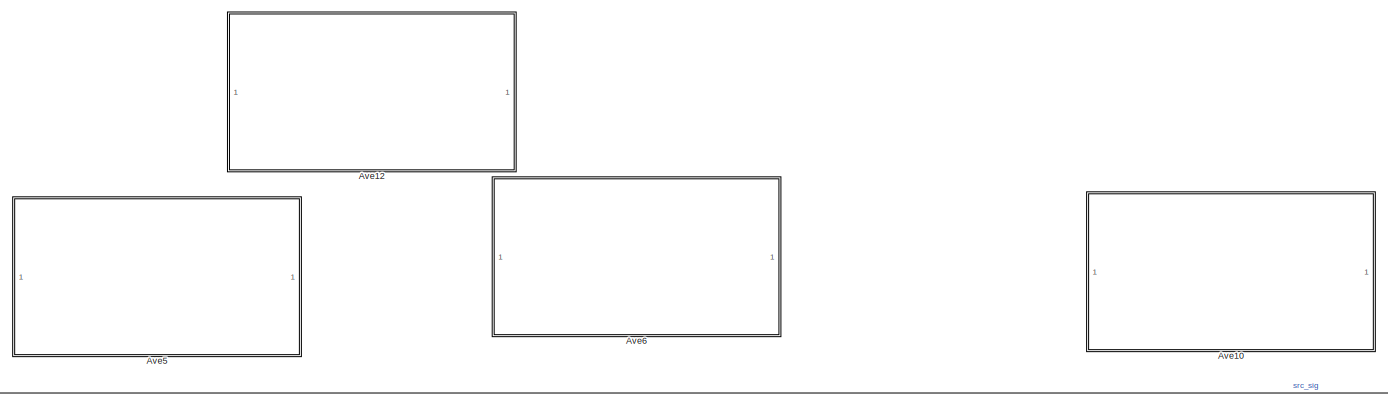
[diagram: root canvas - part 1/23, top right region]
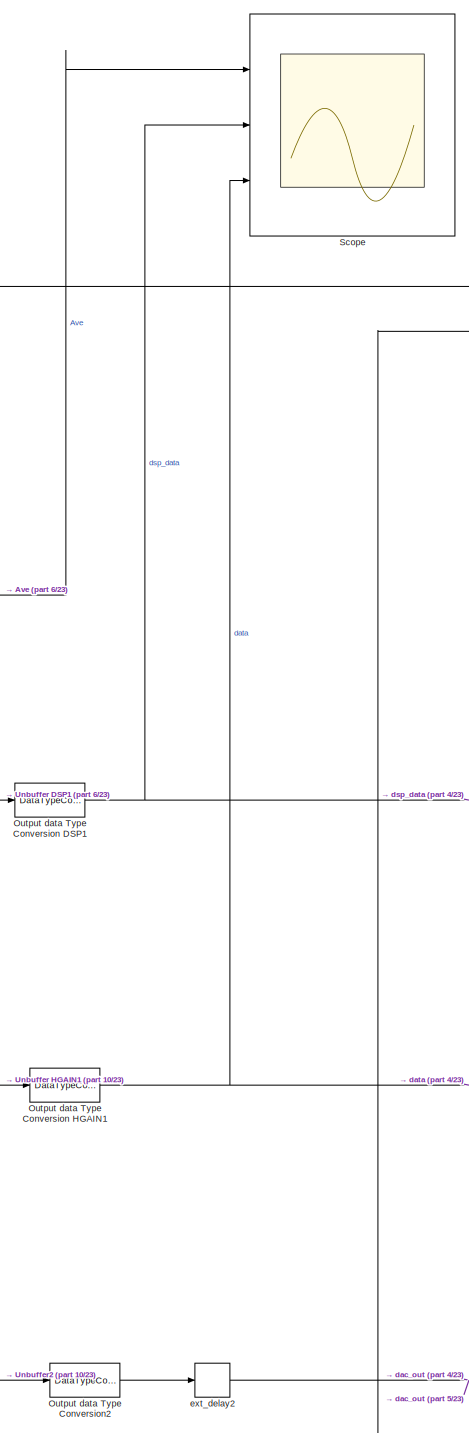
[diagram: root canvas - part 2/23, top right region]
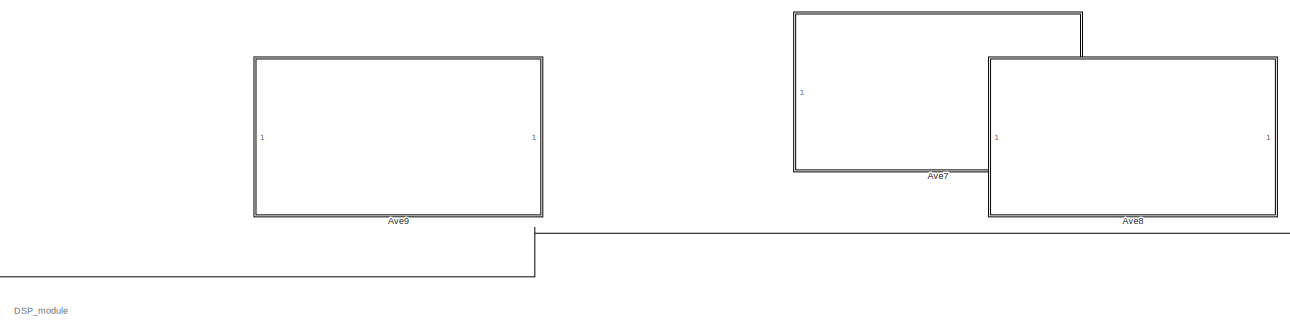
[diagram: root canvas - part 3/23, top right region]
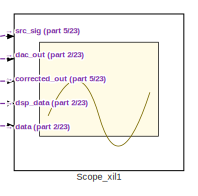
[diagram: root canvas - part 4/23, top right region]
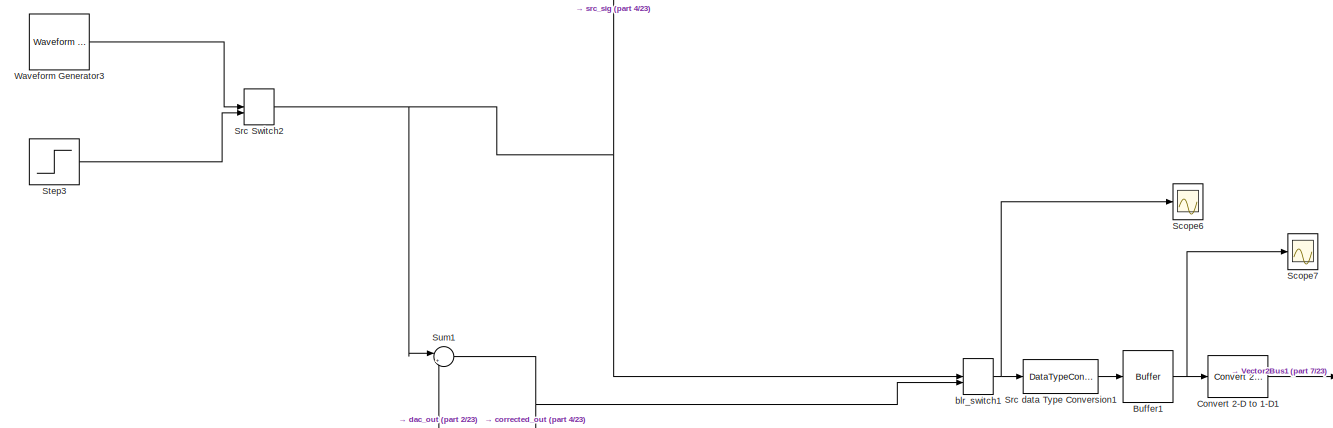
[diagram: root canvas - part 5/23, top center region]
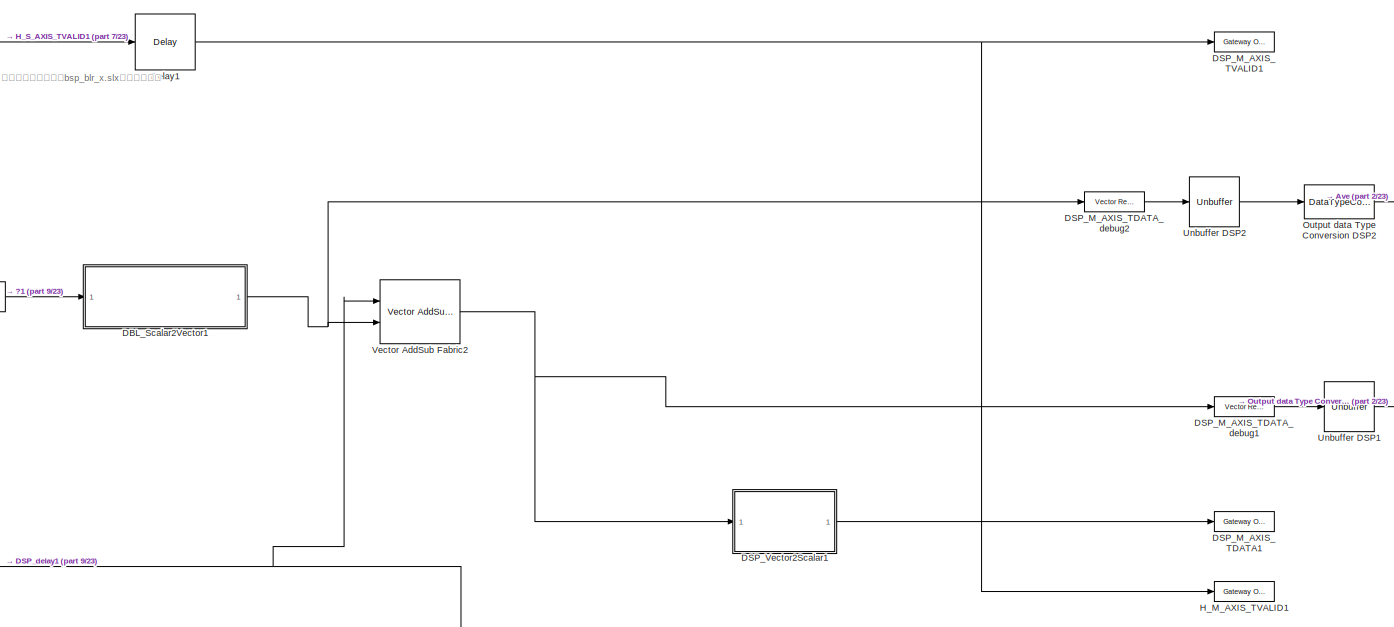
[diagram: root canvas - part 6/23, top right region]
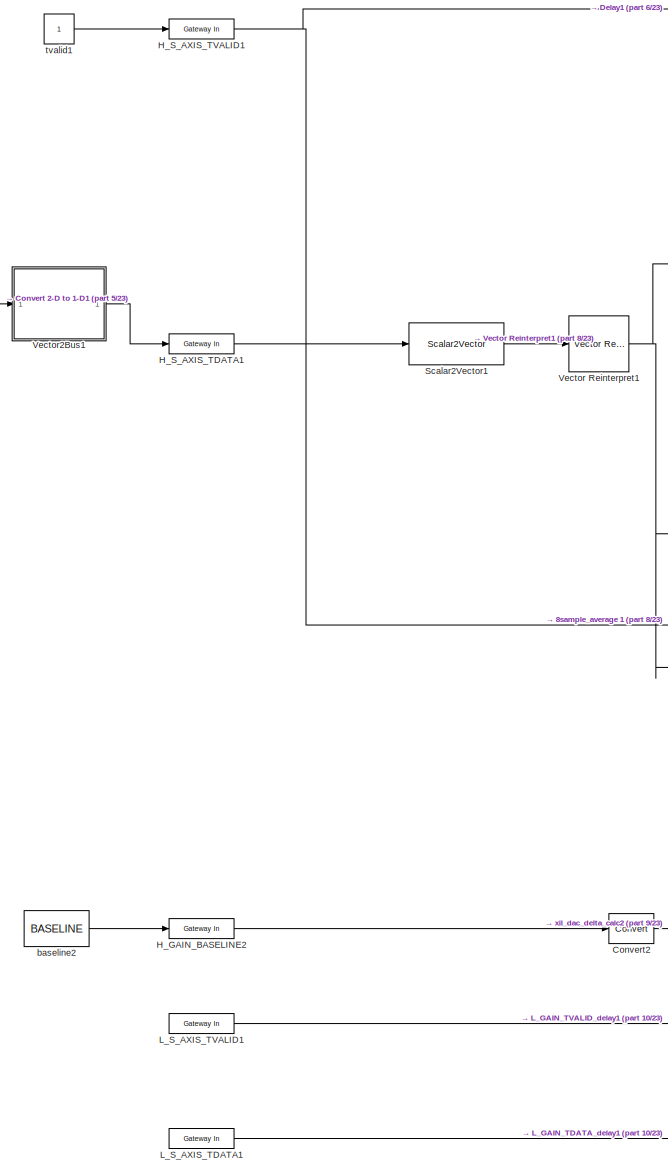
[diagram: root canvas - part 7/23, top right region]
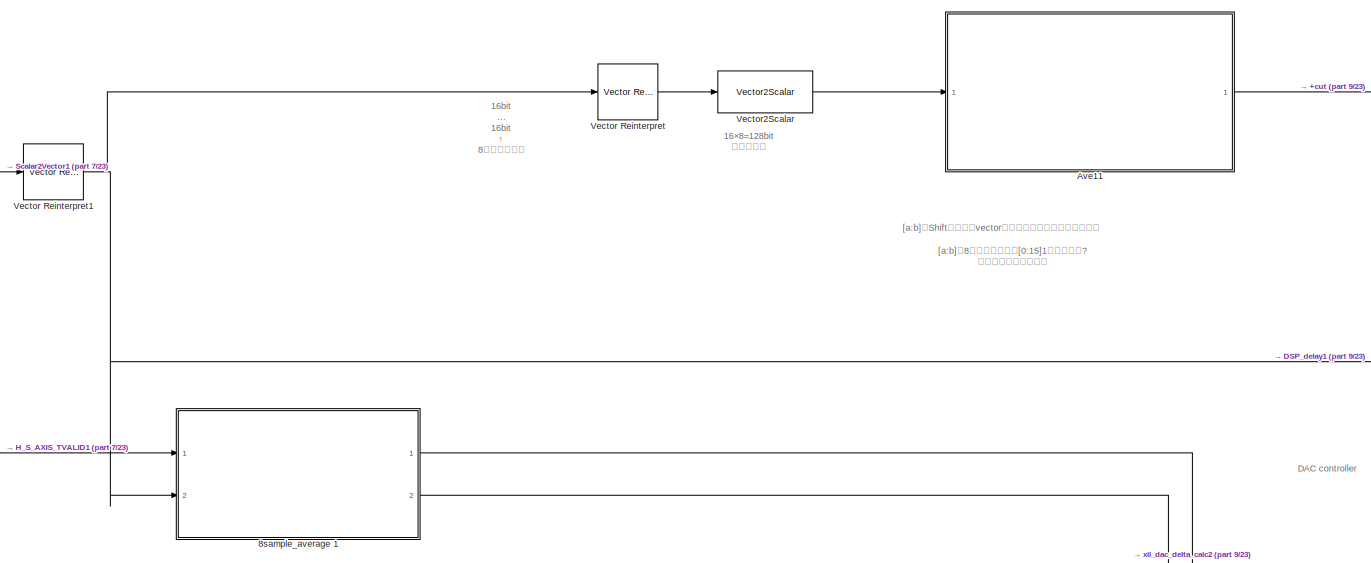
[diagram: root canvas - part 8/23, top right region]
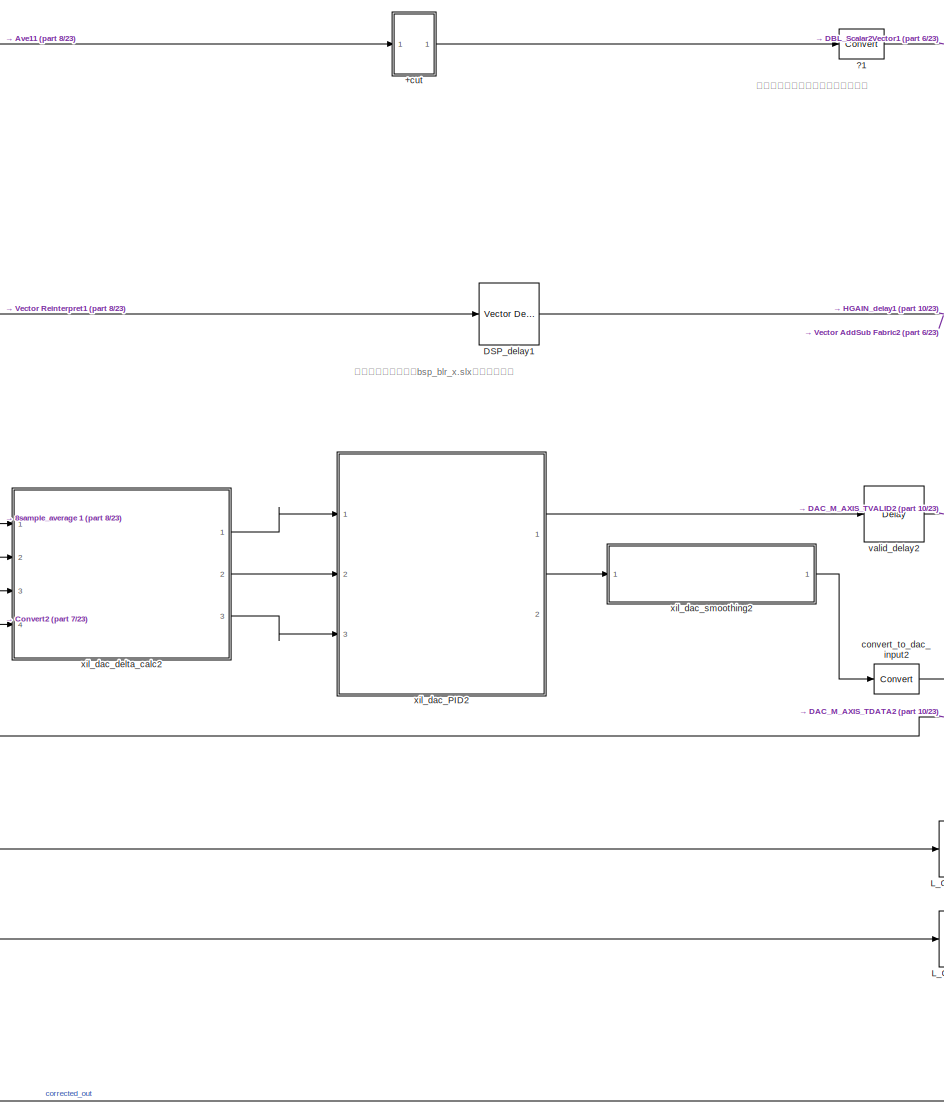
[diagram: root canvas - part 9/23, top right region]
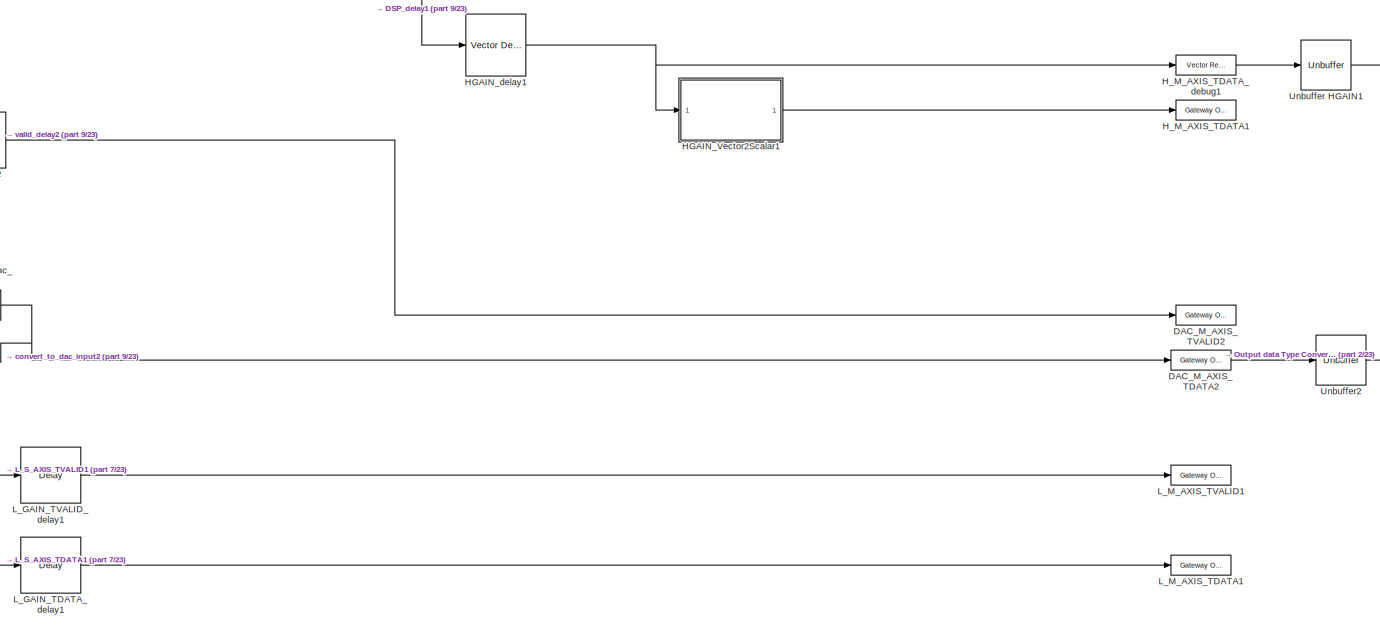
[diagram: root canvas - part 10/23, top right region]
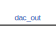
[diagram: root canvas - part 11/23, middle right region]
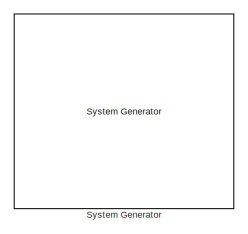
[diagram: root canvas - part 12/23, central region]
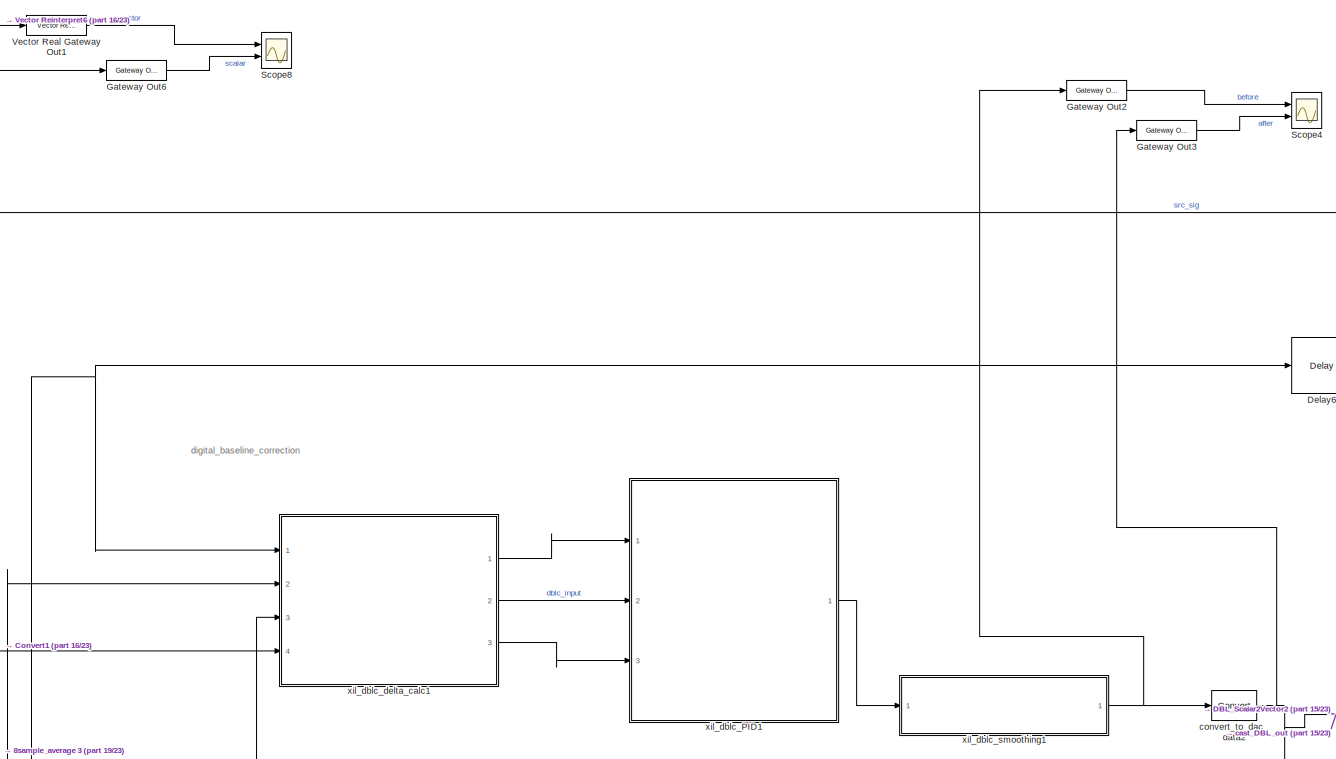
[diagram: root canvas - part 13/23, bottom right region]
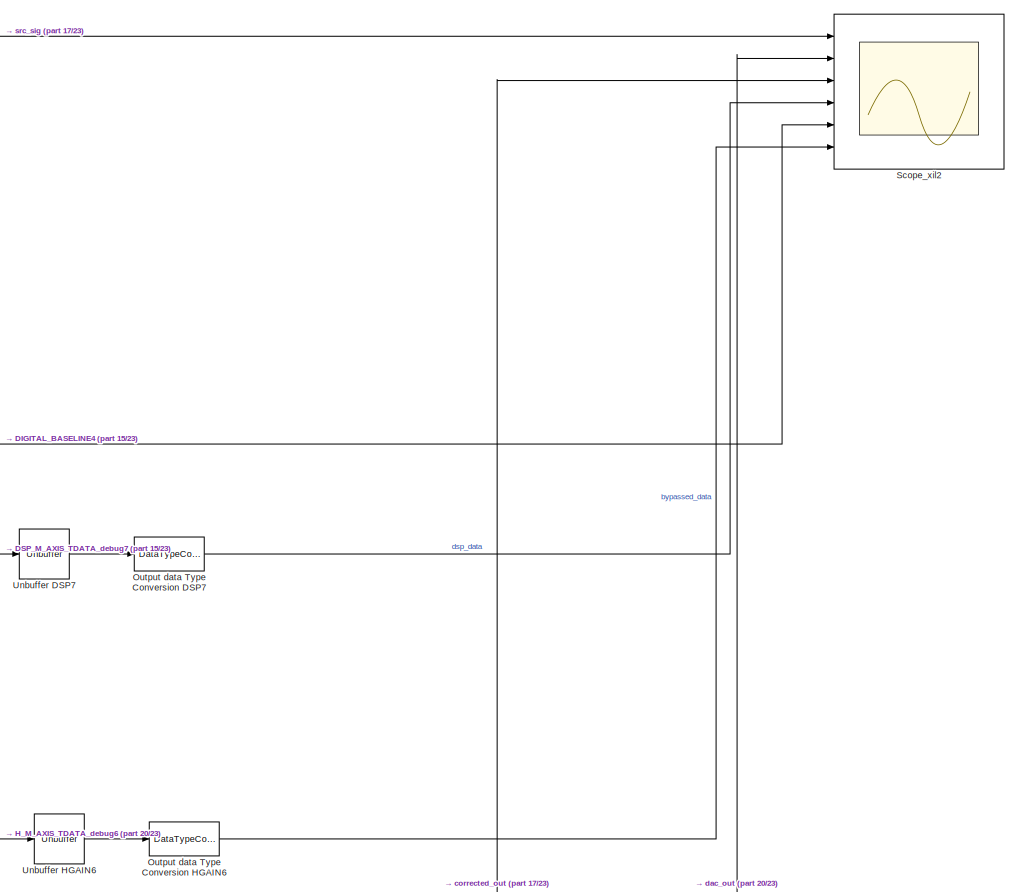
[diagram: root canvas - part 14/23, bottom right region]
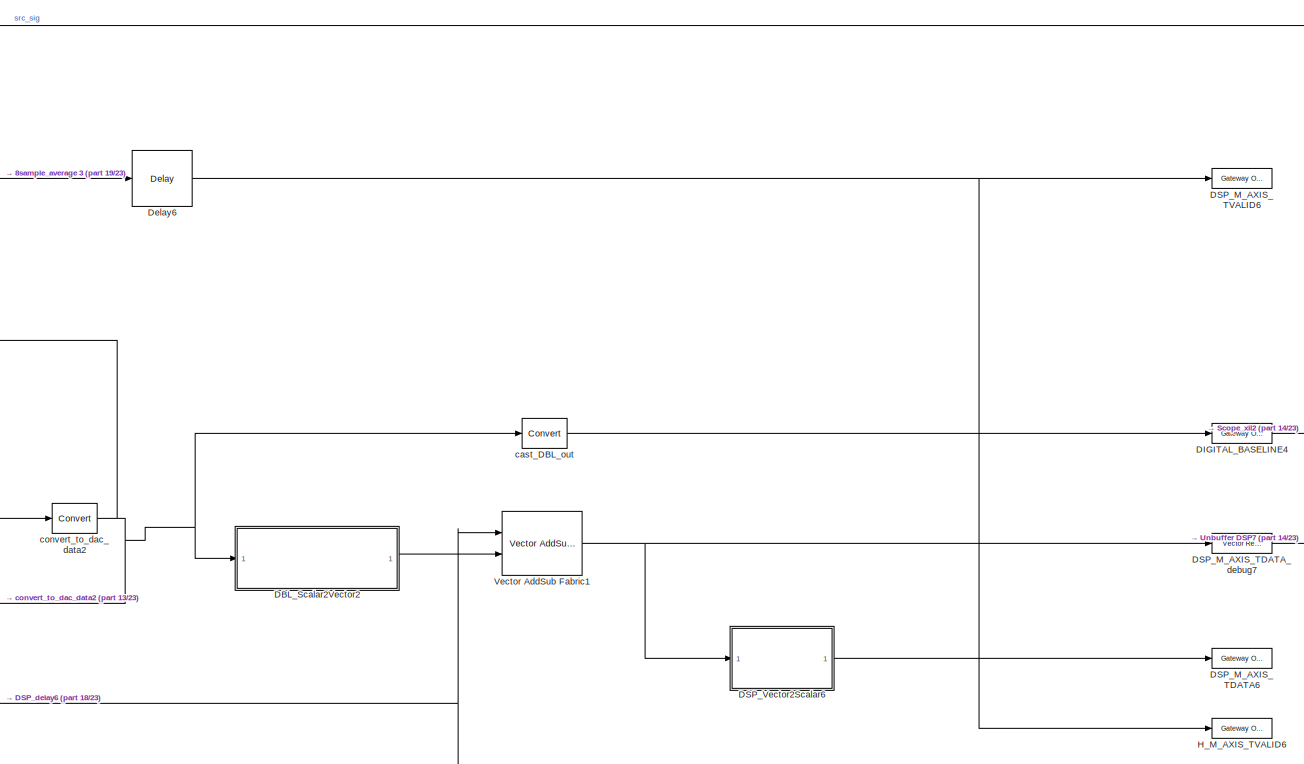
[diagram: root canvas - part 15/23, bottom right region]
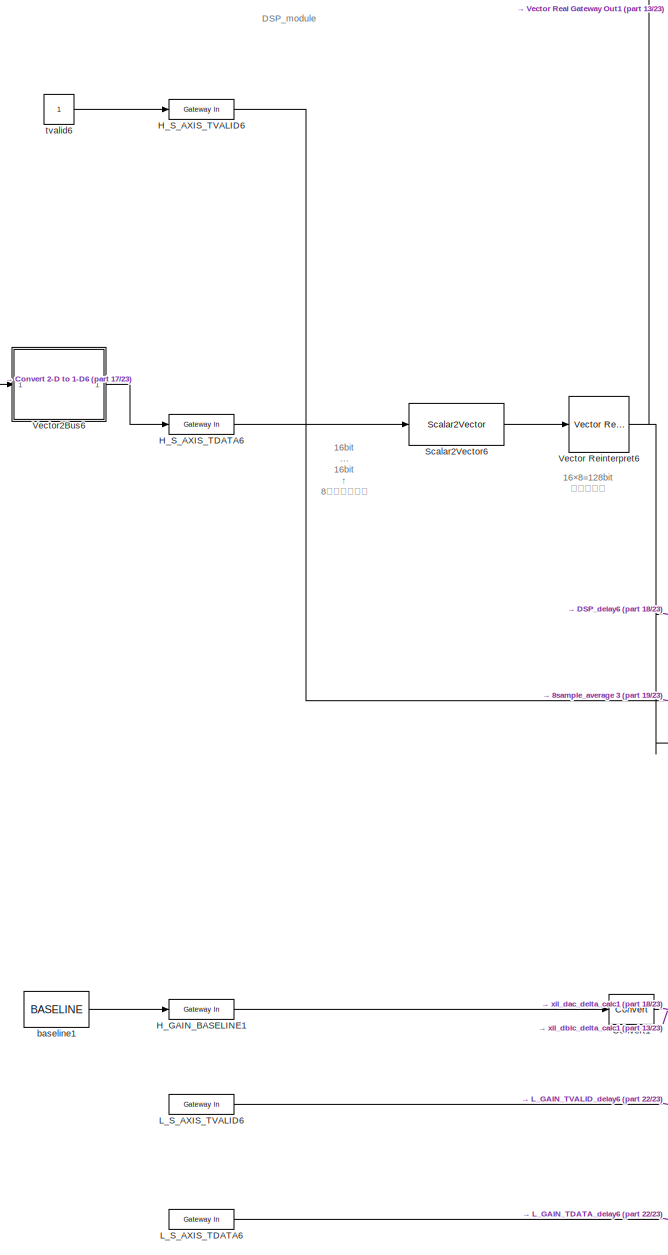
[diagram: root canvas - part 16/23, bottom center region]
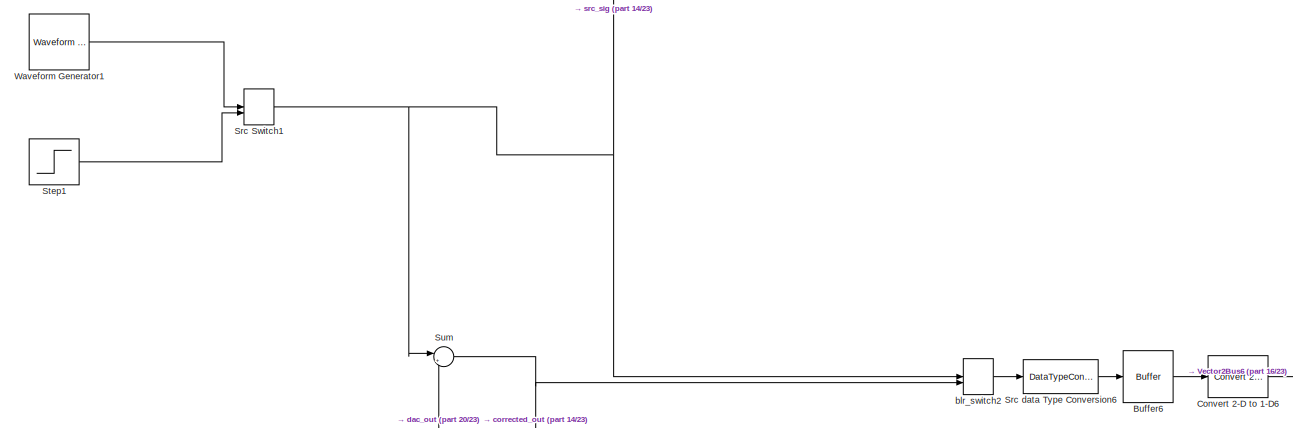
[diagram: root canvas - part 17/23, bottom center region]
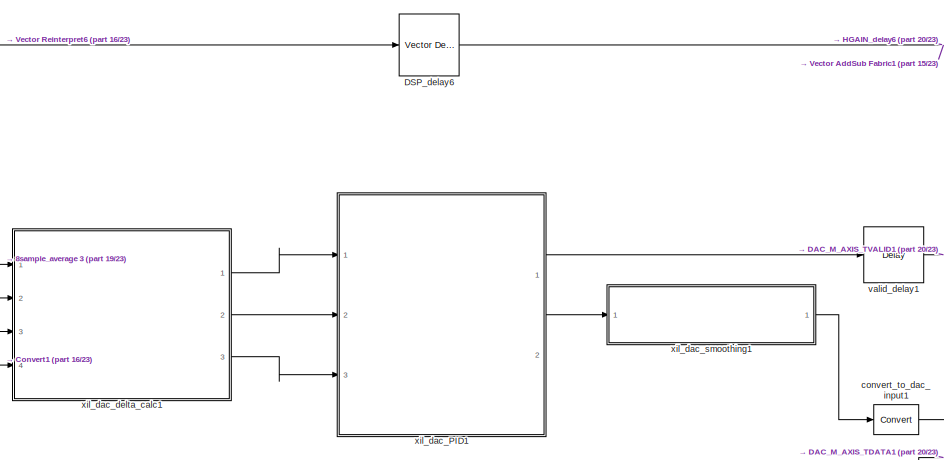
[diagram: root canvas - part 18/23, bottom right region]
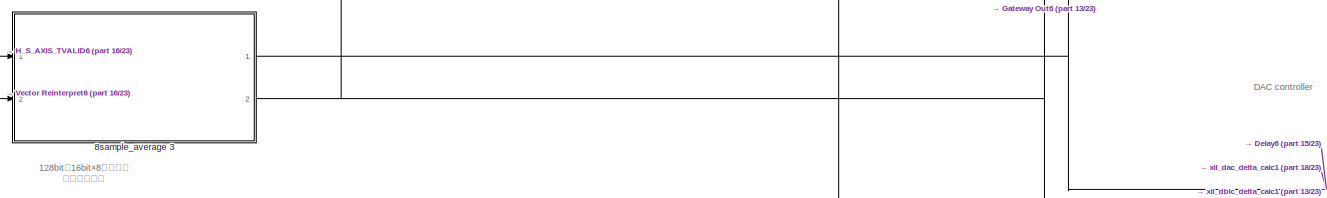
[diagram: root canvas - part 19/23, bottom right region]
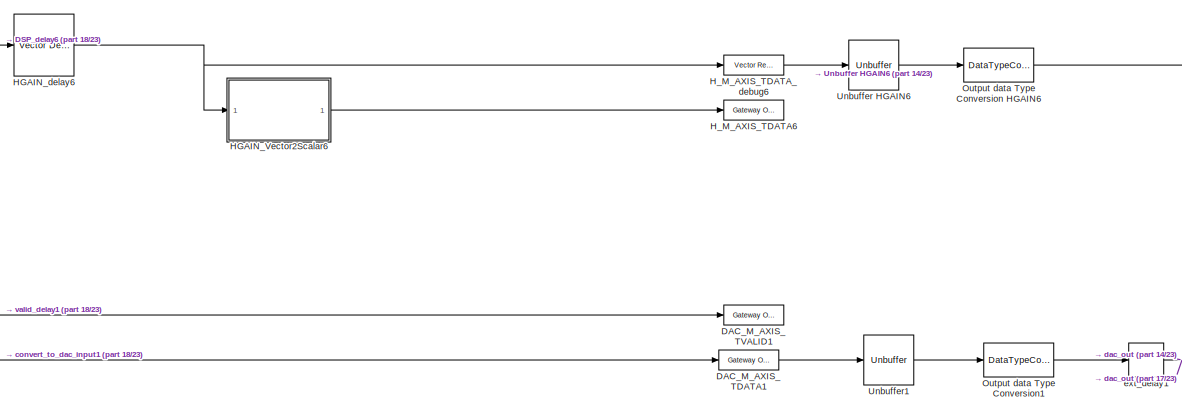
[diagram: root canvas - part 20/23, bottom right region]
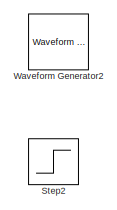
[diagram: root canvas - part 21/23, bottom left region]
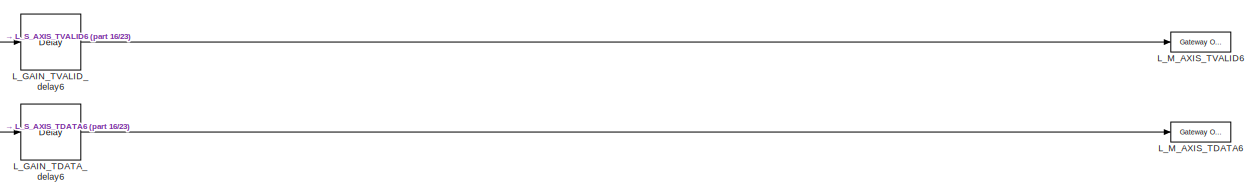
[diagram: root canvas - part 22/23, bottom right region]
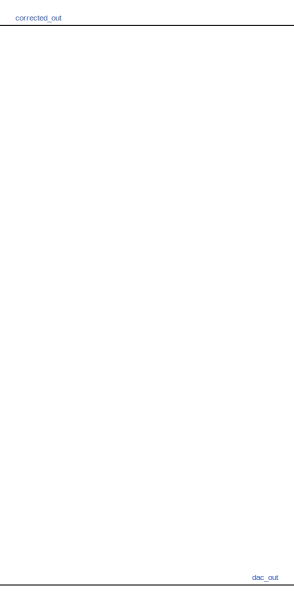
[diagram: root canvas - part 23/23, bottom right region]
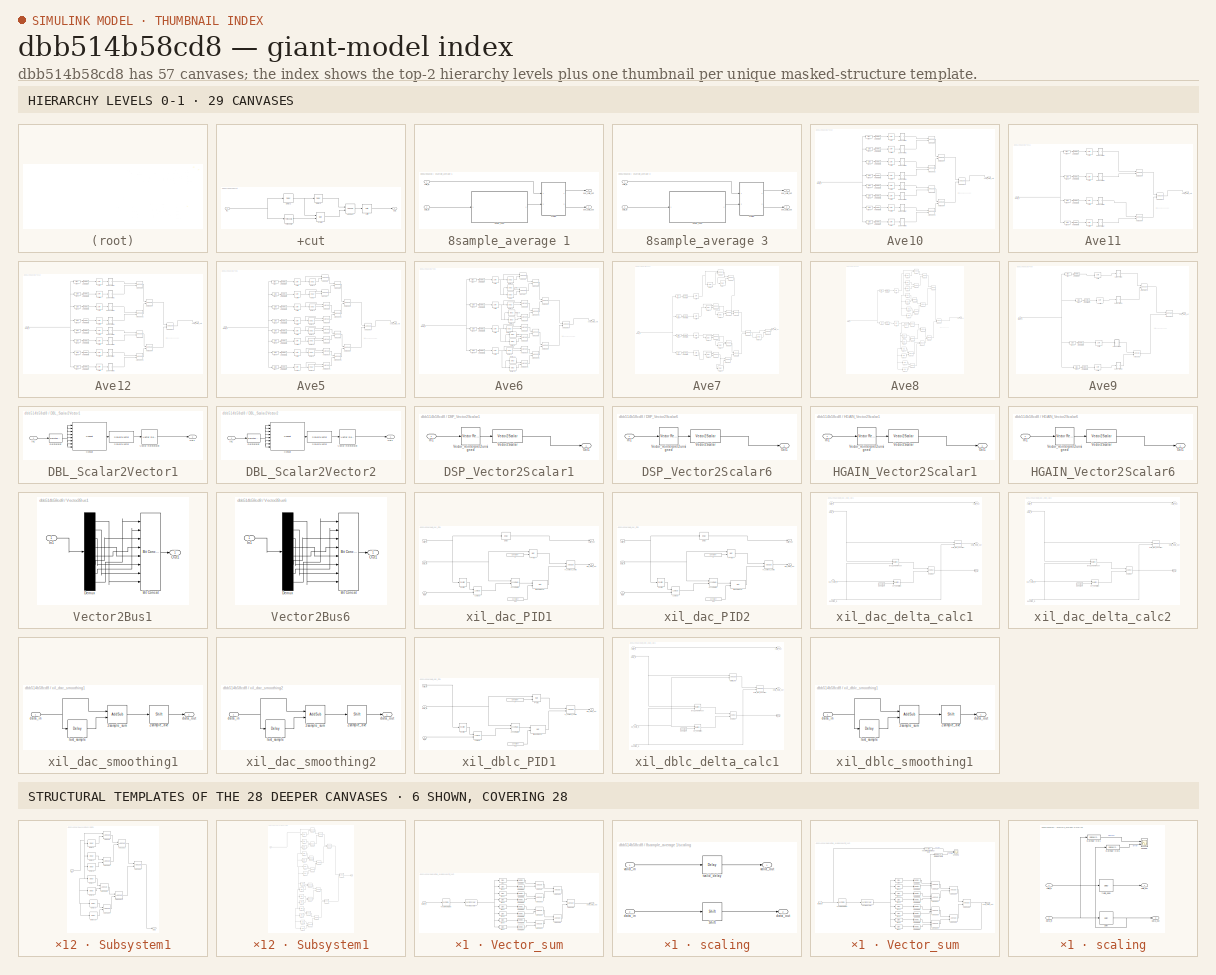
[diagram: thumbnail index - top-2 hierarchy levels (29 canvases) + 6 structural-template representatives of the remaining 28 canvases]
MODEL slx_dbb514b58cd8
KIND model
CONFIG AbsTol = auto
CONFIG EnableMultiTasking = off
CONFIG FixedStep = auto
CONFIG MaxStep = auto
CONFIG MinStep = auto
CONFIG RelTol = 1e-3
CONFIG SampleTimeConstraint = Unconstrained
CONFIG Solver = VariableStepAuto
CONFIG SolverName = VariableStepAuto
CONFIG StartTime = 0.0
CONFIG StopTime = 100e-6
BLOCK [Reference]  System Generator  REF=xbsIndex_r4/ System Generator
  AttributesFormatString = System\nGenerator
  Ports = []
  SourceBlock = xbsIndex_r4/ System Generator
  SourceType = Xilinx System Generator Block
  Tag = genX
  UserDataPersistent = on
BLOCK [SubSystem] +cut
  Ports = [1, 1]
  RequestExecContextInheritance = off
BLOCK [Reference] +cut/AddSub7  REF=xbsIndex_r4/AddSub
  Ports = [2, 1]
  SourceBlock = xbsIndex_r4/AddSub
  SourceType = Xilinx Adder/Subtracter Block
BLOCK [Reference] +cut/Delay2  REF=xbsIndex_r4/Delay
  Ports = [1, 1]
  SourceBlock = xbsIndex_r4/Delay
  SourceType = Xilinx Delay Block
BLOCK [Reference] +cut/Delay3  REF=xbsIndex_r4/Delay
  Ports = [1, 1]
  SourceBlock = xbsIndex_r4/Delay
  SourceType = Xilinx Delay Block
BLOCK [Inport] +cut/In1
  IconDisplay = Port number
BLOCK [Outport] +cut/Out1
  IconDisplay = Port number
BLOCK [Reference] +cut/P*e[n]  REF=xbsIndex_r4/Mult
  Ports = [2, 1]
  SourceBlock = xbsIndex_r4/Mult
  SourceType = Xilinx Multiplier Block
BLOCK [Reference] +cut/Shift7  REF=xbsIndex_r4/Shift
  Ports = [1, 1]
  SourceBlock = xbsIndex_r4/Shift
  SourceType = Xilinx Binary Shift Operator Block
BLOCK [Reference] +cut/Threshold  REF=xbsIndex_r4/Threshold
  Ports = [1, 1]
  SourceBlock = xbsIndex_r4/Threshold
  SourceType = Xilinx Threshold Block
BLOCK [SubSystem] 8sample_average 1
  Ports = [2, 2]
  RequestExecContextInheritance = off
BLOCK [SubSystem] 8sample_average 1/Vector_sum
  Ports = [1, 1]
  RequestExecContextInheritance = off
BLOCK [Reference] 8sample_average 1/Vector_sum/AddSub  REF=xbsIndex_r4/AddSub
  Ports = [2, 1]
  SourceBlock = xbsIndex_r4/AddSub
  SourceType = Xilinx Adder/Subtracter Block
BLOCK [Reference] 8sample_average 1/Vector_sum/AddSub1  REF=xbsIndex_r4/AddSub
  Ports = [2, 1]
  SourceBlock = xbsIndex_r4/AddSub
  SourceType = Xilinx Adder/Subtracter Block
BLOCK [Reference] 8sample_average 1/Vector_sum/AddSub2  REF=xbsIndex_r4/AddSub
  Ports = [2, 1]
  SourceBlock = xbsIndex_r4/AddSub
  SourceType = Xilinx Adder/Subtracter Block
BLOCK [Reference] 8sample_average 1/Vector_sum/AddSub3  REF=xbsIndex_r4/AddSub
  Ports = [2, 1]
  SourceBlock = xbsIndex_r4/AddSub
  SourceType = Xilinx Adder/Subtracter Block
BLOCK [Reference] 8sample_average 1/Vector_sum/AddSub4  REF=xbsIndex_r4/AddSub
  Ports = [2, 1]
  SourceBlock = xbsIndex_r4/AddSub
  SourceType = Xilinx Adder/Subtracter Block
BLOCK [Reference] 8sample_average 1/Vector_sum/AddSub5  REF=xbsIndex_r4/AddSub
  Ports = [2, 1]
  SourceBlock = xbsIndex_r4/AddSub
  SourceType = Xilinx Adder/Subtracter Block
BLOCK [Reference] 8sample_average 1/Vector_sum/AddSub6  REF=xbsIndex_r4/AddSub
  Ports = [2, 1]
  SourceBlock = xbsIndex_r4/AddSub
  SourceType = Xilinx Adder/Subtracter Block
BLOCK [Reference] 8sample_average 1/Vector_sum/Reinterpret  REF=xbsIndex_r4/Reinterpret
  Ports = [1, 1]
  SourceBlock = xbsIndex_r4/Reinterpret
  SourceType = Xilinx Type Reinterpreter Block
BLOCK [Reference] 8sample_average 1/Vector_sum/Reinterpret1  REF=xbsIndex_r4/Reinterpret
  Ports = [1, 1]
  SourceBlock = xbsIndex_r4/Reinterpret
  SourceType = Xilinx Type Reinterpreter Block
BLOCK [Reference] 8sample_average 1/Vector_sum/Reinterpret2  REF=xbsIndex_r4/Reinterpret
  Ports = [1, 1]
  SourceBlock = xbsIndex_r4/Reinterpret
  SourceType = Xilinx Type Reinterpreter Block
BLOCK [Reference] 8sample_average 1/Vector_sum/Reinterpret3  REF=xbsIndex_r4/Reinterpret
  Ports = [1, 1]
  SourceBlock = xbsIndex_r4/Reinterpret
  SourceType = Xilinx Type Reinterpreter Block
BLOCK [Reference] 8sample_average 1/Vector_sum/Reinterpret4  REF=xbsIndex_r4/Reinterpret
  Ports = [1, 1]
  SourceBlock = xbsIndex_r4/Reinterpret
  SourceType = Xilinx Type Reinterpreter Block
BLOCK [Reference] 8sample_average 1/Vector_sum/Reinterpret5  REF=xbsIndex_r4/Reinterpret
  Ports = [1, 1]
  SourceBlock = xbsIndex_r4/Reinterpret
  SourceType = Xilinx Type Reinterpreter Block
BLOCK [Reference] 8sample_average 1/Vector_sum/Reinterpret6  REF=xbsIndex_r4/Reinterpret
  Ports = [1, 1]
  SourceBlock = xbsIndex_r4/Reinterpret
  SourceType = Xilinx Type Reinterpreter Block
BLOCK [Reference] 8sample_average 1/Vector_sum/Reinterpret7  REF=xbsIndex_r4/Reinterpret
  Ports = [1, 1]
  SourceBlock = xbsIndex_r4/Reinterpret
  SourceType = Xilinx Type Reinterpreter Block
BLOCK [Reference] 8sample_average 1/Vector_sum/Slice  REF=xbsIndex_r4/Slice
  Ports = [1, 1]
  SourceBlock = xbsIndex_r4/Slice
  SourceType = Xilinx Bit Slice Extractor Block
BLOCK [Reference] 8sample_average 1/Vector_sum/Slice1  REF=xbsIndex_r4/Slice
  Ports = [1, 1]
  SourceBlock = xbsIndex_r4/Slice
  SourceType = Xilinx Bit Slice Extractor Block
BLOCK [Reference] 8sample_average 1/Vector_sum/Slice2  REF=xbsIndex_r4/Slice
  Ports = [1, 1]
  SourceBlock = xbsIndex_r4/Slice
  SourceType = Xilinx Bit Slice Extractor Block
BLOCK [Reference] 8sample_average 1/Vector_sum/Slice3  REF=xbsIndex_r4/Slice
  Ports = [1, 1]
  SourceBlock = xbsIndex_r4/Slice
  SourceType = Xilinx Bit Slice Extractor Block
BLOCK [Reference] 8sample_average 1/Vector_sum/Slice4  REF=xbsIndex_r4/Slice
  Ports = [1, 1]
  SourceBlock = xbsIndex_r4/Slice
  SourceType = Xilinx Bit Slice Extractor Block
BLOCK [Reference] 8sample_average 1/Vector_sum/Slice5  REF=xbsIndex_r4/Slice
  Ports = [1, 1]
  SourceBlock = xbsIndex_r4/Slice
  SourceType = Xilinx Bit Slice Extractor Block
BLOCK [Reference] 8sample_average 1/Vector_sum/Slice6  REF=xbsIndex_r4/Slice
  Ports = [1, 1]
  SourceBlock = xbsIndex_r4/Slice
  SourceType = Xilinx Bit Slice Extractor Block
BLOCK [Reference] 8sample_average 1/Vector_sum/Slice7  REF=xbsIndex_r4/Slice
  Ports = [1, 1]
  SourceBlock = xbsIndex_r4/Slice
  SourceType = Xilinx Bit Slice Extractor Block
BLOCK [Reference] 8sample_average 1/Vector_sum/Vector Reinterpret  REF=xrbsSSR_Library/Vector Reinterpret
  Ports = [1, 1]
  SourceBlock = xrbsSSR_Library/Vector Reinterpret
  SourceProductName = Xilinx SSR Blockset
  SourceType = Xilinx Vector Type Reinterpreter Block
BLOCK [Reference] 8sample_average 1/Vector_sum/Vector2Scalar  REF=xrbsSSR_Library/Vector2Scalar
  Ports = [1, 1]
  SourceBlock = xrbsSSR_Library/Vector2Scalar
  SourceProductName = Xilinx SSR Blockset
  SourceType = Xilinx Vector2Scalar Block
BLOCK [Outport] 8sample_average 1/Vector_sum/sum_data_out
  IconDisplay = Port number
  OutDataTypeStr = fixdt(1,19,4)
BLOCK [Inport] 8sample_average 1/Vector_sum/tdata_in
  IconDisplay = Port number
BLOCK [Outport] 8sample_average 1/ave_data_out
  IconDisplay = Port number
  Port = 2
BLOCK [Outport] 8sample_average 1/ave_valid_out
  IconDisplay = Port number
BLOCK [Inport] 8sample_average 1/data_in
  IconDisplay = Port number
  Port = 2
BLOCK [SubSystem] 8sample_average 1/scaling
  Ports = [2, 2]
  RequestExecContextInheritance = off
BLOCK [Reference] 8sample_average 1/scaling/Shift  REF=xbsIndex_r4/Shift
  Ports = [1, 1]
  SourceBlock = xbsIndex_r4/Shift
  SourceType = Xilinx Binary Shift Operator Block
BLOCK [Inport] 8sample_average 1/scaling/data_in
  IconDisplay = Port number
  Port = 2
BLOCK [Outport] 8sample_average 1/scaling/data_out
  IconDisplay = Port number
  Port = 2
BLOCK [Reference] 8sample_average 1/scaling/tvalid_delay  REF=xbsIndex_r4/Delay
  Ports = [1, 1]
  SourceBlock = xbsIndex_r4/Delay
  SourceType = Xilinx Delay Block
BLOCK [Inport] 8sample_average 1/scaling/valid_in
  IconDisplay = Port number
BLOCK [Outport] 8sample_average 1/scaling/valid_out
  IconDisplay = Port number
BLOCK [Inport] 8sample_average 1/valid_in
  IconDisplay = Port number
BLOCK [SubSystem] 8sample_average 3
  Ports = [2, 2]
  RequestExecContextInheritance = off
BLOCK [SubSystem] 8sample_average 3/Vector_sum
  Ports = [1, 1]
  RequestExecContextInheritance = off
BLOCK [Reference] 8sample_average 3/Vector_sum/AddSub  REF=xbsIndex_r4/AddSub
  Ports = [2, 1]
  SourceBlock = xbsIndex_r4/AddSub
  SourceType = Xilinx Adder/Subtracter Block
BLOCK [Reference] 8sample_average 3/Vector_sum/AddSub1  REF=xbsIndex_r4/AddSub
  Ports = [2, 1]
  SourceBlock = xbsIndex_r4/AddSub
  SourceType = Xilinx Adder/Subtracter Block
BLOCK [Reference] 8sample_average 3/Vector_sum/AddSub2  REF=xbsIndex_r4/AddSub
  Ports = [2, 1]
  SourceBlock = xbsIndex_r4/AddSub
  SourceType = Xilinx Adder/Subtracter Block
BLOCK [Reference] 8sample_average 3/Vector_sum/AddSub3  REF=xbsIndex_r4/AddSub
  Ports = [2, 1]
  SourceBlock = xbsIndex_r4/AddSub
  SourceType = Xilinx Adder/Subtracter Block
BLOCK [Reference] 8sample_average 3/Vector_sum/AddSub4  REF=xbsIndex_r4/AddSub
  Ports = [2, 1]
  SourceBlock = xbsIndex_r4/AddSub
  SourceType = Xilinx Adder/Subtracter Block
BLOCK [Reference] 8sample_average 3/Vector_sum/AddSub5  REF=xbsIndex_r4/AddSub
  Ports = [2, 1]
  SourceBlock = xbsIndex_r4/AddSub
  SourceType = Xilinx Adder/Subtracter Block
BLOCK [Reference] 8sample_average 3/Vector_sum/AddSub6  REF=xbsIndex_r4/AddSub
  Ports = [2, 1]
  SourceBlock = xbsIndex_r4/AddSub
  SourceType = Xilinx Adder/Subtracter Block
BLOCK [Reference] 8sample_average 3/Vector_sum/Gateway Out6  REF=xbsIndex_r4/Gateway Out
  Ports = [1, 1]
  SourceBlock = xbsIndex_r4/Gateway Out
  SourceType = Xilinx Gateway Out Block
BLOCK [Reference] 8sample_average 3/Vector_sum/Reinterpret  REF=xbsIndex_r4/Reinterpret
  Ports = [1, 1]
  SourceBlock = xbsIndex_r4/Reinterpret
  SourceType = Xilinx Type Reinterpreter Block
BLOCK [Reference] 8sample_average 3/Vector_sum/Reinterpret1  REF=xbsIndex_r4/Reinterpret
  Ports = [1, 1]
  SourceBlock = xbsIndex_r4/Reinterpret
  SourceType = Xilinx Type Reinterpreter Block
BLOCK [Reference] 8sample_average 3/Vector_sum/Reinterpret2  REF=xbsIndex_r4/Reinterpret
  Ports = [1, 1]
  SourceBlock = xbsIndex_r4/Reinterpret
  SourceType = Xilinx Type Reinterpreter Block
BLOCK [Reference] 8sample_average 3/Vector_sum/Reinterpret3  REF=xbsIndex_r4/Reinterpret
  Ports = [1, 1]
  SourceBlock = xbsIndex_r4/Reinterpret
  SourceType = Xilinx Type Reinterpreter Block
BLOCK [Reference] 8sample_average 3/Vector_sum/Reinterpret4  REF=xbsIndex_r4/Reinterpret
  Ports = [1, 1]
  SourceBlock = xbsIndex_r4/Reinterpret
  SourceType = Xilinx Type Reinterpreter Block
BLOCK [Reference] 8sample_average 3/Vector_sum/Reinterpret5  REF=xbsIndex_r4/Reinterpret
  Ports = [1, 1]
  SourceBlock = xbsIndex_r4/Reinterpret
  SourceType = Xilinx Type Reinterpreter Block
BLOCK [Reference] 8sample_average 3/Vector_sum/Reinterpret6  REF=xbsIndex_r4/Reinterpret
  Ports = [1, 1]
  SourceBlock = xbsIndex_r4/Reinterpret
  SourceType = Xilinx Type Reinterpreter Block
BLOCK [Reference] 8sample_average 3/Vector_sum/Reinterpret7  REF=xbsIndex_r4/Reinterpret
  Ports = [1, 1]
  SourceBlock = xbsIndex_r4/Reinterpret
  SourceType = Xilinx Type Reinterpreter Block
BLOCK [Scope] 8sample_average 3/Vector_sum/Scope8
  Floating = off
  NumInputPorts = 2
  Ports = [2]
  ScopeSpecificationString = Simulink.scopes.TimeScopeBlockCfg('CurrentConfiguration', extmgr.ConfigurationSet(extmgr.Configuration('Core','General UI',true),extmgr.Configuration('Core','Source UI',true),extmgr.Configuration('Sources','WiredSimulink',true,'DataLoggingVariableName','ScopeData1'),extmgr.Configuration('Visuals','Time Domain',true,'SerializedDisplays',{struct('MinYLimReal','-9216.00000','MaxYLimReal','1024.00000'...<+1520ch>
BLOCK [Reference] 8sample_average 3/Vector_sum/Slice  REF=xbsIndex_r4/Slice
  Ports = [1, 1]
  SourceBlock = xbsIndex_r4/Slice
  SourceType = Xilinx Bit Slice Extractor Block
BLOCK [Reference] 8sample_average 3/Vector_sum/Slice1  REF=xbsIndex_r4/Slice
  Ports = [1, 1]
  SourceBlock = xbsIndex_r4/Slice
  SourceType = Xilinx Bit Slice Extractor Block
BLOCK [Reference] 8sample_average 3/Vector_sum/Slice2  REF=xbsIndex_r4/Slice
  Ports = [1, 1]
  SourceBlock = xbsIndex_r4/Slice
  SourceType = Xilinx Bit Slice Extractor Block
BLOCK [Reference] 8sample_average 3/Vector_sum/Slice3  REF=xbsIndex_r4/Slice
  Ports = [1, 1]
  SourceBlock = xbsIndex_r4/Slice
  SourceType = Xilinx Bit Slice Extractor Block
BLOCK [Reference] 8sample_average 3/Vector_sum/Slice4  REF=xbsIndex_r4/Slice
  Ports = [1, 1]
  SourceBlock = xbsIndex_r4/Slice
  SourceType = Xilinx Bit Slice Extractor Block
BLOCK [Reference] 8sample_average 3/Vector_sum/Slice5  REF=xbsIndex_r4/Slice
  Ports = [1, 1]
  SourceBlock = xbsIndex_r4/Slice
  SourceType = Xilinx Bit Slice Extractor Block
BLOCK [Reference] 8sample_average 3/Vector_sum/Slice6  REF=xbsIndex_r4/Slice
  Ports = [1, 1]
  SourceBlock = xbsIndex_r4/Slice
  SourceType = Xilinx Bit Slice Extractor Block
BLOCK [Reference] 8sample_average 3/Vector_sum/Slice7  REF=xbsIndex_r4/Slice
  Ports = [1, 1]
  SourceBlock = xbsIndex_r4/Slice
  SourceType = Xilinx Bit Slice Extractor Block
BLOCK [Reference] 8sample_average 3/Vector_sum/Vector Real Gateway Out1  REF=xrbsSSR_Library/Vector Real Gateway Out
  Ports = [1, 1]
  SourceBlock = xrbsSSR_Library/Vector Real Gateway Out
  SourceProductName = Xilinx SSR Blockset
  SourceType = Xilinx Vector Gateway Out Block
BLOCK [Reference] 8sample_average 3/Vector_sum/Vector Reinterpret  REF=xrbsSSR_Library/Vector Reinterpret
  Ports = [1, 1]
  SourceBlock = xrbsSSR_Library/Vector Reinterpret
  SourceProductName = Xilinx SSR Blockset
  SourceType = Xilinx Vector Type Reinterpreter Block
BLOCK [Reference] 8sample_average 3/Vector_sum/Vector2Scalar  REF=xrbsSSR_Library/Vector2Scalar
  Ports = [1, 1]
  SourceBlock = xrbsSSR_Library/Vector2Scalar
  SourceProductName = Xilinx SSR Blockset
  SourceType = Xilinx Vector2Scalar Block
BLOCK [Outport] 8sample_average 3/Vector_sum/sum_data_out
  IconDisplay = Port number
  OutDataTypeStr = fixdt(1,19,4)
BLOCK [Inport] 8sample_average 3/Vector_sum/tdata_in
  IconDisplay = Port number
BLOCK [Outport] 8sample_average 3/ave_data_out
  IconDisplay = Port number
  Port = 2
BLOCK [Outport] 8sample_average 3/ave_valid_out
  IconDisplay = Port number
BLOCK [Inport] 8sample_average 3/data_in
  IconDisplay = Port number
  Port = 2
BLOCK [SubSystem] 8sample_average 3/scaling
  Ports = [2, 2]
  RequestExecContextInheritance = off
BLOCK [Reference] 8sample_average 3/scaling/Gateway Out1  REF=xbsIndex_r4/Gateway Out
  Ports = [1, 1]
  SourceBlock = xbsIndex_r4/Gateway Out
  SourceType = Xilinx Gateway Out Block
BLOCK [Reference] 8sample_average 3/scaling/Gateway Out6  REF=xbsIndex_r4/Gateway Out
  Ports = [1, 1]
  SourceBlock = xbsIndex_r4/Gateway Out
  SourceType = Xilinx Gateway Out Block
BLOCK [Scope] 8sample_average 3/scaling/Scope8
  Floating = off
  NumInputPorts = 2
  Ports = [2]
  ScopeSpecificationString = Simulink.scopes.TimeScopeBlockCfg('CurrentConfiguration', extmgr.ConfigurationSet(extmgr.Configuration('Core','General UI',true),extmgr.Configuration('Core','Source UI',true),extmgr.Configuration('Sources','WiredSimulink',true,'DataLoggingVariableName','ScopeData2'),extmgr.Configuration('Visuals','Time Domain',true,'SerializedDisplays',{struct('MinYLimReal','-9216.00000','MaxYLimReal','1024.00000'...<+1440ch>
BLOCK [Reference] 8sample_average 3/scaling/Shift  REF=xbsIndex_r4/Shift
  Ports = [1, 1]
  SourceBlock = xbsIndex_r4/Shift
  SourceType = Xilinx Binary Shift Operator Block
BLOCK [Inport] 8sample_average 3/scaling/data_in
  IconDisplay = Port number
  Port = 2
BLOCK [Outport] 8sample_average 3/scaling/data_out
  IconDisplay = Port number
  Port = 2
BLOCK [Reference] 8sample_average 3/scaling/tvalid_delay  REF=xbsIndex_r4/Delay
  Ports = [1, 1]
  SourceBlock = xbsIndex_r4/Delay
  SourceType = Xilinx Delay Block
BLOCK [Inport] 8sample_average 3/scaling/valid_in
  IconDisplay = Port number
BLOCK [Outport] 8sample_average 3/scaling/valid_out
  IconDisplay = Port number
BLOCK [Inport] 8sample_average 3/valid_in
  IconDisplay = Port number
BLOCK [Reference] ?1  REF=xbsIndex_r4/Convert
  Ports = [1, 1]
  SourceBlock = xbsIndex_r4/Convert
  SourceType = Xilinx Type Converter Block
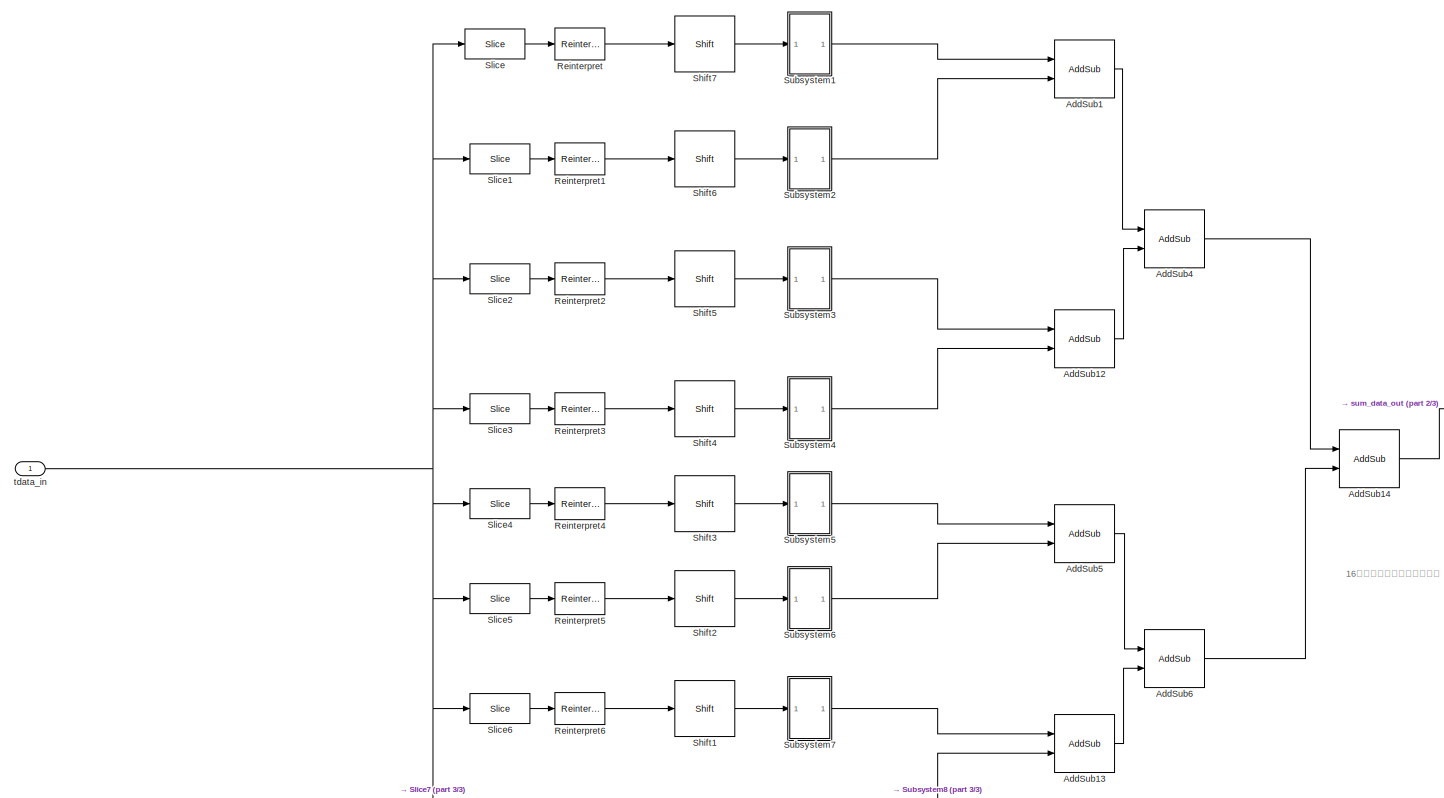
[diagram: Ave10 - part 1/3, most of the canvas]
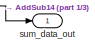
[diagram: Ave10 - part 2/3, middle right region]
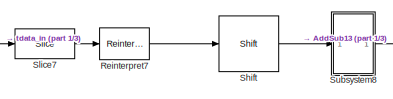
[diagram: Ave10 - part 3/3, bottom center region]
BLOCK [SubSystem] Ave10
  Commented = on
  Ports = [1, 1]
  RequestExecContextInheritance = off
BLOCK [Reference] Ave10/AddSub1  REF=xbsIndex_r4/AddSub
  Ports = [2, 1]
  SourceBlock = xbsIndex_r4/AddSub
  SourceType = Xilinx Adder/Subtracter Block
BLOCK [Reference] Ave10/AddSub12  REF=xbsIndex_r4/AddSub
  Ports = [2, 1]
  SourceBlock = xbsIndex_r4/AddSub
  SourceType = Xilinx Adder/Subtracter Block
BLOCK [Reference] Ave10/AddSub13  REF=xbsIndex_r4/AddSub
  Ports = [2, 1]
  SourceBlock = xbsIndex_r4/AddSub
  SourceType = Xilinx Adder/Subtracter Block
BLOCK [Reference] Ave10/AddSub14  REF=xbsIndex_r4/AddSub
  Ports = [2, 1]
  SourceBlock = xbsIndex_r4/AddSub
  SourceType = Xilinx Adder/Subtracter Block
BLOCK [Reference] Ave10/AddSub4  REF=xbsIndex_r4/AddSub
  Ports = [2, 1]
  SourceBlock = xbsIndex_r4/AddSub
  SourceType = Xilinx Adder/Subtracter Block
BLOCK [Reference] Ave10/AddSub5  REF=xbsIndex_r4/AddSub
  Ports = [2, 1]
  SourceBlock = xbsIndex_r4/AddSub
  SourceType = Xilinx Adder/Subtracter Block
BLOCK [Reference] Ave10/AddSub6  REF=xbsIndex_r4/AddSub
  Ports = [2, 1]
  SourceBlock = xbsIndex_r4/AddSub
  SourceType = Xilinx Adder/Subtracter Block
BLOCK [Reference] Ave10/Reinterpret  REF=xbsIndex_r4/Reinterpret
  Ports = [1, 1]
  SourceBlock = xbsIndex_r4/Reinterpret
  SourceType = Xilinx Type Reinterpreter Block
BLOCK [Reference] Ave10/Reinterpret1  REF=xbsIndex_r4/Reinterpret
  Ports = [1, 1]
  SourceBlock = xbsIndex_r4/Reinterpret
  SourceType = Xilinx Type Reinterpreter Block
BLOCK [Reference] Ave10/Reinterpret2  REF=xbsIndex_r4/Reinterpret
  Ports = [1, 1]
  SourceBlock = xbsIndex_r4/Reinterpret
  SourceType = Xilinx Type Reinterpreter Block
BLOCK [Reference] Ave10/Reinterpret3  REF=xbsIndex_r4/Reinterpret
  Ports = [1, 1]
  SourceBlock = xbsIndex_r4/Reinterpret
  SourceType = Xilinx Type Reinterpreter Block
BLOCK [Reference] Ave10/Reinterpret4  REF=xbsIndex_r4/Reinterpret
  Ports = [1, 1]
  SourceBlock = xbsIndex_r4/Reinterpret
  SourceType = Xilinx Type Reinterpreter Block
BLOCK [Reference] Ave10/Reinterpret5  REF=xbsIndex_r4/Reinterpret
  Ports = [1, 1]
  SourceBlock = xbsIndex_r4/Reinterpret
  SourceType = Xilinx Type Reinterpreter Block
BLOCK [Reference] Ave10/Reinterpret6  REF=xbsIndex_r4/Reinterpret
  Ports = [1, 1]
  SourceBlock = xbsIndex_r4/Reinterpret
  SourceType = Xilinx Type Reinterpreter Block
BLOCK [Reference] Ave10/Reinterpret7  REF=xbsIndex_r4/Reinterpret
  Ports = [1, 1]
  SourceBlock = xbsIndex_r4/Reinterpret
  SourceType = Xilinx Type Reinterpreter Block
BLOCK [Reference] Ave10/Shift  REF=xbsIndex_r4/Shift
  Ports = [1, 1]
  SourceBlock = xbsIndex_r4/Shift
  SourceType = Xilinx Binary Shift Operator Block
BLOCK [Reference] Ave10/Shift1  REF=xbsIndex_r4/Shift
  Ports = [1, 1]
  SourceBlock = xbsIndex_r4/Shift
  SourceType = Xilinx Binary Shift Operator Block
BLOCK [Reference] Ave10/Shift2  REF=xbsIndex_r4/Shift
  Ports = [1, 1]
  SourceBlock = xbsIndex_r4/Shift
  SourceType = Xilinx Binary Shift Operator Block
BLOCK [Reference] Ave10/Shift3  REF=xbsIndex_r4/Shift
  Ports = [1, 1]
  SourceBlock = xbsIndex_r4/Shift
  SourceType = Xilinx Binary Shift Operator Block
BLOCK [Reference] Ave10/Shift4  REF=xbsIndex_r4/Shift
  Ports = [1, 1]
  SourceBlock = xbsIndex_r4/Shift
  SourceType = Xilinx Binary Shift Operator Block
BLOCK [Reference] Ave10/Shift5  REF=xbsIndex_r4/Shift
  Ports = [1, 1]
  SourceBlock = xbsIndex_r4/Shift
  SourceType = Xilinx Binary Shift Operator Block
BLOCK [Reference] Ave10/Shift6  REF=xbsIndex_r4/Shift
  Ports = [1, 1]
  SourceBlock = xbsIndex_r4/Shift
  SourceType = Xilinx Binary Shift Operator Block
BLOCK [Reference] Ave10/Shift7  REF=xbsIndex_r4/Shift
  Ports = [1, 1]
  SourceBlock = xbsIndex_r4/Shift
  SourceType = Xilinx Binary Shift Operator Block
BLOCK [Reference] Ave10/Slice  REF=xbsIndex_r4/Slice
  Ports = [1, 1]
  SourceBlock = xbsIndex_r4/Slice
  SourceType = Xilinx Bit Slice Extractor Block
BLOCK [Reference] Ave10/Slice1  REF=xbsIndex_r4/Slice
  Ports = [1, 1]
  SourceBlock = xbsIndex_r4/Slice
  SourceType = Xilinx Bit Slice Extractor Block
BLOCK [Reference] Ave10/Slice2  REF=xbsIndex_r4/Slice
  Ports = [1, 1]
  SourceBlock = xbsIndex_r4/Slice
  SourceType = Xilinx Bit Slice Extractor Block
BLOCK [Reference] Ave10/Slice3  REF=xbsIndex_r4/Slice
  Ports = [1, 1]
  SourceBlock = xbsIndex_r4/Slice
  SourceType = Xilinx Bit Slice Extractor Block
BLOCK [Reference] Ave10/Slice4  REF=xbsIndex_r4/Slice
  Ports = [1, 1]
  SourceBlock = xbsIndex_r4/Slice
  SourceType = Xilinx Bit Slice Extractor Block
BLOCK [Reference] Ave10/Slice5  REF=xbsIndex_r4/Slice
  Ports = [1, 1]
  SourceBlock = xbsIndex_r4/Slice
  SourceType = Xilinx Bit Slice Extractor Block
BLOCK [Reference] Ave10/Slice6  REF=xbsIndex_r4/Slice
  Ports = [1, 1]
  SourceBlock = xbsIndex_r4/Slice
  SourceType = Xilinx Bit Slice Extractor Block
BLOCK [Reference] Ave10/Slice7  REF=xbsIndex_r4/Slice
  Ports = [1, 1]
  SourceBlock = xbsIndex_r4/Slice
  SourceType = Xilinx Bit Slice Extractor Block
BLOCK [SubSystem] Ave10/Subsystem1
  Ports = [1, 1]
  RequestExecContextInheritance = off
BLOCK [Reference] Ave10/Subsystem1/AddSub  REF=xbsIndex_r4/AddSub
  Ports = [2, 1]
  SourceBlock = xbsIndex_r4/AddSub
  SourceType = Xilinx Adder/Subtracter Block
BLOCK [Reference] Ave10/Subsystem1/AddSub1  REF=xbsIndex_r4/AddSub
  Ports = [2, 1]
  SourceBlock = xbsIndex_r4/AddSub
  SourceType = Xilinx Adder/Subtracter Block
BLOCK [Reference] Ave10/Subsystem1/AddSub12  REF=xbsIndex_r4/AddSub
  Ports = [2, 1]
  SourceBlock = xbsIndex_r4/AddSub
  SourceType = Xilinx Adder/Subtracter Block
BLOCK [Reference] Ave10/Subsystem1/AddSub3  REF=xbsIndex_r4/AddSub
  Ports = [2, 1]
  SourceBlock = xbsIndex_r4/AddSub
  SourceType = Xilinx Adder/Subtracter Block
BLOCK [Reference] Ave10/Subsystem1/AddSub4  REF=xbsIndex_r4/AddSub
  Ports = [2, 1]
  SourceBlock = xbsIndex_r4/AddSub
  SourceType = Xilinx Adder/Subtracter Block
BLOCK [Reference] Ave10/Subsystem1/AddSub8  REF=xbsIndex_r4/AddSub
  Ports = [2, 1]
  SourceBlock = xbsIndex_r4/AddSub
  SourceType = Xilinx Adder/Subtracter Block
BLOCK [Reference] Ave10/Subsystem1/AddSub9  REF=xbsIndex_r4/AddSub
  Ports = [2, 1]
  SourceBlock = xbsIndex_r4/AddSub
  SourceType = Xilinx Adder/Subtracter Block
BLOCK [Reference] Ave10/Subsystem1/Delay1  REF=xbsIndex_r4/Delay
  Ports = [1, 1]
  SourceBlock = xbsIndex_r4/Delay
  SourceType = Xilinx Delay Block
BLOCK [Reference] Ave10/Subsystem1/Delay10  REF=xbsIndex_r4/Delay
  Ports = [1, 1]
  SourceBlock = xbsIndex_r4/Delay
  SourceType = Xilinx Delay Block
BLOCK [Reference] Ave10/Subsystem1/Delay2  REF=xbsIndex_r4/Delay
  Ports = [1, 1]
  SourceBlock = xbsIndex_r4/Delay
  SourceType = Xilinx Delay Block
BLOCK [Reference] Ave10/Subsystem1/Delay5  REF=xbsIndex_r4/Delay
  Ports = [1, 1]
  SourceBlock = xbsIndex_r4/Delay
  SourceType = Xilinx Delay Block
BLOCK [Reference] Ave10/Subsystem1/Delay7  REF=xbsIndex_r4/Delay
  Ports = [1, 1]
  SourceBlock = xbsIndex_r4/Delay
  SourceType = Xilinx Delay Block
BLOCK [Reference] Ave10/Subsystem1/Delay8  REF=xbsIndex_r4/Delay
  Ports = [1, 1]
  SourceBlock = xbsIndex_r4/Delay
  SourceType = Xilinx Delay Block
BLOCK [Reference] Ave10/Subsystem1/Delay9  REF=xbsIndex_r4/Delay
  Ports = [1, 1]
  SourceBlock = xbsIndex_r4/Delay
  SourceType = Xilinx Delay Block
BLOCK [Inport] Ave10/Subsystem1/In1
  IconDisplay = Port number
BLOCK [Outport] Ave10/Subsystem1/Out1
  IconDisplay = Port number
BLOCK [SubSystem] Ave10/Subsystem2
  Ports = [1, 1]
  RequestExecContextInheritance = off
BLOCK [Reference] Ave10/Subsystem2/AddSub  REF=xbsIndex_r4/AddSub
  Ports = [2, 1]
  SourceBlock = xbsIndex_r4/AddSub
  SourceType = Xilinx Adder/Subtracter Block
BLOCK [Reference] Ave10/Subsystem2/AddSub1  REF=xbsIndex_r4/AddSub
  Ports = [2, 1]
  SourceBlock = xbsIndex_r4/AddSub
  SourceType = Xilinx Adder/Subtracter Block
BLOCK [Reference] Ave10/Subsystem2/AddSub12  REF=xbsIndex_r4/AddSub
  Ports = [2, 1]
  SourceBlock = xbsIndex_r4/AddSub
  SourceType = Xilinx Adder/Subtracter Block
BLOCK [Reference] Ave10/Subsystem2/AddSub3  REF=xbsIndex_r4/AddSub
  Ports = [2, 1]
  SourceBlock = xbsIndex_r4/AddSub
  SourceType = Xilinx Adder/Subtracter Block
BLOCK [Reference] Ave10/Subsystem2/AddSub4  REF=xbsIndex_r4/AddSub
  Ports = [2, 1]
  SourceBlock = xbsIndex_r4/AddSub
  SourceType = Xilinx Adder/Subtracter Block
BLOCK [Reference] Ave10/Subsystem2/AddSub8  REF=xbsIndex_r4/AddSub
  Ports = [2, 1]
  SourceBlock = xbsIndex_r4/AddSub
  SourceType = Xilinx Adder/Subtracter Block
BLOCK [Reference] Ave10/Subsystem2/AddSub9  REF=xbsIndex_r4/AddSub
  Ports = [2, 1]
  SourceBlock = xbsIndex_r4/AddSub
  SourceType = Xilinx Adder/Subtracter Block
BLOCK [Reference] Ave10/Subsystem2/Delay1  REF=xbsIndex_r4/Delay
  Ports = [1, 1]
  SourceBlock = xbsIndex_r4/Delay
  SourceType = Xilinx Delay Block
BLOCK [Reference] Ave10/Subsystem2/Delay10  REF=xbsIndex_r4/Delay
  Ports = [1, 1]
  SourceBlock = xbsIndex_r4/Delay
  SourceType = Xilinx Delay Block
BLOCK [Reference] Ave10/Subsystem2/Delay2  REF=xbsIndex_r4/Delay
  Ports = [1, 1]
  SourceBlock = xbsIndex_r4/Delay
  SourceType = Xilinx Delay Block
BLOCK [Reference] Ave10/Subsystem2/Delay5  REF=xbsIndex_r4/Delay
  Ports = [1, 1]
  SourceBlock = xbsIndex_r4/Delay
  SourceType = Xilinx Delay Block
BLOCK [Reference] Ave10/Subsystem2/Delay7  REF=xbsIndex_r4/Delay
  Ports = [1, 1]
  SourceBlock = xbsIndex_r4/Delay
  SourceType = Xilinx Delay Block
BLOCK [Reference] Ave10/Subsystem2/Delay8  REF=xbsIndex_r4/Delay
  Ports = [1, 1]
  SourceBlock = xbsIndex_r4/Delay
  SourceType = Xilinx Delay Block
BLOCK [Reference] Ave10/Subsystem2/Delay9  REF=xbsIndex_r4/Delay
  Ports = [1, 1]
  SourceBlock = xbsIndex_r4/Delay
  SourceType = Xilinx Delay Block
BLOCK [Inport] Ave10/Subsystem2/In1
  IconDisplay = Port number
BLOCK [Outport] Ave10/Subsystem2/Out1
  IconDisplay = Port number
BLOCK [SubSystem] Ave10/Subsystem3
  Ports = [1, 1]
  RequestExecContextInheritance = off
BLOCK [Reference] Ave10/Subsystem3/AddSub  REF=xbsIndex_r4/AddSub
  Ports = [2, 1]
  SourceBlock = xbsIndex_r4/AddSub
  SourceType = Xilinx Adder/Subtracter Block
BLOCK [Reference] Ave10/Subsystem3/AddSub1  REF=xbsIndex_r4/AddSub
  Ports = [2, 1]
  SourceBlock = xbsIndex_r4/AddSub
  SourceType = Xilinx Adder/Subtracter Block
BLOCK [Reference] Ave10/Subsystem3/AddSub12  REF=xbsIndex_r4/AddSub
  Ports = [2, 1]
  SourceBlock = xbsIndex_r4/AddSub
  SourceType = Xilinx Adder/Subtracter Block
BLOCK [Reference] Ave10/Subsystem3/AddSub3  REF=xbsIndex_r4/AddSub
  Ports = [2, 1]
  SourceBlock = xbsIndex_r4/AddSub
  SourceType = Xilinx Adder/Subtracter Block
BLOCK [Reference] Ave10/Subsystem3/AddSub4  REF=xbsIndex_r4/AddSub
  Ports = [2, 1]
  SourceBlock = xbsIndex_r4/AddSub
  SourceType = Xilinx Adder/Subtracter Block
BLOCK [Reference] Ave10/Subsystem3/AddSub8  REF=xbsIndex_r4/AddSub
  Ports = [2, 1]
  SourceBlock = xbsIndex_r4/AddSub
  SourceType = Xilinx Adder/Subtracter Block
BLOCK [Reference] Ave10/Subsystem3/AddSub9  REF=xbsIndex_r4/AddSub
  Ports = [2, 1]
  SourceBlock = xbsIndex_r4/AddSub
  SourceType = Xilinx Adder/Subtracter Block
BLOCK [Reference] Ave10/Subsystem3/Delay1  REF=xbsIndex_r4/Delay
  Ports = [1, 1]
  SourceBlock = xbsIndex_r4/Delay
  SourceType = Xilinx Delay Block
BLOCK [Reference] Ave10/Subsystem3/Delay10  REF=xbsIndex_r4/Delay
  Ports = [1, 1]
  SourceBlock = xbsIndex_r4/Delay
  SourceType = Xilinx Delay Block
BLOCK [Reference] Ave10/Subsystem3/Delay2  REF=xbsIndex_r4/Delay
  Ports = [1, 1]
  SourceBlock = xbsIndex_r4/Delay
  SourceType = Xilinx Delay Block
BLOCK [Reference] Ave10/Subsystem3/Delay5  REF=xbsIndex_r4/Delay
  Ports = [1, 1]
  SourceBlock = xbsIndex_r4/Delay
  SourceType = Xilinx Delay Block
BLOCK [Reference] Ave10/Subsystem3/Delay7  REF=xbsIndex_r4/Delay
  Ports = [1, 1]
  SourceBlock = xbsIndex_r4/Delay
  SourceType = Xilinx Delay Block
BLOCK [Reference] Ave10/Subsystem3/Delay8  REF=xbsIndex_r4/Delay
  Ports = [1, 1]
  SourceBlock = xbsIndex_r4/Delay
  SourceType = Xilinx Delay Block
BLOCK [Reference] Ave10/Subsystem3/Delay9  REF=xbsIndex_r4/Delay
  Ports = [1, 1]
  SourceBlock = xbsIndex_r4/Delay
  SourceType = Xilinx Delay Block
BLOCK [Inport] Ave10/Subsystem3/In1
  IconDisplay = Port number
BLOCK [Outport] Ave10/Subsystem3/Out1
  IconDisplay = Port number
BLOCK [SubSystem] Ave10/Subsystem4
  Ports = [1, 1]
  RequestExecContextInheritance = off
BLOCK [Reference] Ave10/Subsystem4/AddSub  REF=xbsIndex_r4/AddSub
  Ports = [2, 1]
  SourceBlock = xbsIndex_r4/AddSub
  SourceType = Xilinx Adder/Subtracter Block
BLOCK [Reference] Ave10/Subsystem4/AddSub1  REF=xbsIndex_r4/AddSub
  Ports = [2, 1]
  SourceBlock = xbsIndex_r4/AddSub
  SourceType = Xilinx Adder/Subtracter Block
BLOCK [Reference] Ave10/Subsystem4/AddSub12  REF=xbsIndex_r4/AddSub
  Ports = [2, 1]
  SourceBlock = xbsIndex_r4/AddSub
  SourceType = Xilinx Adder/Subtracter Block
BLOCK [Reference] Ave10/Subsystem4/AddSub3  REF=xbsIndex_r4/AddSub
  Ports = [2, 1]
  SourceBlock = xbsIndex_r4/AddSub
  SourceType = Xilinx Adder/Subtracter Block
BLOCK [Reference] Ave10/Subsystem4/AddSub4  REF=xbsIndex_r4/AddSub
  Ports = [2, 1]
  SourceBlock = xbsIndex_r4/AddSub
  SourceType = Xilinx Adder/Subtracter Block
BLOCK [Reference] Ave10/Subsystem4/AddSub8  REF=xbsIndex_r4/AddSub
  Ports = [2, 1]
  SourceBlock = xbsIndex_r4/AddSub
  SourceType = Xilinx Adder/Subtracter Block
BLOCK [Reference] Ave10/Subsystem4/AddSub9  REF=xbsIndex_r4/AddSub
  Ports = [2, 1]
  SourceBlock = xbsIndex_r4/AddSub
  SourceType = Xilinx Adder/Subtracter Block
BLOCK [Reference] Ave10/Subsystem4/Delay1  REF=xbsIndex_r4/Delay
  Ports = [1, 1]
  SourceBlock = xbsIndex_r4/Delay
  SourceType = Xilinx Delay Block
BLOCK [Reference] Ave10/Subsystem4/Delay10  REF=xbsIndex_r4/Delay
  Ports = [1, 1]
  SourceBlock = xbsIndex_r4/Delay
  SourceType = Xilinx Delay Block
BLOCK [Reference] Ave10/Subsystem4/Delay2  REF=xbsIndex_r4/Delay
  Ports = [1, 1]
  SourceBlock = xbsIndex_r4/Delay
  SourceType = Xilinx Delay Block
BLOCK [Reference] Ave10/Subsystem4/Delay5  REF=xbsIndex_r4/Delay
  Ports = [1, 1]
  SourceBlock = xbsIndex_r4/Delay
  SourceType = Xilinx Delay Block
BLOCK [Reference] Ave10/Subsystem4/Delay7  REF=xbsIndex_r4/Delay
  Ports = [1, 1]
  SourceBlock = xbsIndex_r4/Delay
  SourceType = Xilinx Delay Block
BLOCK [Reference] Ave10/Subsystem4/Delay8  REF=xbsIndex_r4/Delay
  Ports = [1, 1]
  SourceBlock = xbsIndex_r4/Delay
  SourceType = Xilinx Delay Block
BLOCK [Reference] Ave10/Subsystem4/Delay9  REF=xbsIndex_r4/Delay
  Ports = [1, 1]
  SourceBlock = xbsIndex_r4/Delay
  SourceType = Xilinx Delay Block
BLOCK [Inport] Ave10/Subsystem4/In1
  IconDisplay = Port number
BLOCK [Outport] Ave10/Subsystem4/Out1
  IconDisplay = Port number
BLOCK [SubSystem] Ave10/Subsystem5
  Ports = [1, 1]
  RequestExecContextInheritance = off
BLOCK [Reference] Ave10/Subsystem5/AddSub  REF=xbsIndex_r4/AddSub
  Ports = [2, 1]
  SourceBlock = xbsIndex_r4/AddSub
  SourceType = Xilinx Adder/Subtracter Block
BLOCK [Reference] Ave10/Subsystem5/AddSub1  REF=xbsIndex_r4/AddSub
  Ports = [2, 1]
  SourceBlock = xbsIndex_r4/AddSub
  SourceType = Xilinx Adder/Subtracter Block
BLOCK [Reference] Ave10/Subsystem5/AddSub12  REF=xbsIndex_r4/AddSub
  Ports = [2, 1]
  SourceBlock = xbsIndex_r4/AddSub
  SourceType = Xilinx Adder/Subtracter Block
BLOCK [Reference] Ave10/Subsystem5/AddSub3  REF=xbsIndex_r4/AddSub
  Ports = [2, 1]
  SourceBlock = xbsIndex_r4/AddSub
  SourceType = Xilinx Adder/Subtracter Block
BLOCK [Reference] Ave10/Subsystem5/AddSub4  REF=xbsIndex_r4/AddSub
  Ports = [2, 1]
  SourceBlock = xbsIndex_r4/AddSub
  SourceType = Xilinx Adder/Subtracter Block
BLOCK [Reference] Ave10/Subsystem5/AddSub8  REF=xbsIndex_r4/AddSub
  Ports = [2, 1]
  SourceBlock = xbsIndex_r4/AddSub
  SourceType = Xilinx Adder/Subtracter Block
BLOCK [Reference] Ave10/Subsystem5/AddSub9  REF=xbsIndex_r4/AddSub
  Ports = [2, 1]
  SourceBlock = xbsIndex_r4/AddSub
  SourceType = Xilinx Adder/Subtracter Block
BLOCK [Reference] Ave10/Subsystem5/Delay1  REF=xbsIndex_r4/Delay
  Ports = [1, 1]
  SourceBlock = xbsIndex_r4/Delay
  SourceType = Xilinx Delay Block
BLOCK [Reference] Ave10/Subsystem5/Delay10  REF=xbsIndex_r4/Delay
  Ports = [1, 1]
  SourceBlock = xbsIndex_r4/Delay
  SourceType = Xilinx Delay Block
BLOCK [Reference] Ave10/Subsystem5/Delay2  REF=xbsIndex_r4/Delay
  Ports = [1, 1]
  SourceBlock = xbsIndex_r4/Delay
  SourceType = Xilinx Delay Block
BLOCK [Reference] Ave10/Subsystem5/Delay5  REF=xbsIndex_r4/Delay
  Ports = [1, 1]
  SourceBlock = xbsIndex_r4/Delay
  SourceType = Xilinx Delay Block
BLOCK [Reference] Ave10/Subsystem5/Delay7  REF=xbsIndex_r4/Delay
  Ports = [1, 1]
  SourceBlock = xbsIndex_r4/Delay
  SourceType = Xilinx Delay Block
BLOCK [Reference] Ave10/Subsystem5/Delay8  REF=xbsIndex_r4/Delay
  Ports = [1, 1]
  SourceBlock = xbsIndex_r4/Delay
  SourceType = Xilinx Delay Block
BLOCK [Reference] Ave10/Subsystem5/Delay9  REF=xbsIndex_r4/Delay
  Ports = [1, 1]
  SourceBlock = xbsIndex_r4/Delay
  SourceType = Xilinx Delay Block
BLOCK [Inport] Ave10/Subsystem5/In1
  IconDisplay = Port number
BLOCK [Outport] Ave10/Subsystem5/Out1
  IconDisplay = Port number
BLOCK [SubSystem] Ave10/Subsystem6
  Ports = [1, 1]
  RequestExecContextInheritance = off
BLOCK [Reference] Ave10/Subsystem6/AddSub  REF=xbsIndex_r4/AddSub
  Ports = [2, 1]
  SourceBlock = xbsIndex_r4/AddSub
  SourceType = Xilinx Adder/Subtracter Block
BLOCK [Reference] Ave10/Subsystem6/AddSub1  REF=xbsIndex_r4/AddSub
  Ports = [2, 1]
  SourceBlock = xbsIndex_r4/AddSub
  SourceType = Xilinx Adder/Subtracter Block
BLOCK [Reference] Ave10/Subsystem6/AddSub12  REF=xbsIndex_r4/AddSub
  Ports = [2, 1]
  SourceBlock = xbsIndex_r4/AddSub
  SourceType = Xilinx Adder/Subtracter Block
BLOCK [Reference] Ave10/Subsystem6/AddSub3  REF=xbsIndex_r4/AddSub
  Ports = [2, 1]
  SourceBlock = xbsIndex_r4/AddSub
  SourceType = Xilinx Adder/Subtracter Block
BLOCK [Reference] Ave10/Subsystem6/AddSub4  REF=xbsIndex_r4/AddSub
  Ports = [2, 1]
  SourceBlock = xbsIndex_r4/AddSub
  SourceType = Xilinx Adder/Subtracter Block
BLOCK [Reference] Ave10/Subsystem6/AddSub8  REF=xbsIndex_r4/AddSub
  Ports = [2, 1]
  SourceBlock = xbsIndex_r4/AddSub
  SourceType = Xilinx Adder/Subtracter Block
BLOCK [Reference] Ave10/Subsystem6/AddSub9  REF=xbsIndex_r4/AddSub
  Ports = [2, 1]
  SourceBlock = xbsIndex_r4/AddSub
  SourceType = Xilinx Adder/Subtracter Block
BLOCK [Reference] Ave10/Subsystem6/Delay1  REF=xbsIndex_r4/Delay
  Ports = [1, 1]
  SourceBlock = xbsIndex_r4/Delay
  SourceType = Xilinx Delay Block
BLOCK [Reference] Ave10/Subsystem6/Delay10  REF=xbsIndex_r4/Delay
  Ports = [1, 1]
  SourceBlock = xbsIndex_r4/Delay
  SourceType = Xilinx Delay Block
BLOCK [Reference] Ave10/Subsystem6/Delay2  REF=xbsIndex_r4/Delay
  Ports = [1, 1]
  SourceBlock = xbsIndex_r4/Delay
  SourceType = Xilinx Delay Block
BLOCK [Reference] Ave10/Subsystem6/Delay5  REF=xbsIndex_r4/Delay
  Ports = [1, 1]
  SourceBlock = xbsIndex_r4/Delay
  SourceType = Xilinx Delay Block
BLOCK [Reference] Ave10/Subsystem6/Delay7  REF=xbsIndex_r4/Delay
  Ports = [1, 1]
  SourceBlock = xbsIndex_r4/Delay
  SourceType = Xilinx Delay Block
BLOCK [Reference] Ave10/Subsystem6/Delay8  REF=xbsIndex_r4/Delay
  Ports = [1, 1]
  SourceBlock = xbsIndex_r4/Delay
  SourceType = Xilinx Delay Block
BLOCK [Reference] Ave10/Subsystem6/Delay9  REF=xbsIndex_r4/Delay
  Ports = [1, 1]
  SourceBlock = xbsIndex_r4/Delay
  SourceType = Xilinx Delay Block
BLOCK [Inport] Ave10/Subsystem6/In1
  IconDisplay = Port number
BLOCK [Outport] Ave10/Subsystem6/Out1
  IconDisplay = Port number
BLOCK [SubSystem] Ave10/Subsystem7
  Ports = [1, 1]
  RequestExecContextInheritance = off
BLOCK [Reference] Ave10/Subsystem7/AddSub  REF=xbsIndex_r4/AddSub
  Ports = [2, 1]
  SourceBlock = xbsIndex_r4/AddSub
  SourceType = Xilinx Adder/Subtracter Block
BLOCK [Reference] Ave10/Subsystem7/AddSub1  REF=xbsIndex_r4/AddSub
  Ports = [2, 1]
  SourceBlock = xbsIndex_r4/AddSub
  SourceType = Xilinx Adder/Subtracter Block
BLOCK [Reference] Ave10/Subsystem7/AddSub12  REF=xbsIndex_r4/AddSub
  Ports = [2, 1]
  SourceBlock = xbsIndex_r4/AddSub
  SourceType = Xilinx Adder/Subtracter Block
BLOCK [Reference] Ave10/Subsystem7/AddSub3  REF=xbsIndex_r4/AddSub
  Ports = [2, 1]
  SourceBlock = xbsIndex_r4/AddSub
  SourceType = Xilinx Adder/Subtracter Block
BLOCK [Reference] Ave10/Subsystem7/AddSub4  REF=xbsIndex_r4/AddSub
  Ports = [2, 1]
  SourceBlock = xbsIndex_r4/AddSub
  SourceType = Xilinx Adder/Subtracter Block
BLOCK [Reference] Ave10/Subsystem7/AddSub8  REF=xbsIndex_r4/AddSub
  Ports = [2, 1]
  SourceBlock = xbsIndex_r4/AddSub
  SourceType = Xilinx Adder/Subtracter Block
BLOCK [Reference] Ave10/Subsystem7/AddSub9  REF=xbsIndex_r4/AddSub
  Ports = [2, 1]
  SourceBlock = xbsIndex_r4/AddSub
  SourceType = Xilinx Adder/Subtracter Block
BLOCK [Reference] Ave10/Subsystem7/Delay1  REF=xbsIndex_r4/Delay
  Ports = [1, 1]
  SourceBlock = xbsIndex_r4/Delay
  SourceType = Xilinx Delay Block
BLOCK [Reference] Ave10/Subsystem7/Delay10  REF=xbsIndex_r4/Delay
  Ports = [1, 1]
  SourceBlock = xbsIndex_r4/Delay
  SourceType = Xilinx Delay Block
BLOCK [Reference] Ave10/Subsystem7/Delay2  REF=xbsIndex_r4/Delay
  Ports = [1, 1]
  SourceBlock = xbsIndex_r4/Delay
  SourceType = Xilinx Delay Block
BLOCK [Reference] Ave10/Subsystem7/Delay5  REF=xbsIndex_r4/Delay
  Ports = [1, 1]
  SourceBlock = xbsIndex_r4/Delay
  SourceType = Xilinx Delay Block
BLOCK [Reference] Ave10/Subsystem7/Delay7  REF=xbsIndex_r4/Delay
  Ports = [1, 1]
  SourceBlock = xbsIndex_r4/Delay
  SourceType = Xilinx Delay Block
BLOCK [Reference] Ave10/Subsystem7/Delay8  REF=xbsIndex_r4/Delay
  Ports = [1, 1]
  SourceBlock = xbsIndex_r4/Delay
  SourceType = Xilinx Delay Block
BLOCK [Reference] Ave10/Subsystem7/Delay9  REF=xbsIndex_r4/Delay
  Ports = [1, 1]
  SourceBlock = xbsIndex_r4/Delay
  SourceType = Xilinx Delay Block
BLOCK [Inport] Ave10/Subsystem7/In1
  IconDisplay = Port number
BLOCK [Outport] Ave10/Subsystem7/Out1
  IconDisplay = Port number
BLOCK [SubSystem] Ave10/Subsystem8
  Ports = [1, 1]
  RequestExecContextInheritance = off
BLOCK [Reference] Ave10/Subsystem8/AddSub  REF=xbsIndex_r4/AddSub
  Ports = [2, 1]
  SourceBlock = xbsIndex_r4/AddSub
  SourceType = Xilinx Adder/Subtracter Block
BLOCK [Reference] Ave10/Subsystem8/AddSub1  REF=xbsIndex_r4/AddSub
  Ports = [2, 1]
  SourceBlock = xbsIndex_r4/AddSub
  SourceType = Xilinx Adder/Subtracter Block
BLOCK [Reference] Ave10/Subsystem8/AddSub12  REF=xbsIndex_r4/AddSub
  Ports = [2, 1]
  SourceBlock = xbsIndex_r4/AddSub
  SourceType = Xilinx Adder/Subtracter Block
BLOCK [Reference] Ave10/Subsystem8/AddSub3  REF=xbsIndex_r4/AddSub
  Ports = [2, 1]
  SourceBlock = xbsIndex_r4/AddSub
  SourceType = Xilinx Adder/Subtracter Block
BLOCK [Reference] Ave10/Subsystem8/AddSub4  REF=xbsIndex_r4/AddSub
  Ports = [2, 1]
  SourceBlock = xbsIndex_r4/AddSub
  SourceType = Xilinx Adder/Subtracter Block
BLOCK [Reference] Ave10/Subsystem8/AddSub8  REF=xbsIndex_r4/AddSub
  Ports = [2, 1]
  SourceBlock = xbsIndex_r4/AddSub
  SourceType = Xilinx Adder/Subtracter Block
BLOCK [Reference] Ave10/Subsystem8/AddSub9  REF=xbsIndex_r4/AddSub
  Ports = [2, 1]
  SourceBlock = xbsIndex_r4/AddSub
  SourceType = Xilinx Adder/Subtracter Block
BLOCK [Reference] Ave10/Subsystem8/Delay1  REF=xbsIndex_r4/Delay
  Ports = [1, 1]
  SourceBlock = xbsIndex_r4/Delay
  SourceType = Xilinx Delay Block
BLOCK [Reference] Ave10/Subsystem8/Delay10  REF=xbsIndex_r4/Delay
  Ports = [1, 1]
  SourceBlock = xbsIndex_r4/Delay
  SourceType = Xilinx Delay Block
BLOCK [Reference] Ave10/Subsystem8/Delay2  REF=xbsIndex_r4/Delay
  Ports = [1, 1]
  SourceBlock = xbsIndex_r4/Delay
  SourceType = Xilinx Delay Block
BLOCK [Reference] Ave10/Subsystem8/Delay5  REF=xbsIndex_r4/Delay
  Ports = [1, 1]
  SourceBlock = xbsIndex_r4/Delay
  SourceType = Xilinx Delay Block
BLOCK [Reference] Ave10/Subsystem8/Delay7  REF=xbsIndex_r4/Delay
  Ports = [1, 1]
  SourceBlock = xbsIndex_r4/Delay
  SourceType = Xilinx Delay Block
BLOCK [Reference] Ave10/Subsystem8/Delay8  REF=xbsIndex_r4/Delay
  Ports = [1, 1]
  SourceBlock = xbsIndex_r4/Delay
  SourceType = Xilinx Delay Block
BLOCK [Reference] Ave10/Subsystem8/Delay9  REF=xbsIndex_r4/Delay
  Ports = [1, 1]
  SourceBlock = xbsIndex_r4/Delay
  SourceType = Xilinx Delay Block
BLOCK [Inport] Ave10/Subsystem8/In1
  IconDisplay = Port number
BLOCK [Outport] Ave10/Subsystem8/Out1
  IconDisplay = Port number
BLOCK [Outport] Ave10/sum_data_out
  IconDisplay = Port number
  OutDataTypeStr = fixdt(1,19,4)
BLOCK [Inport] Ave10/tdata_in
  IconDisplay = Port number
BLOCK [SubSystem] Ave11
  Ports = [1, 1]
  RequestExecContextInheritance = off
BLOCK [Reference] Ave11/AddSub14  REF=xbsIndex_r4/AddSub
  Ports = [2, 1]
  SourceBlock = xbsIndex_r4/AddSub
  SourceType = Xilinx Adder/Subtracter Block
BLOCK [Reference] Ave11/AddSub4  REF=xbsIndex_r4/AddSub
  Ports = [2, 1]
  SourceBlock = xbsIndex_r4/AddSub
  SourceType = Xilinx Adder/Subtracter Block
BLOCK [Reference] Ave11/AddSub6  REF=xbsIndex_r4/AddSub
  Ports = [2, 1]
  SourceBlock = xbsIndex_r4/AddSub
  SourceType = Xilinx Adder/Subtracter Block
BLOCK [Reference] Ave11/Reinterpret  REF=xbsIndex_r4/Reinterpret
  Ports = [1, 1]
  SourceBlock = xbsIndex_r4/Reinterpret
  SourceType = Xilinx Type Reinterpreter Block
BLOCK [Reference] Ave11/Reinterpret2  REF=xbsIndex_r4/Reinterpret
  Ports = [1, 1]
  SourceBlock = xbsIndex_r4/Reinterpret
  SourceType = Xilinx Type Reinterpreter Block
BLOCK [Reference] Ave11/Reinterpret4  REF=xbsIndex_r4/Reinterpret
  Ports = [1, 1]
  SourceBlock = xbsIndex_r4/Reinterpret
  SourceType = Xilinx Type Reinterpreter Block
BLOCK [Reference] Ave11/Reinterpret6  REF=xbsIndex_r4/Reinterpret
  Ports = [1, 1]
  SourceBlock = xbsIndex_r4/Reinterpret
  SourceType = Xilinx Type Reinterpreter Block
BLOCK [Reference] Ave11/Shift2  REF=xbsIndex_r4/Shift
  Ports = [1, 1]
  SourceBlock = xbsIndex_r4/Shift
  SourceType = Xilinx Binary Shift Operator Block
BLOCK [Reference] Ave11/Shift4  REF=xbsIndex_r4/Shift
  Ports = [1, 1]
  SourceBlock = xbsIndex_r4/Shift
  SourceType = Xilinx Binary Shift Operator Block
BLOCK [Reference] Ave11/Shift6  REF=xbsIndex_r4/Shift
  Ports = [1, 1]
  SourceBlock = xbsIndex_r4/Shift
  SourceType = Xilinx Binary Shift Operator Block
BLOCK [Reference] Ave11/Shift7  REF=xbsIndex_r4/Shift
  Ports = [1, 1]
  SourceBlock = xbsIndex_r4/Shift
  SourceType = Xilinx Binary Shift Operator Block
BLOCK [Reference] Ave11/Slice  REF=xbsIndex_r4/Slice
  Ports = [1, 1]
  SourceBlock = xbsIndex_r4/Slice
  SourceType = Xilinx Bit Slice Extractor Block
BLOCK [Reference] Ave11/Slice2  REF=xbsIndex_r4/Slice
  Ports = [1, 1]
  SourceBlock = xbsIndex_r4/Slice
  SourceType = Xilinx Bit Slice Extractor Block
BLOCK [Reference] Ave11/Slice4  REF=xbsIndex_r4/Slice
  Ports = [1, 1]
  SourceBlock = xbsIndex_r4/Slice
  SourceType = Xilinx Bit Slice Extractor Block
BLOCK [Reference] Ave11/Slice6  REF=xbsIndex_r4/Slice
  Ports = [1, 1]
  SourceBlock = xbsIndex_r4/Slice
  SourceType = Xilinx Bit Slice Extractor Block
BLOCK [SubSystem] Ave11/Subsystem1
  Ports = [1, 1]
  RequestExecContextInheritance = off
BLOCK [Reference] Ave11/Subsystem1/AddSub  REF=xbsIndex_r4/AddSub
  Ports = [2, 1]
  SourceBlock = xbsIndex_r4/AddSub
  SourceType = Xilinx Adder/Subtracter Block
BLOCK [Reference] Ave11/Subsystem1/AddSub1  REF=xbsIndex_r4/AddSub
  Ports = [2, 1]
  SourceBlock = xbsIndex_r4/AddSub
  SourceType = Xilinx Adder/Subtracter Block
BLOCK [Reference] Ave11/Subsystem1/AddSub10  REF=xbsIndex_r4/AddSub
  Ports = [2, 1]
  SourceBlock = xbsIndex_r4/AddSub
  SourceType = Xilinx Adder/Subtracter Block
BLOCK [Reference] Ave11/Subsystem1/AddSub11  REF=xbsIndex_r4/AddSub
  Ports = [2, 1]
  SourceBlock = xbsIndex_r4/AddSub
  SourceType = Xilinx Adder/Subtracter Block
BLOCK [Reference] Ave11/Subsystem1/AddSub12  REF=xbsIndex_r4/AddSub
  Ports = [2, 1]
  SourceBlock = xbsIndex_r4/AddSub
  SourceType = Xilinx Adder/Subtracter Block
BLOCK [Reference] Ave11/Subsystem1/AddSub13  REF=xbsIndex_r4/AddSub
  Ports = [2, 1]
  SourceBlock = xbsIndex_r4/AddSub
  SourceType = Xilinx Adder/Subtracter Block
BLOCK [Reference] Ave11/Subsystem1/AddSub14  REF=xbsIndex_r4/AddSub
  Ports = [2, 1]
  SourceBlock = xbsIndex_r4/AddSub
  SourceType = Xilinx Adder/Subtracter Block
BLOCK [Reference] Ave11/Subsystem1/AddSub2  REF=xbsIndex_r4/AddSub
  Ports = [2, 1]
  SourceBlock = xbsIndex_r4/AddSub
  SourceType = Xilinx Adder/Subtracter Block
BLOCK [Reference] Ave11/Subsystem1/AddSub3  REF=xbsIndex_r4/AddSub
  Ports = [2, 1]
  SourceBlock = xbsIndex_r4/AddSub
  SourceType = Xilinx Adder/Subtracter Block
BLOCK [Reference] Ave11/Subsystem1/AddSub4  REF=xbsIndex_r4/AddSub
  Ports = [2, 1]
  SourceBlock = xbsIndex_r4/AddSub
  SourceType = Xilinx Adder/Subtracter Block
BLOCK [Reference] Ave11/Subsystem1/AddSub5  REF=xbsIndex_r4/AddSub
  Ports = [2, 1]
  SourceBlock = xbsIndex_r4/AddSub
  SourceType = Xilinx Adder/Subtracter Block
BLOCK [Reference] Ave11/Subsystem1/AddSub6  REF=xbsIndex_r4/AddSub
  Ports = [2, 1]
  SourceBlock = xbsIndex_r4/AddSub
  SourceType = Xilinx Adder/Subtracter Block
BLOCK [Reference] Ave11/Subsystem1/AddSub7  REF=xbsIndex_r4/AddSub
  Ports = [2, 1]
  SourceBlock = xbsIndex_r4/AddSub
  SourceType = Xilinx Adder/Subtracter Block
BLOCK [Reference] Ave11/Subsystem1/AddSub8  REF=xbsIndex_r4/AddSub
  Ports = [2, 1]
  SourceBlock = xbsIndex_r4/AddSub
  SourceType = Xilinx Adder/Subtracter Block
BLOCK [Reference] Ave11/Subsystem1/AddSub9  REF=xbsIndex_r4/AddSub
  Ports = [2, 1]
  SourceBlock = xbsIndex_r4/AddSub
  SourceType = Xilinx Adder/Subtracter Block
BLOCK [Reference] Ave11/Subsystem1/Delay1  REF=xbsIndex_r4/Delay
  Ports = [1, 1]
  SourceBlock = xbsIndex_r4/Delay
  SourceType = Xilinx Delay Block
BLOCK [Reference] Ave11/Subsystem1/Delay10  REF=xbsIndex_r4/Delay
  Ports = [1, 1]
  SourceBlock = xbsIndex_r4/Delay
  SourceType = Xilinx Delay Block
BLOCK [Reference] Ave11/Subsystem1/Delay11  REF=xbsIndex_r4/Delay
  Ports = [1, 1]
  SourceBlock = xbsIndex_r4/Delay
  SourceType = Xilinx Delay Block
BLOCK [Reference] Ave11/Subsystem1/Delay12  REF=xbsIndex_r4/Delay
  Ports = [1, 1]
  SourceBlock = xbsIndex_r4/Delay
  SourceType = Xilinx Delay Block
BLOCK [Reference] Ave11/Subsystem1/Delay13  REF=xbsIndex_r4/Delay
  Ports = [1, 1]
  SourceBlock = xbsIndex_r4/Delay
  SourceType = Xilinx Delay Block
BLOCK [Reference] Ave11/Subsystem1/Delay14  REF=xbsIndex_r4/Delay
  Ports = [1, 1]
  SourceBlock = xbsIndex_r4/Delay
  SourceType = Xilinx Delay Block
BLOCK [Reference] Ave11/Subsystem1/Delay15  REF=xbsIndex_r4/Delay
  Ports = [1, 1]
  SourceBlock = xbsIndex_r4/Delay
  SourceType = Xilinx Delay Block
BLOCK [Reference] Ave11/Subsystem1/Delay2  REF=xbsIndex_r4/Delay
  Ports = [1, 1]
  SourceBlock = xbsIndex_r4/Delay
  SourceType = Xilinx Delay Block
BLOCK [Reference] Ave11/Subsystem1/Delay3  REF=xbsIndex_r4/Delay
  Ports = [1, 1]
  SourceBlock = xbsIndex_r4/Delay
  SourceType = Xilinx Delay Block
BLOCK [Reference] Ave11/Subsystem1/Delay4  REF=xbsIndex_r4/Delay
  Ports = [1, 1]
  SourceBlock = xbsIndex_r4/Delay
  SourceType = Xilinx Delay Block
BLOCK [Reference] Ave11/Subsystem1/Delay5  REF=xbsIndex_r4/Delay
  Ports = [1, 1]
  SourceBlock = xbsIndex_r4/Delay
  SourceType = Xilinx Delay Block
BLOCK [Reference] Ave11/Subsystem1/Delay6  REF=xbsIndex_r4/Delay
  Ports = [1, 1]
  SourceBlock = xbsIndex_r4/Delay
  SourceType = Xilinx Delay Block
BLOCK [Reference] Ave11/Subsystem1/Delay7  REF=xbsIndex_r4/Delay
  Ports = [1, 1]
  SourceBlock = xbsIndex_r4/Delay
  SourceType = Xilinx Delay Block
BLOCK [Reference] Ave11/Subsystem1/Delay8  REF=xbsIndex_r4/Delay
  Ports = [1, 1]
  SourceBlock = xbsIndex_r4/Delay
  SourceType = Xilinx Delay Block
BLOCK [Reference] Ave11/Subsystem1/Delay9  REF=xbsIndex_r4/Delay
  Ports = [1, 1]
  SourceBlock = xbsIndex_r4/Delay
  SourceType = Xilinx Delay Block
BLOCK [Inport] Ave11/Subsystem1/In1
  IconDisplay = Port number
BLOCK [Outport] Ave11/Subsystem1/Out1
  IconDisplay = Port number
BLOCK [SubSystem] Ave11/Subsystem3
  Ports = [1, 1]
  RequestExecContextInheritance = off
BLOCK [Reference] Ave11/Subsystem3/AddSub  REF=xbsIndex_r4/AddSub
  Ports = [2, 1]
  SourceBlock = xbsIndex_r4/AddSub
  SourceType = Xilinx Adder/Subtracter Block
BLOCK [Reference] Ave11/Subsystem3/AddSub1  REF=xbsIndex_r4/AddSub
  Ports = [2, 1]
  SourceBlock = xbsIndex_r4/AddSub
  SourceType = Xilinx Adder/Subtracter Block
BLOCK [Reference] Ave11/Subsystem3/AddSub10  REF=xbsIndex_r4/AddSub
  Ports = [2, 1]
  SourceBlock = xbsIndex_r4/AddSub
  SourceType = Xilinx Adder/Subtracter Block
BLOCK [Reference] Ave11/Subsystem3/AddSub11  REF=xbsIndex_r4/AddSub
  Ports = [2, 1]
  SourceBlock = xbsIndex_r4/AddSub
  SourceType = Xilinx Adder/Subtracter Block
BLOCK [Reference] Ave11/Subsystem3/AddSub12  REF=xbsIndex_r4/AddSub
  Ports = [2, 1]
  SourceBlock = xbsIndex_r4/AddSub
  SourceType = Xilinx Adder/Subtracter Block
BLOCK [Reference] Ave11/Subsystem3/AddSub13  REF=xbsIndex_r4/AddSub
  Ports = [2, 1]
  SourceBlock = xbsIndex_r4/AddSub
  SourceType = Xilinx Adder/Subtracter Block
BLOCK [Reference] Ave11/Subsystem3/AddSub14  REF=xbsIndex_r4/AddSub
  Ports = [2, 1]
  SourceBlock = xbsIndex_r4/AddSub
  SourceType = Xilinx Adder/Subtracter Block
BLOCK [Reference] Ave11/Subsystem3/AddSub2  REF=xbsIndex_r4/AddSub
  Ports = [2, 1]
  SourceBlock = xbsIndex_r4/AddSub
  SourceType = Xilinx Adder/Subtracter Block
BLOCK [Reference] Ave11/Subsystem3/AddSub3  REF=xbsIndex_r4/AddSub
  Ports = [2, 1]
  SourceBlock = xbsIndex_r4/AddSub
  SourceType = Xilinx Adder/Subtracter Block
BLOCK [Reference] Ave11/Subsystem3/AddSub4  REF=xbsIndex_r4/AddSub
  Ports = [2, 1]
  SourceBlock = xbsIndex_r4/AddSub
  SourceType = Xilinx Adder/Subtracter Block
BLOCK [Reference] Ave11/Subsystem3/AddSub5  REF=xbsIndex_r4/AddSub
  Ports = [2, 1]
  SourceBlock = xbsIndex_r4/AddSub
  SourceType = Xilinx Adder/Subtracter Block
BLOCK [Reference] Ave11/Subsystem3/AddSub6  REF=xbsIndex_r4/AddSub
  Ports = [2, 1]
  SourceBlock = xbsIndex_r4/AddSub
  SourceType = Xilinx Adder/Subtracter Block
BLOCK [Reference] Ave11/Subsystem3/AddSub7  REF=xbsIndex_r4/AddSub
  Ports = [2, 1]
  SourceBlock = xbsIndex_r4/AddSub
  SourceType = Xilinx Adder/Subtracter Block
BLOCK [Reference] Ave11/Subsystem3/AddSub8  REF=xbsIndex_r4/AddSub
  Ports = [2, 1]
  SourceBlock = xbsIndex_r4/AddSub
  SourceType = Xilinx Adder/Subtracter Block
BLOCK [Reference] Ave11/Subsystem3/AddSub9  REF=xbsIndex_r4/AddSub
  Ports = [2, 1]
  SourceBlock = xbsIndex_r4/AddSub
  SourceType = Xilinx Adder/Subtracter Block
BLOCK [Reference] Ave11/Subsystem3/Delay1  REF=xbsIndex_r4/Delay
  Ports = [1, 1]
  SourceBlock = xbsIndex_r4/Delay
  SourceType = Xilinx Delay Block
BLOCK [Reference] Ave11/Subsystem3/Delay10  REF=xbsIndex_r4/Delay
  Ports = [1, 1]
  SourceBlock = xbsIndex_r4/Delay
  SourceType = Xilinx Delay Block
BLOCK [Reference] Ave11/Subsystem3/Delay11  REF=xbsIndex_r4/Delay
  Ports = [1, 1]
  SourceBlock = xbsIndex_r4/Delay
  SourceType = Xilinx Delay Block
BLOCK [Reference] Ave11/Subsystem3/Delay12  REF=xbsIndex_r4/Delay
  Ports = [1, 1]
  SourceBlock = xbsIndex_r4/Delay
  SourceType = Xilinx Delay Block
BLOCK [Reference] Ave11/Subsystem3/Delay13  REF=xbsIndex_r4/Delay
  Ports = [1, 1]
  SourceBlock = xbsIndex_r4/Delay
  SourceType = Xilinx Delay Block
BLOCK [Reference] Ave11/Subsystem3/Delay14  REF=xbsIndex_r4/Delay
  Ports = [1, 1]
  SourceBlock = xbsIndex_r4/Delay
  SourceType = Xilinx Delay Block
BLOCK [Reference] Ave11/Subsystem3/Delay15  REF=xbsIndex_r4/Delay
  Ports = [1, 1]
  SourceBlock = xbsIndex_r4/Delay
  SourceType = Xilinx Delay Block
BLOCK [Reference] Ave11/Subsystem3/Delay2  REF=xbsIndex_r4/Delay
  Ports = [1, 1]
  SourceBlock = xbsIndex_r4/Delay
  SourceType = Xilinx Delay Block
BLOCK [Reference] Ave11/Subsystem3/Delay3  REF=xbsIndex_r4/Delay
  Ports = [1, 1]
  SourceBlock = xbsIndex_r4/Delay
  SourceType = Xilinx Delay Block
BLOCK [Reference] Ave11/Subsystem3/Delay4  REF=xbsIndex_r4/Delay
  Ports = [1, 1]
  SourceBlock = xbsIndex_r4/Delay
  SourceType = Xilinx Delay Block
BLOCK [Reference] Ave11/Subsystem3/Delay5  REF=xbsIndex_r4/Delay
  Ports = [1, 1]
  SourceBlock = xbsIndex_r4/Delay
  SourceType = Xilinx Delay Block
BLOCK [Reference] Ave11/Subsystem3/Delay6  REF=xbsIndex_r4/Delay
  Ports = [1, 1]
  SourceBlock = xbsIndex_r4/Delay
  SourceType = Xilinx Delay Block
BLOCK [Reference] Ave11/Subsystem3/Delay7  REF=xbsIndex_r4/Delay
  Ports = [1, 1]
  SourceBlock = xbsIndex_r4/Delay
  SourceType = Xilinx Delay Block
BLOCK [Reference] Ave11/Subsystem3/Delay8  REF=xbsIndex_r4/Delay
  Ports = [1, 1]
  SourceBlock = xbsIndex_r4/Delay
  SourceType = Xilinx Delay Block
BLOCK [Reference] Ave11/Subsystem3/Delay9  REF=xbsIndex_r4/Delay
  Ports = [1, 1]
  SourceBlock = xbsIndex_r4/Delay
  SourceType = Xilinx Delay Block
BLOCK [Inport] Ave11/Subsystem3/In1
  IconDisplay = Port number
BLOCK [Outport] Ave11/Subsystem3/Out1
  IconDisplay = Port number
BLOCK [SubSystem] Ave11/Subsystem5
  Ports = [1, 1]
  RequestExecContextInheritance = off
BLOCK [Reference] Ave11/Subsystem5/AddSub  REF=xbsIndex_r4/AddSub
  Ports = [2, 1]
  SourceBlock = xbsIndex_r4/AddSub
  SourceType = Xilinx Adder/Subtracter Block
BLOCK [Reference] Ave11/Subsystem5/AddSub1  REF=xbsIndex_r4/AddSub
  Ports = [2, 1]
  SourceBlock = xbsIndex_r4/AddSub
  SourceType = Xilinx Adder/Subtracter Block
BLOCK [Reference] Ave11/Subsystem5/AddSub10  REF=xbsIndex_r4/AddSub
  Ports = [2, 1]
  SourceBlock = xbsIndex_r4/AddSub
  SourceType = Xilinx Adder/Subtracter Block
BLOCK [Reference] Ave11/Subsystem5/AddSub11  REF=xbsIndex_r4/AddSub
  Ports = [2, 1]
  SourceBlock = xbsIndex_r4/AddSub
  SourceType = Xilinx Adder/Subtracter Block
BLOCK [Reference] Ave11/Subsystem5/AddSub12  REF=xbsIndex_r4/AddSub
  Ports = [2, 1]
  SourceBlock = xbsIndex_r4/AddSub
  SourceType = Xilinx Adder/Subtracter Block
BLOCK [Reference] Ave11/Subsystem5/AddSub13  REF=xbsIndex_r4/AddSub
  Ports = [2, 1]
  SourceBlock = xbsIndex_r4/AddSub
  SourceType = Xilinx Adder/Subtracter Block
BLOCK [Reference] Ave11/Subsystem5/AddSub14  REF=xbsIndex_r4/AddSub
  Ports = [2, 1]
  SourceBlock = xbsIndex_r4/AddSub
  SourceType = Xilinx Adder/Subtracter Block
BLOCK [Reference] Ave11/Subsystem5/AddSub2  REF=xbsIndex_r4/AddSub
  Ports = [2, 1]
  SourceBlock = xbsIndex_r4/AddSub
  SourceType = Xilinx Adder/Subtracter Block
BLOCK [Reference] Ave11/Subsystem5/AddSub3  REF=xbsIndex_r4/AddSub
  Ports = [2, 1]
  SourceBlock = xbsIndex_r4/AddSub
  SourceType = Xilinx Adder/Subtracter Block
BLOCK [Reference] Ave11/Subsystem5/AddSub4  REF=xbsIndex_r4/AddSub
  Ports = [2, 1]
  SourceBlock = xbsIndex_r4/AddSub
  SourceType = Xilinx Adder/Subtracter Block
BLOCK [Reference] Ave11/Subsystem5/AddSub5  REF=xbsIndex_r4/AddSub
  Ports = [2, 1]
  SourceBlock = xbsIndex_r4/AddSub
  SourceType = Xilinx Adder/Subtracter Block
BLOCK [Reference] Ave11/Subsystem5/AddSub6  REF=xbsIndex_r4/AddSub
  Ports = [2, 1]
  SourceBlock = xbsIndex_r4/AddSub
  SourceType = Xilinx Adder/Subtracter Block
BLOCK [Reference] Ave11/Subsystem5/AddSub7  REF=xbsIndex_r4/AddSub
  Ports = [2, 1]
  SourceBlock = xbsIndex_r4/AddSub
  SourceType = Xilinx Adder/Subtracter Block
BLOCK [Reference] Ave11/Subsystem5/AddSub8  REF=xbsIndex_r4/AddSub
  Ports = [2, 1]
  SourceBlock = xbsIndex_r4/AddSub
  SourceType = Xilinx Adder/Subtracter Block
BLOCK [Reference] Ave11/Subsystem5/AddSub9  REF=xbsIndex_r4/AddSub
  Ports = [2, 1]
  SourceBlock = xbsIndex_r4/AddSub
  SourceType = Xilinx Adder/Subtracter Block
BLOCK [Reference] Ave11/Subsystem5/Delay1  REF=xbsIndex_r4/Delay
  Ports = [1, 1]
  SourceBlock = xbsIndex_r4/Delay
  SourceType = Xilinx Delay Block
BLOCK [Reference] Ave11/Subsystem5/Delay10  REF=xbsIndex_r4/Delay
  Ports = [1, 1]
  SourceBlock = xbsIndex_r4/Delay
  SourceType = Xilinx Delay Block
BLOCK [Reference] Ave11/Subsystem5/Delay11  REF=xbsIndex_r4/Delay
  Ports = [1, 1]
  SourceBlock = xbsIndex_r4/Delay
  SourceType = Xilinx Delay Block
BLOCK [Reference] Ave11/Subsystem5/Delay12  REF=xbsIndex_r4/Delay
  Ports = [1, 1]
  SourceBlock = xbsIndex_r4/Delay
  SourceType = Xilinx Delay Block
BLOCK [Reference] Ave11/Subsystem5/Delay13  REF=xbsIndex_r4/Delay
  Ports = [1, 1]
  SourceBlock = xbsIndex_r4/Delay
  SourceType = Xilinx Delay Block
BLOCK [Reference] Ave11/Subsystem5/Delay14  REF=xbsIndex_r4/Delay
  Ports = [1, 1]
  SourceBlock = xbsIndex_r4/Delay
  SourceType = Xilinx Delay Block
BLOCK [Reference] Ave11/Subsystem5/Delay15  REF=xbsIndex_r4/Delay
  Ports = [1, 1]
  SourceBlock = xbsIndex_r4/Delay
  SourceType = Xilinx Delay Block
BLOCK [Reference] Ave11/Subsystem5/Delay2  REF=xbsIndex_r4/Delay
  Ports = [1, 1]
  SourceBlock = xbsIndex_r4/Delay
  SourceType = Xilinx Delay Block
BLOCK [Reference] Ave11/Subsystem5/Delay3  REF=xbsIndex_r4/Delay
  Ports = [1, 1]
  SourceBlock = xbsIndex_r4/Delay
  SourceType = Xilinx Delay Block
BLOCK [Reference] Ave11/Subsystem5/Delay4  REF=xbsIndex_r4/Delay
  Ports = [1, 1]
  SourceBlock = xbsIndex_r4/Delay
  SourceType = Xilinx Delay Block
BLOCK [Reference] Ave11/Subsystem5/Delay5  REF=xbsIndex_r4/Delay
  Ports = [1, 1]
  SourceBlock = xbsIndex_r4/Delay
  SourceType = Xilinx Delay Block
BLOCK [Reference] Ave11/Subsystem5/Delay6  REF=xbsIndex_r4/Delay
  Ports = [1, 1]
  SourceBlock = xbsIndex_r4/Delay
  SourceType = Xilinx Delay Block
BLOCK [Reference] Ave11/Subsystem5/Delay7  REF=xbsIndex_r4/Delay
  Ports = [1, 1]
  SourceBlock = xbsIndex_r4/Delay
  SourceType = Xilinx Delay Block
BLOCK [Reference] Ave11/Subsystem5/Delay8  REF=xbsIndex_r4/Delay
  Ports = [1, 1]
  SourceBlock = xbsIndex_r4/Delay
  SourceType = Xilinx Delay Block
BLOCK [Reference] Ave11/Subsystem5/Delay9  REF=xbsIndex_r4/Delay
  Ports = [1, 1]
  SourceBlock = xbsIndex_r4/Delay
  SourceType = Xilinx Delay Block
BLOCK [Inport] Ave11/Subsystem5/In1
  IconDisplay = Port number
BLOCK [Outport] Ave11/Subsystem5/Out1
  IconDisplay = Port number
BLOCK [SubSystem] Ave11/Subsystem7
  Ports = [1, 1]
  RequestExecContextInheritance = off
BLOCK [Reference] Ave11/Subsystem7/AddSub  REF=xbsIndex_r4/AddSub
  Ports = [2, 1]
  SourceBlock = xbsIndex_r4/AddSub
  SourceType = Xilinx Adder/Subtracter Block
BLOCK [Reference] Ave11/Subsystem7/AddSub1  REF=xbsIndex_r4/AddSub
  Ports = [2, 1]
  SourceBlock = xbsIndex_r4/AddSub
  SourceType = Xilinx Adder/Subtracter Block
BLOCK [Reference] Ave11/Subsystem7/AddSub10  REF=xbsIndex_r4/AddSub
  Ports = [2, 1]
  SourceBlock = xbsIndex_r4/AddSub
  SourceType = Xilinx Adder/Subtracter Block
BLOCK [Reference] Ave11/Subsystem7/AddSub11  REF=xbsIndex_r4/AddSub
  Ports = [2, 1]
  SourceBlock = xbsIndex_r4/AddSub
  SourceType = Xilinx Adder/Subtracter Block
BLOCK [Reference] Ave11/Subsystem7/AddSub12  REF=xbsIndex_r4/AddSub
  Ports = [2, 1]
  SourceBlock = xbsIndex_r4/AddSub
  SourceType = Xilinx Adder/Subtracter Block
BLOCK [Reference] Ave11/Subsystem7/AddSub13  REF=xbsIndex_r4/AddSub
  Ports = [2, 1]
  SourceBlock = xbsIndex_r4/AddSub
  SourceType = Xilinx Adder/Subtracter Block
BLOCK [Reference] Ave11/Subsystem7/AddSub14  REF=xbsIndex_r4/AddSub
  Ports = [2, 1]
  SourceBlock = xbsIndex_r4/AddSub
  SourceType = Xilinx Adder/Subtracter Block
BLOCK [Reference] Ave11/Subsystem7/AddSub2  REF=xbsIndex_r4/AddSub
  Ports = [2, 1]
  SourceBlock = xbsIndex_r4/AddSub
  SourceType = Xilinx Adder/Subtracter Block
BLOCK [Reference] Ave11/Subsystem7/AddSub3  REF=xbsIndex_r4/AddSub
  Ports = [2, 1]
  SourceBlock = xbsIndex_r4/AddSub
  SourceType = Xilinx Adder/Subtracter Block
BLOCK [Reference] Ave11/Subsystem7/AddSub4  REF=xbsIndex_r4/AddSub
  Ports = [2, 1]
  SourceBlock = xbsIndex_r4/AddSub
  SourceType = Xilinx Adder/Subtracter Block
BLOCK [Reference] Ave11/Subsystem7/AddSub5  REF=xbsIndex_r4/AddSub
  Ports = [2, 1]
  SourceBlock = xbsIndex_r4/AddSub
  SourceType = Xilinx Adder/Subtracter Block
BLOCK [Reference] Ave11/Subsystem7/AddSub6  REF=xbsIndex_r4/AddSub
  Ports = [2, 1]
  SourceBlock = xbsIndex_r4/AddSub
  SourceType = Xilinx Adder/Subtracter Block
BLOCK [Reference] Ave11/Subsystem7/AddSub7  REF=xbsIndex_r4/AddSub
  Ports = [2, 1]
  SourceBlock = xbsIndex_r4/AddSub
  SourceType = Xilinx Adder/Subtracter Block
BLOCK [Reference] Ave11/Subsystem7/AddSub8  REF=xbsIndex_r4/AddSub
  Ports = [2, 1]
  SourceBlock = xbsIndex_r4/AddSub
  SourceType = Xilinx Adder/Subtracter Block
BLOCK [Reference] Ave11/Subsystem7/AddSub9  REF=xbsIndex_r4/AddSub
  Ports = [2, 1]
  SourceBlock = xbsIndex_r4/AddSub
  SourceType = Xilinx Adder/Subtracter Block
BLOCK [Reference] Ave11/Subsystem7/Delay1  REF=xbsIndex_r4/Delay
  Ports = [1, 1]
  SourceBlock = xbsIndex_r4/Delay
  SourceType = Xilinx Delay Block
BLOCK [Reference] Ave11/Subsystem7/Delay10  REF=xbsIndex_r4/Delay
  Ports = [1, 1]
  SourceBlock = xbsIndex_r4/Delay
  SourceType = Xilinx Delay Block
BLOCK [Reference] Ave11/Subsystem7/Delay11  REF=xbsIndex_r4/Delay
  Ports = [1, 1]
  SourceBlock = xbsIndex_r4/Delay
  SourceType = Xilinx Delay Block
BLOCK [Reference] Ave11/Subsystem7/Delay12  REF=xbsIndex_r4/Delay
  Ports = [1, 1]
  SourceBlock = xbsIndex_r4/Delay
  SourceType = Xilinx Delay Block
BLOCK [Reference] Ave11/Subsystem7/Delay13  REF=xbsIndex_r4/Delay
  Ports = [1, 1]
  SourceBlock = xbsIndex_r4/Delay
  SourceType = Xilinx Delay Block
BLOCK [Reference] Ave11/Subsystem7/Delay14  REF=xbsIndex_r4/Delay
  Ports = [1, 1]
  SourceBlock = xbsIndex_r4/Delay
  SourceType = Xilinx Delay Block
BLOCK [Reference] Ave11/Subsystem7/Delay15  REF=xbsIndex_r4/Delay
  Ports = [1, 1]
  SourceBlock = xbsIndex_r4/Delay
  SourceType = Xilinx Delay Block
BLOCK [Reference] Ave11/Subsystem7/Delay2  REF=xbsIndex_r4/Delay
  Ports = [1, 1]
  SourceBlock = xbsIndex_r4/Delay
  SourceType = Xilinx Delay Block
BLOCK [Reference] Ave11/Subsystem7/Delay3  REF=xbsIndex_r4/Delay
  Ports = [1, 1]
  SourceBlock = xbsIndex_r4/Delay
  SourceType = Xilinx Delay Block
BLOCK [Reference] Ave11/Subsystem7/Delay4  REF=xbsIndex_r4/Delay
  Ports = [1, 1]
  SourceBlock = xbsIndex_r4/Delay
  SourceType = Xilinx Delay Block
BLOCK [Reference] Ave11/Subsystem7/Delay5  REF=xbsIndex_r4/Delay
  Ports = [1, 1]
  SourceBlock = xbsIndex_r4/Delay
  SourceType = Xilinx Delay Block
BLOCK [Reference] Ave11/Subsystem7/Delay6  REF=xbsIndex_r4/Delay
  Ports = [1, 1]
  SourceBlock = xbsIndex_r4/Delay
  SourceType = Xilinx Delay Block
BLOCK [Reference] Ave11/Subsystem7/Delay7  REF=xbsIndex_r4/Delay
  Ports = [1, 1]
  SourceBlock = xbsIndex_r4/Delay
  SourceType = Xilinx Delay Block
BLOCK [Reference] Ave11/Subsystem7/Delay8  REF=xbsIndex_r4/Delay
  Ports = [1, 1]
  SourceBlock = xbsIndex_r4/Delay
  SourceType = Xilinx Delay Block
BLOCK [Reference] Ave11/Subsystem7/Delay9  REF=xbsIndex_r4/Delay
  Ports = [1, 1]
  SourceBlock = xbsIndex_r4/Delay
  SourceType = Xilinx Delay Block
BLOCK [Inport] Ave11/Subsystem7/In1
  IconDisplay = Port number
BLOCK [Outport] Ave11/Subsystem7/Out1
  IconDisplay = Port number
BLOCK [Outport] Ave11/sum_data_out
  IconDisplay = Port number
  OutDataTypeStr = fixdt(1,19,4)
BLOCK [Inport] Ave11/tdata_in
  IconDisplay = Port number
BLOCK [SubSystem] Ave12
  Commented = on
  Ports = [1, 1]
  RequestExecContextInheritance = off
BLOCK [Reference] Ave12/AddSub1  REF=xbsIndex_r4/AddSub
  Ports = [2, 1]
  SourceBlock = xbsIndex_r4/AddSub
  SourceType = Xilinx Adder/Subtracter Block
BLOCK [Reference] Ave12/AddSub12  REF=xbsIndex_r4/AddSub
  Ports = [2, 1]
  SourceBlock = xbsIndex_r4/AddSub
  SourceType = Xilinx Adder/Subtracter Block
BLOCK [Reference] Ave12/AddSub13  REF=xbsIndex_r4/AddSub
  Ports = [2, 1]
  SourceBlock = xbsIndex_r4/AddSub
  SourceType = Xilinx Adder/Subtracter Block
BLOCK [Reference] Ave12/AddSub14  REF=xbsIndex_r4/AddSub
  Ports = [2, 1]
  SourceBlock = xbsIndex_r4/AddSub
  SourceType = Xilinx Adder/Subtracter Block
BLOCK [Reference] Ave12/AddSub4  REF=xbsIndex_r4/AddSub
  Ports = [2, 1]
  SourceBlock = xbsIndex_r4/AddSub
  SourceType = Xilinx Adder/Subtracter Block
BLOCK [Reference] Ave12/AddSub5  REF=xbsIndex_r4/AddSub
  Ports = [2, 1]
  SourceBlock = xbsIndex_r4/AddSub
  SourceType = Xilinx Adder/Subtracter Block
BLOCK [Reference] Ave12/AddSub6  REF=xbsIndex_r4/AddSub
  Ports = [2, 1]
  SourceBlock = xbsIndex_r4/AddSub
  SourceType = Xilinx Adder/Subtracter Block
BLOCK [Reference] Ave12/Reinterpret  REF=xbsIndex_r4/Reinterpret
  Ports = [1, 1]
  SourceBlock = xbsIndex_r4/Reinterpret
  SourceType = Xilinx Type Reinterpreter Block
BLOCK [Reference] Ave12/Reinterpret1  REF=xbsIndex_r4/Reinterpret
  Ports = [1, 1]
  SourceBlock = xbsIndex_r4/Reinterpret
  SourceType = Xilinx Type Reinterpreter Block
BLOCK [Reference] Ave12/Reinterpret2  REF=xbsIndex_r4/Reinterpret
  Ports = [1, 1]
  SourceBlock = xbsIndex_r4/Reinterpret
  SourceType = Xilinx Type Reinterpreter Block
BLOCK [Reference] Ave12/Reinterpret3  REF=xbsIndex_r4/Reinterpret
  Ports = [1, 1]
  SourceBlock = xbsIndex_r4/Reinterpret
  SourceType = Xilinx Type Reinterpreter Block
BLOCK [Reference] Ave12/Reinterpret4  REF=xbsIndex_r4/Reinterpret
  Ports = [1, 1]
  SourceBlock = xbsIndex_r4/Reinterpret
  SourceType = Xilinx Type Reinterpreter Block
BLOCK [Reference] Ave12/Reinterpret5  REF=xbsIndex_r4/Reinterpret
  Ports = [1, 1]
  SourceBlock = xbsIndex_r4/Reinterpret
  SourceType = Xilinx Type Reinterpreter Block
BLOCK [Reference] Ave12/Reinterpret6  REF=xbsIndex_r4/Reinterpret
  Ports = [1, 1]
  SourceBlock = xbsIndex_r4/Reinterpret
  SourceType = Xilinx Type Reinterpreter Block
BLOCK [Reference] Ave12/Reinterpret7  REF=xbsIndex_r4/Reinterpret
  Ports = [1, 1]
  SourceBlock = xbsIndex_r4/Reinterpret
  SourceType = Xilinx Type Reinterpreter Block
BLOCK [Reference] Ave12/Shift1  REF=xbsIndex_r4/Shift
  Ports = [1, 1]
  SourceBlock = xbsIndex_r4/Shift
  SourceType = Xilinx Binary Shift Operator Block
BLOCK [Reference] Ave12/Shift2  REF=xbsIndex_r4/Shift
  Ports = [1, 1]
  SourceBlock = xbsIndex_r4/Shift
  SourceType = Xilinx Binary Shift Operator Block
BLOCK [Reference] Ave12/Shift3  REF=xbsIndex_r4/Shift
  Ports = [1, 1]
  SourceBlock = xbsIndex_r4/Shift
  SourceType = Xilinx Binary Shift Operator Block
BLOCK [Reference] Ave12/Shift4  REF=xbsIndex_r4/Shift
  Ports = [1, 1]
  SourceBlock = xbsIndex_r4/Shift
  SourceType = Xilinx Binary Shift Operator Block
BLOCK [Reference] Ave12/Shift5  REF=xbsIndex_r4/Shift
  Ports = [1, 1]
  SourceBlock = xbsIndex_r4/Shift
  SourceType = Xilinx Binary Shift Operator Block
BLOCK [Reference] Ave12/Shift6  REF=xbsIndex_r4/Shift
  Ports = [1, 1]
  SourceBlock = xbsIndex_r4/Shift
  SourceType = Xilinx Binary Shift Operator Block
BLOCK [Reference] Ave12/Shift7  REF=xbsIndex_r4/Shift
  Ports = [1, 1]
  SourceBlock = xbsIndex_r4/Shift
  SourceType = Xilinx Binary Shift Operator Block
BLOCK [Reference] Ave12/Shift8  REF=xbsIndex_r4/Shift
  Ports = [1, 1]
  SourceBlock = xbsIndex_r4/Shift
  SourceType = Xilinx Binary Shift Operator Block
BLOCK [Reference] Ave12/Slice  REF=xbsIndex_r4/Slice
  Ports = [1, 1]
  SourceBlock = xbsIndex_r4/Slice
  SourceType = Xilinx Bit Slice Extractor Block
BLOCK [Reference] Ave12/Slice1  REF=xbsIndex_r4/Slice
  Ports = [1, 1]
  SourceBlock = xbsIndex_r4/Slice
  SourceType = Xilinx Bit Slice Extractor Block
BLOCK [Reference] Ave12/Slice2  REF=xbsIndex_r4/Slice
  Ports = [1, 1]
  SourceBlock = xbsIndex_r4/Slice
  SourceType = Xilinx Bit Slice Extractor Block
BLOCK [Reference] Ave12/Slice3  REF=xbsIndex_r4/Slice
  Ports = [1, 1]
  SourceBlock = xbsIndex_r4/Slice
  SourceType = Xilinx Bit Slice Extractor Block
BLOCK [Reference] Ave12/Slice4  REF=xbsIndex_r4/Slice
  Ports = [1, 1]
  SourceBlock = xbsIndex_r4/Slice
  SourceType = Xilinx Bit Slice Extractor Block
BLOCK [Reference] Ave12/Slice5  REF=xbsIndex_r4/Slice
  Ports = [1, 1]
  SourceBlock = xbsIndex_r4/Slice
  SourceType = Xilinx Bit Slice Extractor Block
BLOCK [Reference] Ave12/Slice6  REF=xbsIndex_r4/Slice
  Ports = [1, 1]
  SourceBlock = xbsIndex_r4/Slice
  SourceType = Xilinx Bit Slice Extractor Block
BLOCK [Reference] Ave12/Slice7  REF=xbsIndex_r4/Slice
  Ports = [1, 1]
  SourceBlock = xbsIndex_r4/Slice
  SourceType = Xilinx Bit Slice Extractor Block
BLOCK [SubSystem] Ave12/Subsystem1
  Ports = [1, 1]
  RequestExecContextInheritance = off
BLOCK [Reference] Ave12/Subsystem1/AddSub  REF=xbsIndex_r4/AddSub
  Ports = [2, 1]
  SourceBlock = xbsIndex_r4/AddSub
  SourceType = Xilinx Adder/Subtracter Block
BLOCK [Reference] Ave12/Subsystem1/AddSub1  REF=xbsIndex_r4/AddSub
  Ports = [2, 1]
  SourceBlock = xbsIndex_r4/AddSub
  SourceType = Xilinx Adder/Subtracter Block
BLOCK [Reference] Ave12/Subsystem1/AddSub10  REF=xbsIndex_r4/AddSub
  Ports = [2, 1]
  SourceBlock = xbsIndex_r4/AddSub
  SourceType = Xilinx Adder/Subtracter Block
BLOCK [Reference] Ave12/Subsystem1/AddSub11  REF=xbsIndex_r4/AddSub
  Ports = [2, 1]
  SourceBlock = xbsIndex_r4/AddSub
  SourceType = Xilinx Adder/Subtracter Block
BLOCK [Reference] Ave12/Subsystem1/AddSub12  REF=xbsIndex_r4/AddSub
  Ports = [2, 1]
  SourceBlock = xbsIndex_r4/AddSub
  SourceType = Xilinx Adder/Subtracter Block
BLOCK [Reference] Ave12/Subsystem1/AddSub13  REF=xbsIndex_r4/AddSub
  Ports = [2, 1]
  SourceBlock = xbsIndex_r4/AddSub
  SourceType = Xilinx Adder/Subtracter Block
BLOCK [Reference] Ave12/Subsystem1/AddSub14  REF=xbsIndex_r4/AddSub
  Ports = [2, 1]
  SourceBlock = xbsIndex_r4/AddSub
  SourceType = Xilinx Adder/Subtracter Block
BLOCK [Reference] Ave12/Subsystem1/AddSub2  REF=xbsIndex_r4/AddSub
  Ports = [2, 1]
  SourceBlock = xbsIndex_r4/AddSub
  SourceType = Xilinx Adder/Subtracter Block
BLOCK [Reference] Ave12/Subsystem1/AddSub3  REF=xbsIndex_r4/AddSub
  Ports = [2, 1]
  SourceBlock = xbsIndex_r4/AddSub
  SourceType = Xilinx Adder/Subtracter Block
BLOCK [Reference] Ave12/Subsystem1/AddSub4  REF=xbsIndex_r4/AddSub
  Ports = [2, 1]
  SourceBlock = xbsIndex_r4/AddSub
  SourceType = Xilinx Adder/Subtracter Block
BLOCK [Reference] Ave12/Subsystem1/AddSub5  REF=xbsIndex_r4/AddSub
  Ports = [2, 1]
  SourceBlock = xbsIndex_r4/AddSub
  SourceType = Xilinx Adder/Subtracter Block
BLOCK [Reference] Ave12/Subsystem1/AddSub6  REF=xbsIndex_r4/AddSub
  Ports = [2, 1]
  SourceBlock = xbsIndex_r4/AddSub
  SourceType = Xilinx Adder/Subtracter Block
BLOCK [Reference] Ave12/Subsystem1/AddSub7  REF=xbsIndex_r4/AddSub
  Ports = [2, 1]
  SourceBlock = xbsIndex_r4/AddSub
  SourceType = Xilinx Adder/Subtracter Block
BLOCK [Reference] Ave12/Subsystem1/AddSub8  REF=xbsIndex_r4/AddSub
  Ports = [2, 1]
  SourceBlock = xbsIndex_r4/AddSub
  SourceType = Xilinx Adder/Subtracter Block
BLOCK [Reference] Ave12/Subsystem1/AddSub9  REF=xbsIndex_r4/AddSub
  Ports = [2, 1]
  SourceBlock = xbsIndex_r4/AddSub
  SourceType = Xilinx Adder/Subtracter Block
BLOCK [Reference] Ave12/Subsystem1/Delay1  REF=xbsIndex_r4/Delay
  Ports = [1, 1]
  SourceBlock = xbsIndex_r4/Delay
  SourceType = Xilinx Delay Block
BLOCK [Reference] Ave12/Subsystem1/Delay10  REF=xbsIndex_r4/Delay
  Ports = [1, 1]
  SourceBlock = xbsIndex_r4/Delay
  SourceType = Xilinx Delay Block
BLOCK [Reference] Ave12/Subsystem1/Delay11  REF=xbsIndex_r4/Delay
  Ports = [1, 1]
  SourceBlock = xbsIndex_r4/Delay
  SourceType = Xilinx Delay Block
BLOCK [Reference] Ave12/Subsystem1/Delay12  REF=xbsIndex_r4/Delay
  Ports = [1, 1]
  SourceBlock = xbsIndex_r4/Delay
  SourceType = Xilinx Delay Block
BLOCK [Reference] Ave12/Subsystem1/Delay13  REF=xbsIndex_r4/Delay
  Ports = [1, 1]
  SourceBlock = xbsIndex_r4/Delay
  SourceType = Xilinx Delay Block
BLOCK [Reference] Ave12/Subsystem1/Delay14  REF=xbsIndex_r4/Delay
  Ports = [1, 1]
  SourceBlock = xbsIndex_r4/Delay
  SourceType = Xilinx Delay Block
BLOCK [Reference] Ave12/Subsystem1/Delay15  REF=xbsIndex_r4/Delay
  Ports = [1, 1]
  SourceBlock = xbsIndex_r4/Delay
  SourceType = Xilinx Delay Block
BLOCK [Reference] Ave12/Subsystem1/Delay2  REF=xbsIndex_r4/Delay
  Ports = [1, 1]
  SourceBlock = xbsIndex_r4/Delay
  SourceType = Xilinx Delay Block
BLOCK [Reference] Ave12/Subsystem1/Delay3  REF=xbsIndex_r4/Delay
  Ports = [1, 1]
  SourceBlock = xbsIndex_r4/Delay
  SourceType = Xilinx Delay Block
BLOCK [Reference] Ave12/Subsystem1/Delay4  REF=xbsIndex_r4/Delay
  Ports = [1, 1]
  SourceBlock = xbsIndex_r4/Delay
  SourceType = Xilinx Delay Block
BLOCK [Reference] Ave12/Subsystem1/Delay5  REF=xbsIndex_r4/Delay
  Ports = [1, 1]
  SourceBlock = xbsIndex_r4/Delay
  SourceType = Xilinx Delay Block
BLOCK [Reference] Ave12/Subsystem1/Delay6  REF=xbsIndex_r4/Delay
  Ports = [1, 1]
  SourceBlock = xbsIndex_r4/Delay
  SourceType = Xilinx Delay Block
BLOCK [Reference] Ave12/Subsystem1/Delay7  REF=xbsIndex_r4/Delay
  Ports = [1, 1]
  SourceBlock = xbsIndex_r4/Delay
  SourceType = Xilinx Delay Block
BLOCK [Reference] Ave12/Subsystem1/Delay8  REF=xbsIndex_r4/Delay
  Ports = [1, 1]
  SourceBlock = xbsIndex_r4/Delay
  SourceType = Xilinx Delay Block
BLOCK [Reference] Ave12/Subsystem1/Delay9  REF=xbsIndex_r4/Delay
  Ports = [1, 1]
  SourceBlock = xbsIndex_r4/Delay
  SourceType = Xilinx Delay Block
BLOCK [Inport] Ave12/Subsystem1/In1
  IconDisplay = Port number
BLOCK [Outport] Ave12/Subsystem1/Out1
  IconDisplay = Port number
BLOCK [SubSystem] Ave12/Subsystem2
  Ports = [1, 1]
  RequestExecContextInheritance = off
BLOCK [Reference] Ave12/Subsystem2/AddSub  REF=xbsIndex_r4/AddSub
  Ports = [2, 1]
  SourceBlock = xbsIndex_r4/AddSub
  SourceType = Xilinx Adder/Subtracter Block
BLOCK [Reference] Ave12/Subsystem2/AddSub1  REF=xbsIndex_r4/AddSub
  Ports = [2, 1]
  SourceBlock = xbsIndex_r4/AddSub
  SourceType = Xilinx Adder/Subtracter Block
BLOCK [Reference] Ave12/Subsystem2/AddSub10  REF=xbsIndex_r4/AddSub
  Ports = [2, 1]
  SourceBlock = xbsIndex_r4/AddSub
  SourceType = Xilinx Adder/Subtracter Block
BLOCK [Reference] Ave12/Subsystem2/AddSub11  REF=xbsIndex_r4/AddSub
  Ports = [2, 1]
  SourceBlock = xbsIndex_r4/AddSub
  SourceType = Xilinx Adder/Subtracter Block
BLOCK [Reference] Ave12/Subsystem2/AddSub12  REF=xbsIndex_r4/AddSub
  Ports = [2, 1]
  SourceBlock = xbsIndex_r4/AddSub
  SourceType = Xilinx Adder/Subtracter Block
BLOCK [Reference] Ave12/Subsystem2/AddSub13  REF=xbsIndex_r4/AddSub
  Ports = [2, 1]
  SourceBlock = xbsIndex_r4/AddSub
  SourceType = Xilinx Adder/Subtracter Block
BLOCK [Reference] Ave12/Subsystem2/AddSub14  REF=xbsIndex_r4/AddSub
  Ports = [2, 1]
  SourceBlock = xbsIndex_r4/AddSub
  SourceType = Xilinx Adder/Subtracter Block
BLOCK [Reference] Ave12/Subsystem2/AddSub2  REF=xbsIndex_r4/AddSub
  Ports = [2, 1]
  SourceBlock = xbsIndex_r4/AddSub
  SourceType = Xilinx Adder/Subtracter Block
BLOCK [Reference] Ave12/Subsystem2/AddSub3  REF=xbsIndex_r4/AddSub
  Ports = [2, 1]
  SourceBlock = xbsIndex_r4/AddSub
  SourceType = Xilinx Adder/Subtracter Block
BLOCK [Reference] Ave12/Subsystem2/AddSub4  REF=xbsIndex_r4/AddSub
  Ports = [2, 1]
  SourceBlock = xbsIndex_r4/AddSub
  SourceType = Xilinx Adder/Subtracter Block
BLOCK [Reference] Ave12/Subsystem2/AddSub5  REF=xbsIndex_r4/AddSub
  Ports = [2, 1]
  SourceBlock = xbsIndex_r4/AddSub
  SourceType = Xilinx Adder/Subtracter Block
BLOCK [Reference] Ave12/Subsystem2/AddSub6  REF=xbsIndex_r4/AddSub
  Ports = [2, 1]
  SourceBlock = xbsIndex_r4/AddSub
  SourceType = Xilinx Adder/Subtracter Block
BLOCK [Reference] Ave12/Subsystem2/AddSub7  REF=xbsIndex_r4/AddSub
  Ports = [2, 1]
  SourceBlock = xbsIndex_r4/AddSub
  SourceType = Xilinx Adder/Subtracter Block
BLOCK [Reference] Ave12/Subsystem2/AddSub8  REF=xbsIndex_r4/AddSub
  Ports = [2, 1]
  SourceBlock = xbsIndex_r4/AddSub
  SourceType = Xilinx Adder/Subtracter Block
BLOCK [Reference] Ave12/Subsystem2/AddSub9  REF=xbsIndex_r4/AddSub
  Ports = [2, 1]
  SourceBlock = xbsIndex_r4/AddSub
  SourceType = Xilinx Adder/Subtracter Block
BLOCK [Reference] Ave12/Subsystem2/Delay1  REF=xbsIndex_r4/Delay
  Ports = [1, 1]
  SourceBlock = xbsIndex_r4/Delay
  SourceType = Xilinx Delay Block
BLOCK [Reference] Ave12/Subsystem2/Delay10  REF=xbsIndex_r4/Delay
  Ports = [1, 1]
  SourceBlock = xbsIndex_r4/Delay
  SourceType = Xilinx Delay Block
BLOCK [Reference] Ave12/Subsystem2/Delay11  REF=xbsIndex_r4/Delay
  Ports = [1, 1]
  SourceBlock = xbsIndex_r4/Delay
  SourceType = Xilinx Delay Block
BLOCK [Reference] Ave12/Subsystem2/Delay12  REF=xbsIndex_r4/Delay
  Ports = [1, 1]
  SourceBlock = xbsIndex_r4/Delay
  SourceType = Xilinx Delay Block
BLOCK [Reference] Ave12/Subsystem2/Delay13  REF=xbsIndex_r4/Delay
  Ports = [1, 1]
  SourceBlock = xbsIndex_r4/Delay
  SourceType = Xilinx Delay Block
BLOCK [Reference] Ave12/Subsystem2/Delay14  REF=xbsIndex_r4/Delay
  Ports = [1, 1]
  SourceBlock = xbsIndex_r4/Delay
  SourceType = Xilinx Delay Block
BLOCK [Reference] Ave12/Subsystem2/Delay15  REF=xbsIndex_r4/Delay
  Ports = [1, 1]
  SourceBlock = xbsIndex_r4/Delay
  SourceType = Xilinx Delay Block
BLOCK [Reference] Ave12/Subsystem2/Delay2  REF=xbsIndex_r4/Delay
  Ports = [1, 1]
  SourceBlock = xbsIndex_r4/Delay
  SourceType = Xilinx Delay Block
BLOCK [Reference] Ave12/Subsystem2/Delay3  REF=xbsIndex_r4/Delay
  Ports = [1, 1]
  SourceBlock = xbsIndex_r4/Delay
  SourceType = Xilinx Delay Block
BLOCK [Reference] Ave12/Subsystem2/Delay4  REF=xbsIndex_r4/Delay
  Ports = [1, 1]
  SourceBlock = xbsIndex_r4/Delay
  SourceType = Xilinx Delay Block
BLOCK [Reference] Ave12/Subsystem2/Delay5  REF=xbsIndex_r4/Delay
  Ports = [1, 1]
  SourceBlock = xbsIndex_r4/Delay
  SourceType = Xilinx Delay Block
BLOCK [Reference] Ave12/Subsystem2/Delay6  REF=xbsIndex_r4/Delay
  Ports = [1, 1]
  SourceBlock = xbsIndex_r4/Delay
  SourceType = Xilinx Delay Block
BLOCK [Reference] Ave12/Subsystem2/Delay7  REF=xbsIndex_r4/Delay
  Ports = [1, 1]
  SourceBlock = xbsIndex_r4/Delay
  SourceType = Xilinx Delay Block
BLOCK [Reference] Ave12/Subsystem2/Delay8  REF=xbsIndex_r4/Delay
  Ports = [1, 1]
  SourceBlock = xbsIndex_r4/Delay
  SourceType = Xilinx Delay Block
BLOCK [Reference] Ave12/Subsystem2/Delay9  REF=xbsIndex_r4/Delay
  Ports = [1, 1]
  SourceBlock = xbsIndex_r4/Delay
  SourceType = Xilinx Delay Block
BLOCK [Inport] Ave12/Subsystem2/In1
  IconDisplay = Port number
BLOCK [Outport] Ave12/Subsystem2/Out1
  IconDisplay = Port number
BLOCK [SubSystem] Ave12/Subsystem3
  Ports = [1, 1]
  RequestExecContextInheritance = off
BLOCK [Reference] Ave12/Subsystem3/AddSub  REF=xbsIndex_r4/AddSub
  Ports = [2, 1]
  SourceBlock = xbsIndex_r4/AddSub
  SourceType = Xilinx Adder/Subtracter Block
BLOCK [Reference] Ave12/Subsystem3/AddSub1  REF=xbsIndex_r4/AddSub
  Ports = [2, 1]
  SourceBlock = xbsIndex_r4/AddSub
  SourceType = Xilinx Adder/Subtracter Block
BLOCK [Reference] Ave12/Subsystem3/AddSub10  REF=xbsIndex_r4/AddSub
  Ports = [2, 1]
  SourceBlock = xbsIndex_r4/AddSub
  SourceType = Xilinx Adder/Subtracter Block
BLOCK [Reference] Ave12/Subsystem3/AddSub11  REF=xbsIndex_r4/AddSub
  Ports = [2, 1]
  SourceBlock = xbsIndex_r4/AddSub
  SourceType = Xilinx Adder/Subtracter Block
BLOCK [Reference] Ave12/Subsystem3/AddSub12  REF=xbsIndex_r4/AddSub
  Ports = [2, 1]
  SourceBlock = xbsIndex_r4/AddSub
  SourceType = Xilinx Adder/Subtracter Block
BLOCK [Reference] Ave12/Subsystem3/AddSub13  REF=xbsIndex_r4/AddSub
  Ports = [2, 1]
  SourceBlock = xbsIndex_r4/AddSub
  SourceType = Xilinx Adder/Subtracter Block
BLOCK [Reference] Ave12/Subsystem3/AddSub14  REF=xbsIndex_r4/AddSub
  Ports = [2, 1]
  SourceBlock = xbsIndex_r4/AddSub
  SourceType = Xilinx Adder/Subtracter Block
BLOCK [Reference] Ave12/Subsystem3/AddSub2  REF=xbsIndex_r4/AddSub
  Ports = [2, 1]
  SourceBlock = xbsIndex_r4/AddSub
  SourceType = Xilinx Adder/Subtracter Block
BLOCK [Reference] Ave12/Subsystem3/AddSub3  REF=xbsIndex_r4/AddSub
  Ports = [2, 1]
  SourceBlock = xbsIndex_r4/AddSub
  SourceType = Xilinx Adder/Subtracter Block
BLOCK [Reference] Ave12/Subsystem3/AddSub4  REF=xbsIndex_r4/AddSub
  Ports = [2, 1]
  SourceBlock = xbsIndex_r4/AddSub
  SourceType = Xilinx Adder/Subtracter Block
BLOCK [Reference] Ave12/Subsystem3/AddSub5  REF=xbsIndex_r4/AddSub
  Ports = [2, 1]
  SourceBlock = xbsIndex_r4/AddSub
  SourceType = Xilinx Adder/Subtracter Block
BLOCK [Reference] Ave12/Subsystem3/AddSub6  REF=xbsIndex_r4/AddSub
  Ports = [2, 1]
  SourceBlock = xbsIndex_r4/AddSub
  SourceType = Xilinx Adder/Subtracter Block
BLOCK [Reference] Ave12/Subsystem3/AddSub7  REF=xbsIndex_r4/AddSub
  Ports = [2, 1]
  SourceBlock = xbsIndex_r4/AddSub
  SourceType = Xilinx Adder/Subtracter Block
BLOCK [Reference] Ave12/Subsystem3/AddSub8  REF=xbsIndex_r4/AddSub
  Ports = [2, 1]
  SourceBlock = xbsIndex_r4/AddSub
  SourceType = Xilinx Adder/Subtracter Block
BLOCK [Reference] Ave12/Subsystem3/AddSub9  REF=xbsIndex_r4/AddSub
  Ports = [2, 1]
  SourceBlock = xbsIndex_r4/AddSub
  SourceType = Xilinx Adder/Subtracter Block
BLOCK [Reference] Ave12/Subsystem3/Delay1  REF=xbsIndex_r4/Delay
  Ports = [1, 1]
  SourceBlock = xbsIndex_r4/Delay
  SourceType = Xilinx Delay Block
BLOCK [Reference] Ave12/Subsystem3/Delay10  REF=xbsIndex_r4/Delay
  Ports = [1, 1]
  SourceBlock = xbsIndex_r4/Delay
  SourceType = Xilinx Delay Block
BLOCK [Reference] Ave12/Subsystem3/Delay11  REF=xbsIndex_r4/Delay
  Ports = [1, 1]
  SourceBlock = xbsIndex_r4/Delay
  SourceType = Xilinx Delay Block
BLOCK [Reference] Ave12/Subsystem3/Delay12  REF=xbsIndex_r4/Delay
  Ports = [1, 1]
  SourceBlock = xbsIndex_r4/Delay
  SourceType = Xilinx Delay Block
BLOCK [Reference] Ave12/Subsystem3/Delay13  REF=xbsIndex_r4/Delay
  Ports = [1, 1]
  SourceBlock = xbsIndex_r4/Delay
  SourceType = Xilinx Delay Block
BLOCK [Reference] Ave12/Subsystem3/Delay14  REF=xbsIndex_r4/Delay
  Ports = [1, 1]
  SourceBlock = xbsIndex_r4/Delay
  SourceType = Xilinx Delay Block
BLOCK [Reference] Ave12/Subsystem3/Delay15  REF=xbsIndex_r4/Delay
  Ports = [1, 1]
  SourceBlock = xbsIndex_r4/Delay
  SourceType = Xilinx Delay Block
BLOCK [Reference] Ave12/Subsystem3/Delay2  REF=xbsIndex_r4/Delay
  Ports = [1, 1]
  SourceBlock = xbsIndex_r4/Delay
  SourceType = Xilinx Delay Block
BLOCK [Reference] Ave12/Subsystem3/Delay3  REF=xbsIndex_r4/Delay
  Ports = [1, 1]
  SourceBlock = xbsIndex_r4/Delay
  SourceType = Xilinx Delay Block
BLOCK [Reference] Ave12/Subsystem3/Delay4  REF=xbsIndex_r4/Delay
  Ports = [1, 1]
  SourceBlock = xbsIndex_r4/Delay
  SourceType = Xilinx Delay Block
BLOCK [Reference] Ave12/Subsystem3/Delay5  REF=xbsIndex_r4/Delay
  Ports = [1, 1]
  SourceBlock = xbsIndex_r4/Delay
  SourceType = Xilinx Delay Block
BLOCK [Reference] Ave12/Subsystem3/Delay6  REF=xbsIndex_r4/Delay
  Ports = [1, 1]
  SourceBlock = xbsIndex_r4/Delay
  SourceType = Xilinx Delay Block
BLOCK [Reference] Ave12/Subsystem3/Delay7  REF=xbsIndex_r4/Delay
  Ports = [1, 1]
  SourceBlock = xbsIndex_r4/Delay
  SourceType = Xilinx Delay Block
BLOCK [Reference] Ave12/Subsystem3/Delay8  REF=xbsIndex_r4/Delay
  Ports = [1, 1]
  SourceBlock = xbsIndex_r4/Delay
  SourceType = Xilinx Delay Block
BLOCK [Reference] Ave12/Subsystem3/Delay9  REF=xbsIndex_r4/Delay
  Ports = [1, 1]
  SourceBlock = xbsIndex_r4/Delay
  SourceType = Xilinx Delay Block
BLOCK [Inport] Ave12/Subsystem3/In1
  IconDisplay = Port number
BLOCK [Outport] Ave12/Subsystem3/Out1
  IconDisplay = Port number
BLOCK [SubSystem] Ave12/Subsystem4
  Ports = [1, 1]
  RequestExecContextInheritance = off
BLOCK [Reference] Ave12/Subsystem4/AddSub  REF=xbsIndex_r4/AddSub
  Ports = [2, 1]
  SourceBlock = xbsIndex_r4/AddSub
  SourceType = Xilinx Adder/Subtracter Block
BLOCK [Reference] Ave12/Subsystem4/AddSub1  REF=xbsIndex_r4/AddSub
  Ports = [2, 1]
  SourceBlock = xbsIndex_r4/AddSub
  SourceType = Xilinx Adder/Subtracter Block
BLOCK [Reference] Ave12/Subsystem4/AddSub10  REF=xbsIndex_r4/AddSub
  Ports = [2, 1]
  SourceBlock = xbsIndex_r4/AddSub
  SourceType = Xilinx Adder/Subtracter Block
BLOCK [Reference] Ave12/Subsystem4/AddSub11  REF=xbsIndex_r4/AddSub
  Ports = [2, 1]
  SourceBlock = xbsIndex_r4/AddSub
  SourceType = Xilinx Adder/Subtracter Block
BLOCK [Reference] Ave12/Subsystem4/AddSub12  REF=xbsIndex_r4/AddSub
  Ports = [2, 1]
  SourceBlock = xbsIndex_r4/AddSub
  SourceType = Xilinx Adder/Subtracter Block
BLOCK [Reference] Ave12/Subsystem4/AddSub13  REF=xbsIndex_r4/AddSub
  Ports = [2, 1]
  SourceBlock = xbsIndex_r4/AddSub
  SourceType = Xilinx Adder/Subtracter Block
BLOCK [Reference] Ave12/Subsystem4/AddSub14  REF=xbsIndex_r4/AddSub
  Ports = [2, 1]
  SourceBlock = xbsIndex_r4/AddSub
  SourceType = Xilinx Adder/Subtracter Block
BLOCK [Reference] Ave12/Subsystem4/AddSub2  REF=xbsIndex_r4/AddSub
  Ports = [2, 1]
  SourceBlock = xbsIndex_r4/AddSub
  SourceType = Xilinx Adder/Subtracter Block
BLOCK [Reference] Ave12/Subsystem4/AddSub3  REF=xbsIndex_r4/AddSub
  Ports = [2, 1]
  SourceBlock = xbsIndex_r4/AddSub
  SourceType = Xilinx Adder/Subtracter Block
BLOCK [Reference] Ave12/Subsystem4/AddSub4  REF=xbsIndex_r4/AddSub
  Ports = [2, 1]
  SourceBlock = xbsIndex_r4/AddSub
  SourceType = Xilinx Adder/Subtracter Block
BLOCK [Reference] Ave12/Subsystem4/AddSub5  REF=xbsIndex_r4/AddSub
  Ports = [2, 1]
  SourceBlock = xbsIndex_r4/AddSub
  SourceType = Xilinx Adder/Subtracter Block
BLOCK [Reference] Ave12/Subsystem4/AddSub6  REF=xbsIndex_r4/AddSub
  Ports = [2, 1]
  SourceBlock = xbsIndex_r4/AddSub
  SourceType = Xilinx Adder/Subtracter Block
BLOCK [Reference] Ave12/Subsystem4/AddSub7  REF=xbsIndex_r4/AddSub
  Ports = [2, 1]
  SourceBlock = xbsIndex_r4/AddSub
  SourceType = Xilinx Adder/Subtracter Block
BLOCK [Reference] Ave12/Subsystem4/AddSub8  REF=xbsIndex_r4/AddSub
  Ports = [2, 1]
  SourceBlock = xbsIndex_r4/AddSub
  SourceType = Xilinx Adder/Subtracter Block
BLOCK [Reference] Ave12/Subsystem4/AddSub9  REF=xbsIndex_r4/AddSub
  Ports = [2, 1]
  SourceBlock = xbsIndex_r4/AddSub
  SourceType = Xilinx Adder/Subtracter Block
BLOCK [Reference] Ave12/Subsystem4/Delay1  REF=xbsIndex_r4/Delay
  Ports = [1, 1]
  SourceBlock = xbsIndex_r4/Delay
  SourceType = Xilinx Delay Block
BLOCK [Reference] Ave12/Subsystem4/Delay10  REF=xbsIndex_r4/Delay
  Ports = [1, 1]
  SourceBlock = xbsIndex_r4/Delay
  SourceType = Xilinx Delay Block
BLOCK [Reference] Ave12/Subsystem4/Delay11  REF=xbsIndex_r4/Delay
  Ports = [1, 1]
  SourceBlock = xbsIndex_r4/Delay
  SourceType = Xilinx Delay Block
BLOCK [Reference] Ave12/Subsystem4/Delay12  REF=xbsIndex_r4/Delay
  Ports = [1, 1]
  SourceBlock = xbsIndex_r4/Delay
  SourceType = Xilinx Delay Block
BLOCK [Reference] Ave12/Subsystem4/Delay13  REF=xbsIndex_r4/Delay
  Ports = [1, 1]
  SourceBlock = xbsIndex_r4/Delay
  SourceType = Xilinx Delay Block
BLOCK [Reference] Ave12/Subsystem4/Delay14  REF=xbsIndex_r4/Delay
  Ports = [1, 1]
  SourceBlock = xbsIndex_r4/Delay
  SourceType = Xilinx Delay Block
BLOCK [Reference] Ave12/Subsystem4/Delay15  REF=xbsIndex_r4/Delay
  Ports = [1, 1]
  SourceBlock = xbsIndex_r4/Delay
  SourceType = Xilinx Delay Block
BLOCK [Reference] Ave12/Subsystem4/Delay2  REF=xbsIndex_r4/Delay
  Ports = [1, 1]
  SourceBlock = xbsIndex_r4/Delay
  SourceType = Xilinx Delay Block
BLOCK [Reference] Ave12/Subsystem4/Delay3  REF=xbsIndex_r4/Delay
  Ports = [1, 1]
  SourceBlock = xbsIndex_r4/Delay
  SourceType = Xilinx Delay Block
BLOCK [Reference] Ave12/Subsystem4/Delay4  REF=xbsIndex_r4/Delay
  Ports = [1, 1]
  SourceBlock = xbsIndex_r4/Delay
  SourceType = Xilinx Delay Block
BLOCK [Reference] Ave12/Subsystem4/Delay5  REF=xbsIndex_r4/Delay
  Ports = [1, 1]
  SourceBlock = xbsIndex_r4/Delay
  SourceType = Xilinx Delay Block
BLOCK [Reference] Ave12/Subsystem4/Delay6  REF=xbsIndex_r4/Delay
  Ports = [1, 1]
  SourceBlock = xbsIndex_r4/Delay
  SourceType = Xilinx Delay Block
BLOCK [Reference] Ave12/Subsystem4/Delay7  REF=xbsIndex_r4/Delay
  Ports = [1, 1]
  SourceBlock = xbsIndex_r4/Delay
  SourceType = Xilinx Delay Block
BLOCK [Reference] Ave12/Subsystem4/Delay8  REF=xbsIndex_r4/Delay
  Ports = [1, 1]
  SourceBlock = xbsIndex_r4/Delay
  SourceType = Xilinx Delay Block
BLOCK [Reference] Ave12/Subsystem4/Delay9  REF=xbsIndex_r4/Delay
  Ports = [1, 1]
  SourceBlock = xbsIndex_r4/Delay
  SourceType = Xilinx Delay Block
BLOCK [Inport] Ave12/Subsystem4/In1
  IconDisplay = Port number
BLOCK [Outport] Ave12/Subsystem4/Out1
  IconDisplay = Port number
BLOCK [SubSystem] Ave12/Subsystem5
  Ports = [1, 1]
  RequestExecContextInheritance = off
BLOCK [Reference] Ave12/Subsystem5/AddSub  REF=xbsIndex_r4/AddSub
  Ports = [2, 1]
  SourceBlock = xbsIndex_r4/AddSub
  SourceType = Xilinx Adder/Subtracter Block
BLOCK [Reference] Ave12/Subsystem5/AddSub1  REF=xbsIndex_r4/AddSub
  Ports = [2, 1]
  SourceBlock = xbsIndex_r4/AddSub
  SourceType = Xilinx Adder/Subtracter Block
BLOCK [Reference] Ave12/Subsystem5/AddSub10  REF=xbsIndex_r4/AddSub
  Ports = [2, 1]
  SourceBlock = xbsIndex_r4/AddSub
  SourceType = Xilinx Adder/Subtracter Block
BLOCK [Reference] Ave12/Subsystem5/AddSub11  REF=xbsIndex_r4/AddSub
  Ports = [2, 1]
  SourceBlock = xbsIndex_r4/AddSub
  SourceType = Xilinx Adder/Subtracter Block
BLOCK [Reference] Ave12/Subsystem5/AddSub12  REF=xbsIndex_r4/AddSub
  Ports = [2, 1]
  SourceBlock = xbsIndex_r4/AddSub
  SourceType = Xilinx Adder/Subtracter Block
BLOCK [Reference] Ave12/Subsystem5/AddSub13  REF=xbsIndex_r4/AddSub
  Ports = [2, 1]
  SourceBlock = xbsIndex_r4/AddSub
  SourceType = Xilinx Adder/Subtracter Block
BLOCK [Reference] Ave12/Subsystem5/AddSub14  REF=xbsIndex_r4/AddSub
  Ports = [2, 1]
  SourceBlock = xbsIndex_r4/AddSub
  SourceType = Xilinx Adder/Subtracter Block
BLOCK [Reference] Ave12/Subsystem5/AddSub2  REF=xbsIndex_r4/AddSub
  Ports = [2, 1]
  SourceBlock = xbsIndex_r4/AddSub
  SourceType = Xilinx Adder/Subtracter Block
BLOCK [Reference] Ave12/Subsystem5/AddSub3  REF=xbsIndex_r4/AddSub
  Ports = [2, 1]
  SourceBlock = xbsIndex_r4/AddSub
  SourceType = Xilinx Adder/Subtracter Block
BLOCK [Reference] Ave12/Subsystem5/AddSub4  REF=xbsIndex_r4/AddSub
  Ports = [2, 1]
  SourceBlock = xbsIndex_r4/AddSub
  SourceType = Xilinx Adder/Subtracter Block
BLOCK [Reference] Ave12/Subsystem5/AddSub5  REF=xbsIndex_r4/AddSub
  Ports = [2, 1]
  SourceBlock = xbsIndex_r4/AddSub
  SourceType = Xilinx Adder/Subtracter Block
BLOCK [Reference] Ave12/Subsystem5/AddSub6  REF=xbsIndex_r4/AddSub
  Ports = [2, 1]
  SourceBlock = xbsIndex_r4/AddSub
  SourceType = Xilinx Adder/Subtracter Block
BLOCK [Reference] Ave12/Subsystem5/AddSub7  REF=xbsIndex_r4/AddSub
  Ports = [2, 1]
  SourceBlock = xbsIndex_r4/AddSub
  SourceType = Xilinx Adder/Subtracter Block
BLOCK [Reference] Ave12/Subsystem5/AddSub8  REF=xbsIndex_r4/AddSub
  Ports = [2, 1]
  SourceBlock = xbsIndex_r4/AddSub
  SourceType = Xilinx Adder/Subtracter Block
BLOCK [Reference] Ave12/Subsystem5/AddSub9  REF=xbsIndex_r4/AddSub
  Ports = [2, 1]
  SourceBlock = xbsIndex_r4/AddSub
  SourceType = Xilinx Adder/Subtracter Block
BLOCK [Reference] Ave12/Subsystem5/Delay1  REF=xbsIndex_r4/Delay
  Ports = [1, 1]
  SourceBlock = xbsIndex_r4/Delay
  SourceType = Xilinx Delay Block
BLOCK [Reference] Ave12/Subsystem5/Delay10  REF=xbsIndex_r4/Delay
  Ports = [1, 1]
  SourceBlock = xbsIndex_r4/Delay
  SourceType = Xilinx Delay Block
BLOCK [Reference] Ave12/Subsystem5/Delay11  REF=xbsIndex_r4/Delay
  Ports = [1, 1]
  SourceBlock = xbsIndex_r4/Delay
  SourceType = Xilinx Delay Block
BLOCK [Reference] Ave12/Subsystem5/Delay12  REF=xbsIndex_r4/Delay
  Ports = [1, 1]
  SourceBlock = xbsIndex_r4/Delay
  SourceType = Xilinx Delay Block
BLOCK [Reference] Ave12/Subsystem5/Delay13  REF=xbsIndex_r4/Delay
  Ports = [1, 1]
  SourceBlock = xbsIndex_r4/Delay
  SourceType = Xilinx Delay Block
BLOCK [Reference] Ave12/Subsystem5/Delay14  REF=xbsIndex_r4/Delay
  Ports = [1, 1]
  SourceBlock = xbsIndex_r4/Delay
  SourceType = Xilinx Delay Block
BLOCK [Reference] Ave12/Subsystem5/Delay15  REF=xbsIndex_r4/Delay
  Ports = [1, 1]
  SourceBlock = xbsIndex_r4/Delay
  SourceType = Xilinx Delay Block
BLOCK [Reference] Ave12/Subsystem5/Delay2  REF=xbsIndex_r4/Delay
  Ports = [1, 1]
  SourceBlock = xbsIndex_r4/Delay
  SourceType = Xilinx Delay Block
BLOCK [Reference] Ave12/Subsystem5/Delay3  REF=xbsIndex_r4/Delay
  Ports = [1, 1]
  SourceBlock = xbsIndex_r4/Delay
  SourceType = Xilinx Delay Block
BLOCK [Reference] Ave12/Subsystem5/Delay4  REF=xbsIndex_r4/Delay
  Ports = [1, 1]
  SourceBlock = xbsIndex_r4/Delay
  SourceType = Xilinx Delay Block
BLOCK [Reference] Ave12/Subsystem5/Delay5  REF=xbsIndex_r4/Delay
  Ports = [1, 1]
  SourceBlock = xbsIndex_r4/Delay
  SourceType = Xilinx Delay Block
BLOCK [Reference] Ave12/Subsystem5/Delay6  REF=xbsIndex_r4/Delay
  Ports = [1, 1]
  SourceBlock = xbsIndex_r4/Delay
  SourceType = Xilinx Delay Block
BLOCK [Reference] Ave12/Subsystem5/Delay7  REF=xbsIndex_r4/Delay
  Ports = [1, 1]
  SourceBlock = xbsIndex_r4/Delay
  SourceType = Xilinx Delay Block
BLOCK [Reference] Ave12/Subsystem5/Delay8  REF=xbsIndex_r4/Delay
  Ports = [1, 1]
  SourceBlock = xbsIndex_r4/Delay
  SourceType = Xilinx Delay Block
BLOCK [Reference] Ave12/Subsystem5/Delay9  REF=xbsIndex_r4/Delay
  Ports = [1, 1]
  SourceBlock = xbsIndex_r4/Delay
  SourceType = Xilinx Delay Block
BLOCK [Inport] Ave12/Subsystem5/In1
  IconDisplay = Port number
BLOCK [Outport] Ave12/Subsystem5/Out1
  IconDisplay = Port number
BLOCK [SubSystem] Ave12/Subsystem6
  Ports = [1, 1]
  RequestExecContextInheritance = off
BLOCK [Reference] Ave12/Subsystem6/AddSub  REF=xbsIndex_r4/AddSub
  Ports = [2, 1]
  SourceBlock = xbsIndex_r4/AddSub
  SourceType = Xilinx Adder/Subtracter Block
BLOCK [Reference] Ave12/Subsystem6/AddSub1  REF=xbsIndex_r4/AddSub
  Ports = [2, 1]
  SourceBlock = xbsIndex_r4/AddSub
  SourceType = Xilinx Adder/Subtracter Block
BLOCK [Reference] Ave12/Subsystem6/AddSub10  REF=xbsIndex_r4/AddSub
  Ports = [2, 1]
  SourceBlock = xbsIndex_r4/AddSub
  SourceType = Xilinx Adder/Subtracter Block
BLOCK [Reference] Ave12/Subsystem6/AddSub11  REF=xbsIndex_r4/AddSub
  Ports = [2, 1]
  SourceBlock = xbsIndex_r4/AddSub
  SourceType = Xilinx Adder/Subtracter Block
BLOCK [Reference] Ave12/Subsystem6/AddSub12  REF=xbsIndex_r4/AddSub
  Ports = [2, 1]
  SourceBlock = xbsIndex_r4/AddSub
  SourceType = Xilinx Adder/Subtracter Block
BLOCK [Reference] Ave12/Subsystem6/AddSub13  REF=xbsIndex_r4/AddSub
  Ports = [2, 1]
  SourceBlock = xbsIndex_r4/AddSub
  SourceType = Xilinx Adder/Subtracter Block
BLOCK [Reference] Ave12/Subsystem6/AddSub14  REF=xbsIndex_r4/AddSub
  Ports = [2, 1]
  SourceBlock = xbsIndex_r4/AddSub
  SourceType = Xilinx Adder/Subtracter Block
BLOCK [Reference] Ave12/Subsystem6/AddSub2  REF=xbsIndex_r4/AddSub
  Ports = [2, 1]
  SourceBlock = xbsIndex_r4/AddSub
  SourceType = Xilinx Adder/Subtracter Block
BLOCK [Reference] Ave12/Subsystem6/AddSub3  REF=xbsIndex_r4/AddSub
  Ports = [2, 1]
  SourceBlock = xbsIndex_r4/AddSub
  SourceType = Xilinx Adder/Subtracter Block
BLOCK [Reference] Ave12/Subsystem6/AddSub4  REF=xbsIndex_r4/AddSub
  Ports = [2, 1]
  SourceBlock = xbsIndex_r4/AddSub
  SourceType = Xilinx Adder/Subtracter Block
BLOCK [Reference] Ave12/Subsystem6/AddSub5  REF=xbsIndex_r4/AddSub
  Ports = [2, 1]
  SourceBlock = xbsIndex_r4/AddSub
  SourceType = Xilinx Adder/Subtracter Block
BLOCK [Reference] Ave12/Subsystem6/AddSub6  REF=xbsIndex_r4/AddSub
  Ports = [2, 1]
  SourceBlock = xbsIndex_r4/AddSub
  SourceType = Xilinx Adder/Subtracter Block
BLOCK [Reference] Ave12/Subsystem6/AddSub7  REF=xbsIndex_r4/AddSub
  Ports = [2, 1]
  SourceBlock = xbsIndex_r4/AddSub
  SourceType = Xilinx Adder/Subtracter Block
BLOCK [Reference] Ave12/Subsystem6/AddSub8  REF=xbsIndex_r4/AddSub
  Ports = [2, 1]
  SourceBlock = xbsIndex_r4/AddSub
  SourceType = Xilinx Adder/Subtracter Block
BLOCK [Reference] Ave12/Subsystem6/AddSub9  REF=xbsIndex_r4/AddSub
  Ports = [2, 1]
  SourceBlock = xbsIndex_r4/AddSub
  SourceType = Xilinx Adder/Subtracter Block
BLOCK [Reference] Ave12/Subsystem6/Delay1  REF=xbsIndex_r4/Delay
  Ports = [1, 1]
  SourceBlock = xbsIndex_r4/Delay
  SourceType = Xilinx Delay Block
BLOCK [Reference] Ave12/Subsystem6/Delay10  REF=xbsIndex_r4/Delay
  Ports = [1, 1]
  SourceBlock = xbsIndex_r4/Delay
  SourceType = Xilinx Delay Block
BLOCK [Reference] Ave12/Subsystem6/Delay11  REF=xbsIndex_r4/Delay
  Ports = [1, 1]
  SourceBlock = xbsIndex_r4/Delay
  SourceType = Xilinx Delay Block
BLOCK [Reference] Ave12/Subsystem6/Delay12  REF=xbsIndex_r4/Delay
  Ports = [1, 1]
  SourceBlock = xbsIndex_r4/Delay
  SourceType = Xilinx Delay Block
BLOCK [Reference] Ave12/Subsystem6/Delay13  REF=xbsIndex_r4/Delay
  Ports = [1, 1]
  SourceBlock = xbsIndex_r4/Delay
  SourceType = Xilinx Delay Block
BLOCK [Reference] Ave12/Subsystem6/Delay14  REF=xbsIndex_r4/Delay
  Ports = [1, 1]
  SourceBlock = xbsIndex_r4/Delay
  SourceType = Xilinx Delay Block
BLOCK [Reference] Ave12/Subsystem6/Delay15  REF=xbsIndex_r4/Delay
  Ports = [1, 1]
  SourceBlock = xbsIndex_r4/Delay
  SourceType = Xilinx Delay Block
BLOCK [Reference] Ave12/Subsystem6/Delay2  REF=xbsIndex_r4/Delay
  Ports = [1, 1]
  SourceBlock = xbsIndex_r4/Delay
  SourceType = Xilinx Delay Block
BLOCK [Reference] Ave12/Subsystem6/Delay3  REF=xbsIndex_r4/Delay
  Ports = [1, 1]
  SourceBlock = xbsIndex_r4/Delay
  SourceType = Xilinx Delay Block
BLOCK [Reference] Ave12/Subsystem6/Delay4  REF=xbsIndex_r4/Delay
  Ports = [1, 1]
  SourceBlock = xbsIndex_r4/Delay
  SourceType = Xilinx Delay Block
BLOCK [Reference] Ave12/Subsystem6/Delay5  REF=xbsIndex_r4/Delay
  Ports = [1, 1]
  SourceBlock = xbsIndex_r4/Delay
  SourceType = Xilinx Delay Block
BLOCK [Reference] Ave12/Subsystem6/Delay6  REF=xbsIndex_r4/Delay
  Ports = [1, 1]
  SourceBlock = xbsIndex_r4/Delay
  SourceType = Xilinx Delay Block
BLOCK [Reference] Ave12/Subsystem6/Delay7  REF=xbsIndex_r4/Delay
  Ports = [1, 1]
  SourceBlock = xbsIndex_r4/Delay
  SourceType = Xilinx Delay Block
BLOCK [Reference] Ave12/Subsystem6/Delay8  REF=xbsIndex_r4/Delay
  Ports = [1, 1]
  SourceBlock = xbsIndex_r4/Delay
  SourceType = Xilinx Delay Block
BLOCK [Reference] Ave12/Subsystem6/Delay9  REF=xbsIndex_r4/Delay
  Ports = [1, 1]
  SourceBlock = xbsIndex_r4/Delay
  SourceType = Xilinx Delay Block
BLOCK [Inport] Ave12/Subsystem6/In1
  IconDisplay = Port number
BLOCK [Outport] Ave12/Subsystem6/Out1
  IconDisplay = Port number
BLOCK [SubSystem] Ave12/Subsystem7
  Ports = [1, 1]
  RequestExecContextInheritance = off
BLOCK [Reference] Ave12/Subsystem7/AddSub  REF=xbsIndex_r4/AddSub
  Ports = [2, 1]
  SourceBlock = xbsIndex_r4/AddSub
  SourceType = Xilinx Adder/Subtracter Block
BLOCK [Reference] Ave12/Subsystem7/AddSub1  REF=xbsIndex_r4/AddSub
  Ports = [2, 1]
  SourceBlock = xbsIndex_r4/AddSub
  SourceType = Xilinx Adder/Subtracter Block
BLOCK [Reference] Ave12/Subsystem7/AddSub10  REF=xbsIndex_r4/AddSub
  Ports = [2, 1]
  SourceBlock = xbsIndex_r4/AddSub
  SourceType = Xilinx Adder/Subtracter Block
BLOCK [Reference] Ave12/Subsystem7/AddSub11  REF=xbsIndex_r4/AddSub
  Ports = [2, 1]
  SourceBlock = xbsIndex_r4/AddSub
  SourceType = Xilinx Adder/Subtracter Block
BLOCK [Reference] Ave12/Subsystem7/AddSub12  REF=xbsIndex_r4/AddSub
  Ports = [2, 1]
  SourceBlock = xbsIndex_r4/AddSub
  SourceType = Xilinx Adder/Subtracter Block
BLOCK [Reference] Ave12/Subsystem7/AddSub13  REF=xbsIndex_r4/AddSub
  Ports = [2, 1]
  SourceBlock = xbsIndex_r4/AddSub
  SourceType = Xilinx Adder/Subtracter Block
BLOCK [Reference] Ave12/Subsystem7/AddSub14  REF=xbsIndex_r4/AddSub
  Ports = [2, 1]
  SourceBlock = xbsIndex_r4/AddSub
  SourceType = Xilinx Adder/Subtracter Block
BLOCK [Reference] Ave12/Subsystem7/AddSub2  REF=xbsIndex_r4/AddSub
  Ports = [2, 1]
  SourceBlock = xbsIndex_r4/AddSub
  SourceType = Xilinx Adder/Subtracter Block
BLOCK [Reference] Ave12/Subsystem7/AddSub3  REF=xbsIndex_r4/AddSub
  Ports = [2, 1]
  SourceBlock = xbsIndex_r4/AddSub
  SourceType = Xilinx Adder/Subtracter Block
BLOCK [Reference] Ave12/Subsystem7/AddSub4  REF=xbsIndex_r4/AddSub
  Ports = [2, 1]
  SourceBlock = xbsIndex_r4/AddSub
  SourceType = Xilinx Adder/Subtracter Block
BLOCK [Reference] Ave12/Subsystem7/AddSub5  REF=xbsIndex_r4/AddSub
  Ports = [2, 1]
  SourceBlock = xbsIndex_r4/AddSub
  SourceType = Xilinx Adder/Subtracter Block
BLOCK [Reference] Ave12/Subsystem7/AddSub6  REF=xbsIndex_r4/AddSub
  Ports = [2, 1]
  SourceBlock = xbsIndex_r4/AddSub
  SourceType = Xilinx Adder/Subtracter Block
BLOCK [Reference] Ave12/Subsystem7/AddSub7  REF=xbsIndex_r4/AddSub
  Ports = [2, 1]
  SourceBlock = xbsIndex_r4/AddSub
  SourceType = Xilinx Adder/Subtracter Block
BLOCK [Reference] Ave12/Subsystem7/AddSub8  REF=xbsIndex_r4/AddSub
  Ports = [2, 1]
  SourceBlock = xbsIndex_r4/AddSub
  SourceType = Xilinx Adder/Subtracter Block
BLOCK [Reference] Ave12/Subsystem7/AddSub9  REF=xbsIndex_r4/AddSub
  Ports = [2, 1]
  SourceBlock = xbsIndex_r4/AddSub
  SourceType = Xilinx Adder/Subtracter Block
BLOCK [Reference] Ave12/Subsystem7/Delay1  REF=xbsIndex_r4/Delay
  Ports = [1, 1]
  SourceBlock = xbsIndex_r4/Delay
  SourceType = Xilinx Delay Block
BLOCK [Reference] Ave12/Subsystem7/Delay10  REF=xbsIndex_r4/Delay
  Ports = [1, 1]
  SourceBlock = xbsIndex_r4/Delay
  SourceType = Xilinx Delay Block
BLOCK [Reference] Ave12/Subsystem7/Delay11  REF=xbsIndex_r4/Delay
  Ports = [1, 1]
  SourceBlock = xbsIndex_r4/Delay
  SourceType = Xilinx Delay Block
BLOCK [Reference] Ave12/Subsystem7/Delay12  REF=xbsIndex_r4/Delay
  Ports = [1, 1]
  SourceBlock = xbsIndex_r4/Delay
  SourceType = Xilinx Delay Block
BLOCK [Reference] Ave12/Subsystem7/Delay13  REF=xbsIndex_r4/Delay
  Ports = [1, 1]
  SourceBlock = xbsIndex_r4/Delay
  SourceType = Xilinx Delay Block
BLOCK [Reference] Ave12/Subsystem7/Delay14  REF=xbsIndex_r4/Delay
  Ports = [1, 1]
  SourceBlock = xbsIndex_r4/Delay
  SourceType = Xilinx Delay Block
BLOCK [Reference] Ave12/Subsystem7/Delay15  REF=xbsIndex_r4/Delay
  Ports = [1, 1]
  SourceBlock = xbsIndex_r4/Delay
  SourceType = Xilinx Delay Block
BLOCK [Reference] Ave12/Subsystem7/Delay2  REF=xbsIndex_r4/Delay
  Ports = [1, 1]
  SourceBlock = xbsIndex_r4/Delay
  SourceType = Xilinx Delay Block
BLOCK [Reference] Ave12/Subsystem7/Delay3  REF=xbsIndex_r4/Delay
  Ports = [1, 1]
  SourceBlock = xbsIndex_r4/Delay
  SourceType = Xilinx Delay Block
BLOCK [Reference] Ave12/Subsystem7/Delay4  REF=xbsIndex_r4/Delay
  Ports = [1, 1]
  SourceBlock = xbsIndex_r4/Delay
  SourceType = Xilinx Delay Block
BLOCK [Reference] Ave12/Subsystem7/Delay5  REF=xbsIndex_r4/Delay
  Ports = [1, 1]
  SourceBlock = xbsIndex_r4/Delay
  SourceType = Xilinx Delay Block
BLOCK [Reference] Ave12/Subsystem7/Delay6  REF=xbsIndex_r4/Delay
  Ports = [1, 1]
  SourceBlock = xbsIndex_r4/Delay
  SourceType = Xilinx Delay Block
BLOCK [Reference] Ave12/Subsystem7/Delay7  REF=xbsIndex_r4/Delay
  Ports = [1, 1]
  SourceBlock = xbsIndex_r4/Delay
  SourceType = Xilinx Delay Block
BLOCK [Reference] Ave12/Subsystem7/Delay8  REF=xbsIndex_r4/Delay
  Ports = [1, 1]
  SourceBlock = xbsIndex_r4/Delay
  SourceType = Xilinx Delay Block
BLOCK [Reference] Ave12/Subsystem7/Delay9  REF=xbsIndex_r4/Delay
  Ports = [1, 1]
  SourceBlock = xbsIndex_r4/Delay
  SourceType = Xilinx Delay Block
BLOCK [Inport] Ave12/Subsystem7/In1
  IconDisplay = Port number
BLOCK [Outport] Ave12/Subsystem7/Out1
  IconDisplay = Port number
BLOCK [SubSystem] Ave12/Subsystem8
  Ports = [1, 1]
  RequestExecContextInheritance = off
BLOCK [Reference] Ave12/Subsystem8/AddSub  REF=xbsIndex_r4/AddSub
  Ports = [2, 1]
  SourceBlock = xbsIndex_r4/AddSub
  SourceType = Xilinx Adder/Subtracter Block
BLOCK [Reference] Ave12/Subsystem8/AddSub1  REF=xbsIndex_r4/AddSub
  Ports = [2, 1]
  SourceBlock = xbsIndex_r4/AddSub
  SourceType = Xilinx Adder/Subtracter Block
BLOCK [Reference] Ave12/Subsystem8/AddSub10  REF=xbsIndex_r4/AddSub
  Ports = [2, 1]
  SourceBlock = xbsIndex_r4/AddSub
  SourceType = Xilinx Adder/Subtracter Block
BLOCK [Reference] Ave12/Subsystem8/AddSub11  REF=xbsIndex_r4/AddSub
  Ports = [2, 1]
  SourceBlock = xbsIndex_r4/AddSub
  SourceType = Xilinx Adder/Subtracter Block
BLOCK [Reference] Ave12/Subsystem8/AddSub12  REF=xbsIndex_r4/AddSub
  Ports = [2, 1]
  SourceBlock = xbsIndex_r4/AddSub
  SourceType = Xilinx Adder/Subtracter Block
BLOCK [Reference] Ave12/Subsystem8/AddSub13  REF=xbsIndex_r4/AddSub
  Ports = [2, 1]
  SourceBlock = xbsIndex_r4/AddSub
  SourceType = Xilinx Adder/Subtracter Block
BLOCK [Reference] Ave12/Subsystem8/AddSub14  REF=xbsIndex_r4/AddSub
  Ports = [2, 1]
  SourceBlock = xbsIndex_r4/AddSub
  SourceType = Xilinx Adder/Subtracter Block
BLOCK [Reference] Ave12/Subsystem8/AddSub2  REF=xbsIndex_r4/AddSub
  Ports = [2, 1]
  SourceBlock = xbsIndex_r4/AddSub
  SourceType = Xilinx Adder/Subtracter Block
BLOCK [Reference] Ave12/Subsystem8/AddSub3  REF=xbsIndex_r4/AddSub
  Ports = [2, 1]
  SourceBlock = xbsIndex_r4/AddSub
  SourceType = Xilinx Adder/Subtracter Block
BLOCK [Reference] Ave12/Subsystem8/AddSub4  REF=xbsIndex_r4/AddSub
  Ports = [2, 1]
  SourceBlock = xbsIndex_r4/AddSub
  SourceType = Xilinx Adder/Subtracter Block
BLOCK [Reference] Ave12/Subsystem8/AddSub5  REF=xbsIndex_r4/AddSub
  Ports = [2, 1]
  SourceBlock = xbsIndex_r4/AddSub
  SourceType = Xilinx Adder/Subtracter Block
BLOCK [Reference] Ave12/Subsystem8/AddSub6  REF=xbsIndex_r4/AddSub
  Ports = [2, 1]
  SourceBlock = xbsIndex_r4/AddSub
  SourceType = Xilinx Adder/Subtracter Block
BLOCK [Reference] Ave12/Subsystem8/AddSub7  REF=xbsIndex_r4/AddSub
  Ports = [2, 1]
  SourceBlock = xbsIndex_r4/AddSub
  SourceType = Xilinx Adder/Subtracter Block
BLOCK [Reference] Ave12/Subsystem8/AddSub8  REF=xbsIndex_r4/AddSub
  Ports = [2, 1]
  SourceBlock = xbsIndex_r4/AddSub
  SourceType = Xilinx Adder/Subtracter Block
BLOCK [Reference] Ave12/Subsystem8/AddSub9  REF=xbsIndex_r4/AddSub
  Ports = [2, 1]
  SourceBlock = xbsIndex_r4/AddSub
  SourceType = Xilinx Adder/Subtracter Block
BLOCK [Reference] Ave12/Subsystem8/Delay1  REF=xbsIndex_r4/Delay
  Ports = [1, 1]
  SourceBlock = xbsIndex_r4/Delay
  SourceType = Xilinx Delay Block
BLOCK [Reference] Ave12/Subsystem8/Delay10  REF=xbsIndex_r4/Delay
  Ports = [1, 1]
  SourceBlock = xbsIndex_r4/Delay
  SourceType = Xilinx Delay Block
BLOCK [Reference] Ave12/Subsystem8/Delay11  REF=xbsIndex_r4/Delay
  Ports = [1, 1]
  SourceBlock = xbsIndex_r4/Delay
  SourceType = Xilinx Delay Block
BLOCK [Reference] Ave12/Subsystem8/Delay12  REF=xbsIndex_r4/Delay
  Ports = [1, 1]
  SourceBlock = xbsIndex_r4/Delay
  SourceType = Xilinx Delay Block
BLOCK [Reference] Ave12/Subsystem8/Delay13  REF=xbsIndex_r4/Delay
  Ports = [1, 1]
  SourceBlock = xbsIndex_r4/Delay
  SourceType = Xilinx Delay Block
BLOCK [Reference] Ave12/Subsystem8/Delay14  REF=xbsIndex_r4/Delay
  Ports = [1, 1]
  SourceBlock = xbsIndex_r4/Delay
  SourceType = Xilinx Delay Block
BLOCK [Reference] Ave12/Subsystem8/Delay15  REF=xbsIndex_r4/Delay
  Ports = [1, 1]
  SourceBlock = xbsIndex_r4/Delay
  SourceType = Xilinx Delay Block
BLOCK [Reference] Ave12/Subsystem8/Delay2  REF=xbsIndex_r4/Delay
  Ports = [1, 1]
  SourceBlock = xbsIndex_r4/Delay
  SourceType = Xilinx Delay Block
BLOCK [Reference] Ave12/Subsystem8/Delay3  REF=xbsIndex_r4/Delay
  Ports = [1, 1]
  SourceBlock = xbsIndex_r4/Delay
  SourceType = Xilinx Delay Block
BLOCK [Reference] Ave12/Subsystem8/Delay4  REF=xbsIndex_r4/Delay
  Ports = [1, 1]
  SourceBlock = xbsIndex_r4/Delay
  SourceType = Xilinx Delay Block
BLOCK [Reference] Ave12/Subsystem8/Delay5  REF=xbsIndex_r4/Delay
  Ports = [1, 1]
  SourceBlock = xbsIndex_r4/Delay
  SourceType = Xilinx Delay Block
BLOCK [Reference] Ave12/Subsystem8/Delay6  REF=xbsIndex_r4/Delay
  Ports = [1, 1]
  SourceBlock = xbsIndex_r4/Delay
  SourceType = Xilinx Delay Block
BLOCK [Reference] Ave12/Subsystem8/Delay7  REF=xbsIndex_r4/Delay
  Ports = [1, 1]
  SourceBlock = xbsIndex_r4/Delay
  SourceType = Xilinx Delay Block
BLOCK [Reference] Ave12/Subsystem8/Delay8  REF=xbsIndex_r4/Delay
  Ports = [1, 1]
  SourceBlock = xbsIndex_r4/Delay
  SourceType = Xilinx Delay Block
BLOCK [Reference] Ave12/Subsystem8/Delay9  REF=xbsIndex_r4/Delay
  Ports = [1, 1]
  SourceBlock = xbsIndex_r4/Delay
  SourceType = Xilinx Delay Block
BLOCK [Inport] Ave12/Subsystem8/In1
  IconDisplay = Port number
BLOCK [Outport] Ave12/Subsystem8/Out1
  IconDisplay = Port number
BLOCK [Outport] Ave12/sum_data_out
  IconDisplay = Port number
  OutDataTypeStr = fixdt(1,19,4)
BLOCK [Inport] Ave12/tdata_in
  IconDisplay = Port number
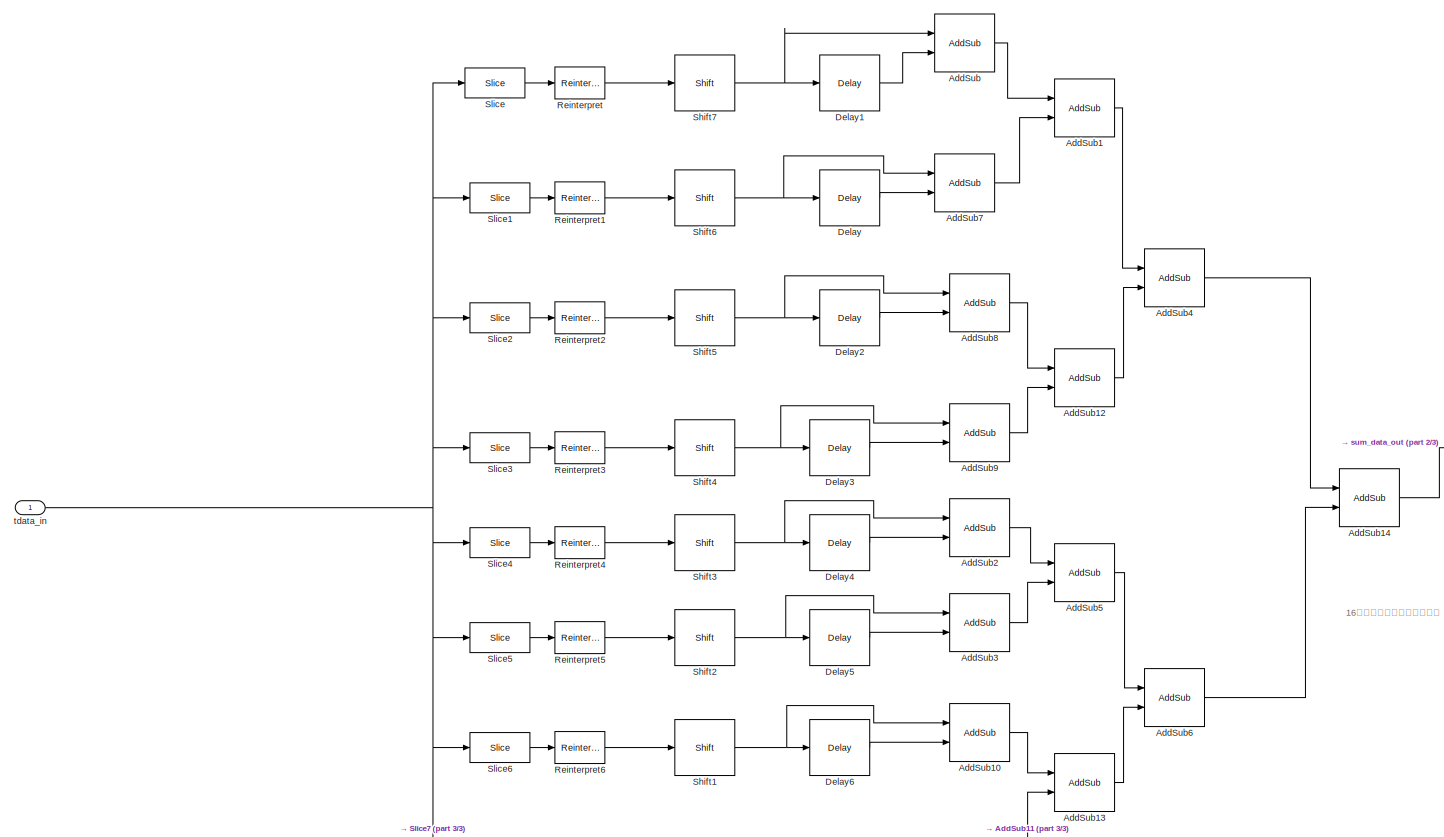
[diagram: Ave5 - part 1/3, most of the canvas]
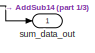
[diagram: Ave5 - part 2/3, middle right region]
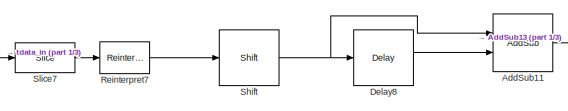
[diagram: Ave5 - part 3/3, bottom center region]
BLOCK [SubSystem] Ave5
  Commented = on
  Ports = [1, 1]
  RequestExecContextInheritance = off
BLOCK [Reference] Ave5/AddSub  REF=xbsIndex_r4/AddSub
  Ports = [2, 1]
  SourceBlock = xbsIndex_r4/AddSub
  SourceType = Xilinx Adder/Subtracter Block
BLOCK [Reference] Ave5/AddSub1  REF=xbsIndex_r4/AddSub
  Ports = [2, 1]
  SourceBlock = xbsIndex_r4/AddSub
  SourceType = Xilinx Adder/Subtracter Block
BLOCK [Reference] Ave5/AddSub10  REF=xbsIndex_r4/AddSub
  Ports = [2, 1]
  SourceBlock = xbsIndex_r4/AddSub
  SourceType = Xilinx Adder/Subtracter Block
BLOCK [Reference] Ave5/AddSub11  REF=xbsIndex_r4/AddSub
  Ports = [2, 1]
  SourceBlock = xbsIndex_r4/AddSub
  SourceType = Xilinx Adder/Subtracter Block
BLOCK [Reference] Ave5/AddSub12  REF=xbsIndex_r4/AddSub
  Ports = [2, 1]
  SourceBlock = xbsIndex_r4/AddSub
  SourceType = Xilinx Adder/Subtracter Block
BLOCK [Reference] Ave5/AddSub13  REF=xbsIndex_r4/AddSub
  Ports = [2, 1]
  SourceBlock = xbsIndex_r4/AddSub
  SourceType = Xilinx Adder/Subtracter Block
BLOCK [Reference] Ave5/AddSub14  REF=xbsIndex_r4/AddSub
  Ports = [2, 1]
  SourceBlock = xbsIndex_r4/AddSub
  SourceType = Xilinx Adder/Subtracter Block
BLOCK [Reference] Ave5/AddSub2  REF=xbsIndex_r4/AddSub
  Ports = [2, 1]
  SourceBlock = xbsIndex_r4/AddSub
  SourceType = Xilinx Adder/Subtracter Block
BLOCK [Reference] Ave5/AddSub3  REF=xbsIndex_r4/AddSub
  Ports = [2, 1]
  SourceBlock = xbsIndex_r4/AddSub
  SourceType = Xilinx Adder/Subtracter Block
BLOCK [Reference] Ave5/AddSub4  REF=xbsIndex_r4/AddSub
  Ports = [2, 1]
  SourceBlock = xbsIndex_r4/AddSub
  SourceType = Xilinx Adder/Subtracter Block
BLOCK [Reference] Ave5/AddSub5  REF=xbsIndex_r4/AddSub
  Ports = [2, 1]
  SourceBlock = xbsIndex_r4/AddSub
  SourceType = Xilinx Adder/Subtracter Block
BLOCK [Reference] Ave5/AddSub6  REF=xbsIndex_r4/AddSub
  Ports = [2, 1]
  SourceBlock = xbsIndex_r4/AddSub
  SourceType = Xilinx Adder/Subtracter Block
BLOCK [Reference] Ave5/AddSub7  REF=xbsIndex_r4/AddSub
  Ports = [2, 1]
  SourceBlock = xbsIndex_r4/AddSub
  SourceType = Xilinx Adder/Subtracter Block
BLOCK [Reference] Ave5/AddSub8  REF=xbsIndex_r4/AddSub
  Ports = [2, 1]
  SourceBlock = xbsIndex_r4/AddSub
  SourceType = Xilinx Adder/Subtracter Block
BLOCK [Reference] Ave5/AddSub9  REF=xbsIndex_r4/AddSub
  Ports = [2, 1]
  SourceBlock = xbsIndex_r4/AddSub
  SourceType = Xilinx Adder/Subtracter Block
BLOCK [Reference] Ave5/Delay  REF=xbsIndex_r4/Delay
  Ports = [1, 1]
  SourceBlock = xbsIndex_r4/Delay
  SourceType = Xilinx Delay Block
BLOCK [Reference] Ave5/Delay1  REF=xbsIndex_r4/Delay
  Ports = [1, 1]
  SourceBlock = xbsIndex_r4/Delay
  SourceType = Xilinx Delay Block
BLOCK [Reference] Ave5/Delay2  REF=xbsIndex_r4/Delay
  Ports = [1, 1]
  SourceBlock = xbsIndex_r4/Delay
  SourceType = Xilinx Delay Block
BLOCK [Reference] Ave5/Delay3  REF=xbsIndex_r4/Delay
  Ports = [1, 1]
  SourceBlock = xbsIndex_r4/Delay
  SourceType = Xilinx Delay Block
BLOCK [Reference] Ave5/Delay4  REF=xbsIndex_r4/Delay
  Ports = [1, 1]
  SourceBlock = xbsIndex_r4/Delay
  SourceType = Xilinx Delay Block
BLOCK [Reference] Ave5/Delay5  REF=xbsIndex_r4/Delay
  Ports = [1, 1]
  SourceBlock = xbsIndex_r4/Delay
  SourceType = Xilinx Delay Block
BLOCK [Reference] Ave5/Delay6  REF=xbsIndex_r4/Delay
  Ports = [1, 1]
  SourceBlock = xbsIndex_r4/Delay
  SourceType = Xilinx Delay Block
BLOCK [Reference] Ave5/Delay8  REF=xbsIndex_r4/Delay
  Ports = [1, 1]
  SourceBlock = xbsIndex_r4/Delay
  SourceType = Xilinx Delay Block
BLOCK [Reference] Ave5/Reinterpret  REF=xbsIndex_r4/Reinterpret
  Ports = [1, 1]
  SourceBlock = xbsIndex_r4/Reinterpret
  SourceType = Xilinx Type Reinterpreter Block
BLOCK [Reference] Ave5/Reinterpret1  REF=xbsIndex_r4/Reinterpret
  Ports = [1, 1]
  SourceBlock = xbsIndex_r4/Reinterpret
  SourceType = Xilinx Type Reinterpreter Block
BLOCK [Reference] Ave5/Reinterpret2  REF=xbsIndex_r4/Reinterpret
  Ports = [1, 1]
  SourceBlock = xbsIndex_r4/Reinterpret
  SourceType = Xilinx Type Reinterpreter Block
BLOCK [Reference] Ave5/Reinterpret3  REF=xbsIndex_r4/Reinterpret
  Ports = [1, 1]
  SourceBlock = xbsIndex_r4/Reinterpret
  SourceType = Xilinx Type Reinterpreter Block
BLOCK [Reference] Ave5/Reinterpret4  REF=xbsIndex_r4/Reinterpret
  Ports = [1, 1]
  SourceBlock = xbsIndex_r4/Reinterpret
  SourceType = Xilinx Type Reinterpreter Block
BLOCK [Reference] Ave5/Reinterpret5  REF=xbsIndex_r4/Reinterpret
  Ports = [1, 1]
  SourceBlock = xbsIndex_r4/Reinterpret
  SourceType = Xilinx Type Reinterpreter Block
BLOCK [Reference] Ave5/Reinterpret6  REF=xbsIndex_r4/Reinterpret
  Ports = [1, 1]
  SourceBlock = xbsIndex_r4/Reinterpret
  SourceType = Xilinx Type Reinterpreter Block
BLOCK [Reference] Ave5/Reinterpret7  REF=xbsIndex_r4/Reinterpret
  Ports = [1, 1]
  SourceBlock = xbsIndex_r4/Reinterpret
  SourceType = Xilinx Type Reinterpreter Block
BLOCK [Reference] Ave5/Shift  REF=xbsIndex_r4/Shift
  Ports = [1, 1]
  SourceBlock = xbsIndex_r4/Shift
  SourceType = Xilinx Binary Shift Operator Block
BLOCK [Reference] Ave5/Shift1  REF=xbsIndex_r4/Shift
  Ports = [1, 1]
  SourceBlock = xbsIndex_r4/Shift
  SourceType = Xilinx Binary Shift Operator Block
BLOCK [Reference] Ave5/Shift2  REF=xbsIndex_r4/Shift
  Ports = [1, 1]
  SourceBlock = xbsIndex_r4/Shift
  SourceType = Xilinx Binary Shift Operator Block
BLOCK [Reference] Ave5/Shift3  REF=xbsIndex_r4/Shift
  Ports = [1, 1]
  SourceBlock = xbsIndex_r4/Shift
  SourceType = Xilinx Binary Shift Operator Block
BLOCK [Reference] Ave5/Shift4  REF=xbsIndex_r4/Shift
  Ports = [1, 1]
  SourceBlock = xbsIndex_r4/Shift
  SourceType = Xilinx Binary Shift Operator Block
BLOCK [Reference] Ave5/Shift5  REF=xbsIndex_r4/Shift
  Ports = [1, 1]
  SourceBlock = xbsIndex_r4/Shift
  SourceType = Xilinx Binary Shift Operator Block
BLOCK [Reference] Ave5/Shift6  REF=xbsIndex_r4/Shift
  Ports = [1, 1]
  SourceBlock = xbsIndex_r4/Shift
  SourceType = Xilinx Binary Shift Operator Block
BLOCK [Reference] Ave5/Shift7  REF=xbsIndex_r4/Shift
  Ports = [1, 1]
  SourceBlock = xbsIndex_r4/Shift
  SourceType = Xilinx Binary Shift Operator Block
BLOCK [Reference] Ave5/Slice  REF=xbsIndex_r4/Slice
  Ports = [1, 1]
  SourceBlock = xbsIndex_r4/Slice
  SourceType = Xilinx Bit Slice Extractor Block
BLOCK [Reference] Ave5/Slice1  REF=xbsIndex_r4/Slice
  Ports = [1, 1]
  SourceBlock = xbsIndex_r4/Slice
  SourceType = Xilinx Bit Slice Extractor Block
BLOCK [Reference] Ave5/Slice2  REF=xbsIndex_r4/Slice
  Ports = [1, 1]
  SourceBlock = xbsIndex_r4/Slice
  SourceType = Xilinx Bit Slice Extractor Block
BLOCK [Reference] Ave5/Slice3  REF=xbsIndex_r4/Slice
  Ports = [1, 1]
  SourceBlock = xbsIndex_r4/Slice
  SourceType = Xilinx Bit Slice Extractor Block
BLOCK [Reference] Ave5/Slice4  REF=xbsIndex_r4/Slice
  Ports = [1, 1]
  SourceBlock = xbsIndex_r4/Slice
  SourceType = Xilinx Bit Slice Extractor Block
BLOCK [Reference] Ave5/Slice5  REF=xbsIndex_r4/Slice
  Ports = [1, 1]
  SourceBlock = xbsIndex_r4/Slice
  SourceType = Xilinx Bit Slice Extractor Block
BLOCK [Reference] Ave5/Slice6  REF=xbsIndex_r4/Slice
  Ports = [1, 1]
  SourceBlock = xbsIndex_r4/Slice
  SourceType = Xilinx Bit Slice Extractor Block
BLOCK [Reference] Ave5/Slice7  REF=xbsIndex_r4/Slice
  Ports = [1, 1]
  SourceBlock = xbsIndex_r4/Slice
  SourceType = Xilinx Bit Slice Extractor Block
BLOCK [Outport] Ave5/sum_data_out
  IconDisplay = Port number
  OutDataTypeStr = fixdt(1,19,4)
BLOCK [Inport] Ave5/tdata_in
  IconDisplay = Port number
BLOCK [SubSystem] Ave6
  Commented = on
  Ports = [1, 1]
  RequestExecContextInheritance = off
BLOCK [Reference] Ave6/AddSub  REF=xbsIndex_r4/AddSub
  Ports = [2, 1]
  SourceBlock = xbsIndex_r4/AddSub
  SourceType = Xilinx Adder/Subtracter Block
BLOCK [Reference] Ave6/AddSub1  REF=xbsIndex_r4/AddSub
  Ports = [2, 1]
  SourceBlock = xbsIndex_r4/AddSub
  SourceType = Xilinx Adder/Subtracter Block
BLOCK [Reference] Ave6/AddSub10  REF=xbsIndex_r4/AddSub
  Ports = [2, 1]
  SourceBlock = xbsIndex_r4/AddSub
  SourceType = Xilinx Adder/Subtracter Block
BLOCK [Reference] Ave6/AddSub11  REF=xbsIndex_r4/AddSub
  Ports = [2, 1]
  SourceBlock = xbsIndex_r4/AddSub
  SourceType = Xilinx Adder/Subtracter Block
BLOCK [Reference] Ave6/AddSub12  REF=xbsIndex_r4/AddSub
  Ports = [2, 1]
  SourceBlock = xbsIndex_r4/AddSub
  SourceType = Xilinx Adder/Subtracter Block
BLOCK [Reference] Ave6/AddSub13  REF=xbsIndex_r4/AddSub
  Ports = [2, 1]
  SourceBlock = xbsIndex_r4/AddSub
  SourceType = Xilinx Adder/Subtracter Block
BLOCK [Reference] Ave6/AddSub14  REF=xbsIndex_r4/AddSub
  Ports = [2, 1]
  SourceBlock = xbsIndex_r4/AddSub
  SourceType = Xilinx Adder/Subtracter Block
BLOCK [Reference] Ave6/AddSub2  REF=xbsIndex_r4/AddSub
  Ports = [2, 1]
  SourceBlock = xbsIndex_r4/AddSub
  SourceType = Xilinx Adder/Subtracter Block
BLOCK [Reference] Ave6/AddSub3  REF=xbsIndex_r4/AddSub
  Ports = [2, 1]
  SourceBlock = xbsIndex_r4/AddSub
  SourceType = Xilinx Adder/Subtracter Block
BLOCK [Reference] Ave6/AddSub4  REF=xbsIndex_r4/AddSub
  Ports = [2, 1]
  SourceBlock = xbsIndex_r4/AddSub
  SourceType = Xilinx Adder/Subtracter Block
BLOCK [Reference] Ave6/AddSub5  REF=xbsIndex_r4/AddSub
  Ports = [2, 1]
  SourceBlock = xbsIndex_r4/AddSub
  SourceType = Xilinx Adder/Subtracter Block
BLOCK [Reference] Ave6/AddSub6  REF=xbsIndex_r4/AddSub
  Ports = [2, 1]
  SourceBlock = xbsIndex_r4/AddSub
  SourceType = Xilinx Adder/Subtracter Block
BLOCK [Reference] Ave6/AddSub7  REF=xbsIndex_r4/AddSub
  Ports = [2, 1]
  SourceBlock = xbsIndex_r4/AddSub
  SourceType = Xilinx Adder/Subtracter Block
BLOCK [Reference] Ave6/AddSub8  REF=xbsIndex_r4/AddSub
  Ports = [2, 1]
  SourceBlock = xbsIndex_r4/AddSub
  SourceType = Xilinx Adder/Subtracter Block
BLOCK [Reference] Ave6/AddSub9  REF=xbsIndex_r4/AddSub
  Ports = [2, 1]
  SourceBlock = xbsIndex_r4/AddSub
  SourceType = Xilinx Adder/Subtracter Block
BLOCK [Reference] Ave6/Delay  REF=xbsIndex_r4/Delay
  Ports = [1, 1]
  SourceBlock = xbsIndex_r4/Delay
  SourceType = Xilinx Delay Block
BLOCK [Reference] Ave6/Delay1  REF=xbsIndex_r4/Delay
  Ports = [1, 1]
  SourceBlock = xbsIndex_r4/Delay
  SourceType = Xilinx Delay Block
BLOCK [Reference] Ave6/Delay10  REF=xbsIndex_r4/Delay
  Ports = [1, 1]
  SourceBlock = xbsIndex_r4/Delay
  SourceType = Xilinx Delay Block
BLOCK [Reference] Ave6/Delay11  REF=xbsIndex_r4/Delay
  Ports = [1, 1]
  SourceBlock = xbsIndex_r4/Delay
  SourceType = Xilinx Delay Block
BLOCK [Reference] Ave6/Delay2  REF=xbsIndex_r4/Delay
  Ports = [1, 1]
  SourceBlock = xbsIndex_r4/Delay
  SourceType = Xilinx Delay Block
BLOCK [Reference] Ave6/Delay3  REF=xbsIndex_r4/Delay
  Ports = [1, 1]
  SourceBlock = xbsIndex_r4/Delay
  SourceType = Xilinx Delay Block
BLOCK [Reference] Ave6/Delay4  REF=xbsIndex_r4/Delay
  Ports = [1, 1]
  SourceBlock = xbsIndex_r4/Delay
  SourceType = Xilinx Delay Block
BLOCK [Reference] Ave6/Delay5  REF=xbsIndex_r4/Delay
  Ports = [1, 1]
  SourceBlock = xbsIndex_r4/Delay
  SourceType = Xilinx Delay Block
BLOCK [Reference] Ave6/Delay6  REF=xbsIndex_r4/Delay
  Ports = [1, 1]
  SourceBlock = xbsIndex_r4/Delay
  SourceType = Xilinx Delay Block
BLOCK [Reference] Ave6/Delay7  REF=xbsIndex_r4/Delay
  Ports = [1, 1]
  SourceBlock = xbsIndex_r4/Delay
  SourceType = Xilinx Delay Block
BLOCK [Reference] Ave6/Delay8  REF=xbsIndex_r4/Delay
  Ports = [1, 1]
  SourceBlock = xbsIndex_r4/Delay
  SourceType = Xilinx Delay Block
BLOCK [Reference] Ave6/Delay9  REF=xbsIndex_r4/Delay
  Ports = [1, 1]
  SourceBlock = xbsIndex_r4/Delay
  SourceType = Xilinx Delay Block
BLOCK [Reference] Ave6/Reinterpret  REF=xbsIndex_r4/Reinterpret
  Ports = [1, 1]
  SourceBlock = xbsIndex_r4/Reinterpret
  SourceType = Xilinx Type Reinterpreter Block
BLOCK [Reference] Ave6/Reinterpret2  REF=xbsIndex_r4/Reinterpret
  Ports = [1, 1]
  SourceBlock = xbsIndex_r4/Reinterpret
  SourceType = Xilinx Type Reinterpreter Block
BLOCK [Reference] Ave6/Reinterpret4  REF=xbsIndex_r4/Reinterpret
  Ports = [1, 1]
  SourceBlock = xbsIndex_r4/Reinterpret
  SourceType = Xilinx Type Reinterpreter Block
BLOCK [Reference] Ave6/Reinterpret6  REF=xbsIndex_r4/Reinterpret
  Ports = [1, 1]
  SourceBlock = xbsIndex_r4/Reinterpret
  SourceType = Xilinx Type Reinterpreter Block
BLOCK [Reference] Ave6/Shift1  REF=xbsIndex_r4/Shift
  Ports = [1, 1]
  SourceBlock = xbsIndex_r4/Shift
  SourceType = Xilinx Binary Shift Operator Block
BLOCK [Reference] Ave6/Shift3  REF=xbsIndex_r4/Shift
  Ports = [1, 1]
  SourceBlock = xbsIndex_r4/Shift
  SourceType = Xilinx Binary Shift Operator Block
BLOCK [Reference] Ave6/Shift5  REF=xbsIndex_r4/Shift
  Ports = [1, 1]
  SourceBlock = xbsIndex_r4/Shift
  SourceType = Xilinx Binary Shift Operator Block
BLOCK [Reference] Ave6/Shift7  REF=xbsIndex_r4/Shift
  Ports = [1, 1]
  SourceBlock = xbsIndex_r4/Shift
  SourceType = Xilinx Binary Shift Operator Block
BLOCK [Reference] Ave6/Slice  REF=xbsIndex_r4/Slice
  Ports = [1, 1]
  SourceBlock = xbsIndex_r4/Slice
  SourceType = Xilinx Bit Slice Extractor Block
BLOCK [Reference] Ave6/Slice2  REF=xbsIndex_r4/Slice
  Ports = [1, 1]
  SourceBlock = xbsIndex_r4/Slice
  SourceType = Xilinx Bit Slice Extractor Block
BLOCK [Reference] Ave6/Slice4  REF=xbsIndex_r4/Slice
  Ports = [1, 1]
  SourceBlock = xbsIndex_r4/Slice
  SourceType = Xilinx Bit Slice Extractor Block
BLOCK [Reference] Ave6/Slice6  REF=xbsIndex_r4/Slice
  Ports = [1, 1]
  SourceBlock = xbsIndex_r4/Slice
  SourceType = Xilinx Bit Slice Extractor Block
BLOCK [Outport] Ave6/sum_data_out
  IconDisplay = Port number
  OutDataTypeStr = fixdt(1,19,4)
BLOCK [Inport] Ave6/tdata_in
  IconDisplay = Port number
BLOCK [SubSystem] Ave7
  Commented = on
  Ports = [1, 1]
  RequestExecContextInheritance = off
BLOCK [Reference] Ave7/AddSub  REF=xbsIndex_r4/AddSub
  Ports = [2, 1]
  SourceBlock = xbsIndex_r4/AddSub
  SourceType = Xilinx Adder/Subtracter Block
BLOCK [Reference] Ave7/AddSub1  REF=xbsIndex_r4/AddSub
  Ports = [2, 1]
  SourceBlock = xbsIndex_r4/AddSub
  SourceType = Xilinx Adder/Subtracter Block
BLOCK [Reference] Ave7/AddSub12  REF=xbsIndex_r4/AddSub
  Ports = [2, 1]
  SourceBlock = xbsIndex_r4/AddSub
  SourceType = Xilinx Adder/Subtracter Block
BLOCK [Reference] Ave7/AddSub13  REF=xbsIndex_r4/AddSub
  Ports = [2, 1]
  SourceBlock = xbsIndex_r4/AddSub
  SourceType = Xilinx Adder/Subtracter Block
BLOCK [Reference] Ave7/AddSub14  REF=xbsIndex_r4/AddSub
  Ports = [2, 1]
  SourceBlock = xbsIndex_r4/AddSub
  SourceType = Xilinx Adder/Subtracter Block
BLOCK [Reference] Ave7/AddSub15  REF=xbsIndex_r4/AddSub
  Ports = [2, 1]
  SourceBlock = xbsIndex_r4/AddSub
  SourceType = Xilinx Adder/Subtracter Block
BLOCK [Reference] Ave7/AddSub2  REF=xbsIndex_r4/AddSub
  Ports = [2, 1]
  SourceBlock = xbsIndex_r4/AddSub
  SourceType = Xilinx Adder/Subtracter Block
BLOCK [Reference] Ave7/AddSub3  REF=xbsIndex_r4/AddSub
  Ports = [2, 1]
  SourceBlock = xbsIndex_r4/AddSub
  SourceType = Xilinx Adder/Subtracter Block
BLOCK [Reference] Ave7/AddSub4  REF=xbsIndex_r4/AddSub
  Ports = [2, 1]
  SourceBlock = xbsIndex_r4/AddSub
  SourceType = Xilinx Adder/Subtracter Block
BLOCK [Reference] Ave7/AddSub5  REF=xbsIndex_r4/AddSub
  Ports = [2, 1]
  SourceBlock = xbsIndex_r4/AddSub
  SourceType = Xilinx Adder/Subtracter Block
BLOCK [Reference] Ave7/AddSub6  REF=xbsIndex_r4/AddSub
  Ports = [2, 1]
  SourceBlock = xbsIndex_r4/AddSub
  SourceType = Xilinx Adder/Subtracter Block
BLOCK [Reference] Ave7/AddSub8  REF=xbsIndex_r4/AddSub
  Ports = [2, 1]
  SourceBlock = xbsIndex_r4/AddSub
  SourceType = Xilinx Adder/Subtracter Block
BLOCK [Reference] Ave7/Delay1  REF=xbsIndex_r4/Delay
  Ports = [1, 1]
  SourceBlock = xbsIndex_r4/Delay
  SourceType = Xilinx Delay Block
BLOCK [Reference] Ave7/Delay12  REF=xbsIndex_r4/Delay
  Ports = [1, 1]
  SourceBlock = xbsIndex_r4/Delay
  SourceType = Xilinx Delay Block
BLOCK [Reference] Ave7/Delay2  REF=xbsIndex_r4/Delay
  Ports = [1, 1]
  SourceBlock = xbsIndex_r4/Delay
  SourceType = Xilinx Delay Block
BLOCK [Reference] Ave7/Delay3  REF=xbsIndex_r4/Delay
  Ports = [1, 1]
  SourceBlock = xbsIndex_r4/Delay
  SourceType = Xilinx Delay Block
BLOCK [Reference] Ave7/Delay4  REF=xbsIndex_r4/Delay
  Ports = [1, 1]
  SourceBlock = xbsIndex_r4/Delay
  SourceType = Xilinx Delay Block
BLOCK [Reference] Ave7/Delay5  REF=xbsIndex_r4/Delay
  Ports = [1, 1]
  SourceBlock = xbsIndex_r4/Delay
  SourceType = Xilinx Delay Block
BLOCK [Reference] Ave7/Delay6  REF=xbsIndex_r4/Delay
  Ports = [1, 1]
  SourceBlock = xbsIndex_r4/Delay
  SourceType = Xilinx Delay Block
BLOCK [Reference] Ave7/Delay7  REF=xbsIndex_r4/Delay
  Ports = [1, 1]
  SourceBlock = xbsIndex_r4/Delay
  SourceType = Xilinx Delay Block
BLOCK [Reference] Ave7/Delay8  REF=xbsIndex_r4/Delay
  Ports = [1, 1]
  SourceBlock = xbsIndex_r4/Delay
  SourceType = Xilinx Delay Block
BLOCK [Reference] Ave7/Reinterpret  REF=xbsIndex_r4/Reinterpret
  Ports = [1, 1]
  SourceBlock = xbsIndex_r4/Reinterpret
  SourceType = Xilinx Type Reinterpreter Block
BLOCK [Reference] Ave7/Reinterpret2  REF=xbsIndex_r4/Reinterpret
  Ports = [1, 1]
  SourceBlock = xbsIndex_r4/Reinterpret
  SourceType = Xilinx Type Reinterpreter Block
BLOCK [Reference] Ave7/Reinterpret4  REF=xbsIndex_r4/Reinterpret
  Ports = [1, 1]
  SourceBlock = xbsIndex_r4/Reinterpret
  SourceType = Xilinx Type Reinterpreter Block
BLOCK [Reference] Ave7/Reinterpret6  REF=xbsIndex_r4/Reinterpret
  Ports = [1, 1]
  SourceBlock = xbsIndex_r4/Reinterpret
  SourceType = Xilinx Type Reinterpreter Block
BLOCK [Reference] Ave7/Shift1  REF=xbsIndex_r4/Shift
  Ports = [1, 1]
  SourceBlock = xbsIndex_r4/Shift
  SourceType = Xilinx Binary Shift Operator Block
BLOCK [Reference] Ave7/Shift3  REF=xbsIndex_r4/Shift
  Ports = [1, 1]
  SourceBlock = xbsIndex_r4/Shift
  SourceType = Xilinx Binary Shift Operator Block
BLOCK [Reference] Ave7/Shift5  REF=xbsIndex_r4/Shift
  Ports = [1, 1]
  SourceBlock = xbsIndex_r4/Shift
  SourceType = Xilinx Binary Shift Operator Block
BLOCK [Reference] Ave7/Shift7  REF=xbsIndex_r4/Shift
  Ports = [1, 1]
  SourceBlock = xbsIndex_r4/Shift
  SourceType = Xilinx Binary Shift Operator Block
BLOCK [Reference] Ave7/Slice  REF=xbsIndex_r4/Slice
  Ports = [1, 1]
  SourceBlock = xbsIndex_r4/Slice
  SourceType = Xilinx Bit Slice Extractor Block
BLOCK [Reference] Ave7/Slice2  REF=xbsIndex_r4/Slice
  Ports = [1, 1]
  SourceBlock = xbsIndex_r4/Slice
  SourceType = Xilinx Bit Slice Extractor Block
BLOCK [Reference] Ave7/Slice4  REF=xbsIndex_r4/Slice
  Ports = [1, 1]
  SourceBlock = xbsIndex_r4/Slice
  SourceType = Xilinx Bit Slice Extractor Block
BLOCK [Reference] Ave7/Slice6  REF=xbsIndex_r4/Slice
  Ports = [1, 1]
  SourceBlock = xbsIndex_r4/Slice
  SourceType = Xilinx Bit Slice Extractor Block
BLOCK [Outport] Ave7/sum_data_out
  IconDisplay = Port number
  OutDataTypeStr = fixdt(1,19,4)
BLOCK [Inport] Ave7/tdata_in
  IconDisplay = Port number
BLOCK [SubSystem] Ave8
  Commented = on
  Ports = [1, 1]
  RequestExecContextInheritance = off
BLOCK [Reference] Ave8/AddSub  REF=xbsIndex_r4/AddSub
  Ports = [2, 1]
  SourceBlock = xbsIndex_r4/AddSub
  SourceType = Xilinx Adder/Subtracter Block
BLOCK [Reference] Ave8/AddSub1  REF=xbsIndex_r4/AddSub
  Ports = [2, 1]
  SourceBlock = xbsIndex_r4/AddSub
  SourceType = Xilinx Adder/Subtracter Block
BLOCK [Reference] Ave8/AddSub10  REF=xbsIndex_r4/AddSub
  Ports = [2, 1]
  SourceBlock = xbsIndex_r4/AddSub
  SourceType = Xilinx Adder/Subtracter Block
BLOCK [Reference] Ave8/AddSub11  REF=xbsIndex_r4/AddSub
  Ports = [2, 1]
  SourceBlock = xbsIndex_r4/AddSub
  SourceType = Xilinx Adder/Subtracter Block
BLOCK [Reference] Ave8/AddSub12  REF=xbsIndex_r4/AddSub
  Ports = [2, 1]
  SourceBlock = xbsIndex_r4/AddSub
  SourceType = Xilinx Adder/Subtracter Block
BLOCK [Reference] Ave8/AddSub13  REF=xbsIndex_r4/AddSub
  Ports = [2, 1]
  SourceBlock = xbsIndex_r4/AddSub
  SourceType = Xilinx Adder/Subtracter Block
BLOCK [Reference] Ave8/AddSub14  REF=xbsIndex_r4/AddSub
  Ports = [2, 1]
  SourceBlock = xbsIndex_r4/AddSub
  SourceType = Xilinx Adder/Subtracter Block
BLOCK [Reference] Ave8/AddSub2  REF=xbsIndex_r4/AddSub
  Ports = [2, 1]
  SourceBlock = xbsIndex_r4/AddSub
  SourceType = Xilinx Adder/Subtracter Block
BLOCK [Reference] Ave8/AddSub3  REF=xbsIndex_r4/AddSub
  Ports = [2, 1]
  SourceBlock = xbsIndex_r4/AddSub
  SourceType = Xilinx Adder/Subtracter Block
BLOCK [Reference] Ave8/AddSub4  REF=xbsIndex_r4/AddSub
  Ports = [2, 1]
  SourceBlock = xbsIndex_r4/AddSub
  SourceType = Xilinx Adder/Subtracter Block
BLOCK [Reference] Ave8/AddSub5  REF=xbsIndex_r4/AddSub
  Ports = [2, 1]
  SourceBlock = xbsIndex_r4/AddSub
  SourceType = Xilinx Adder/Subtracter Block
BLOCK [Reference] Ave8/AddSub6  REF=xbsIndex_r4/AddSub
  Ports = [2, 1]
  SourceBlock = xbsIndex_r4/AddSub
  SourceType = Xilinx Adder/Subtracter Block
BLOCK [Reference] Ave8/AddSub7  REF=xbsIndex_r4/AddSub
  Ports = [2, 1]
  SourceBlock = xbsIndex_r4/AddSub
  SourceType = Xilinx Adder/Subtracter Block
BLOCK [Reference] Ave8/AddSub8  REF=xbsIndex_r4/AddSub
  Ports = [2, 1]
  SourceBlock = xbsIndex_r4/AddSub
  SourceType = Xilinx Adder/Subtracter Block
BLOCK [Reference] Ave8/AddSub9  REF=xbsIndex_r4/AddSub
  Ports = [2, 1]
  SourceBlock = xbsIndex_r4/AddSub
  SourceType = Xilinx Adder/Subtracter Block
BLOCK [Reference] Ave8/Delay1  REF=xbsIndex_r4/Delay
  Ports = [1, 1]
  SourceBlock = xbsIndex_r4/Delay
  SourceType = Xilinx Delay Block
BLOCK [Reference] Ave8/Delay10  REF=xbsIndex_r4/Delay
  Ports = [1, 1]
  SourceBlock = xbsIndex_r4/Delay
  SourceType = Xilinx Delay Block
BLOCK [Reference] Ave8/Delay11  REF=xbsIndex_r4/Delay
  Ports = [1, 1]
  SourceBlock = xbsIndex_r4/Delay
  SourceType = Xilinx Delay Block
BLOCK [Reference] Ave8/Delay12  REF=xbsIndex_r4/Delay
  Ports = [1, 1]
  SourceBlock = xbsIndex_r4/Delay
  SourceType = Xilinx Delay Block
BLOCK [Reference] Ave8/Delay13  REF=xbsIndex_r4/Delay
  Ports = [1, 1]
  SourceBlock = xbsIndex_r4/Delay
  SourceType = Xilinx Delay Block
BLOCK [Reference] Ave8/Delay14  REF=xbsIndex_r4/Delay
  Ports = [1, 1]
  SourceBlock = xbsIndex_r4/Delay
  SourceType = Xilinx Delay Block
BLOCK [Reference] Ave8/Delay2  REF=xbsIndex_r4/Delay
  Ports = [1, 1]
  SourceBlock = xbsIndex_r4/Delay
  SourceType = Xilinx Delay Block
BLOCK [Reference] Ave8/Delay3  REF=xbsIndex_r4/Delay
  Ports = [1, 1]
  SourceBlock = xbsIndex_r4/Delay
  SourceType = Xilinx Delay Block
BLOCK [Reference] Ave8/Delay4  REF=xbsIndex_r4/Delay
  Ports = [1, 1]
  SourceBlock = xbsIndex_r4/Delay
  SourceType = Xilinx Delay Block
BLOCK [Reference] Ave8/Delay5  REF=xbsIndex_r4/Delay
  Ports = [1, 1]
  SourceBlock = xbsIndex_r4/Delay
  SourceType = Xilinx Delay Block
BLOCK [Reference] Ave8/Delay6  REF=xbsIndex_r4/Delay
  Ports = [1, 1]
  SourceBlock = xbsIndex_r4/Delay
  SourceType = Xilinx Delay Block
BLOCK [Reference] Ave8/Delay7  REF=xbsIndex_r4/Delay
  Ports = [1, 1]
  SourceBlock = xbsIndex_r4/Delay
  SourceType = Xilinx Delay Block
BLOCK [Reference] Ave8/Delay8  REF=xbsIndex_r4/Delay
  Ports = [1, 1]
  SourceBlock = xbsIndex_r4/Delay
  SourceType = Xilinx Delay Block
BLOCK [Reference] Ave8/Delay9  REF=xbsIndex_r4/Delay
  Ports = [1, 1]
  SourceBlock = xbsIndex_r4/Delay
  SourceType = Xilinx Delay Block
BLOCK [Reference] Ave8/Reinterpret  REF=xbsIndex_r4/Reinterpret
  Ports = [1, 1]
  SourceBlock = xbsIndex_r4/Reinterpret
  SourceType = Xilinx Type Reinterpreter Block
BLOCK [Reference] Ave8/Reinterpret4  REF=xbsIndex_r4/Reinterpret
  Ports = [1, 1]
  SourceBlock = xbsIndex_r4/Reinterpret
  SourceType = Xilinx Type Reinterpreter Block
BLOCK [Reference] Ave8/Shift3  REF=xbsIndex_r4/Shift
  Ports = [1, 1]
  SourceBlock = xbsIndex_r4/Shift
  SourceType = Xilinx Binary Shift Operator Block
BLOCK [Reference] Ave8/Shift7  REF=xbsIndex_r4/Shift
  Ports = [1, 1]
  SourceBlock = xbsIndex_r4/Shift
  SourceType = Xilinx Binary Shift Operator Block
BLOCK [Reference] Ave8/Slice  REF=xbsIndex_r4/Slice
  Ports = [1, 1]
  SourceBlock = xbsIndex_r4/Slice
  SourceType = Xilinx Bit Slice Extractor Block
BLOCK [Reference] Ave8/Slice4  REF=xbsIndex_r4/Slice
  Ports = [1, 1]
  SourceBlock = xbsIndex_r4/Slice
  SourceType = Xilinx Bit Slice Extractor Block
BLOCK [Outport] Ave8/sum_data_out
  IconDisplay = Port number
  OutDataTypeStr = fixdt(1,19,4)
BLOCK [Inport] Ave8/tdata_in
  IconDisplay = Port number
BLOCK [SubSystem] Ave9
  Commented = on
  Ports = [1, 1]
  RequestExecContextInheritance = off
BLOCK [Reference] Ave9/AddSub1  REF=xbsIndex_r4/AddSub
  Ports = [2, 1]
  SourceBlock = xbsIndex_r4/AddSub
  SourceType = Xilinx Adder/Subtracter Block
BLOCK [Reference] Ave9/AddSub14  REF=xbsIndex_r4/AddSub
  Ports = [2, 1]
  SourceBlock = xbsIndex_r4/AddSub
  SourceType = Xilinx Adder/Subtracter Block
BLOCK [Reference] Ave9/AddSub15  REF=xbsIndex_r4/AddSub
  Ports = [2, 1]
  SourceBlock = xbsIndex_r4/AddSub
  SourceType = Xilinx Adder/Subtracter Block
BLOCK [Reference] Ave9/Reinterpret  REF=xbsIndex_r4/Reinterpret
  Ports = [1, 1]
  SourceBlock = xbsIndex_r4/Reinterpret
  SourceType = Xilinx Type Reinterpreter Block
BLOCK [Reference] Ave9/Reinterpret2  REF=xbsIndex_r4/Reinterpret
  Ports = [1, 1]
  SourceBlock = xbsIndex_r4/Reinterpret
  SourceType = Xilinx Type Reinterpreter Block
BLOCK [Reference] Ave9/Reinterpret4  REF=xbsIndex_r4/Reinterpret
  Ports = [1, 1]
  SourceBlock = xbsIndex_r4/Reinterpret
  SourceType = Xilinx Type Reinterpreter Block
BLOCK [Reference] Ave9/Reinterpret6  REF=xbsIndex_r4/Reinterpret
  Ports = [1, 1]
  SourceBlock = xbsIndex_r4/Reinterpret
  SourceType = Xilinx Type Reinterpreter Block
BLOCK [Reference] Ave9/Shift1  REF=xbsIndex_r4/Shift
  Ports = [1, 1]
  SourceBlock = xbsIndex_r4/Shift
  SourceType = Xilinx Binary Shift Operator Block
BLOCK [Reference] Ave9/Shift3  REF=xbsIndex_r4/Shift
  Ports = [1, 1]
  SourceBlock = xbsIndex_r4/Shift
  SourceType = Xilinx Binary Shift Operator Block
BLOCK [Reference] Ave9/Shift5  REF=xbsIndex_r4/Shift
  Ports = [1, 1]
  SourceBlock = xbsIndex_r4/Shift
  SourceType = Xilinx Binary Shift Operator Block
BLOCK [Reference] Ave9/Shift7  REF=xbsIndex_r4/Shift
  Ports = [1, 1]
  SourceBlock = xbsIndex_r4/Shift
  SourceType = Xilinx Binary Shift Operator Block
BLOCK [Reference] Ave9/Slice  REF=xbsIndex_r4/Slice
  Ports = [1, 1]
  SourceBlock = xbsIndex_r4/Slice
  SourceType = Xilinx Bit Slice Extractor Block
BLOCK [Reference] Ave9/Slice2  REF=xbsIndex_r4/Slice
  Ports = [1, 1]
  SourceBlock = xbsIndex_r4/Slice
  SourceType = Xilinx Bit Slice Extractor Block
BLOCK [Reference] Ave9/Slice4  REF=xbsIndex_r4/Slice
  Ports = [1, 1]
  SourceBlock = xbsIndex_r4/Slice
  SourceType = Xilinx Bit Slice Extractor Block
BLOCK [Reference] Ave9/Slice6  REF=xbsIndex_r4/Slice
  Ports = [1, 1]
  SourceBlock = xbsIndex_r4/Slice
  SourceType = Xilinx Bit Slice Extractor Block
BLOCK [SubSystem] Ave9/Subsystem
  Ports = [1, 1]
  RequestExecContextInheritance = off
BLOCK [Reference] Ave9/Subsystem/AddSub  REF=xbsIndex_r4/AddSub
  Ports = [2, 1]
  SourceBlock = xbsIndex_r4/AddSub
  SourceType = Xilinx Adder/Subtracter Block
BLOCK [Reference] Ave9/Subsystem/AddSub1  REF=xbsIndex_r4/AddSub
  Ports = [2, 1]
  SourceBlock = xbsIndex_r4/AddSub
  SourceType = Xilinx Adder/Subtracter Block
BLOCK [Reference] Ave9/Subsystem/AddSub12  REF=xbsIndex_r4/AddSub
  Ports = [2, 1]
  SourceBlock = xbsIndex_r4/AddSub
  SourceType = Xilinx Adder/Subtracter Block
BLOCK [Reference] Ave9/Subsystem/AddSub3  REF=xbsIndex_r4/AddSub
  Ports = [2, 1]
  SourceBlock = xbsIndex_r4/AddSub
  SourceType = Xilinx Adder/Subtracter Block
BLOCK [Reference] Ave9/Subsystem/AddSub4  REF=xbsIndex_r4/AddSub
  Ports = [2, 1]
  SourceBlock = xbsIndex_r4/AddSub
  SourceType = Xilinx Adder/Subtracter Block
BLOCK [Reference] Ave9/Subsystem/AddSub8  REF=xbsIndex_r4/AddSub
  Ports = [2, 1]
  SourceBlock = xbsIndex_r4/AddSub
  SourceType = Xilinx Adder/Subtracter Block
BLOCK [Reference] Ave9/Subsystem/AddSub9  REF=xbsIndex_r4/AddSub
  Ports = [2, 1]
  SourceBlock = xbsIndex_r4/AddSub
  SourceType = Xilinx Adder/Subtracter Block
BLOCK [Reference] Ave9/Subsystem/Delay1  REF=xbsIndex_r4/Delay
  Ports = [1, 1]
  SourceBlock = xbsIndex_r4/Delay
  SourceType = Xilinx Delay Block
BLOCK [Reference] Ave9/Subsystem/Delay10  REF=xbsIndex_r4/Delay
  Ports = [1, 1]
  SourceBlock = xbsIndex_r4/Delay
  SourceType = Xilinx Delay Block
BLOCK [Reference] Ave9/Subsystem/Delay2  REF=xbsIndex_r4/Delay
  Ports = [1, 1]
  SourceBlock = xbsIndex_r4/Delay
  SourceType = Xilinx Delay Block
BLOCK [Reference] Ave9/Subsystem/Delay5  REF=xbsIndex_r4/Delay
  Ports = [1, 1]
  SourceBlock = xbsIndex_r4/Delay
  SourceType = Xilinx Delay Block
BLOCK [Reference] Ave9/Subsystem/Delay7  REF=xbsIndex_r4/Delay
  Ports = [1, 1]
  SourceBlock = xbsIndex_r4/Delay
  SourceType = Xilinx Delay Block
BLOCK [Reference] Ave9/Subsystem/Delay8  REF=xbsIndex_r4/Delay
  Ports = [1, 1]
  SourceBlock = xbsIndex_r4/Delay
  SourceType = Xilinx Delay Block
BLOCK [Reference] Ave9/Subsystem/Delay9  REF=xbsIndex_r4/Delay
  Ports = [1, 1]
  SourceBlock = xbsIndex_r4/Delay
  SourceType = Xilinx Delay Block
BLOCK [Inport] Ave9/Subsystem/In1
  IconDisplay = Port number
BLOCK [Outport] Ave9/Subsystem/Out1
  IconDisplay = Port number
BLOCK [SubSystem] Ave9/Subsystem1
  Ports = [1, 1]
  RequestExecContextInheritance = off
BLOCK [Reference] Ave9/Subsystem1/AddSub  REF=xbsIndex_r4/AddSub
  Ports = [2, 1]
  SourceBlock = xbsIndex_r4/AddSub
  SourceType = Xilinx Adder/Subtracter Block
BLOCK [Reference] Ave9/Subsystem1/AddSub1  REF=xbsIndex_r4/AddSub
  Ports = [2, 1]
  SourceBlock = xbsIndex_r4/AddSub
  SourceType = Xilinx Adder/Subtracter Block
BLOCK [Reference] Ave9/Subsystem1/AddSub12  REF=xbsIndex_r4/AddSub
  Ports = [2, 1]
  SourceBlock = xbsIndex_r4/AddSub
  SourceType = Xilinx Adder/Subtracter Block
BLOCK [Reference] Ave9/Subsystem1/AddSub3  REF=xbsIndex_r4/AddSub
  Ports = [2, 1]
  SourceBlock = xbsIndex_r4/AddSub
  SourceType = Xilinx Adder/Subtracter Block
BLOCK [Reference] Ave9/Subsystem1/AddSub4  REF=xbsIndex_r4/AddSub
  Ports = [2, 1]
  SourceBlock = xbsIndex_r4/AddSub
  SourceType = Xilinx Adder/Subtracter Block
BLOCK [Reference] Ave9/Subsystem1/AddSub8  REF=xbsIndex_r4/AddSub
  Ports = [2, 1]
  SourceBlock = xbsIndex_r4/AddSub
  SourceType = Xilinx Adder/Subtracter Block
BLOCK [Reference] Ave9/Subsystem1/AddSub9  REF=xbsIndex_r4/AddSub
  Ports = [2, 1]
  SourceBlock = xbsIndex_r4/AddSub
  SourceType = Xilinx Adder/Subtracter Block
BLOCK [Reference] Ave9/Subsystem1/Delay1  REF=xbsIndex_r4/Delay
  Ports = [1, 1]
  SourceBlock = xbsIndex_r4/Delay
  SourceType = Xilinx Delay Block
BLOCK [Reference] Ave9/Subsystem1/Delay10  REF=xbsIndex_r4/Delay
  Ports = [1, 1]
  SourceBlock = xbsIndex_r4/Delay
  SourceType = Xilinx Delay Block
BLOCK [Reference] Ave9/Subsystem1/Delay2  REF=xbsIndex_r4/Delay
  Ports = [1, 1]
  SourceBlock = xbsIndex_r4/Delay
  SourceType = Xilinx Delay Block
BLOCK [Reference] Ave9/Subsystem1/Delay5  REF=xbsIndex_r4/Delay
  Ports = [1, 1]
  SourceBlock = xbsIndex_r4/Delay
  SourceType = Xilinx Delay Block
BLOCK [Reference] Ave9/Subsystem1/Delay7  REF=xbsIndex_r4/Delay
  Ports = [1, 1]
  SourceBlock = xbsIndex_r4/Delay
  SourceType = Xilinx Delay Block
BLOCK [Reference] Ave9/Subsystem1/Delay8  REF=xbsIndex_r4/Delay
  Ports = [1, 1]
  SourceBlock = xbsIndex_r4/Delay
  SourceType = Xilinx Delay Block
BLOCK [Reference] Ave9/Subsystem1/Delay9  REF=xbsIndex_r4/Delay
  Ports = [1, 1]
  SourceBlock = xbsIndex_r4/Delay
  SourceType = Xilinx Delay Block
BLOCK [Inport] Ave9/Subsystem1/In1
  IconDisplay = Port number
BLOCK [Outport] Ave9/Subsystem1/Out1
  IconDisplay = Port number
BLOCK [SubSystem] Ave9/Subsystem2
  Ports = [1, 1]
  RequestExecContextInheritance = off
BLOCK [Reference] Ave9/Subsystem2/AddSub  REF=xbsIndex_r4/AddSub
  Ports = [2, 1]
  SourceBlock = xbsIndex_r4/AddSub
  SourceType = Xilinx Adder/Subtracter Block
BLOCK [Reference] Ave9/Subsystem2/AddSub1  REF=xbsIndex_r4/AddSub
  Ports = [2, 1]
  SourceBlock = xbsIndex_r4/AddSub
  SourceType = Xilinx Adder/Subtracter Block
BLOCK [Reference] Ave9/Subsystem2/AddSub12  REF=xbsIndex_r4/AddSub
  Ports = [2, 1]
  SourceBlock = xbsIndex_r4/AddSub
  SourceType = Xilinx Adder/Subtracter Block
BLOCK [Reference] Ave9/Subsystem2/AddSub3  REF=xbsIndex_r4/AddSub
  Ports = [2, 1]
  SourceBlock = xbsIndex_r4/AddSub
  SourceType = Xilinx Adder/Subtracter Block
BLOCK [Reference] Ave9/Subsystem2/AddSub4  REF=xbsIndex_r4/AddSub
  Ports = [2, 1]
  SourceBlock = xbsIndex_r4/AddSub
  SourceType = Xilinx Adder/Subtracter Block
BLOCK [Reference] Ave9/Subsystem2/AddSub8  REF=xbsIndex_r4/AddSub
  Ports = [2, 1]
  SourceBlock = xbsIndex_r4/AddSub
  SourceType = Xilinx Adder/Subtracter Block
BLOCK [Reference] Ave9/Subsystem2/AddSub9  REF=xbsIndex_r4/AddSub
  Ports = [2, 1]
  SourceBlock = xbsIndex_r4/AddSub
  SourceType = Xilinx Adder/Subtracter Block
BLOCK [Reference] Ave9/Subsystem2/Delay1  REF=xbsIndex_r4/Delay
  Ports = [1, 1]
  SourceBlock = xbsIndex_r4/Delay
  SourceType = Xilinx Delay Block
BLOCK [Reference] Ave9/Subsystem2/Delay10  REF=xbsIndex_r4/Delay
  Ports = [1, 1]
  SourceBlock = xbsIndex_r4/Delay
  SourceType = Xilinx Delay Block
BLOCK [Reference] Ave9/Subsystem2/Delay2  REF=xbsIndex_r4/Delay
  Ports = [1, 1]
  SourceBlock = xbsIndex_r4/Delay
  SourceType = Xilinx Delay Block
BLOCK [Reference] Ave9/Subsystem2/Delay5  REF=xbsIndex_r4/Delay
  Ports = [1, 1]
  SourceBlock = xbsIndex_r4/Delay
  SourceType = Xilinx Delay Block
BLOCK [Reference] Ave9/Subsystem2/Delay7  REF=xbsIndex_r4/Delay
  Ports = [1, 1]
  SourceBlock = xbsIndex_r4/Delay
  SourceType = Xilinx Delay Block
BLOCK [Reference] Ave9/Subsystem2/Delay8  REF=xbsIndex_r4/Delay
  Ports = [1, 1]
  SourceBlock = xbsIndex_r4/Delay
  SourceType = Xilinx Delay Block
BLOCK [Reference] Ave9/Subsystem2/Delay9  REF=xbsIndex_r4/Delay
  Ports = [1, 1]
  SourceBlock = xbsIndex_r4/Delay
  SourceType = Xilinx Delay Block
BLOCK [Inport] Ave9/Subsystem2/In1
  IconDisplay = Port number
BLOCK [Outport] Ave9/Subsystem2/Out1
  IconDisplay = Port number
BLOCK [SubSystem] Ave9/Subsystem3
  Ports = [1, 1]
  RequestExecContextInheritance = off
BLOCK [Reference] Ave9/Subsystem3/AddSub  REF=xbsIndex_r4/AddSub
  Ports = [2, 1]
  SourceBlock = xbsIndex_r4/AddSub
  SourceType = Xilinx Adder/Subtracter Block
BLOCK [Reference] Ave9/Subsystem3/AddSub1  REF=xbsIndex_r4/AddSub
  Ports = [2, 1]
  SourceBlock = xbsIndex_r4/AddSub
  SourceType = Xilinx Adder/Subtracter Block
BLOCK [Reference] Ave9/Subsystem3/AddSub12  REF=xbsIndex_r4/AddSub
  Ports = [2, 1]
  SourceBlock = xbsIndex_r4/AddSub
  SourceType = Xilinx Adder/Subtracter Block
BLOCK [Reference] Ave9/Subsystem3/AddSub3  REF=xbsIndex_r4/AddSub
  Ports = [2, 1]
  SourceBlock = xbsIndex_r4/AddSub
  SourceType = Xilinx Adder/Subtracter Block
BLOCK [Reference] Ave9/Subsystem3/AddSub4  REF=xbsIndex_r4/AddSub
  Ports = [2, 1]
  SourceBlock = xbsIndex_r4/AddSub
  SourceType = Xilinx Adder/Subtracter Block
BLOCK [Reference] Ave9/Subsystem3/AddSub8  REF=xbsIndex_r4/AddSub
  Ports = [2, 1]
  SourceBlock = xbsIndex_r4/AddSub
  SourceType = Xilinx Adder/Subtracter Block
BLOCK [Reference] Ave9/Subsystem3/AddSub9  REF=xbsIndex_r4/AddSub
  Ports = [2, 1]
  SourceBlock = xbsIndex_r4/AddSub
  SourceType = Xilinx Adder/Subtracter Block
BLOCK [Reference] Ave9/Subsystem3/Delay1  REF=xbsIndex_r4/Delay
  Ports = [1, 1]
  SourceBlock = xbsIndex_r4/Delay
  SourceType = Xilinx Delay Block
BLOCK [Reference] Ave9/Subsystem3/Delay10  REF=xbsIndex_r4/Delay
  Ports = [1, 1]
  SourceBlock = xbsIndex_r4/Delay
  SourceType = Xilinx Delay Block
BLOCK [Reference] Ave9/Subsystem3/Delay2  REF=xbsIndex_r4/Delay
  Ports = [1, 1]
  SourceBlock = xbsIndex_r4/Delay
  SourceType = Xilinx Delay Block
BLOCK [Reference] Ave9/Subsystem3/Delay5  REF=xbsIndex_r4/Delay
  Ports = [1, 1]
  SourceBlock = xbsIndex_r4/Delay
  SourceType = Xilinx Delay Block
BLOCK [Reference] Ave9/Subsystem3/Delay7  REF=xbsIndex_r4/Delay
  Ports = [1, 1]
  SourceBlock = xbsIndex_r4/Delay
  SourceType = Xilinx Delay Block
BLOCK [Reference] Ave9/Subsystem3/Delay8  REF=xbsIndex_r4/Delay
  Ports = [1, 1]
  SourceBlock = xbsIndex_r4/Delay
  SourceType = Xilinx Delay Block
BLOCK [Reference] Ave9/Subsystem3/Delay9  REF=xbsIndex_r4/Delay
  Ports = [1, 1]
  SourceBlock = xbsIndex_r4/Delay
  SourceType = Xilinx Delay Block
BLOCK [Inport] Ave9/Subsystem3/In1
  IconDisplay = Port number
BLOCK [Outport] Ave9/Subsystem3/Out1
  IconDisplay = Port number
BLOCK [Outport] Ave9/sum_data_out
  IconDisplay = Port number
  OutDataTypeStr = fixdt(1,19,4)
BLOCK [Inport] Ave9/tdata_in
  IconDisplay = Port number
BLOCK [Buffer] Buffer1
  N = 8
  OutputFrames = off
BLOCK [Buffer] Buffer6
  N = 8
  OutputFrames = off
BLOCK [Reference] Convert 2-D to 1-D1  REF=dspsigattribs/Convert 2-D to 1-D
  Ports = [1, 1]
  SourceBlock = dspsigattribs/Convert 2-D to 1-D
  SourceProductBaseCode = DS
  SourceProductName = DSP System Toolbox
  SourceType = Convert 2-D to 1-D
BLOCK [Reference] Convert 2-D to 1-D6  REF=dspsigattribs/Convert 2-D to 1-D
  Ports = [1, 1]
  SourceBlock = dspsigattribs/Convert 2-D to 1-D
  SourceProductBaseCode = DS
  SourceProductName = DSP System Toolbox
  SourceType = Convert 2-D to 1-D
BLOCK [Reference] Convert1  REF=xbsIndex_r4/Convert
  Ports = [1, 1]
  SourceBlock = xbsIndex_r4/Convert
  SourceType = Xilinx Type Converter Block
BLOCK [Reference] Convert2  REF=xbsIndex_r4/Convert
  Ports = [1, 1]
  SourceBlock = xbsIndex_r4/Convert
  SourceType = Xilinx Type Converter Block
BLOCK [Reference] DAC_M_AXIS_TDATA1  REF=xbsIndex_r4/Gateway Out
  Ports = [1, 1]
  SourceBlock = xbsIndex_r4/Gateway Out
  SourceType = Xilinx Gateway Out Block
BLOCK [Reference] DAC_M_AXIS_TDATA2  REF=xbsIndex_r4/Gateway Out
  Ports = [1, 1]
  SourceBlock = xbsIndex_r4/Gateway Out
  SourceType = Xilinx Gateway Out Block
BLOCK [Reference] DAC_M_AXIS_TVALID1  REF=xbsIndex_r4/Gateway Out
  Ports = [1, 1]
  SourceBlock = xbsIndex_r4/Gateway Out
  SourceType = Xilinx Gateway Out Block
BLOCK [Reference] DAC_M_AXIS_TVALID2  REF=xbsIndex_r4/Gateway Out
  Ports = [1, 1]
  SourceBlock = xbsIndex_r4/Gateway Out
  SourceType = Xilinx Gateway Out Block
BLOCK [SubSystem] DBL_Scalar2Vector1
  Ports = [1, 1]
  RequestExecContextInheritance = off
BLOCK [Reference] DBL_Scalar2Vector1/Concat  REF=xbsIndex_r4/Concat
  Ports = [8, 1]
  SourceBlock = xbsIndex_r4/Concat
  SourceType = Xilinx Bus Concatenator Block
BLOCK [Inport] DBL_Scalar2Vector1/In1
  IconDisplay = Port number
BLOCK [Outport] DBL_Scalar2Vector1/Out1
  IconDisplay = Port number
BLOCK [Reference] DBL_Scalar2Vector1/Reinterpret  REF=xbsIndex_r4/Reinterpret
  Ports = [1, 1]
  SourceBlock = xbsIndex_r4/Reinterpret
  SourceType = Xilinx Type Reinterpreter Block
BLOCK [Reference] DBL_Scalar2Vector1/Scalar2Vector  REF=xrbsSSR_Library/Scalar2Vector
  Ports = [1, 1]
  SourceBlock = xrbsSSR_Library/Scalar2Vector
  SourceProductName = Xilinx SSR Blockset
  SourceType = Xilinx Scalar2Vector Block
BLOCK [Reference] DBL_Scalar2Vector1/Vector Reinterpret  REF=xrbsSSR_Library/Vector Reinterpret
  Ports = [1, 1]
  SourceBlock = xrbsSSR_Library/Vector Reinterpret
  SourceProductName = Xilinx SSR Blockset
  SourceType = Xilinx Vector Type Reinterpreter Block
BLOCK [SubSystem] DBL_Scalar2Vector2
  Ports = [1, 1]
  RequestExecContextInheritance = off
BLOCK [Reference] DBL_Scalar2Vector2/Concat  REF=xbsIndex_r4/Concat
  Ports = [8, 1]
  SourceBlock = xbsIndex_r4/Concat
  SourceType = Xilinx Bus Concatenator Block
BLOCK [Inport] DBL_Scalar2Vector2/In1
  IconDisplay = Port number
BLOCK [Outport] DBL_Scalar2Vector2/Out1
  IconDisplay = Port number
BLOCK [Reference] DBL_Scalar2Vector2/Reinterpret  REF=xbsIndex_r4/Reinterpret
  Ports = [1, 1]
  SourceBlock = xbsIndex_r4/Reinterpret
  SourceType = Xilinx Type Reinterpreter Block
BLOCK [Reference] DBL_Scalar2Vector2/Scalar2Vector  REF=xrbsSSR_Library/Scalar2Vector
  Ports = [1, 1]
  SourceBlock = xrbsSSR_Library/Scalar2Vector
  SourceProductName = Xilinx SSR Blockset
  SourceType = Xilinx Scalar2Vector Block
BLOCK [Reference] DBL_Scalar2Vector2/Vector Reinterpret  REF=xrbsSSR_Library/Vector Reinterpret
  Ports = [1, 1]
  SourceBlock = xrbsSSR_Library/Vector Reinterpret
  SourceProductName = Xilinx SSR Blockset
  SourceType = Xilinx Vector Type Reinterpreter Block
BLOCK [Reference] DIGITAL_BASELINE4  REF=xbsIndex_r4/Gateway Out
  Ports = [1, 1]
  SourceBlock = xbsIndex_r4/Gateway Out
  SourceType = Xilinx Gateway Out Block
BLOCK [Reference] DSP_M_AXIS_TDATA1  REF=xbsIndex_r4/Gateway Out
  Ports = [1, 1]
  SourceBlock = xbsIndex_r4/Gateway Out
  SourceType = Xilinx Gateway Out Block
BLOCK [Reference] DSP_M_AXIS_TDATA6  REF=xbsIndex_r4/Gateway Out
  Ports = [1, 1]
  SourceBlock = xbsIndex_r4/Gateway Out
  SourceType = Xilinx Gateway Out Block
BLOCK [Reference] DSP_M_AXIS_TDATA_debug1  REF=xrbsSSR_Library/Vector Real Gateway Out
  Ports = [1, 1]
  SourceBlock = xrbsSSR_Library/Vector Real Gateway Out
  SourceProductName = Xilinx SSR Blockset
  SourceType = Xilinx Vector Gateway Out Block
BLOCK [Reference] DSP_M_AXIS_TDATA_debug2  REF=xrbsSSR_Library/Vector Real Gateway Out
  Ports = [1, 1]
  SourceBlock = xrbsSSR_Library/Vector Real Gateway Out
  SourceProductName = Xilinx SSR Blockset
  SourceType = Xilinx Vector Gateway Out Block
BLOCK [Reference] DSP_M_AXIS_TDATA_debug7  REF=xrbsSSR_Library/Vector Real Gateway Out
  Ports = [1, 1]
  SourceBlock = xrbsSSR_Library/Vector Real Gateway Out
  SourceProductName = Xilinx SSR Blockset
  SourceType = Xilinx Vector Gateway Out Block
BLOCK [Reference] DSP_M_AXIS_TVALID1  REF=xbsIndex_r4/Gateway Out
  Ports = [1, 1]
  SourceBlock = xbsIndex_r4/Gateway Out
  SourceType = Xilinx Gateway Out Block
BLOCK [Reference] DSP_M_AXIS_TVALID6  REF=xbsIndex_r4/Gateway Out
  Ports = [1, 1]
  SourceBlock = xbsIndex_r4/Gateway Out
  SourceType = Xilinx Gateway Out Block
BLOCK [SubSystem] DSP_Vector2Scalar1
  Ports = [1, 1]
  RequestExecContextInheritance = off
BLOCK [Inport] DSP_Vector2Scalar1/In1
  IconDisplay = Port number
BLOCK [Outport] DSP_Vector2Scalar1/Out1
  IconDisplay = Port number
BLOCK [Reference] DSP_Vector2Scalar1/Vector2Scalar  REF=xrbsSSR_Library/Vector2Scalar
  Ports = [1, 1]
  SourceBlock = xrbsSSR_Library/Vector2Scalar
  SourceProductName = Xilinx SSR Blockset
  SourceType = Xilinx Vector2Scalar Block
BLOCK [Reference] DSP_Vector2Scalar1/Vector_reinterpret2unsigned  REF=xrbsSSR_Library/Vector Reinterpret
  Ports = [1, 1]
  SourceBlock = xrbsSSR_Library/Vector Reinterpret
  SourceProductName = Xilinx SSR Blockset
  SourceType = Xilinx Vector Type Reinterpreter Block
BLOCK [SubSystem] DSP_Vector2Scalar6
  Ports = [1, 1]
  RequestExecContextInheritance = off
BLOCK [Inport] DSP_Vector2Scalar6/In1
  IconDisplay = Port number
BLOCK [Outport] DSP_Vector2Scalar6/Out1
  IconDisplay = Port number
BLOCK [Reference] DSP_Vector2Scalar6/Vector2Scalar  REF=xrbsSSR_Library/Vector2Scalar
  Ports = [1, 1]
  SourceBlock = xrbsSSR_Library/Vector2Scalar
  SourceProductName = Xilinx SSR Blockset
  SourceType = Xilinx Vector2Scalar Block
BLOCK [Reference] DSP_Vector2Scalar6/Vector_reinterpret2unsigned  REF=xrbsSSR_Library/Vector Reinterpret
  Ports = [1, 1]
  SourceBlock = xrbsSSR_Library/Vector Reinterpret
  SourceProductName = Xilinx SSR Blockset
  SourceType = Xilinx Vector Type Reinterpreter Block
BLOCK [Reference] DSP_delay1  REF=xrbsSSR_Library/Vector Delay
  Ports = [1, 1]
  SourceBlock = xrbsSSR_Library/Vector Delay
  SourceProductName = Xilinx SSR Blockset
  SourceType = Xilinx Vector Delay Block
BLOCK [Reference] DSP_delay6  REF=xrbsSSR_Library/Vector Delay
  Ports = [1, 1]
  SourceBlock = xrbsSSR_Library/Vector Delay
  SourceProductName = Xilinx SSR Blockset
  SourceType = Xilinx Vector Delay Block
BLOCK [Reference] Delay1  REF=xbsIndex_r4/Delay
  Ports = [1, 1]
  SourceBlock = xbsIndex_r4/Delay
  SourceType = Xilinx Delay Block
BLOCK [Reference] Delay6  REF=xbsIndex_r4/Delay
  Ports = [1, 1]
  SourceBlock = xbsIndex_r4/Delay
  SourceType = Xilinx Delay Block
BLOCK [Reference] Gateway Out2  REF=xbsIndex_r4/Gateway Out
  Ports = [1, 1]
  SourceBlock = xbsIndex_r4/Gateway Out
  SourceType = Xilinx Gateway Out Block
BLOCK [Reference] Gateway Out3  REF=xbsIndex_r4/Gateway Out
  Ports = [1, 1]
  SourceBlock = xbsIndex_r4/Gateway Out
  SourceType = Xilinx Gateway Out Block
BLOCK [Reference] Gateway Out6  REF=xbsIndex_r4/Gateway Out
  Ports = [1, 1]
  SourceBlock = xbsIndex_r4/Gateway Out
  SourceType = Xilinx Gateway Out Block
BLOCK [SubSystem] HGAIN_Vector2Scalar1
  Ports = [1, 1]
  RequestExecContextInheritance = off
BLOCK [Inport] HGAIN_Vector2Scalar1/In1
  IconDisplay = Port number
BLOCK [Outport] HGAIN_Vector2Scalar1/Out1
  IconDisplay = Port number
BLOCK [Reference] HGAIN_Vector2Scalar1/Vector2Scalar  REF=xrbsSSR_Library/Vector2Scalar
  Ports = [1, 1]
  SourceBlock = xrbsSSR_Library/Vector2Scalar
  SourceProductName = Xilinx SSR Blockset
  SourceType = Xilinx Vector2Scalar Block
BLOCK [Reference] HGAIN_Vector2Scalar1/Vector_reinterpret2unsigned  REF=xrbsSSR_Library/Vector Reinterpret
  Ports = [1, 1]
  SourceBlock = xrbsSSR_Library/Vector Reinterpret
  SourceProductName = Xilinx SSR Blockset
  SourceType = Xilinx Vector Type Reinterpreter Block
BLOCK [SubSystem] HGAIN_Vector2Scalar6
  Ports = [1, 1]
  RequestExecContextInheritance = off
BLOCK [Inport] HGAIN_Vector2Scalar6/In1
  IconDisplay = Port number
BLOCK [Outport] HGAIN_Vector2Scalar6/Out1
  IconDisplay = Port number
BLOCK [Reference] HGAIN_Vector2Scalar6/Vector2Scalar  REF=xrbsSSR_Library/Vector2Scalar
  Ports = [1, 1]
  SourceBlock = xrbsSSR_Library/Vector2Scalar
  SourceProductName = Xilinx SSR Blockset
  SourceType = Xilinx Vector2Scalar Block
BLOCK [Reference] HGAIN_Vector2Scalar6/Vector_reinterpret2unsigned  REF=xrbsSSR_Library/Vector Reinterpret
  Ports = [1, 1]
  SourceBlock = xrbsSSR_Library/Vector Reinterpret
  SourceProductName = Xilinx SSR Blockset
  SourceType = Xilinx Vector Type Reinterpreter Block
BLOCK [Reference] HGAIN_delay1  REF=xrbsSSR_Library/Vector Delay
  Ports = [1, 1]
  SourceBlock = xrbsSSR_Library/Vector Delay
  SourceProductName = Xilinx SSR Blockset
  SourceType = Xilinx Vector Delay Block
BLOCK [Reference] HGAIN_delay6  REF=xrbsSSR_Library/Vector Delay
  Ports = [1, 1]
  SourceBlock = xrbsSSR_Library/Vector Delay
  SourceProductName = Xilinx SSR Blockset
  SourceType = Xilinx Vector Delay Block
BLOCK [Reference] H_GAIN_BASELINE1  REF=xbsIndex_r4/Gateway In
  Ports = [1, 1]
  SourceBlock = xbsIndex_r4/Gateway In
  SourceType = Xilinx Gateway In Block
BLOCK [Reference] H_GAIN_BASELINE2  REF=xbsIndex_r4/Gateway In
  Ports = [1, 1]
  SourceBlock = xbsIndex_r4/Gateway In
  SourceType = Xilinx Gateway In Block
BLOCK [Reference] H_M_AXIS_TDATA1  REF=xbsIndex_r4/Gateway Out
  Ports = [1, 1]
  SourceBlock = xbsIndex_r4/Gateway Out
  SourceType = Xilinx Gateway Out Block
BLOCK [Reference] H_M_AXIS_TDATA6  REF=xbsIndex_r4/Gateway Out
  Ports = [1, 1]
  SourceBlock = xbsIndex_r4/Gateway Out
  SourceType = Xilinx Gateway Out Block
BLOCK [Reference] H_M_AXIS_TDATA_debug1  REF=xrbsSSR_Library/Vector Real Gateway Out
  Ports = [1, 1]
  SourceBlock = xrbsSSR_Library/Vector Real Gateway Out
  SourceProductName = Xilinx SSR Blockset
  SourceType = Xilinx Vector Gateway Out Block
BLOCK [Reference] H_M_AXIS_TDATA_debug6  REF=xrbsSSR_Library/Vector Real Gateway Out
  Ports = [1, 1]
  SourceBlock = xrbsSSR_Library/Vector Real Gateway Out
  SourceProductName = Xilinx SSR Blockset
  SourceType = Xilinx Vector Gateway Out Block
BLOCK [Reference] H_M_AXIS_TVALID1  REF=xbsIndex_r4/Gateway Out
  Ports = [1, 1]
  SourceBlock = xbsIndex_r4/Gateway Out
  SourceType = Xilinx Gateway Out Block
BLOCK [Reference] H_M_AXIS_TVALID6  REF=xbsIndex_r4/Gateway Out
  Ports = [1, 1]
  SourceBlock = xbsIndex_r4/Gateway Out
  SourceType = Xilinx Gateway Out Block
BLOCK [Reference] H_S_AXIS_TDATA1  REF=xbsIndex_r4/Gateway In
  Ports = [1, 1]
  SourceBlock = xbsIndex_r4/Gateway In
  SourceType = Xilinx Gateway In Block
BLOCK [Reference] H_S_AXIS_TDATA6  REF=xbsIndex_r4/Gateway In
  Ports = [1, 1]
  SourceBlock = xbsIndex_r4/Gateway In
  SourceType = Xilinx Gateway In Block
BLOCK [Reference] H_S_AXIS_TVALID1  REF=xbsIndex_r4/Gateway In
  Ports = [1, 1]
  SourceBlock = xbsIndex_r4/Gateway In
  SourceType = Xilinx Gateway In Block
BLOCK [Reference] H_S_AXIS_TVALID6  REF=xbsIndex_r4/Gateway In
  Ports = [1, 1]
  SourceBlock = xbsIndex_r4/Gateway In
  SourceType = Xilinx Gateway In Block
BLOCK [Reference] L_GAIN_TDATA_delay1  REF=xbsIndex_r4/Delay
  Ports = [1, 1]
  SourceBlock = xbsIndex_r4/Delay
  SourceType = Xilinx Delay Block
BLOCK [Reference] L_GAIN_TDATA_delay6  REF=xbsIndex_r4/Delay
  Ports = [1, 1]
  SourceBlock = xbsIndex_r4/Delay
  SourceType = Xilinx Delay Block
BLOCK [Reference] L_GAIN_TVALID_delay1  REF=xbsIndex_r4/Delay
  Ports = [1, 1]
  SourceBlock = xbsIndex_r4/Delay
  SourceType = Xilinx Delay Block
BLOCK [Reference] L_GAIN_TVALID_delay6  REF=xbsIndex_r4/Delay
  Ports = [1, 1]
  SourceBlock = xbsIndex_r4/Delay
  SourceType = Xilinx Delay Block
BLOCK [Reference] L_M_AXIS_TDATA1  REF=xbsIndex_r4/Gateway Out
  Ports = [1, 1]
  SourceBlock = xbsIndex_r4/Gateway Out
  SourceType = Xilinx Gateway Out Block
BLOCK [Reference] L_M_AXIS_TDATA6  REF=xbsIndex_r4/Gateway Out
  Ports = [1, 1]
  SourceBlock = xbsIndex_r4/Gateway Out
  SourceType = Xilinx Gateway Out Block
BLOCK [Reference] L_M_AXIS_TVALID1  REF=xbsIndex_r4/Gateway Out
  Ports = [1, 1]
  SourceBlock = xbsIndex_r4/Gateway Out
  SourceType = Xilinx Gateway Out Block
BLOCK [Reference] L_M_AXIS_TVALID6  REF=xbsIndex_r4/Gateway Out
  Ports = [1, 1]
  SourceBlock = xbsIndex_r4/Gateway Out
  SourceType = Xilinx Gateway Out Block
BLOCK [Reference] L_S_AXIS_TDATA1  REF=xbsIndex_r4/Gateway In
  Ports = [1, 1]
  SourceBlock = xbsIndex_r4/Gateway In
  SourceType = Xilinx Gateway In Block
BLOCK [Reference] L_S_AXIS_TDATA6  REF=xbsIndex_r4/Gateway In
  Ports = [1, 1]
  SourceBlock = xbsIndex_r4/Gateway In
  SourceType = Xilinx Gateway In Block
BLOCK [Reference] L_S_AXIS_TVALID1  REF=xbsIndex_r4/Gateway In
  Ports = [1, 1]
  SourceBlock = xbsIndex_r4/Gateway In
  SourceType = Xilinx Gateway In Block
BLOCK [Reference] L_S_AXIS_TVALID6  REF=xbsIndex_r4/Gateway In
  Ports = [1, 1]
  SourceBlock = xbsIndex_r4/Gateway In
  SourceType = Xilinx Gateway In Block
BLOCK [DataTypeConversion] Output data Type Conversion DSP1
  OutDataTypeStr = double
  RndMeth = Floor
  SaturateOnIntegerOverflow = off
BLOCK [DataTypeConversion] Output data Type Conversion DSP2
  OutDataTypeStr = double
  RndMeth = Floor
  SaturateOnIntegerOverflow = off
BLOCK [DataTypeConversion] Output data Type Conversion DSP7
  OutDataTypeStr = double
  RndMeth = Floor
  SaturateOnIntegerOverflow = off
BLOCK [DataTypeConversion] Output data Type Conversion HGAIN1
  OutDataTypeStr = double
  RndMeth = Floor
  SaturateOnIntegerOverflow = off
BLOCK [DataTypeConversion] Output data Type Conversion HGAIN6
  OutDataTypeStr = double
  RndMeth = Floor
  SaturateOnIntegerOverflow = off
BLOCK [DataTypeConversion] Output data Type Conversion1
  OutDataTypeStr = double
  RndMeth = Floor
  SaturateOnIntegerOverflow = off
BLOCK [DataTypeConversion] Output data Type Conversion2
  OutDataTypeStr = double
  RndMeth = Floor
  SaturateOnIntegerOverflow = off
BLOCK [Reference] Scalar2Vector1  REF=xrbsSSR_Library/Scalar2Vector
  Ports = [1, 1]
  SourceBlock = xrbsSSR_Library/Scalar2Vector
  SourceProductName = Xilinx SSR Blockset
  SourceType = Xilinx Scalar2Vector Block
BLOCK [Reference] Scalar2Vector6  REF=xrbsSSR_Library/Scalar2Vector
  Ports = [1, 1]
  SourceBlock = xrbsSSR_Library/Scalar2Vector
  SourceProductName = Xilinx SSR Blockset
  SourceType = Xilinx Scalar2Vector Block
BLOCK [Scope] Scope
  Floating = off
  NumInputPorts = 3
  Ports = [3]
  ScopeSpecificationString = Simulink.scopes.TimeScopeBlockCfg('CurrentConfiguration', extmgr.ConfigurationSet(extmgr.Configuration('Core','General UI',true),extmgr.Configuration('Core','Source UI',true),extmgr.Configuration('Sources','WiredSimulink',true,'DataLoggingVariableName','ScopeData1'),extmgr.Configuration('Visuals','Time Domain',true,'SerializedDisplays',{struct('MinYLimReal','-175.91537','MaxYLimReal','153.875','YL...<+1527ch>
BLOCK [Scope] Scope4
  Floating = off
  NumInputPorts = 2
  Ports = [2]
  ScopeSpecificationString = Simulink.scopes.TimeScopeBlockCfg('CurrentConfiguration', extmgr.ConfigurationSet(extmgr.Configuration('Core','General UI',true),extmgr.Configuration('Core','Source UI',true),extmgr.Configuration('Sources','WiredSimulink',true,'DataLoggingVariableName','ScopeData5'),extmgr.Configuration('Visuals','Time Domain',true,'SerializedDisplays',{struct('MinYLimReal','-479.81307','MaxYLimReal','53.31764','Y...<+1430ch>
BLOCK [Scope] Scope6
  Floating = off
  NumInputPorts = 1
  Ports = [1]
  ScopeSpecificationString = Simulink.scopes.TimeScopeBlockCfg('CurrentConfiguration', extmgr.ConfigurationSet(extmgr.Configuration('Core','General UI',true),extmgr.Configuration('Core','Source UI',true),extmgr.Configuration('Sources','WiredSimulink',true,'DataLoggingVariableName','ScopeData1'),extmgr.Configuration('Visuals','Time Domain',true,'SerializedDisplays',{struct('MinYLimReal','-104.95834','MaxYLimReal','-102.30685',...<+1665ch>
BLOCK [Scope] Scope7
  Floating = off
  NumInputPorts = 1
  Ports = [1]
  ScopeSpecificationString = Simulink.scopes.TimeScopeBlockCfg('CurrentConfiguration', extmgr.ConfigurationSet(extmgr.Configuration('Core','General UI',true),extmgr.Configuration('Core','Source UI',true),extmgr.Configuration('Sources','WiredSimulink',true,'DataLoggingVariableName','ScopeData2'),extmgr.Configuration('Visuals','Time Domain',true,'SerializedDisplays',{struct('MinYLimReal','-52.22064','MaxYLimReal','-51.84234','Y...<+1739ch>
BLOCK [Scope] Scope8
  Floating = off
  NumInputPorts = 2
  Ports = [2]
  ScopeSpecificationString = Simulink.scopes.TimeScopeBlockCfg('CurrentConfiguration', extmgr.ConfigurationSet(extmgr.Configuration('Core','General UI',true),extmgr.Configuration('Core','Source UI',true),extmgr.Configuration('Sources','WiredSimulink',true,'DataLoggingVariableName','ScopeData1'),extmgr.Configuration('Visuals','Time Domain',true,'SerializedDisplays',{struct('MinYLimReal','-1152.00000','MaxYLimReal','128.00000',...<+1518ch>
BLOCK [Scope] Scope_xil1
  Commented = on
  Floating = off
  NumInputPorts = 6
  Ports = [6]
  ScopeSpecificationString = Simulink.scopes.TimeScopeBlockCfg('CurrentConfiguration', extmgr.ConfigurationSet(extmgr.Configuration('Core','General UI',true),extmgr.Configuration('Core','Source UI',true),extmgr.Configuration('Sources','WiredSimulink',true,'DataLoggingVariableName','ScopeData2'),extmgr.Configuration('Visuals','Time Domain',true,'SerializedDisplays',{struct('MinYLimReal','-1.00000','MaxYLimReal','1.00000','YLab...<+2937ch>
BLOCK [Scope] Scope_xil2
  Commented = on
  Floating = off
  NumInputPorts = 6
  Ports = [6]
  ScopeSpecificationString = Simulink.scopes.TimeScopeBlockCfg('CurrentConfiguration', extmgr.ConfigurationSet(extmgr.Configuration('Core','General UI',true),extmgr.Configuration('Core','Source UI',true),extmgr.Configuration('Sources','WiredSimulink',true,'DataLoggingVariableName','ScopeData2'),extmgr.Configuration('Visuals','Time Domain',true,'SerializedDisplays',{struct('MinYLimReal','-1779.99999','MaxYLimReal','1780.00000'...<+3304ch>
BLOCK [ManualSwitch] Src Switch1
BLOCK [ManualSwitch] Src Switch2
  CurrentSetting = 0
BLOCK [DataTypeConversion] Src data Type Conversion1
  OutDataTypeStr = fixdt(1,16,4)
  OutMax = 2047
  OutMin = -2048
  RndMeth = Floor
  SaturateOnIntegerOverflow = off
BLOCK [DataTypeConversion] Src data Type Conversion6
  OutDataTypeStr = fixdt(1,16,4)
  OutMax = 2047
  OutMin = -2048
  RndMeth = Floor
  SaturateOnIntegerOverflow = off
BLOCK [Step] Step1
  After = -1024
  SampleTime = 1e-9
  Time = 50e-6
BLOCK [Step] Step2
  After = -1024
  SampleTime = 1e-9
  Time = 50e-6
BLOCK [Step] Step3
  After = -1024
  SampleTime = 1e-9
  Time = 50e-6
BLOCK [Sum] Sum
  AccumDataTypeStr = Inherit: Same as first input
  IconShape = round
  InputSameDT = off
  Inputs = |+-
  OutDataTypeStr = Inherit: Inherit via internal rule
  Ports = [2, 1]
  SaturateOnIntegerOverflow = off
BLOCK [Sum] Sum1
  AccumDataTypeStr = Inherit: Same as first input
  IconShape = round
  InputSameDT = off
  Inputs = |+-
  OutDataTypeStr = Inherit: Inherit via internal rule
  Ports = [2, 1]
  SaturateOnIntegerOverflow = off
BLOCK [Unbuffer] Unbuffer DSP1
  Ports = [1, 1]
BLOCK [Unbuffer] Unbuffer DSP2
  Ports = [1, 1]
BLOCK [Unbuffer] Unbuffer DSP7
  Ports = [1, 1]
BLOCK [Unbuffer] Unbuffer HGAIN1
  Ports = [1, 1]
BLOCK [Unbuffer] Unbuffer HGAIN6
  Ports = [1, 1]
BLOCK [Unbuffer] Unbuffer1
  Ports = [1, 1]
BLOCK [Unbuffer] Unbuffer2
  Ports = [1, 1]
BLOCK [Reference] Vector AddSub Fabric1  REF=xrbsSSR_Library/Vector AddSub Fabric
  Ports = [2, 1]
  SourceBlock = xrbsSSR_Library/Vector AddSub Fabric
  SourceProductName = Xilinx SSR Blockset
  SourceType = Xilinx Vector Adder/Subtracter Block
BLOCK [Reference] Vector AddSub Fabric2  REF=xrbsSSR_Library/Vector AddSub Fabric
  Ports = [2, 1]
  SourceBlock = xrbsSSR_Library/Vector AddSub Fabric
  SourceProductName = Xilinx SSR Blockset
  SourceType = Xilinx Vector Adder/Subtracter Block
BLOCK [Reference] Vector Real Gateway Out1  REF=xrbsSSR_Library/Vector Real Gateway Out
  Ports = [1, 1]
  SourceBlock = xrbsSSR_Library/Vector Real Gateway Out
  SourceProductName = Xilinx SSR Blockset
  SourceType = Xilinx Vector Gateway Out Block
BLOCK [Reference] Vector Reinterpret  REF=xrbsSSR_Library/Vector Reinterpret
  Ports = [1, 1]
  SourceBlock = xrbsSSR_Library/Vector Reinterpret
  SourceProductName = Xilinx SSR Blockset
  SourceType = Xilinx Vector Type Reinterpreter Block
BLOCK [Reference] Vector Reinterpret1  REF=xrbsSSR_Library/Vector Reinterpret
  Ports = [1, 1]
  SourceBlock = xrbsSSR_Library/Vector Reinterpret
  SourceProductName = Xilinx SSR Blockset
  SourceType = Xilinx Vector Type Reinterpreter Block
BLOCK [Reference] Vector Reinterpret6  REF=xrbsSSR_Library/Vector Reinterpret
  Ports = [1, 1]
  SourceBlock = xrbsSSR_Library/Vector Reinterpret
  SourceProductName = Xilinx SSR Blockset
  SourceType = Xilinx Vector Type Reinterpreter Block
BLOCK [SubSystem] Vector2Bus1
  Ports = [1, 1]
  RequestExecContextInheritance = off
BLOCK [Reference] Vector2Bus1/Bit Concat  REF=hdlsllib/Logic and Bit
Operations/Bit Concat
  Ports = [8, 1]
  SourceBlock = hdlsllib/Logic and Bit\nOperations/Bit Concat
  SourceProductBaseCode = HD
  SourceProductName = HDL Coder
  SourceType = Bit Concat
BLOCK [Demux] Vector2Bus1/Demux
  DisplayOption = bar
  Outputs = 8
  Ports = [1, 8]
BLOCK [Inport] Vector2Bus1/In1
  IconDisplay = Port number
BLOCK [Outport] Vector2Bus1/Out1
  IconDisplay = Port number
BLOCK [SubSystem] Vector2Bus6
  Ports = [1, 1]
  RequestExecContextInheritance = off
BLOCK [Reference] Vector2Bus6/Bit Concat  REF=hdlsllib/Logic and Bit
Operations/Bit Concat
  Ports = [8, 1]
  SourceBlock = hdlsllib/Logic and Bit\nOperations/Bit Concat
  SourceProductBaseCode = HD
  SourceProductName = HDL Coder
  SourceType = Bit Concat
BLOCK [Demux] Vector2Bus6/Demux
  DisplayOption = bar
  Outputs = 8
  Ports = [1, 8]
BLOCK [Inport] Vector2Bus6/In1
  IconDisplay = Port number
BLOCK [Outport] Vector2Bus6/Out1
  IconDisplay = Port number
BLOCK [Reference] Vector2Scalar  REF=xrbsSSR_Library/Vector2Scalar
  Ports = [1, 1]
  SourceBlock = xrbsSSR_Library/Vector2Scalar
  SourceProductName = Xilinx SSR Blockset
  SourceType = Xilinx Vector2Scalar Block
BLOCK [Reference] Waveform Generator1  REF=simulink/Sources/Waveform
Generator
  Ports = [0, 1]
  SourceBlock = simulink/Sources/Waveform\nGenerator
  SourceProductBaseCode = SL
  SourceProductName = Simulink
  SourceType = WaveformGenerator
BLOCK [Reference] Waveform Generator2  REF=simulink/Sources/Waveform
Generator
  Ports = [0, 1]
  SourceBlock = simulink/Sources/Waveform\nGenerator
  SourceProductBaseCode = SL
  SourceProductName = Simulink
  SourceType = WaveformGenerator
BLOCK [Reference] Waveform Generator3  REF=simulink/Sources/Waveform
Generator
  Ports = [0, 1]
  SourceBlock = simulink/Sources/Waveform\nGenerator
  SourceProductBaseCode = SL
  SourceProductName = Simulink
  SourceType = WaveformGenerator
BLOCK [Constant] baseline1
  OutDataTypeStr = Inherit: Inherit via back propagation
  SampleTime = 1/125e6
  Value = BASELINE
  VectorParams1D = off
BLOCK [Constant] baseline2
  OutDataTypeStr = Inherit: Inherit via back propagation
  SampleTime = 1/125e6
  Value = BASELINE
  VectorParams1D = off
BLOCK [ManualSwitch] blr_switch1
  CurrentSetting = 0
BLOCK [ManualSwitch] blr_switch2
  CurrentSetting = 0
BLOCK [Reference] cast_DBL_out  REF=xbsIndex_r4/Convert
  Ports = [1, 1]
  SourceBlock = xbsIndex_r4/Convert
  SourceType = Xilinx Type Converter Block
BLOCK [Reference] convert_to_dac_data2  REF=xbsIndex_r4/Convert
  Ports = [1, 1]
  SourceBlock = xbsIndex_r4/Convert
  SourceType = Xilinx Type Converter Block
BLOCK [Reference] convert_to_dac_input1  REF=xbsIndex_r4/Convert
  Ports = [1, 1]
  SourceBlock = xbsIndex_r4/Convert
  SourceType = Xilinx Type Converter Block
BLOCK [Reference] convert_to_dac_input2  REF=xbsIndex_r4/Convert
  Ports = [1, 1]
  SourceBlock = xbsIndex_r4/Convert
  SourceType = Xilinx Type Converter Block
BLOCK [Delay] ext_delay1
  DelayLength = 3
  InitialCondition = 0
  InputPortMap = u0
  Ports = [1, 1]
BLOCK [Delay] ext_delay2
  DelayLength = 3
  InitialCondition = 0
  InputPortMap = u0
  Ports = [1, 1]
BLOCK [Constant] tvalid1
  OutDataTypeStr = Inherit: Inherit via back propagation
  SampleTime = 1/125e6
  VectorParams1D = off
BLOCK [Constant] tvalid6
  OutDataTypeStr = Inherit: Inherit via back propagation
  SampleTime = 1/125e6
  VectorParams1D = off
BLOCK [Reference] valid_delay1  REF=xbsIndex_r4/Delay
  Ports = [1, 1]
  SourceBlock = xbsIndex_r4/Delay
  SourceType = Xilinx Delay Block
BLOCK [Reference] valid_delay2  REF=xbsIndex_r4/Delay
  Ports = [1, 1]
  SourceBlock = xbsIndex_r4/Delay
  SourceType = Xilinx Delay Block
BLOCK [SubSystem] xil_dac_PID1
  Ports = [3, 2]
  RequestExecContextInheritance = off
BLOCK [Reference] xil_dac_PID1/(I[n-1]+e[n])*I*dt  REF=xbsIndex_r4/Mult
  Ports = [2, 1]
  SourceBlock = xbsIndex_r4/Mult
  SourceType = Xilinx Multiplier Block
BLOCK [Reference] xil_dac_PID1/Accumulator  REF=xbsIndex_r4/Accumulator
  Ports = [2, 1]
  SourceBlock = xbsIndex_r4/Accumulator
  SourceType = Xilinx Accumulator Block
BLOCK [Reference] xil_dac_PID1/Delay  REF=xbsIndex_r4/Delay
  Ports = [1, 1]
  SourceBlock = xbsIndex_r4/Delay
  SourceType = Xilinx Delay Block
BLOCK [Reference] xil_dac_PID1/I*dt  REF=xbsIndex_r4/Constant
  Ports = [0, 1]
  SourceBlock = xbsIndex_r4/Constant
  SourceType = Xilinx Constant Block Block
BLOCK [Reference] xil_dac_PID1/Inverter  REF=xbsIndex_r4/Inverter
  Ports = [1, 1]
  SourceBlock = xbsIndex_r4/Inverter
  SourceType = Xilinx Inverter Block
BLOCK [Reference] xil_dac_PID1/Logical  REF=xbsIndex_r4/Logical
  Ports = [2, 1]
  SourceBlock = xbsIndex_r4/Logical
  SourceType = Xilinx Logical Block Block
BLOCK [Reference] xil_dac_PID1/P  REF=xbsIndex_r4/Constant
  Ports = [0, 1]
  SourceBlock = xbsIndex_r4/Constant
  SourceType = Xilinx Constant Block Block
BLOCK [Reference] xil_dac_PID1/P*e[n]  REF=xbsIndex_r4/Mult
  Ports = [2, 1]
  SourceBlock = xbsIndex_r4/Mult
  SourceType = Xilinx Multiplier Block
BLOCK [Reference] xil_dac_PID1/P_comp+I_comp  REF=xbsIndex_r4/AddSub
  Ports = [2, 1]
  SourceBlock = xbsIndex_r4/AddSub
  SourceType = Xilinx Adder/Subtracter Block
BLOCK [Inport] xil_dac_PID1/data_in
  IconDisplay = Port number
  Port = 2
BLOCK [Inport] xil_dac_PID1/init_in
  IconDisplay = Port number
  Port = 3
BLOCK [Outport] xil_dac_PID1/pid_data_out
  IconDisplay = Port number
  Port = 2
BLOCK [Inport] xil_dac_PID1/valid_in
  IconDisplay = Port number
BLOCK [Outport] xil_dac_PID1/valid_out
  IconDisplay = Port number
BLOCK [SubSystem] xil_dac_PID2
  Ports = [3, 2]
  RequestExecContextInheritance = off
BLOCK [Reference] xil_dac_PID2/(I[n-1]+e[n])*I*dt  REF=xbsIndex_r4/Mult
  Ports = [2, 1]
  SourceBlock = xbsIndex_r4/Mult
  SourceType = Xilinx Multiplier Block
BLOCK [Reference] xil_dac_PID2/Accumulator  REF=xbsIndex_r4/Accumulator
  Ports = [2, 1]
  SourceBlock = xbsIndex_r4/Accumulator
  SourceType = Xilinx Accumulator Block
BLOCK [Reference] xil_dac_PID2/Delay  REF=xbsIndex_r4/Delay
  Ports = [1, 1]
  SourceBlock = xbsIndex_r4/Delay
  SourceType = Xilinx Delay Block
BLOCK [Reference] xil_dac_PID2/I*dt  REF=xbsIndex_r4/Constant
  Ports = [0, 1]
  SourceBlock = xbsIndex_r4/Constant
  SourceType = Xilinx Constant Block Block
BLOCK [Reference] xil_dac_PID2/Inverter  REF=xbsIndex_r4/Inverter
  Ports = [1, 1]
  SourceBlock = xbsIndex_r4/Inverter
  SourceType = Xilinx Inverter Block
BLOCK [Reference] xil_dac_PID2/Logical  REF=xbsIndex_r4/Logical
  Ports = [2, 1]
  SourceBlock = xbsIndex_r4/Logical
  SourceType = Xilinx Logical Block Block
BLOCK [Reference] xil_dac_PID2/P  REF=xbsIndex_r4/Constant
  Ports = [0, 1]
  SourceBlock = xbsIndex_r4/Constant
  SourceType = Xilinx Constant Block Block
BLOCK [Reference] xil_dac_PID2/P*e[n]  REF=xbsIndex_r4/Mult
  Ports = [2, 1]
  SourceBlock = xbsIndex_r4/Mult
  SourceType = Xilinx Multiplier Block
BLOCK [Reference] xil_dac_PID2/P_comp+I_comp  REF=xbsIndex_r4/AddSub
  Ports = [2, 1]
  SourceBlock = xbsIndex_r4/AddSub
  SourceType = Xilinx Adder/Subtracter Block
BLOCK [Inport] xil_dac_PID2/data_in
  IconDisplay = Port number
  Port = 2
BLOCK [Inport] xil_dac_PID2/init_in
  IconDisplay = Port number
  Port = 3
BLOCK [Outport] xil_dac_PID2/pid_data_out
  IconDisplay = Port number
  Port = 2
BLOCK [Inport] xil_dac_PID2/valid_in
  IconDisplay = Port number
BLOCK [Outport] xil_dac_PID2/valid_out
  IconDisplay = Port number
BLOCK [SubSystem] xil_dac_delta_calc1
  Ports = [4, 3]
  RequestExecContextInheritance = off
BLOCK [Reference] xil_dac_delta_calc1/Constant  REF=xbsIndex_r4/Constant
  Ports = [0, 1]
  SourceBlock = xbsIndex_r4/Constant
  SourceType = Xilinx Constant Block Block
BLOCK [Reference] xil_dac_delta_calc1/Logical  REF=xbsIndex_r4/Logical
  Ports = [2, 1]
  SourceBlock = xbsIndex_r4/Logical
  SourceType = Xilinx Logical Block Block
BLOCK [Inport] xil_dac_delta_calc1/baseline_in
  IconDisplay = Port number
  Port = 4
BLOCK [Inport] xil_dac_delta_calc1/dac_data_in
  IconDisplay = Port number
  Port = 3
BLOCK [Inport] xil_dac_delta_calc1/data_in
  IconDisplay = Port number
  Port = 2
BLOCK [Outport] xil_dac_delta_calc1/delta_data_out
  IconDisplay = Port number
  Port = 2
BLOCK [Reference] xil_dac_delta_calc1/delta_from_baseline  REF=xbsIndex_r4/AddSub
  Ports = [2, 1]
  SourceBlock = xbsIndex_r4/AddSub
  SourceType = Xilinx Adder/Subtracter Block
BLOCK [Outport] xil_dac_delta_calc1/init_pid
  IconDisplay = Port number
  Port = 3
BLOCK [Reference] xil_dac_delta_calc1/isnot_undershoot  REF=xbsIndex_r4/Relational
  Ports = [2, 1]
  SourceBlock = xbsIndex_r4/Relational
  SourceType = Xilinx Arithmetic Relational Operator Block
BLOCK [Reference] xil_dac_delta_calc1/no_operation  REF=xbsIndex_r4/Relational
  Ports = [2, 1]
  SourceBlock = xbsIndex_r4/Relational
  SourceType = Xilinx Arithmetic Relational Operator Block
BLOCK [Inport] xil_dac_delta_calc1/valid_in
  IconDisplay = Port number
BLOCK [Outport] xil_dac_delta_calc1/valid_out
  IconDisplay = Port number
BLOCK [SubSystem] xil_dac_delta_calc2
  Ports = [4, 3]
  RequestExecContextInheritance = off
BLOCK [Reference] xil_dac_delta_calc2/Constant  REF=xbsIndex_r4/Constant
  Ports = [0, 1]
  SourceBlock = xbsIndex_r4/Constant
  SourceType = Xilinx Constant Block Block
BLOCK [Reference] xil_dac_delta_calc2/Logical  REF=xbsIndex_r4/Logical
  Ports = [2, 1]
  SourceBlock = xbsIndex_r4/Logical
  SourceType = Xilinx Logical Block Block
BLOCK [Inport] xil_dac_delta_calc2/baseline_in
  IconDisplay = Port number
  Port = 4
BLOCK [Inport] xil_dac_delta_calc2/dac_data_in
  IconDisplay = Port number
  Port = 3
BLOCK [Inport] xil_dac_delta_calc2/data_in
  IconDisplay = Port number
  Port = 2
BLOCK [Outport] xil_dac_delta_calc2/delta_data_out
  IconDisplay = Port number
  Port = 2
BLOCK [Reference] xil_dac_delta_calc2/delta_from_baseline  REF=xbsIndex_r4/AddSub
  Ports = [2, 1]
  SourceBlock = xbsIndex_r4/AddSub
  SourceType = Xilinx Adder/Subtracter Block
BLOCK [Outport] xil_dac_delta_calc2/init_pid
  IconDisplay = Port number
  Port = 3
BLOCK [Reference] xil_dac_delta_calc2/isnot_undershoot  REF=xbsIndex_r4/Relational
  Ports = [2, 1]
  SourceBlock = xbsIndex_r4/Relational
  SourceType = Xilinx Arithmetic Relational Operator Block
BLOCK [Reference] xil_dac_delta_calc2/no_operation  REF=xbsIndex_r4/Relational
  Ports = [2, 1]
  SourceBlock = xbsIndex_r4/Relational
  SourceType = Xilinx Arithmetic Relational Operator Block
BLOCK [Inport] xil_dac_delta_calc2/valid_in
  IconDisplay = Port number
BLOCK [Outport] xil_dac_delta_calc2/valid_out
  IconDisplay = Port number
BLOCK [SubSystem] xil_dac_smoothing1
  Ports = [1, 1]
  RequestExecContextInheritance = off
BLOCK [Reference] xil_dac_smoothing1/2sample_ave  REF=xbsIndex_r4/Shift
  Ports = [1, 1]
  SourceBlock = xbsIndex_r4/Shift
  SourceType = Xilinx Binary Shift Operator Block
BLOCK [Reference] xil_dac_smoothing1/2sample_sum  REF=xbsIndex_r4/AddSub
  Ports = [2, 1]
  SourceBlock = xbsIndex_r4/AddSub
  SourceType = Xilinx Adder/Subtracter Block
BLOCK [Inport] xil_dac_smoothing1/data_in
  IconDisplay = Port number
BLOCK [Outport] xil_dac_smoothing1/data_out
  IconDisplay = Port number
BLOCK [Reference] xil_dac_smoothing1/last_sample  REF=xbsIndex_r4/Delay
  Ports = [1, 1]
  SourceBlock = xbsIndex_r4/Delay
  SourceType = Xilinx Delay Block
BLOCK [SubSystem] xil_dac_smoothing2
  Ports = [1, 1]
  RequestExecContextInheritance = off
BLOCK [Reference] xil_dac_smoothing2/2sample_ave  REF=xbsIndex_r4/Shift
  Ports = [1, 1]
  SourceBlock = xbsIndex_r4/Shift
  SourceType = Xilinx Binary Shift Operator Block
BLOCK [Reference] xil_dac_smoothing2/2sample_sum  REF=xbsIndex_r4/AddSub
  Ports = [2, 1]
  SourceBlock = xbsIndex_r4/AddSub
  SourceType = Xilinx Adder/Subtracter Block
BLOCK [Inport] xil_dac_smoothing2/data_in
  IconDisplay = Port number
BLOCK [Outport] xil_dac_smoothing2/data_out
  IconDisplay = Port number
BLOCK [Reference] xil_dac_smoothing2/last_sample  REF=xbsIndex_r4/Delay
  Ports = [1, 1]
  SourceBlock = xbsIndex_r4/Delay
  SourceType = Xilinx Delay Block
BLOCK [SubSystem] xil_dblc_PID1
  Ports = [3, 1]
  RequestExecContextInheritance = off
BLOCK [Reference] xil_dblc_PID1/(I[n-1]+e[n])*I*dt  REF=xbsIndex_r4/Mult
  Ports = [2, 1]
  SourceBlock = xbsIndex_r4/Mult
  SourceType = Xilinx Multiplier Block
BLOCK [Reference] xil_dblc_PID1/Accumulator  REF=xbsIndex_r4/Accumulator
  Ports = [2, 1]
  SourceBlock = xbsIndex_r4/Accumulator
  SourceType = Xilinx Accumulator Block
BLOCK [Reference] xil_dblc_PID1/I*dt  REF=xbsIndex_r4/Constant
  Ports = [0, 1]
  SourceBlock = xbsIndex_r4/Constant
  SourceType = Xilinx Constant Block Block
BLOCK [Reference] xil_dblc_PID1/Inverter  REF=xbsIndex_r4/Inverter
  Ports = [1, 1]
  SourceBlock = xbsIndex_r4/Inverter
  SourceType = Xilinx Inverter Block
BLOCK [Reference] xil_dblc_PID1/Logical  REF=xbsIndex_r4/Logical
  Ports = [2, 1]
  SourceBlock = xbsIndex_r4/Logical
  SourceType = Xilinx Logical Block Block
BLOCK [Reference] xil_dblc_PID1/P  REF=xbsIndex_r4/Constant
  Ports = [0, 1]
  SourceBlock = xbsIndex_r4/Constant
  SourceType = Xilinx Constant Block Block
BLOCK [Reference] xil_dblc_PID1/P*e[n]  REF=xbsIndex_r4/Mult
  Ports = [2, 1]
  SourceBlock = xbsIndex_r4/Mult
  SourceType = Xilinx Multiplier Block
BLOCK [Reference] xil_dblc_PID1/P_comp+I_comp  REF=xbsIndex_r4/AddSub
  Ports = [2, 1]
  SourceBlock = xbsIndex_r4/AddSub
  SourceType = Xilinx Adder/Subtracter Block
BLOCK [Inport] xil_dblc_PID1/data_in
  IconDisplay = Port number
  Port = 2
BLOCK [Inport] xil_dblc_PID1/init_in
  IconDisplay = Port number
  Port = 3
BLOCK [Outport] xil_dblc_PID1/pid_data_out
  IconDisplay = Port number
BLOCK [Inport] xil_dblc_PID1/valid_in
  IconDisplay = Port number
BLOCK [SubSystem] xil_dblc_delta_calc1
  Ports = [4, 3]
  RequestExecContextInheritance = off
BLOCK [Reference] xil_dblc_delta_calc1/Constant  REF=xbsIndex_r4/Constant
  Ports = [0, 1]
  SourceBlock = xbsIndex_r4/Constant
  SourceType = Xilinx Constant Block Block
BLOCK [Reference] xil_dblc_delta_calc1/Logical  REF=xbsIndex_r4/Logical
  Ports = [2, 1]
  SourceBlock = xbsIndex_r4/Logical
  SourceType = Xilinx Logical Block Block
BLOCK [Inport] xil_dblc_delta_calc1/baseline_in
  IconDisplay = Port number
  Port = 4
BLOCK [Inport] xil_dblc_delta_calc1/blc_data_in
  IconDisplay = Port number
  Port = 3
BLOCK [Inport] xil_dblc_delta_calc1/data_in
  IconDisplay = Port number
  Port = 2
BLOCK [Outport] xil_dblc_delta_calc1/delta_data_out
  IconDisplay = Port number
  Port = 2
BLOCK [Reference] xil_dblc_delta_calc1/delta_from_baseline  REF=xbsIndex_r4/AddSub
  Ports = [2, 1]
  SourceBlock = xbsIndex_r4/AddSub
  SourceType = Xilinx Adder/Subtracter Block
BLOCK [Reference] xil_dblc_delta_calc1/digital_blc  REF=xbsIndex_r4/AddSub
  Ports = [2, 1]
  SourceBlock = xbsIndex_r4/AddSub
  SourceType = Xilinx Adder/Subtracter Block
BLOCK [Outport] xil_dblc_delta_calc1/init_pid
  IconDisplay = Port number
  Port = 3
BLOCK [Reference] xil_dblc_delta_calc1/isnot_undershoot  REF=xbsIndex_r4/Relational
  Ports = [2, 1]
  SourceBlock = xbsIndex_r4/Relational
  SourceType = Xilinx Arithmetic Relational Operator Block
BLOCK [Reference] xil_dblc_delta_calc1/no_operation  REF=xbsIndex_r4/Relational
  Ports = [2, 1]
  SourceBlock = xbsIndex_r4/Relational
  SourceType = Xilinx Arithmetic Relational Operator Block
BLOCK [Inport] xil_dblc_delta_calc1/valid_in
  IconDisplay = Port number
BLOCK [Outport] xil_dblc_delta_calc1/valid_out
  IconDisplay = Port number
BLOCK [SubSystem] xil_dblc_smoothing1
  Ports = [1, 1]
  RequestExecContextInheritance = off
BLOCK [Reference] xil_dblc_smoothing1/2sample_ave  REF=xbsIndex_r4/Shift
  Ports = [1, 1]
  SourceBlock = xbsIndex_r4/Shift
  SourceType = Xilinx Binary Shift Operator Block
BLOCK [Reference] xil_dblc_smoothing1/2sample_sum  REF=xbsIndex_r4/AddSub
  Ports = [2, 1]
  SourceBlock = xbsIndex_r4/AddSub
  SourceType = Xilinx Adder/Subtracter Block
BLOCK [Inport] xil_dblc_smoothing1/data_in
  IconDisplay = Port number
BLOCK [Outport] xil_dblc_smoothing1/data_out
  IconDisplay = Port number
BLOCK [Reference] xil_dblc_smoothing1/last_sample  REF=xbsIndex_r4/Delay
  Ports = [1, 1]
  SourceBlock = xbsIndex_r4/Delay
  SourceType = Xilinx Delay Block
ANNOTATION (root): 128bitを16bit×8に分け、 足し合わせる
ANNOTATION (root): 16bit ... 16bit ↑ 8行のベクトル
ANNOTATION (root): 16×8=128bit のスカラー
ANNOTATION (root): DAC controller
ANNOTATION (root): DSP_module
ANNOTATION (root): [a:b]とShiftで入力のvectorと同じ大きさになるようにした
ANNOTATION (root): [a:b]を8個用意したが、[0:15]1個ではダメ? 中身は全部同じだった
ANNOTATION (root): digital_baseline_correction
ANNOTATION (root): ここのタイミングはbsp_blr_x.slxのほうで直す
ANNOTATION (root): これを入れいるとなぜか上手くいく
ANNOTATION Ave10: 16個も一気に足すと変になる
ANNOTATION Ave11: 16個も一気に足すと変になる
ANNOTATION Ave12: 16個も一気に足すと変になる
ANNOTATION Ave5: 16個も一気に足すと変になる
ANNOTATION Ave6: 16個も一気に足すと変になる
ANNOTATION Ave8: 16個も一気に足すと変になる
ANNOTATION Ave9: 16個も一気に足すと変になる
LINE +cut/AddSub7:1 -> +cut/Shift7:1
NET +cut/Delay2:1 -> +cut/Delay3:1, +cut/P*e[n]:1
LINE +cut/Delay3:1 -> +cut/AddSub7:1
NET +cut/In1:1 -> +cut/Delay2:1, +cut/Threshold:1
LINE +cut/P*e[n]:1 -> +cut/AddSub7:2
LINE +cut/Shift7:1 -> +cut/Out1:1
LINE +cut/Threshold:1 -> +cut/P*e[n]:2
LINE +cut:1 -> ?1:1
LINE 8sample_average 1/Vector_sum/AddSub1:1 -> 8sample_average 1/Vector_sum/AddSub4:2
LINE 8sample_average 1/Vector_sum/AddSub2:1 -> 8sample_average 1/Vector_sum/AddSub5:1
LINE 8sample_average 1/Vector_sum/AddSub3:1 -> 8sample_average 1/Vector_sum/AddSub5:2
LINE 8sample_average 1/Vector_sum/AddSub4:1 -> 8sample_average 1/Vector_sum/AddSub6:1
LINE 8sample_average 1/Vector_sum/AddSub5:1 -> 8sample_average 1/Vector_sum/AddSub6:2
LINE 8sample_average 1/Vector_sum/AddSub6:1 -> 8sample_average 1/Vector_sum/sum_data_out:1
LINE 8sample_average 1/Vector_sum/AddSub:1 -> 8sample_average 1/Vector_sum/AddSub4:1
LINE 8sample_average 1/Vector_sum/Reinterpret1:1 -> 8sample_average 1/Vector_sum/AddSub:2
LINE 8sample_average 1/Vector_sum/Reinterpret2:1 -> 8sample_average 1/Vector_sum/AddSub1:1
LINE 8sample_average 1/Vector_sum/Reinterpret3:1 -> 8sample_average 1/Vector_sum/AddSub1:2
LINE 8sample_average 1/Vector_sum/Reinterpret4:1 -> 8sample_average 1/Vector_sum/AddSub2:1
LINE 8sample_average 1/Vector_sum/Reinterpret5:1 -> 8sample_average 1/Vector_sum/AddSub2:2
LINE 8sample_average 1/Vector_sum/Reinterpret6:1 -> 8sample_average 1/Vector_sum/AddSub3:1
LINE 8sample_average 1/Vector_sum/Reinterpret7:1 -> 8sample_average 1/Vector_sum/AddSub3:2
LINE 8sample_average 1/Vector_sum/Reinterpret:1 -> 8sample_average 1/Vector_sum/AddSub:1
LINE 8sample_average 1/Vector_sum/Slice1:1 -> 8sample_average 1/Vector_sum/Reinterpret1:1
LINE 8sample_average 1/Vector_sum/Slice2:1 -> 8sample_average 1/Vector_sum/Reinterpret2:1
LINE 8sample_average 1/Vector_sum/Slice3:1 -> 8sample_average 1/Vector_sum/Reinterpret3:1
LINE 8sample_average 1/Vector_sum/Slice4:1 -> 8sample_average 1/Vector_sum/Reinterpret4:1
LINE 8sample_average 1/Vector_sum/Slice5:1 -> 8sample_average 1/Vector_sum/Reinterpret5:1
LINE 8sample_average 1/Vector_sum/Slice6:1 -> 8sample_average 1/Vector_sum/Reinterpret6:1
LINE 8sample_average 1/Vector_sum/Slice7:1 -> 8sample_average 1/Vector_sum/Reinterpret7:1
LINE 8sample_average 1/Vector_sum/Slice:1 -> 8sample_average 1/Vector_sum/Reinterpret:1
LINE 8sample_average 1/Vector_sum/Vector Reinterpret:1 -> 8sample_average 1/Vector_sum/Vector2Scalar:1
NET 8sample_average 1/Vector_sum/Vector2Scalar:1 -> 8sample_average 1/Vector_sum/Slice1:1, 8sample_average 1/Vector_sum/Slice2:1, 8sample_average 1/Vector_sum/Slice3:1, 8sample_average 1/Vector_sum/Slice4:1, 8sample_average 1/Vector_sum/Slice5:1, 8sample_average 1/Vector_sum/Slice6:1, 8sample_average 1/Vector_sum/Slice7:1, 8sample_average 1/Vector_sum/Slice:1
LINE 8sample_average 1/Vector_sum/tdata_in:1 -> 8sample_average 1/Vector_sum/Vector Reinterpret:1
LINE 8sample_average 1/Vector_sum:1 -> 8sample_average 1/scaling:2
LINE 8sample_average 1/data_in:1 -> 8sample_average 1/Vector_sum:1
LINE 8sample_average 1/scaling/Shift:1 -> 8sample_average 1/scaling/data_out:1
LINE 8sample_average 1/scaling/data_in:1 -> 8sample_average 1/scaling/Shift:1
LINE 8sample_average 1/scaling/tvalid_delay:1 -> 8sample_average 1/scaling/valid_out:1
LINE 8sample_average 1/scaling/valid_in:1 -> 8sample_average 1/scaling/tvalid_delay:1
LINE 8sample_average 1/scaling:1 -> 8sample_average 1/ave_valid_out:1
LINE 8sample_average 1/scaling:2 -> 8sample_average 1/ave_data_out:1
LINE 8sample_average 1/valid_in:1 -> 8sample_average 1/scaling:1
LINE 8sample_average 1:1 -> xil_dac_delta_calc2:1
LINE 8sample_average 1:2 -> xil_dac_delta_calc2:2
LINE 8sample_average 3/Vector_sum/AddSub1:1 -> 8sample_average 3/Vector_sum/AddSub4:2
LINE 8sample_average 3/Vector_sum/AddSub2:1 -> 8sample_average 3/Vector_sum/AddSub5:1
LINE 8sample_average 3/Vector_sum/AddSub3:1 -> 8sample_average 3/Vector_sum/AddSub5:2
LINE 8sample_average 3/Vector_sum/AddSub4:1 -> 8sample_average 3/Vector_sum/AddSub6:1
LINE 8sample_average 3/Vector_sum/AddSub5:1 -> 8sample_average 3/Vector_sum/AddSub6:2
NET 8sample_average 3/Vector_sum/AddSub6:1 -> 8sample_average 3/Vector_sum/Gateway Out6:1, 8sample_average 3/Vector_sum/sum_data_out:1
LINE 8sample_average 3/Vector_sum/AddSub:1 -> 8sample_average 3/Vector_sum/AddSub4:1
LINE 8sample_average 3/Vector_sum/Gateway Out6:1 -> 8sample_average 3/Vector_sum/Scope8:2
LINE 8sample_average 3/Vector_sum/Reinterpret1:1 -> 8sample_average 3/Vector_sum/AddSub:2
LINE 8sample_average 3/Vector_sum/Reinterpret2:1 -> 8sample_average 3/Vector_sum/AddSub1:1
LINE 8sample_average 3/Vector_sum/Reinterpret3:1 -> 8sample_average 3/Vector_sum/AddSub1:2
LINE 8sample_average 3/Vector_sum/Reinterpret4:1 -> 8sample_average 3/Vector_sum/AddSub2:1
LINE 8sample_average 3/Vector_sum/Reinterpret5:1 -> 8sample_average 3/Vector_sum/AddSub2:2
LINE 8sample_average 3/Vector_sum/Reinterpret6:1 -> 8sample_average 3/Vector_sum/AddSub3:1
LINE 8sample_average 3/Vector_sum/Reinterpret7:1 -> 8sample_average 3/Vector_sum/AddSub3:2
LINE 8sample_average 3/Vector_sum/Reinterpret:1 -> 8sample_average 3/Vector_sum/AddSub:1
LINE 8sample_average 3/Vector_sum/Slice1:1 -> 8sample_average 3/Vector_sum/Reinterpret1:1
LINE 8sample_average 3/Vector_sum/Slice2:1 -> 8sample_average 3/Vector_sum/Reinterpret2:1
LINE 8sample_average 3/Vector_sum/Slice3:1 -> 8sample_average 3/Vector_sum/Reinterpret3:1
LINE 8sample_average 3/Vector_sum/Slice4:1 -> 8sample_average 3/Vector_sum/Reinterpret4:1
LINE 8sample_average 3/Vector_sum/Slice5:1 -> 8sample_average 3/Vector_sum/Reinterpret5:1
LINE 8sample_average 3/Vector_sum/Slice6:1 -> 8sample_average 3/Vector_sum/Reinterpret6:1
LINE 8sample_average 3/Vector_sum/Slice7:1 -> 8sample_average 3/Vector_sum/Reinterpret7:1
LINE 8sample_average 3/Vector_sum/Slice:1 -> 8sample_average 3/Vector_sum/Reinterpret:1
LINE 8sample_average 3/Vector_sum/Vector Real Gateway Out1:1 -> 8sample_average 3/Vector_sum/Scope8:1
LINE 8sample_average 3/Vector_sum/Vector Reinterpret:1 -> 8sample_average 3/Vector_sum/Vector2Scalar:1
NET 8sample_average 3/Vector_sum/Vector2Scalar:1 -> 8sample_average 3/Vector_sum/Slice1:1, 8sample_average 3/Vector_sum/Slice2:1, 8sample_average 3/Vector_sum/Slice3:1, 8sample_average 3/Vector_sum/Slice4:1, 8sample_average 3/Vector_sum/Slice5:1, 8sample_average 3/Vector_sum/Slice6:1, 8sample_average 3/Vector_sum/Slice7:1, 8sample_average 3/Vector_sum/Slice:1
NET 8sample_average 3/Vector_sum/tdata_in:1 -> 8sample_average 3/Vector_sum/Vector Real Gateway Out1:1, 8sample_average 3/Vector_sum/Vector Reinterpret:1
LINE 8sample_average 3/Vector_sum:1 -> 8sample_average 3/scaling:2
LINE 8sample_average 3/data_in:1 -> 8sample_average 3/Vector_sum:1
LINE 8sample_average 3/scaling/Gateway Out1:1 -> 8sample_average 3/scaling/Scope8:1
LINE 8sample_average 3/scaling/Gateway Out6:1 -> 8sample_average 3/scaling/Scope8:2
NET 8sample_average 3/scaling/Shift:1 -> 8sample_average 3/scaling/Gateway Out6:1, 8sample_average 3/scaling/data_out:1
NET 8sample_average 3/scaling/data_in:1 -> 8sample_average 3/scaling/Gateway Out1:1, 8sample_average 3/scaling/Shift:1
LINE 8sample_average 3/scaling/tvalid_delay:1 -> 8sample_average 3/scaling/valid_out:1
LINE 8sample_average 3/scaling/valid_in:1 -> 8sample_average 3/scaling/tvalid_delay:1
LINE 8sample_average 3/scaling:1 -> 8sample_average 3/ave_valid_out:1
LINE 8sample_average 3/scaling:2 -> 8sample_average 3/ave_data_out:1
LINE 8sample_average 3/valid_in:1 -> 8sample_average 3/scaling:1
NET 8sample_average 3:1 -> Delay6:1, xil_dac_delta_calc1:1, xil_dblc_delta_calc1:1
NET 8sample_average 3:2 -> Gateway Out6:1, xil_dac_delta_calc1:2, xil_dblc_delta_calc1:2
LINE ?1:1 -> DBL_Scalar2Vector1:1
LINE Ave10/AddSub12:1 -> Ave10/AddSub4:2
LINE Ave10/AddSub13:1 -> Ave10/AddSub6:2
LINE Ave10/AddSub14:1 -> Ave10/sum_data_out:1
LINE Ave10/AddSub1:1 -> Ave10/AddSub4:1
LINE Ave10/AddSub4:1 -> Ave10/AddSub14:1
LINE Ave10/AddSub5:1 -> Ave10/AddSub6:1
LINE Ave10/AddSub6:1 -> Ave10/AddSub14:2
LINE Ave10/Reinterpret1:1 -> Ave10/Shift6:1
LINE Ave10/Reinterpret2:1 -> Ave10/Shift5:1
LINE Ave10/Reinterpret3:1 -> Ave10/Shift4:1
LINE Ave10/Reinterpret4:1 -> Ave10/Shift3:1
LINE Ave10/Reinterpret5:1 -> Ave10/Shift2:1
LINE Ave10/Reinterpret6:1 -> Ave10/Shift1:1
LINE Ave10/Reinterpret7:1 -> Ave10/Shift:1
LINE Ave10/Reinterpret:1 -> Ave10/Shift7:1
LINE Ave10/Shift1:1 -> Ave10/Subsystem7:1
LINE Ave10/Shift2:1 -> Ave10/Subsystem6:1
LINE Ave10/Shift3:1 -> Ave10/Subsystem5:1
LINE Ave10/Shift4:1 -> Ave10/Subsystem4:1
LINE Ave10/Shift5:1 -> Ave10/Subsystem3:1
LINE Ave10/Shift6:1 -> Ave10/Subsystem2:1
LINE Ave10/Shift7:1 -> Ave10/Subsystem1:1
LINE Ave10/Shift:1 -> Ave10/Subsystem8:1
LINE Ave10/Slice1:1 -> Ave10/Reinterpret1:1
LINE Ave10/Slice2:1 -> Ave10/Reinterpret2:1
LINE Ave10/Slice3:1 -> Ave10/Reinterpret3:1
LINE Ave10/Slice4:1 -> Ave10/Reinterpret4:1
LINE Ave10/Slice5:1 -> Ave10/Reinterpret5:1
LINE Ave10/Slice6:1 -> Ave10/Reinterpret6:1
LINE Ave10/Slice7:1 -> Ave10/Reinterpret7:1
LINE Ave10/Slice:1 -> Ave10/Reinterpret:1
LINE Ave10/Subsystem1/AddSub12:1 -> Ave10/Subsystem1/AddSub4:2
LINE Ave10/Subsystem1/AddSub1:1 -> Ave10/Subsystem1/AddSub4:1
LINE Ave10/Subsystem1/AddSub3:1 -> Ave10/Subsystem1/AddSub1:2
LINE Ave10/Subsystem1/AddSub4:1 -> Ave10/Subsystem1/Out1:1
LINE Ave10/Subsystem1/AddSub8:1 -> Ave10/Subsystem1/AddSub12:1
LINE Ave10/Subsystem1/AddSub9:1 -> Ave10/Subsystem1/AddSub12:2
LINE Ave10/Subsystem1/AddSub:1 -> Ave10/Subsystem1/AddSub1:1
LINE Ave10/Subsystem1/Delay10:1 -> Ave10/Subsystem1/AddSub9:2
LINE Ave10/Subsystem1/Delay1:1 -> Ave10/Subsystem1/AddSub:2
LINE Ave10/Subsystem1/Delay2:1 -> Ave10/Subsystem1/AddSub3:1
LINE Ave10/Subsystem1/Delay5:1 -> Ave10/Subsystem1/AddSub3:2
LINE Ave10/Subsystem1/Delay7:1 -> Ave10/Subsystem1/AddSub8:1
LINE Ave10/Subsystem1/Delay8:1 -> Ave10/Subsystem1/AddSub8:2
LINE Ave10/Subsystem1/Delay9:1 -> Ave10/Subsystem1/AddSub9:1
NET Ave10/Subsystem1/In1:1 -> Ave10/Subsystem1/AddSub:1, Ave10/Subsystem1/Delay10:1, Ave10/Subsystem1/Delay1:1, Ave10/Subsystem1/Delay2:1, Ave10/Subsystem1/Delay5:1, Ave10/Subsystem1/Delay7:1, Ave10/Subsystem1/Delay8:1, Ave10/Subsystem1/Delay9:1
LINE Ave10/Subsystem1:1 -> Ave10/AddSub1:1
LINE Ave10/Subsystem2/AddSub12:1 -> Ave10/Subsystem2/AddSub4:2
LINE Ave10/Subsystem2/AddSub1:1 -> Ave10/Subsystem2/AddSub4:1
LINE Ave10/Subsystem2/AddSub3:1 -> Ave10/Subsystem2/AddSub1:2
LINE Ave10/Subsystem2/AddSub4:1 -> Ave10/Subsystem2/Out1:1
LINE Ave10/Subsystem2/AddSub8:1 -> Ave10/Subsystem2/AddSub12:1
LINE Ave10/Subsystem2/AddSub9:1 -> Ave10/Subsystem2/AddSub12:2
LINE Ave10/Subsystem2/AddSub:1 -> Ave10/Subsystem2/AddSub1:1
LINE Ave10/Subsystem2/Delay10:1 -> Ave10/Subsystem2/AddSub9:2
LINE Ave10/Subsystem2/Delay1:1 -> Ave10/Subsystem2/AddSub:2
LINE Ave10/Subsystem2/Delay2:1 -> Ave10/Subsystem2/AddSub3:1
LINE Ave10/Subsystem2/Delay5:1 -> Ave10/Subsystem2/AddSub3:2
LINE Ave10/Subsystem2/Delay7:1 -> Ave10/Subsystem2/AddSub8:1
LINE Ave10/Subsystem2/Delay8:1 -> Ave10/Subsystem2/AddSub8:2
LINE Ave10/Subsystem2/Delay9:1 -> Ave10/Subsystem2/AddSub9:1
NET Ave10/Subsystem2/In1:1 -> Ave10/Subsystem2/AddSub:1, Ave10/Subsystem2/Delay10:1, Ave10/Subsystem2/Delay1:1, Ave10/Subsystem2/Delay2:1, Ave10/Subsystem2/Delay5:1, Ave10/Subsystem2/Delay7:1, Ave10/Subsystem2/Delay8:1, Ave10/Subsystem2/Delay9:1
LINE Ave10/Subsystem2:1 -> Ave10/AddSub1:2
LINE Ave10/Subsystem3/AddSub12:1 -> Ave10/Subsystem3/AddSub4:2
LINE Ave10/Subsystem3/AddSub1:1 -> Ave10/Subsystem3/AddSub4:1
LINE Ave10/Subsystem3/AddSub3:1 -> Ave10/Subsystem3/AddSub1:2
LINE Ave10/Subsystem3/AddSub4:1 -> Ave10/Subsystem3/Out1:1
LINE Ave10/Subsystem3/AddSub8:1 -> Ave10/Subsystem3/AddSub12:1
LINE Ave10/Subsystem3/AddSub9:1 -> Ave10/Subsystem3/AddSub12:2
LINE Ave10/Subsystem3/AddSub:1 -> Ave10/Subsystem3/AddSub1:1
LINE Ave10/Subsystem3/Delay10:1 -> Ave10/Subsystem3/AddSub9:2
LINE Ave10/Subsystem3/Delay1:1 -> Ave10/Subsystem3/AddSub:2
LINE Ave10/Subsystem3/Delay2:1 -> Ave10/Subsystem3/AddSub3:1
LINE Ave10/Subsystem3/Delay5:1 -> Ave10/Subsystem3/AddSub3:2
LINE Ave10/Subsystem3/Delay7:1 -> Ave10/Subsystem3/AddSub8:1
LINE Ave10/Subsystem3/Delay8:1 -> Ave10/Subsystem3/AddSub8:2
LINE Ave10/Subsystem3/Delay9:1 -> Ave10/Subsystem3/AddSub9:1
NET Ave10/Subsystem3/In1:1 -> Ave10/Subsystem3/AddSub:1, Ave10/Subsystem3/Delay10:1, Ave10/Subsystem3/Delay1:1, Ave10/Subsystem3/Delay2:1, Ave10/Subsystem3/Delay5:1, Ave10/Subsystem3/Delay7:1, Ave10/Subsystem3/Delay8:1, Ave10/Subsystem3/Delay9:1
LINE Ave10/Subsystem3:1 -> Ave10/AddSub12:1
LINE Ave10/Subsystem4/AddSub12:1 -> Ave10/Subsystem4/AddSub4:2
LINE Ave10/Subsystem4/AddSub1:1 -> Ave10/Subsystem4/AddSub4:1
LINE Ave10/Subsystem4/AddSub3:1 -> Ave10/Subsystem4/AddSub1:2
LINE Ave10/Subsystem4/AddSub4:1 -> Ave10/Subsystem4/Out1:1
LINE Ave10/Subsystem4/AddSub8:1 -> Ave10/Subsystem4/AddSub12:1
LINE Ave10/Subsystem4/AddSub9:1 -> Ave10/Subsystem4/AddSub12:2
LINE Ave10/Subsystem4/AddSub:1 -> Ave10/Subsystem4/AddSub1:1
LINE Ave10/Subsystem4/Delay10:1 -> Ave10/Subsystem4/AddSub9:2
LINE Ave10/Subsystem4/Delay1:1 -> Ave10/Subsystem4/AddSub:2
LINE Ave10/Subsystem4/Delay2:1 -> Ave10/Subsystem4/AddSub3:1
LINE Ave10/Subsystem4/Delay5:1 -> Ave10/Subsystem4/AddSub3:2
LINE Ave10/Subsystem4/Delay7:1 -> Ave10/Subsystem4/AddSub8:1
LINE Ave10/Subsystem4/Delay8:1 -> Ave10/Subsystem4/AddSub8:2
LINE Ave10/Subsystem4/Delay9:1 -> Ave10/Subsystem4/AddSub9:1
NET Ave10/Subsystem4/In1:1 -> Ave10/Subsystem4/AddSub:1, Ave10/Subsystem4/Delay10:1, Ave10/Subsystem4/Delay1:1, Ave10/Subsystem4/Delay2:1, Ave10/Subsystem4/Delay5:1, Ave10/Subsystem4/Delay7:1, Ave10/Subsystem4/Delay8:1, Ave10/Subsystem4/Delay9:1
LINE Ave10/Subsystem4:1 -> Ave10/AddSub12:2
LINE Ave10/Subsystem5/AddSub12:1 -> Ave10/Subsystem5/AddSub4:2
LINE Ave10/Subsystem5/AddSub1:1 -> Ave10/Subsystem5/AddSub4:1
LINE Ave10/Subsystem5/AddSub3:1 -> Ave10/Subsystem5/AddSub1:2
LINE Ave10/Subsystem5/AddSub4:1 -> Ave10/Subsystem5/Out1:1
LINE Ave10/Subsystem5/AddSub8:1 -> Ave10/Subsystem5/AddSub12:1
LINE Ave10/Subsystem5/AddSub9:1 -> Ave10/Subsystem5/AddSub12:2
LINE Ave10/Subsystem5/AddSub:1 -> Ave10/Subsystem5/AddSub1:1
LINE Ave10/Subsystem5/Delay10:1 -> Ave10/Subsystem5/AddSub9:2
LINE Ave10/Subsystem5/Delay1:1 -> Ave10/Subsystem5/AddSub:2
LINE Ave10/Subsystem5/Delay2:1 -> Ave10/Subsystem5/AddSub3:1
LINE Ave10/Subsystem5/Delay5:1 -> Ave10/Subsystem5/AddSub3:2
LINE Ave10/Subsystem5/Delay7:1 -> Ave10/Subsystem5/AddSub8:1
LINE Ave10/Subsystem5/Delay8:1 -> Ave10/Subsystem5/AddSub8:2
LINE Ave10/Subsystem5/Delay9:1 -> Ave10/Subsystem5/AddSub9:1
NET Ave10/Subsystem5/In1:1 -> Ave10/Subsystem5/AddSub:1, Ave10/Subsystem5/Delay10:1, Ave10/Subsystem5/Delay1:1, Ave10/Subsystem5/Delay2:1, Ave10/Subsystem5/Delay5:1, Ave10/Subsystem5/Delay7:1, Ave10/Subsystem5/Delay8:1, Ave10/Subsystem5/Delay9:1
LINE Ave10/Subsystem5:1 -> Ave10/AddSub5:1
LINE Ave10/Subsystem6/AddSub12:1 -> Ave10/Subsystem6/AddSub4:2
LINE Ave10/Subsystem6/AddSub1:1 -> Ave10/Subsystem6/AddSub4:1
LINE Ave10/Subsystem6/AddSub3:1 -> Ave10/Subsystem6/AddSub1:2
LINE Ave10/Subsystem6/AddSub4:1 -> Ave10/Subsystem6/Out1:1
LINE Ave10/Subsystem6/AddSub8:1 -> Ave10/Subsystem6/AddSub12:1
LINE Ave10/Subsystem6/AddSub9:1 -> Ave10/Subsystem6/AddSub12:2
LINE Ave10/Subsystem6/AddSub:1 -> Ave10/Subsystem6/AddSub1:1
LINE Ave10/Subsystem6/Delay10:1 -> Ave10/Subsystem6/AddSub9:2
LINE Ave10/Subsystem6/Delay1:1 -> Ave10/Subsystem6/AddSub:2
LINE Ave10/Subsystem6/Delay2:1 -> Ave10/Subsystem6/AddSub3:1
LINE Ave10/Subsystem6/Delay5:1 -> Ave10/Subsystem6/AddSub3:2
LINE Ave10/Subsystem6/Delay7:1 -> Ave10/Subsystem6/AddSub8:1
LINE Ave10/Subsystem6/Delay8:1 -> Ave10/Subsystem6/AddSub8:2
LINE Ave10/Subsystem6/Delay9:1 -> Ave10/Subsystem6/AddSub9:1
NET Ave10/Subsystem6/In1:1 -> Ave10/Subsystem6/AddSub:1, Ave10/Subsystem6/Delay10:1, Ave10/Subsystem6/Delay1:1, Ave10/Subsystem6/Delay2:1, Ave10/Subsystem6/Delay5:1, Ave10/Subsystem6/Delay7:1, Ave10/Subsystem6/Delay8:1, Ave10/Subsystem6/Delay9:1
LINE Ave10/Subsystem6:1 -> Ave10/AddSub5:2
LINE Ave10/Subsystem7/AddSub12:1 -> Ave10/Subsystem7/AddSub4:2
LINE Ave10/Subsystem7/AddSub1:1 -> Ave10/Subsystem7/AddSub4:1
LINE Ave10/Subsystem7/AddSub3:1 -> Ave10/Subsystem7/AddSub1:2
LINE Ave10/Subsystem7/AddSub4:1 -> Ave10/Subsystem7/Out1:1
LINE Ave10/Subsystem7/AddSub8:1 -> Ave10/Subsystem7/AddSub12:1
LINE Ave10/Subsystem7/AddSub9:1 -> Ave10/Subsystem7/AddSub12:2
LINE Ave10/Subsystem7/AddSub:1 -> Ave10/Subsystem7/AddSub1:1
LINE Ave10/Subsystem7/Delay10:1 -> Ave10/Subsystem7/AddSub9:2
LINE Ave10/Subsystem7/Delay1:1 -> Ave10/Subsystem7/AddSub:2
LINE Ave10/Subsystem7/Delay2:1 -> Ave10/Subsystem7/AddSub3:1
LINE Ave10/Subsystem7/Delay5:1 -> Ave10/Subsystem7/AddSub3:2
LINE Ave10/Subsystem7/Delay7:1 -> Ave10/Subsystem7/AddSub8:1
LINE Ave10/Subsystem7/Delay8:1 -> Ave10/Subsystem7/AddSub8:2
LINE Ave10/Subsystem7/Delay9:1 -> Ave10/Subsystem7/AddSub9:1
NET Ave10/Subsystem7/In1:1 -> Ave10/Subsystem7/AddSub:1, Ave10/Subsystem7/Delay10:1, Ave10/Subsystem7/Delay1:1, Ave10/Subsystem7/Delay2:1, Ave10/Subsystem7/Delay5:1, Ave10/Subsystem7/Delay7:1, Ave10/Subsystem7/Delay8:1, Ave10/Subsystem7/Delay9:1
LINE Ave10/Subsystem7:1 -> Ave10/AddSub13:1
LINE Ave10/Subsystem8/AddSub12:1 -> Ave10/Subsystem8/AddSub4:2
LINE Ave10/Subsystem8/AddSub1:1 -> Ave10/Subsystem8/AddSub4:1
LINE Ave10/Subsystem8/AddSub3:1 -> Ave10/Subsystem8/AddSub1:2
LINE Ave10/Subsystem8/AddSub4:1 -> Ave10/Subsystem8/Out1:1
LINE Ave10/Subsystem8/AddSub8:1 -> Ave10/Subsystem8/AddSub12:1
LINE Ave10/Subsystem8/AddSub9:1 -> Ave10/Subsystem8/AddSub12:2
LINE Ave10/Subsystem8/AddSub:1 -> Ave10/Subsystem8/AddSub1:1
LINE Ave10/Subsystem8/Delay10:1 -> Ave10/Subsystem8/AddSub9:2
LINE Ave10/Subsystem8/Delay1:1 -> Ave10/Subsystem8/AddSub:2
LINE Ave10/Subsystem8/Delay2:1 -> Ave10/Subsystem8/AddSub3:1
LINE Ave10/Subsystem8/Delay5:1 -> Ave10/Subsystem8/AddSub3:2
LINE Ave10/Subsystem8/Delay7:1 -> Ave10/Subsystem8/AddSub8:1
LINE Ave10/Subsystem8/Delay8:1 -> Ave10/Subsystem8/AddSub8:2
LINE Ave10/Subsystem8/Delay9:1 -> Ave10/Subsystem8/AddSub9:1
NET Ave10/Subsystem8/In1:1 -> Ave10/Subsystem8/AddSub:1, Ave10/Subsystem8/Delay10:1, Ave10/Subsystem8/Delay1:1, Ave10/Subsystem8/Delay2:1, Ave10/Subsystem8/Delay5:1, Ave10/Subsystem8/Delay7:1, Ave10/Subsystem8/Delay8:1, Ave10/Subsystem8/Delay9:1
LINE Ave10/Subsystem8:1 -> Ave10/AddSub13:2
NET Ave10/tdata_in:1 -> Ave10/Slice1:1, Ave10/Slice2:1, Ave10/Slice3:1, Ave10/Slice4:1, Ave10/Slice5:1, Ave10/Slice6:1, Ave10/Slice7:1, Ave10/Slice:1
LINE Ave11/AddSub14:1 -> Ave11/sum_data_out:1
LINE Ave11/AddSub4:1 -> Ave11/AddSub14:1
LINE Ave11/AddSub6:1 -> Ave11/AddSub14:2
LINE Ave11/Reinterpret2:1 -> Ave11/Shift2:1
LINE Ave11/Reinterpret4:1 -> Ave11/Shift4:1
LINE Ave11/Reinterpret6:1 -> Ave11/Shift6:1
LINE Ave11/Reinterpret:1 -> Ave11/Shift7:1
LINE Ave11/Shift2:1 -> Ave11/Subsystem3:1
LINE Ave11/Shift4:1 -> Ave11/Subsystem5:1
LINE Ave11/Shift6:1 -> Ave11/Subsystem7:1
LINE Ave11/Shift7:1 -> Ave11/Subsystem1:1
LINE Ave11/Slice2:1 -> Ave11/Reinterpret2:1
LINE Ave11/Slice4:1 -> Ave11/Reinterpret4:1
LINE Ave11/Slice6:1 -> Ave11/Reinterpret6:1
LINE Ave11/Slice:1 -> Ave11/Reinterpret:1
LINE Ave11/Subsystem1/AddSub10:1 -> Ave11/Subsystem1/AddSub14:2
LINE Ave11/Subsystem1/AddSub11:1 -> Ave11/Subsystem1/AddSub6:1
LINE Ave11/Subsystem1/AddSub12:1 -> Ave11/Subsystem1/AddSub4:2
LINE Ave11/Subsystem1/AddSub13:1 -> Ave11/Subsystem1/AddSub6:2
LINE Ave11/Subsystem1/AddSub14:1 -> Ave11/Subsystem1/Out1:1
LINE Ave11/Subsystem1/AddSub1:1 -> Ave11/Subsystem1/AddSub4:1
LINE Ave11/Subsystem1/AddSub2:1 -> Ave11/Subsystem1/AddSub5:1
LINE Ave11/Subsystem1/AddSub3:1 -> Ave11/Subsystem1/AddSub1:2
LINE Ave11/Subsystem1/AddSub4:1 -> Ave11/Subsystem1/AddSub14:1
LINE Ave11/Subsystem1/AddSub5:1 -> Ave11/Subsystem1/AddSub10:1
LINE Ave11/Subsystem1/AddSub6:1 -> Ave11/Subsystem1/AddSub10:2
LINE Ave11/Subsystem1/AddSub7:1 -> Ave11/Subsystem1/AddSub5:2
LINE Ave11/Subsystem1/AddSub8:1 -> Ave11/Subsystem1/AddSub12:1
LINE Ave11/Subsystem1/AddSub9:1 -> Ave11/Subsystem1/AddSub12:2
LINE Ave11/Subsystem1/AddSub:1 -> Ave11/Subsystem1/AddSub1:1
LINE Ave11/Subsystem1/Delay10:1 -> Ave11/Subsystem1/AddSub9:2
LINE Ave11/Subsystem1/Delay11:1 -> Ave11/Subsystem1/AddSub7:2
LINE Ave11/Subsystem1/Delay12:1 -> Ave11/Subsystem1/AddSub11:1
LINE Ave11/Subsystem1/Delay13:1 -> Ave11/Subsystem1/AddSub11:2
LINE Ave11/Subsystem1/Delay14:1 -> Ave11/Subsystem1/AddSub13:1
LINE Ave11/Subsystem1/Delay15:1 -> Ave11/Subsystem1/AddSub2:1
LINE Ave11/Subsystem1/Delay1:1 -> Ave11/Subsystem1/AddSub:2
LINE Ave11/Subsystem1/Delay2:1 -> Ave11/Subsystem1/AddSub3:1
LINE Ave11/Subsystem1/Delay3:1 -> Ave11/Subsystem1/AddSub2:2
LINE Ave11/Subsystem1/Delay4:1 -> Ave11/Subsystem1/AddSub13:2
LINE Ave11/Subsystem1/Delay5:1 -> Ave11/Subsystem1/AddSub3:2
LINE Ave11/Subsystem1/Delay6:1 -> Ave11/Subsystem1/AddSub7:1
LINE Ave11/Subsystem1/Delay7:1 -> Ave11/Subsystem1/AddSub8:1
LINE Ave11/Subsystem1/Delay8:1 -> Ave11/Subsystem1/AddSub8:2
LINE Ave11/Subsystem1/Delay9:1 -> Ave11/Subsystem1/AddSub9:1
NET Ave11/Subsystem1/In1:1 -> Ave11/Subsystem1/AddSub:1, Ave11/Subsystem1/Delay10:1, Ave11/Subsystem1/Delay11:1, Ave11/Subsystem1/Delay12:1, Ave11/Subsystem1/Delay13:1, Ave11/Subsystem1/Delay14:1, Ave11/Subsystem1/Delay15:1, Ave11/Subsystem1/Delay1:1, Ave11/Subsystem1/Delay2:1, Ave11/Subsystem1/Delay3:1, Ave11/Subsystem1/Delay4:1, Ave11/Subsystem1/Delay5:1, Ave11/Subsystem1/Delay6:1, Ave11/Subsystem1/Delay7:1, Ave11/Subsystem1/Delay8:1, Ave11/Subsystem1/Delay9:1
LINE Ave11/Subsystem1:1 -> Ave11/AddSub4:1
LINE Ave11/Subsystem3/AddSub10:1 -> Ave11/Subsystem3/AddSub14:2
LINE Ave11/Subsystem3/AddSub11:1 -> Ave11/Subsystem3/AddSub6:1
LINE Ave11/Subsystem3/AddSub12:1 -> Ave11/Subsystem3/AddSub4:2
LINE Ave11/Subsystem3/AddSub13:1 -> Ave11/Subsystem3/AddSub6:2
LINE Ave11/Subsystem3/AddSub14:1 -> Ave11/Subsystem3/Out1:1
LINE Ave11/Subsystem3/AddSub1:1 -> Ave11/Subsystem3/AddSub4:1
LINE Ave11/Subsystem3/AddSub2:1 -> Ave11/Subsystem3/AddSub5:1
LINE Ave11/Subsystem3/AddSub3:1 -> Ave11/Subsystem3/AddSub1:2
LINE Ave11/Subsystem3/AddSub4:1 -> Ave11/Subsystem3/AddSub14:1
LINE Ave11/Subsystem3/AddSub5:1 -> Ave11/Subsystem3/AddSub10:1
LINE Ave11/Subsystem3/AddSub6:1 -> Ave11/Subsystem3/AddSub10:2
LINE Ave11/Subsystem3/AddSub7:1 -> Ave11/Subsystem3/AddSub5:2
LINE Ave11/Subsystem3/AddSub8:1 -> Ave11/Subsystem3/AddSub12:1
LINE Ave11/Subsystem3/AddSub9:1 -> Ave11/Subsystem3/AddSub12:2
LINE Ave11/Subsystem3/AddSub:1 -> Ave11/Subsystem3/AddSub1:1
LINE Ave11/Subsystem3/Delay10:1 -> Ave11/Subsystem3/AddSub9:2
LINE Ave11/Subsystem3/Delay11:1 -> Ave11/Subsystem3/AddSub7:2
LINE Ave11/Subsystem3/Delay12:1 -> Ave11/Subsystem3/AddSub11:1
LINE Ave11/Subsystem3/Delay13:1 -> Ave11/Subsystem3/AddSub11:2
LINE Ave11/Subsystem3/Delay14:1 -> Ave11/Subsystem3/AddSub13:1
LINE Ave11/Subsystem3/Delay15:1 -> Ave11/Subsystem3/AddSub2:1
LINE Ave11/Subsystem3/Delay1:1 -> Ave11/Subsystem3/AddSub:2
LINE Ave11/Subsystem3/Delay2:1 -> Ave11/Subsystem3/AddSub3:1
LINE Ave11/Subsystem3/Delay3:1 -> Ave11/Subsystem3/AddSub2:2
LINE Ave11/Subsystem3/Delay4:1 -> Ave11/Subsystem3/AddSub13:2
LINE Ave11/Subsystem3/Delay5:1 -> Ave11/Subsystem3/AddSub3:2
LINE Ave11/Subsystem3/Delay6:1 -> Ave11/Subsystem3/AddSub7:1
LINE Ave11/Subsystem3/Delay7:1 -> Ave11/Subsystem3/AddSub8:1
LINE Ave11/Subsystem3/Delay8:1 -> Ave11/Subsystem3/AddSub8:2
LINE Ave11/Subsystem3/Delay9:1 -> Ave11/Subsystem3/AddSub9:1
NET Ave11/Subsystem3/In1:1 -> Ave11/Subsystem3/AddSub:1, Ave11/Subsystem3/Delay10:1, Ave11/Subsystem3/Delay11:1, Ave11/Subsystem3/Delay12:1, Ave11/Subsystem3/Delay13:1, Ave11/Subsystem3/Delay14:1, Ave11/Subsystem3/Delay15:1, Ave11/Subsystem3/Delay1:1, Ave11/Subsystem3/Delay2:1, Ave11/Subsystem3/Delay3:1, Ave11/Subsystem3/Delay4:1, Ave11/Subsystem3/Delay5:1, Ave11/Subsystem3/Delay6:1, Ave11/Subsystem3/Delay7:1, Ave11/Subsystem3/Delay8:1, Ave11/Subsystem3/Delay9:1
LINE Ave11/Subsystem3:1 -> Ave11/AddSub4:2
LINE Ave11/Subsystem5/AddSub10:1 -> Ave11/Subsystem5/AddSub14:2
LINE Ave11/Subsystem5/AddSub11:1 -> Ave11/Subsystem5/AddSub6:1
LINE Ave11/Subsystem5/AddSub12:1 -> Ave11/Subsystem5/AddSub4:2
LINE Ave11/Subsystem5/AddSub13:1 -> Ave11/Subsystem5/AddSub6:2
LINE Ave11/Subsystem5/AddSub14:1 -> Ave11/Subsystem5/Out1:1
LINE Ave11/Subsystem5/AddSub1:1 -> Ave11/Subsystem5/AddSub4:1
LINE Ave11/Subsystem5/AddSub2:1 -> Ave11/Subsystem5/AddSub5:1
LINE Ave11/Subsystem5/AddSub3:1 -> Ave11/Subsystem5/AddSub1:2
LINE Ave11/Subsystem5/AddSub4:1 -> Ave11/Subsystem5/AddSub14:1
LINE Ave11/Subsystem5/AddSub5:1 -> Ave11/Subsystem5/AddSub10:1
LINE Ave11/Subsystem5/AddSub6:1 -> Ave11/Subsystem5/AddSub10:2
LINE Ave11/Subsystem5/AddSub7:1 -> Ave11/Subsystem5/AddSub5:2
LINE Ave11/Subsystem5/AddSub8:1 -> Ave11/Subsystem5/AddSub12:1
LINE Ave11/Subsystem5/AddSub9:1 -> Ave11/Subsystem5/AddSub12:2
LINE Ave11/Subsystem5/AddSub:1 -> Ave11/Subsystem5/AddSub1:1
LINE Ave11/Subsystem5/Delay10:1 -> Ave11/Subsystem5/AddSub9:2
LINE Ave11/Subsystem5/Delay11:1 -> Ave11/Subsystem5/AddSub7:2
LINE Ave11/Subsystem5/Delay12:1 -> Ave11/Subsystem5/AddSub11:1
LINE Ave11/Subsystem5/Delay13:1 -> Ave11/Subsystem5/AddSub11:2
LINE Ave11/Subsystem5/Delay14:1 -> Ave11/Subsystem5/AddSub13:1
LINE Ave11/Subsystem5/Delay15:1 -> Ave11/Subsystem5/AddSub2:1
LINE Ave11/Subsystem5/Delay1:1 -> Ave11/Subsystem5/AddSub:2
LINE Ave11/Subsystem5/Delay2:1 -> Ave11/Subsystem5/AddSub3:1
LINE Ave11/Subsystem5/Delay3:1 -> Ave11/Subsystem5/AddSub2:2
LINE Ave11/Subsystem5/Delay4:1 -> Ave11/Subsystem5/AddSub13:2
LINE Ave11/Subsystem5/Delay5:1 -> Ave11/Subsystem5/AddSub3:2
LINE Ave11/Subsystem5/Delay6:1 -> Ave11/Subsystem5/AddSub7:1
LINE Ave11/Subsystem5/Delay7:1 -> Ave11/Subsystem5/AddSub8:1
LINE Ave11/Subsystem5/Delay8:1 -> Ave11/Subsystem5/AddSub8:2
LINE Ave11/Subsystem5/Delay9:1 -> Ave11/Subsystem5/AddSub9:1
NET Ave11/Subsystem5/In1:1 -> Ave11/Subsystem5/AddSub:1, Ave11/Subsystem5/Delay10:1, Ave11/Subsystem5/Delay11:1, Ave11/Subsystem5/Delay12:1, Ave11/Subsystem5/Delay13:1, Ave11/Subsystem5/Delay14:1, Ave11/Subsystem5/Delay15:1, Ave11/Subsystem5/Delay1:1, Ave11/Subsystem5/Delay2:1, Ave11/Subsystem5/Delay3:1, Ave11/Subsystem5/Delay4:1, Ave11/Subsystem5/Delay5:1, Ave11/Subsystem5/Delay6:1, Ave11/Subsystem5/Delay7:1, Ave11/Subsystem5/Delay8:1, Ave11/Subsystem5/Delay9:1
LINE Ave11/Subsystem5:1 -> Ave11/AddSub6:1
LINE Ave11/Subsystem7/AddSub10:1 -> Ave11/Subsystem7/AddSub14:2
LINE Ave11/Subsystem7/AddSub11:1 -> Ave11/Subsystem7/AddSub6:1
LINE Ave11/Subsystem7/AddSub12:1 -> Ave11/Subsystem7/AddSub4:2
LINE Ave11/Subsystem7/AddSub13:1 -> Ave11/Subsystem7/AddSub6:2
LINE Ave11/Subsystem7/AddSub14:1 -> Ave11/Subsystem7/Out1:1
LINE Ave11/Subsystem7/AddSub1:1 -> Ave11/Subsystem7/AddSub4:1
LINE Ave11/Subsystem7/AddSub2:1 -> Ave11/Subsystem7/AddSub5:1
LINE Ave11/Subsystem7/AddSub3:1 -> Ave11/Subsystem7/AddSub1:2
LINE Ave11/Subsystem7/AddSub4:1 -> Ave11/Subsystem7/AddSub14:1
LINE Ave11/Subsystem7/AddSub5:1 -> Ave11/Subsystem7/AddSub10:1
LINE Ave11/Subsystem7/AddSub6:1 -> Ave11/Subsystem7/AddSub10:2
LINE Ave11/Subsystem7/AddSub7:1 -> Ave11/Subsystem7/AddSub5:2
LINE Ave11/Subsystem7/AddSub8:1 -> Ave11/Subsystem7/AddSub12:1
LINE Ave11/Subsystem7/AddSub9:1 -> Ave11/Subsystem7/AddSub12:2
LINE Ave11/Subsystem7/AddSub:1 -> Ave11/Subsystem7/AddSub1:1
LINE Ave11/Subsystem7/Delay10:1 -> Ave11/Subsystem7/AddSub9:2
LINE Ave11/Subsystem7/Delay11:1 -> Ave11/Subsystem7/AddSub7:2
LINE Ave11/Subsystem7/Delay12:1 -> Ave11/Subsystem7/AddSub11:1
LINE Ave11/Subsystem7/Delay13:1 -> Ave11/Subsystem7/AddSub11:2
LINE Ave11/Subsystem7/Delay14:1 -> Ave11/Subsystem7/AddSub13:1
LINE Ave11/Subsystem7/Delay15:1 -> Ave11/Subsystem7/AddSub2:1
LINE Ave11/Subsystem7/Delay1:1 -> Ave11/Subsystem7/AddSub:2
LINE Ave11/Subsystem7/Delay2:1 -> Ave11/Subsystem7/AddSub3:1
LINE Ave11/Subsystem7/Delay3:1 -> Ave11/Subsystem7/AddSub2:2
LINE Ave11/Subsystem7/Delay4:1 -> Ave11/Subsystem7/AddSub13:2
LINE Ave11/Subsystem7/Delay5:1 -> Ave11/Subsystem7/AddSub3:2
LINE Ave11/Subsystem7/Delay6:1 -> Ave11/Subsystem7/AddSub7:1
LINE Ave11/Subsystem7/Delay7:1 -> Ave11/Subsystem7/AddSub8:1
LINE Ave11/Subsystem7/Delay8:1 -> Ave11/Subsystem7/AddSub8:2
LINE Ave11/Subsystem7/Delay9:1 -> Ave11/Subsystem7/AddSub9:1
NET Ave11/Subsystem7/In1:1 -> Ave11/Subsystem7/AddSub:1, Ave11/Subsystem7/Delay10:1, Ave11/Subsystem7/Delay11:1, Ave11/Subsystem7/Delay12:1, Ave11/Subsystem7/Delay13:1, Ave11/Subsystem7/Delay14:1, Ave11/Subsystem7/Delay15:1, Ave11/Subsystem7/Delay1:1, Ave11/Subsystem7/Delay2:1, Ave11/Subsystem7/Delay3:1, Ave11/Subsystem7/Delay4:1, Ave11/Subsystem7/Delay5:1, Ave11/Subsystem7/Delay6:1, Ave11/Subsystem7/Delay7:1, Ave11/Subsystem7/Delay8:1, Ave11/Subsystem7/Delay9:1
LINE Ave11/Subsystem7:1 -> Ave11/AddSub6:2
NET Ave11/tdata_in:1 -> Ave11/Slice2:1, Ave11/Slice4:1, Ave11/Slice6:1, Ave11/Slice:1
LINE Ave11:1 -> +cut:1
LINE Ave12/AddSub12:1 -> Ave12/AddSub4:2
LINE Ave12/AddSub13:1 -> Ave12/AddSub6:2
LINE Ave12/AddSub14:1 -> Ave12/sum_data_out:1
LINE Ave12/AddSub1:1 -> Ave12/AddSub4:1
LINE Ave12/AddSub4:1 -> Ave12/AddSub14:1
LINE Ave12/AddSub5:1 -> Ave12/AddSub6:1
LINE Ave12/AddSub6:1 -> Ave12/AddSub14:2
LINE Ave12/Reinterpret1:1 -> Ave12/Shift1:1
LINE Ave12/Reinterpret2:1 -> Ave12/Shift2:1
LINE Ave12/Reinterpret3:1 -> Ave12/Shift3:1
LINE Ave12/Reinterpret4:1 -> Ave12/Shift4:1
LINE Ave12/Reinterpret5:1 -> Ave12/Shift5:1
LINE Ave12/Reinterpret6:1 -> Ave12/Shift6:1
LINE Ave12/Reinterpret7:1 -> Ave12/Shift8:1
LINE Ave12/Reinterpret:1 -> Ave12/Shift7:1
LINE Ave12/Shift1:1 -> Ave12/Subsystem2:1
LINE Ave12/Shift2:1 -> Ave12/Subsystem3:1
LINE Ave12/Shift3:1 -> Ave12/Subsystem4:1
LINE Ave12/Shift4:1 -> Ave12/Subsystem5:1
LINE Ave12/Shift5:1 -> Ave12/Subsystem6:1
LINE Ave12/Shift6:1 -> Ave12/Subsystem7:1
LINE Ave12/Shift7:1 -> Ave12/Subsystem1:1
LINE Ave12/Shift8:1 -> Ave12/Subsystem8:1
LINE Ave12/Slice1:1 -> Ave12/Reinterpret1:1
LINE Ave12/Slice2:1 -> Ave12/Reinterpret2:1
LINE Ave12/Slice3:1 -> Ave12/Reinterpret3:1
LINE Ave12/Slice4:1 -> Ave12/Reinterpret4:1
LINE Ave12/Slice5:1 -> Ave12/Reinterpret5:1
LINE Ave12/Slice6:1 -> Ave12/Reinterpret6:1
LINE Ave12/Slice7:1 -> Ave12/Reinterpret7:1
LINE Ave12/Slice:1 -> Ave12/Reinterpret:1
LINE Ave12/Subsystem1/AddSub10:1 -> Ave12/Subsystem1/AddSub14:2
LINE Ave12/Subsystem1/AddSub11:1 -> Ave12/Subsystem1/AddSub6:1
LINE Ave12/Subsystem1/AddSub12:1 -> Ave12/Subsystem1/AddSub4:2
LINE Ave12/Subsystem1/AddSub13:1 -> Ave12/Subsystem1/AddSub6:2
LINE Ave12/Subsystem1/AddSub14:1 -> Ave12/Subsystem1/Out1:1
LINE Ave12/Subsystem1/AddSub1:1 -> Ave12/Subsystem1/AddSub4:1
LINE Ave12/Subsystem1/AddSub2:1 -> Ave12/Subsystem1/AddSub5:1
LINE Ave12/Subsystem1/AddSub3:1 -> Ave12/Subsystem1/AddSub1:2
LINE Ave12/Subsystem1/AddSub4:1 -> Ave12/Subsystem1/AddSub14:1
LINE Ave12/Subsystem1/AddSub5:1 -> Ave12/Subsystem1/AddSub10:1
LINE Ave12/Subsystem1/AddSub6:1 -> Ave12/Subsystem1/AddSub10:2
LINE Ave12/Subsystem1/AddSub7:1 -> Ave12/Subsystem1/AddSub5:2
LINE Ave12/Subsystem1/AddSub8:1 -> Ave12/Subsystem1/AddSub12:1
LINE Ave12/Subsystem1/AddSub9:1 -> Ave12/Subsystem1/AddSub12:2
LINE Ave12/Subsystem1/AddSub:1 -> Ave12/Subsystem1/AddSub1:1
LINE Ave12/Subsystem1/Delay10:1 -> Ave12/Subsystem1/AddSub9:2
LINE Ave12/Subsystem1/Delay11:1 -> Ave12/Subsystem1/AddSub7:2
LINE Ave12/Subsystem1/Delay12:1 -> Ave12/Subsystem1/AddSub11:1
LINE Ave12/Subsystem1/Delay13:1 -> Ave12/Subsystem1/AddSub11:2
LINE Ave12/Subsystem1/Delay14:1 -> Ave12/Subsystem1/AddSub13:1
LINE Ave12/Subsystem1/Delay15:1 -> Ave12/Subsystem1/AddSub2:1
LINE Ave12/Subsystem1/Delay1:1 -> Ave12/Subsystem1/AddSub:2
LINE Ave12/Subsystem1/Delay2:1 -> Ave12/Subsystem1/AddSub3:1
LINE Ave12/Subsystem1/Delay3:1 -> Ave12/Subsystem1/AddSub2:2
LINE Ave12/Subsystem1/Delay4:1 -> Ave12/Subsystem1/AddSub13:2
LINE Ave12/Subsystem1/Delay5:1 -> Ave12/Subsystem1/AddSub3:2
LINE Ave12/Subsystem1/Delay6:1 -> Ave12/Subsystem1/AddSub7:1
LINE Ave12/Subsystem1/Delay7:1 -> Ave12/Subsystem1/AddSub8:1
LINE Ave12/Subsystem1/Delay8:1 -> Ave12/Subsystem1/AddSub8:2
LINE Ave12/Subsystem1/Delay9:1 -> Ave12/Subsystem1/AddSub9:1
NET Ave12/Subsystem1/In1:1 -> Ave12/Subsystem1/AddSub:1, Ave12/Subsystem1/Delay10:1, Ave12/Subsystem1/Delay11:1, Ave12/Subsystem1/Delay12:1, Ave12/Subsystem1/Delay13:1, Ave12/Subsystem1/Delay14:1, Ave12/Subsystem1/Delay15:1, Ave12/Subsystem1/Delay1:1, Ave12/Subsystem1/Delay2:1, Ave12/Subsystem1/Delay3:1, Ave12/Subsystem1/Delay4:1, Ave12/Subsystem1/Delay5:1, Ave12/Subsystem1/Delay6:1, Ave12/Subsystem1/Delay7:1, Ave12/Subsystem1/Delay8:1, Ave12/Subsystem1/Delay9:1
LINE Ave12/Subsystem1:1 -> Ave12/AddSub1:1
LINE Ave12/Subsystem2/AddSub10:1 -> Ave12/Subsystem2/AddSub14:2
LINE Ave12/Subsystem2/AddSub11:1 -> Ave12/Subsystem2/AddSub6:1
LINE Ave12/Subsystem2/AddSub12:1 -> Ave12/Subsystem2/AddSub4:2
LINE Ave12/Subsystem2/AddSub13:1 -> Ave12/Subsystem2/AddSub6:2
LINE Ave12/Subsystem2/AddSub14:1 -> Ave12/Subsystem2/Out1:1
LINE Ave12/Subsystem2/AddSub1:1 -> Ave12/Subsystem2/AddSub4:1
LINE Ave12/Subsystem2/AddSub2:1 -> Ave12/Subsystem2/AddSub5:1
LINE Ave12/Subsystem2/AddSub3:1 -> Ave12/Subsystem2/AddSub1:2
LINE Ave12/Subsystem2/AddSub4:1 -> Ave12/Subsystem2/AddSub14:1
LINE Ave12/Subsystem2/AddSub5:1 -> Ave12/Subsystem2/AddSub10:1
LINE Ave12/Subsystem2/AddSub6:1 -> Ave12/Subsystem2/AddSub10:2
LINE Ave12/Subsystem2/AddSub7:1 -> Ave12/Subsystem2/AddSub5:2
LINE Ave12/Subsystem2/AddSub8:1 -> Ave12/Subsystem2/AddSub12:1
LINE Ave12/Subsystem2/AddSub9:1 -> Ave12/Subsystem2/AddSub12:2
LINE Ave12/Subsystem2/AddSub:1 -> Ave12/Subsystem2/AddSub1:1
LINE Ave12/Subsystem2/Delay10:1 -> Ave12/Subsystem2/AddSub9:2
LINE Ave12/Subsystem2/Delay11:1 -> Ave12/Subsystem2/AddSub7:2
LINE Ave12/Subsystem2/Delay12:1 -> Ave12/Subsystem2/AddSub11:1
LINE Ave12/Subsystem2/Delay13:1 -> Ave12/Subsystem2/AddSub11:2
LINE Ave12/Subsystem2/Delay14:1 -> Ave12/Subsystem2/AddSub13:1
LINE Ave12/Subsystem2/Delay15:1 -> Ave12/Subsystem2/AddSub2:1
LINE Ave12/Subsystem2/Delay1:1 -> Ave12/Subsystem2/AddSub:2
LINE Ave12/Subsystem2/Delay2:1 -> Ave12/Subsystem2/AddSub3:1
LINE Ave12/Subsystem2/Delay3:1 -> Ave12/Subsystem2/AddSub2:2
LINE Ave12/Subsystem2/Delay4:1 -> Ave12/Subsystem2/AddSub13:2
LINE Ave12/Subsystem2/Delay5:1 -> Ave12/Subsystem2/AddSub3:2
LINE Ave12/Subsystem2/Delay6:1 -> Ave12/Subsystem2/AddSub7:1
LINE Ave12/Subsystem2/Delay7:1 -> Ave12/Subsystem2/AddSub8:1
LINE Ave12/Subsystem2/Delay8:1 -> Ave12/Subsystem2/AddSub8:2
LINE Ave12/Subsystem2/Delay9:1 -> Ave12/Subsystem2/AddSub9:1
NET Ave12/Subsystem2/In1:1 -> Ave12/Subsystem2/AddSub:1, Ave12/Subsystem2/Delay10:1, Ave12/Subsystem2/Delay11:1, Ave12/Subsystem2/Delay12:1, Ave12/Subsystem2/Delay13:1, Ave12/Subsystem2/Delay14:1, Ave12/Subsystem2/Delay15:1, Ave12/Subsystem2/Delay1:1, Ave12/Subsystem2/Delay2:1, Ave12/Subsystem2/Delay3:1, Ave12/Subsystem2/Delay4:1, Ave12/Subsystem2/Delay5:1, Ave12/Subsystem2/Delay6:1, Ave12/Subsystem2/Delay7:1, Ave12/Subsystem2/Delay8:1, Ave12/Subsystem2/Delay9:1
LINE Ave12/Subsystem2:1 -> Ave12/AddSub1:2
LINE Ave12/Subsystem3/AddSub10:1 -> Ave12/Subsystem3/AddSub14:2
LINE Ave12/Subsystem3/AddSub11:1 -> Ave12/Subsystem3/AddSub6:1
LINE Ave12/Subsystem3/AddSub12:1 -> Ave12/Subsystem3/AddSub4:2
LINE Ave12/Subsystem3/AddSub13:1 -> Ave12/Subsystem3/AddSub6:2
LINE Ave12/Subsystem3/AddSub14:1 -> Ave12/Subsystem3/Out1:1
LINE Ave12/Subsystem3/AddSub1:1 -> Ave12/Subsystem3/AddSub4:1
LINE Ave12/Subsystem3/AddSub2:1 -> Ave12/Subsystem3/AddSub5:1
LINE Ave12/Subsystem3/AddSub3:1 -> Ave12/Subsystem3/AddSub1:2
LINE Ave12/Subsystem3/AddSub4:1 -> Ave12/Subsystem3/AddSub14:1
LINE Ave12/Subsystem3/AddSub5:1 -> Ave12/Subsystem3/AddSub10:1
LINE Ave12/Subsystem3/AddSub6:1 -> Ave12/Subsystem3/AddSub10:2
LINE Ave12/Subsystem3/AddSub7:1 -> Ave12/Subsystem3/AddSub5:2
LINE Ave12/Subsystem3/AddSub8:1 -> Ave12/Subsystem3/AddSub12:1
LINE Ave12/Subsystem3/AddSub9:1 -> Ave12/Subsystem3/AddSub12:2
LINE Ave12/Subsystem3/AddSub:1 -> Ave12/Subsystem3/AddSub1:1
LINE Ave12/Subsystem3/Delay10:1 -> Ave12/Subsystem3/AddSub9:2
LINE Ave12/Subsystem3/Delay11:1 -> Ave12/Subsystem3/AddSub7:2
LINE Ave12/Subsystem3/Delay12:1 -> Ave12/Subsystem3/AddSub11:1
LINE Ave12/Subsystem3/Delay13:1 -> Ave12/Subsystem3/AddSub11:2
LINE Ave12/Subsystem3/Delay14:1 -> Ave12/Subsystem3/AddSub13:1
LINE Ave12/Subsystem3/Delay15:1 -> Ave12/Subsystem3/AddSub2:1
LINE Ave12/Subsystem3/Delay1:1 -> Ave12/Subsystem3/AddSub:2
LINE Ave12/Subsystem3/Delay2:1 -> Ave12/Subsystem3/AddSub3:1
LINE Ave12/Subsystem3/Delay3:1 -> Ave12/Subsystem3/AddSub2:2
LINE Ave12/Subsystem3/Delay4:1 -> Ave12/Subsystem3/AddSub13:2
LINE Ave12/Subsystem3/Delay5:1 -> Ave12/Subsystem3/AddSub3:2
LINE Ave12/Subsystem3/Delay6:1 -> Ave12/Subsystem3/AddSub7:1
LINE Ave12/Subsystem3/Delay7:1 -> Ave12/Subsystem3/AddSub8:1
LINE Ave12/Subsystem3/Delay8:1 -> Ave12/Subsystem3/AddSub8:2
LINE Ave12/Subsystem3/Delay9:1 -> Ave12/Subsystem3/AddSub9:1
NET Ave12/Subsystem3/In1:1 -> Ave12/Subsystem3/AddSub:1, Ave12/Subsystem3/Delay10:1, Ave12/Subsystem3/Delay11:1, Ave12/Subsystem3/Delay12:1, Ave12/Subsystem3/Delay13:1, Ave12/Subsystem3/Delay14:1, Ave12/Subsystem3/Delay15:1, Ave12/Subsystem3/Delay1:1, Ave12/Subsystem3/Delay2:1, Ave12/Subsystem3/Delay3:1, Ave12/Subsystem3/Delay4:1, Ave12/Subsystem3/Delay5:1, Ave12/Subsystem3/Delay6:1, Ave12/Subsystem3/Delay7:1, Ave12/Subsystem3/Delay8:1, Ave12/Subsystem3/Delay9:1
LINE Ave12/Subsystem3:1 -> Ave12/AddSub12:1
LINE Ave12/Subsystem4/AddSub10:1 -> Ave12/Subsystem4/AddSub14:2
LINE Ave12/Subsystem4/AddSub11:1 -> Ave12/Subsystem4/AddSub6:1
LINE Ave12/Subsystem4/AddSub12:1 -> Ave12/Subsystem4/AddSub4:2
LINE Ave12/Subsystem4/AddSub13:1 -> Ave12/Subsystem4/AddSub6:2
LINE Ave12/Subsystem4/AddSub14:1 -> Ave12/Subsystem4/Out1:1
LINE Ave12/Subsystem4/AddSub1:1 -> Ave12/Subsystem4/AddSub4:1
LINE Ave12/Subsystem4/AddSub2:1 -> Ave12/Subsystem4/AddSub5:1
LINE Ave12/Subsystem4/AddSub3:1 -> Ave12/Subsystem4/AddSub1:2
LINE Ave12/Subsystem4/AddSub4:1 -> Ave12/Subsystem4/AddSub14:1
LINE Ave12/Subsystem4/AddSub5:1 -> Ave12/Subsystem4/AddSub10:1
LINE Ave12/Subsystem4/AddSub6:1 -> Ave12/Subsystem4/AddSub10:2
LINE Ave12/Subsystem4/AddSub7:1 -> Ave12/Subsystem4/AddSub5:2
LINE Ave12/Subsystem4/AddSub8:1 -> Ave12/Subsystem4/AddSub12:1
LINE Ave12/Subsystem4/AddSub9:1 -> Ave12/Subsystem4/AddSub12:2
LINE Ave12/Subsystem4/AddSub:1 -> Ave12/Subsystem4/AddSub1:1
LINE Ave12/Subsystem4/Delay10:1 -> Ave12/Subsystem4/AddSub9:2
LINE Ave12/Subsystem4/Delay11:1 -> Ave12/Subsystem4/AddSub7:2
LINE Ave12/Subsystem4/Delay12:1 -> Ave12/Subsystem4/AddSub11:1
LINE Ave12/Subsystem4/Delay13:1 -> Ave12/Subsystem4/AddSub11:2
LINE Ave12/Subsystem4/Delay14:1 -> Ave12/Subsystem4/AddSub13:1
LINE Ave12/Subsystem4/Delay15:1 -> Ave12/Subsystem4/AddSub2:1
LINE Ave12/Subsystem4/Delay1:1 -> Ave12/Subsystem4/AddSub:2
LINE Ave12/Subsystem4/Delay2:1 -> Ave12/Subsystem4/AddSub3:1
LINE Ave12/Subsystem4/Delay3:1 -> Ave12/Subsystem4/AddSub2:2
LINE Ave12/Subsystem4/Delay4:1 -> Ave12/Subsystem4/AddSub13:2
LINE Ave12/Subsystem4/Delay5:1 -> Ave12/Subsystem4/AddSub3:2
LINE Ave12/Subsystem4/Delay6:1 -> Ave12/Subsystem4/AddSub7:1
LINE Ave12/Subsystem4/Delay7:1 -> Ave12/Subsystem4/AddSub8:1
LINE Ave12/Subsystem4/Delay8:1 -> Ave12/Subsystem4/AddSub8:2
LINE Ave12/Subsystem4/Delay9:1 -> Ave12/Subsystem4/AddSub9:1
NET Ave12/Subsystem4/In1:1 -> Ave12/Subsystem4/AddSub:1, Ave12/Subsystem4/Delay10:1, Ave12/Subsystem4/Delay11:1, Ave12/Subsystem4/Delay12:1, Ave12/Subsystem4/Delay13:1, Ave12/Subsystem4/Delay14:1, Ave12/Subsystem4/Delay15:1, Ave12/Subsystem4/Delay1:1, Ave12/Subsystem4/Delay2:1, Ave12/Subsystem4/Delay3:1, Ave12/Subsystem4/Delay4:1, Ave12/Subsystem4/Delay5:1, Ave12/Subsystem4/Delay6:1, Ave12/Subsystem4/Delay7:1, Ave12/Subsystem4/Delay8:1, Ave12/Subsystem4/Delay9:1
LINE Ave12/Subsystem4:1 -> Ave12/AddSub12:2
LINE Ave12/Subsystem5/AddSub10:1 -> Ave12/Subsystem5/AddSub14:2
LINE Ave12/Subsystem5/AddSub11:1 -> Ave12/Subsystem5/AddSub6:1
LINE Ave12/Subsystem5/AddSub12:1 -> Ave12/Subsystem5/AddSub4:2
LINE Ave12/Subsystem5/AddSub13:1 -> Ave12/Subsystem5/AddSub6:2
LINE Ave12/Subsystem5/AddSub14:1 -> Ave12/Subsystem5/Out1:1
LINE Ave12/Subsystem5/AddSub1:1 -> Ave12/Subsystem5/AddSub4:1
LINE Ave12/Subsystem5/AddSub2:1 -> Ave12/Subsystem5/AddSub5:1
LINE Ave12/Subsystem5/AddSub3:1 -> Ave12/Subsystem5/AddSub1:2
LINE Ave12/Subsystem5/AddSub4:1 -> Ave12/Subsystem5/AddSub14:1
LINE Ave12/Subsystem5/AddSub5:1 -> Ave12/Subsystem5/AddSub10:1
LINE Ave12/Subsystem5/AddSub6:1 -> Ave12/Subsystem5/AddSub10:2
LINE Ave12/Subsystem5/AddSub7:1 -> Ave12/Subsystem5/AddSub5:2
LINE Ave12/Subsystem5/AddSub8:1 -> Ave12/Subsystem5/AddSub12:1
LINE Ave12/Subsystem5/AddSub9:1 -> Ave12/Subsystem5/AddSub12:2
LINE Ave12/Subsystem5/AddSub:1 -> Ave12/Subsystem5/AddSub1:1
LINE Ave12/Subsystem5/Delay10:1 -> Ave12/Subsystem5/AddSub9:2
LINE Ave12/Subsystem5/Delay11:1 -> Ave12/Subsystem5/AddSub7:2
LINE Ave12/Subsystem5/Delay12:1 -> Ave12/Subsystem5/AddSub11:1
LINE Ave12/Subsystem5/Delay13:1 -> Ave12/Subsystem5/AddSub11:2
LINE Ave12/Subsystem5/Delay14:1 -> Ave12/Subsystem5/AddSub13:1
LINE Ave12/Subsystem5/Delay15:1 -> Ave12/Subsystem5/AddSub2:1
LINE Ave12/Subsystem5/Delay1:1 -> Ave12/Subsystem5/AddSub:2
LINE Ave12/Subsystem5/Delay2:1 -> Ave12/Subsystem5/AddSub3:1
LINE Ave12/Subsystem5/Delay3:1 -> Ave12/Subsystem5/AddSub2:2
LINE Ave12/Subsystem5/Delay4:1 -> Ave12/Subsystem5/AddSub13:2
LINE Ave12/Subsystem5/Delay5:1 -> Ave12/Subsystem5/AddSub3:2
LINE Ave12/Subsystem5/Delay6:1 -> Ave12/Subsystem5/AddSub7:1
LINE Ave12/Subsystem5/Delay7:1 -> Ave12/Subsystem5/AddSub8:1
LINE Ave12/Subsystem5/Delay8:1 -> Ave12/Subsystem5/AddSub8:2
LINE Ave12/Subsystem5/Delay9:1 -> Ave12/Subsystem5/AddSub9:1
NET Ave12/Subsystem5/In1:1 -> Ave12/Subsystem5/AddSub:1, Ave12/Subsystem5/Delay10:1, Ave12/Subsystem5/Delay11:1, Ave12/Subsystem5/Delay12:1, Ave12/Subsystem5/Delay13:1, Ave12/Subsystem5/Delay14:1, Ave12/Subsystem5/Delay15:1, Ave12/Subsystem5/Delay1:1, Ave12/Subsystem5/Delay2:1, Ave12/Subsystem5/Delay3:1, Ave12/Subsystem5/Delay4:1, Ave12/Subsystem5/Delay5:1, Ave12/Subsystem5/Delay6:1, Ave12/Subsystem5/Delay7:1, Ave12/Subsystem5/Delay8:1, Ave12/Subsystem5/Delay9:1
LINE Ave12/Subsystem5:1 -> Ave12/AddSub5:1
LINE Ave12/Subsystem6/AddSub10:1 -> Ave12/Subsystem6/AddSub14:2
LINE Ave12/Subsystem6/AddSub11:1 -> Ave12/Subsystem6/AddSub6:1
LINE Ave12/Subsystem6/AddSub12:1 -> Ave12/Subsystem6/AddSub4:2
LINE Ave12/Subsystem6/AddSub13:1 -> Ave12/Subsystem6/AddSub6:2
LINE Ave12/Subsystem6/AddSub14:1 -> Ave12/Subsystem6/Out1:1
LINE Ave12/Subsystem6/AddSub1:1 -> Ave12/Subsystem6/AddSub4:1
LINE Ave12/Subsystem6/AddSub2:1 -> Ave12/Subsystem6/AddSub5:1
LINE Ave12/Subsystem6/AddSub3:1 -> Ave12/Subsystem6/AddSub1:2
LINE Ave12/Subsystem6/AddSub4:1 -> Ave12/Subsystem6/AddSub14:1
LINE Ave12/Subsystem6/AddSub5:1 -> Ave12/Subsystem6/AddSub10:1
LINE Ave12/Subsystem6/AddSub6:1 -> Ave12/Subsystem6/AddSub10:2
LINE Ave12/Subsystem6/AddSub7:1 -> Ave12/Subsystem6/AddSub5:2
LINE Ave12/Subsystem6/AddSub8:1 -> Ave12/Subsystem6/AddSub12:1
LINE Ave12/Subsystem6/AddSub9:1 -> Ave12/Subsystem6/AddSub12:2
LINE Ave12/Subsystem6/AddSub:1 -> Ave12/Subsystem6/AddSub1:1
LINE Ave12/Subsystem6/Delay10:1 -> Ave12/Subsystem6/AddSub9:2
LINE Ave12/Subsystem6/Delay11:1 -> Ave12/Subsystem6/AddSub7:2
LINE Ave12/Subsystem6/Delay12:1 -> Ave12/Subsystem6/AddSub11:1
LINE Ave12/Subsystem6/Delay13:1 -> Ave12/Subsystem6/AddSub11:2
LINE Ave12/Subsystem6/Delay14:1 -> Ave12/Subsystem6/AddSub13:1
LINE Ave12/Subsystem6/Delay15:1 -> Ave12/Subsystem6/AddSub2:1
LINE Ave12/Subsystem6/Delay1:1 -> Ave12/Subsystem6/AddSub:2
LINE Ave12/Subsystem6/Delay2:1 -> Ave12/Subsystem6/AddSub3:1
LINE Ave12/Subsystem6/Delay3:1 -> Ave12/Subsystem6/AddSub2:2
LINE Ave12/Subsystem6/Delay4:1 -> Ave12/Subsystem6/AddSub13:2
LINE Ave12/Subsystem6/Delay5:1 -> Ave12/Subsystem6/AddSub3:2
LINE Ave12/Subsystem6/Delay6:1 -> Ave12/Subsystem6/AddSub7:1
LINE Ave12/Subsystem6/Delay7:1 -> Ave12/Subsystem6/AddSub8:1
LINE Ave12/Subsystem6/Delay8:1 -> Ave12/Subsystem6/AddSub8:2
LINE Ave12/Subsystem6/Delay9:1 -> Ave12/Subsystem6/AddSub9:1
NET Ave12/Subsystem6/In1:1 -> Ave12/Subsystem6/AddSub:1, Ave12/Subsystem6/Delay10:1, Ave12/Subsystem6/Delay11:1, Ave12/Subsystem6/Delay12:1, Ave12/Subsystem6/Delay13:1, Ave12/Subsystem6/Delay14:1, Ave12/Subsystem6/Delay15:1, Ave12/Subsystem6/Delay1:1, Ave12/Subsystem6/Delay2:1, Ave12/Subsystem6/Delay3:1, Ave12/Subsystem6/Delay4:1, Ave12/Subsystem6/Delay5:1, Ave12/Subsystem6/Delay6:1, Ave12/Subsystem6/Delay7:1, Ave12/Subsystem6/Delay8:1, Ave12/Subsystem6/Delay9:1
LINE Ave12/Subsystem6:1 -> Ave12/AddSub5:2
LINE Ave12/Subsystem7/AddSub10:1 -> Ave12/Subsystem7/AddSub14:2
LINE Ave12/Subsystem7/AddSub11:1 -> Ave12/Subsystem7/AddSub6:1
LINE Ave12/Subsystem7/AddSub12:1 -> Ave12/Subsystem7/AddSub4:2
LINE Ave12/Subsystem7/AddSub13:1 -> Ave12/Subsystem7/AddSub6:2
LINE Ave12/Subsystem7/AddSub14:1 -> Ave12/Subsystem7/Out1:1
LINE Ave12/Subsystem7/AddSub1:1 -> Ave12/Subsystem7/AddSub4:1
LINE Ave12/Subsystem7/AddSub2:1 -> Ave12/Subsystem7/AddSub5:1
LINE Ave12/Subsystem7/AddSub3:1 -> Ave12/Subsystem7/AddSub1:2
LINE Ave12/Subsystem7/AddSub4:1 -> Ave12/Subsystem7/AddSub14:1
LINE Ave12/Subsystem7/AddSub5:1 -> Ave12/Subsystem7/AddSub10:1
LINE Ave12/Subsystem7/AddSub6:1 -> Ave12/Subsystem7/AddSub10:2
LINE Ave12/Subsystem7/AddSub7:1 -> Ave12/Subsystem7/AddSub5:2
LINE Ave12/Subsystem7/AddSub8:1 -> Ave12/Subsystem7/AddSub12:1
LINE Ave12/Subsystem7/AddSub9:1 -> Ave12/Subsystem7/AddSub12:2
LINE Ave12/Subsystem7/AddSub:1 -> Ave12/Subsystem7/AddSub1:1
LINE Ave12/Subsystem7/Delay10:1 -> Ave12/Subsystem7/AddSub9:2
LINE Ave12/Subsystem7/Delay11:1 -> Ave12/Subsystem7/AddSub7:2
LINE Ave12/Subsystem7/Delay12:1 -> Ave12/Subsystem7/AddSub11:1
LINE Ave12/Subsystem7/Delay13:1 -> Ave12/Subsystem7/AddSub11:2
LINE Ave12/Subsystem7/Delay14:1 -> Ave12/Subsystem7/AddSub13:1
LINE Ave12/Subsystem7/Delay15:1 -> Ave12/Subsystem7/AddSub2:1
LINE Ave12/Subsystem7/Delay1:1 -> Ave12/Subsystem7/AddSub:2
LINE Ave12/Subsystem7/Delay2:1 -> Ave12/Subsystem7/AddSub3:1
LINE Ave12/Subsystem7/Delay3:1 -> Ave12/Subsystem7/AddSub2:2
LINE Ave12/Subsystem7/Delay4:1 -> Ave12/Subsystem7/AddSub13:2
LINE Ave12/Subsystem7/Delay5:1 -> Ave12/Subsystem7/AddSub3:2
LINE Ave12/Subsystem7/Delay6:1 -> Ave12/Subsystem7/AddSub7:1
LINE Ave12/Subsystem7/Delay7:1 -> Ave12/Subsystem7/AddSub8:1
LINE Ave12/Subsystem7/Delay8:1 -> Ave12/Subsystem7/AddSub8:2
LINE Ave12/Subsystem7/Delay9:1 -> Ave12/Subsystem7/AddSub9:1
NET Ave12/Subsystem7/In1:1 -> Ave12/Subsystem7/AddSub:1, Ave12/Subsystem7/Delay10:1, Ave12/Subsystem7/Delay11:1, Ave12/Subsystem7/Delay12:1, Ave12/Subsystem7/Delay13:1, Ave12/Subsystem7/Delay14:1, Ave12/Subsystem7/Delay15:1, Ave12/Subsystem7/Delay1:1, Ave12/Subsystem7/Delay2:1, Ave12/Subsystem7/Delay3:1, Ave12/Subsystem7/Delay4:1, Ave12/Subsystem7/Delay5:1, Ave12/Subsystem7/Delay6:1, Ave12/Subsystem7/Delay7:1, Ave12/Subsystem7/Delay8:1, Ave12/Subsystem7/Delay9:1
LINE Ave12/Subsystem7:1 -> Ave12/AddSub13:1
LINE Ave12/Subsystem8/AddSub10:1 -> Ave12/Subsystem8/AddSub14:2
LINE Ave12/Subsystem8/AddSub11:1 -> Ave12/Subsystem8/AddSub6:1
LINE Ave12/Subsystem8/AddSub12:1 -> Ave12/Subsystem8/AddSub4:2
LINE Ave12/Subsystem8/AddSub13:1 -> Ave12/Subsystem8/AddSub6:2
LINE Ave12/Subsystem8/AddSub14:1 -> Ave12/Subsystem8/Out1:1
LINE Ave12/Subsystem8/AddSub1:1 -> Ave12/Subsystem8/AddSub4:1
LINE Ave12/Subsystem8/AddSub2:1 -> Ave12/Subsystem8/AddSub5:1
LINE Ave12/Subsystem8/AddSub3:1 -> Ave12/Subsystem8/AddSub1:2
LINE Ave12/Subsystem8/AddSub4:1 -> Ave12/Subsystem8/AddSub14:1
LINE Ave12/Subsystem8/AddSub5:1 -> Ave12/Subsystem8/AddSub10:1
LINE Ave12/Subsystem8/AddSub6:1 -> Ave12/Subsystem8/AddSub10:2
LINE Ave12/Subsystem8/AddSub7:1 -> Ave12/Subsystem8/AddSub5:2
LINE Ave12/Subsystem8/AddSub8:1 -> Ave12/Subsystem8/AddSub12:1
LINE Ave12/Subsystem8/AddSub9:1 -> Ave12/Subsystem8/AddSub12:2
LINE Ave12/Subsystem8/AddSub:1 -> Ave12/Subsystem8/AddSub1:1
LINE Ave12/Subsystem8/Delay10:1 -> Ave12/Subsystem8/AddSub9:2
LINE Ave12/Subsystem8/Delay11:1 -> Ave12/Subsystem8/AddSub7:2
LINE Ave12/Subsystem8/Delay12:1 -> Ave12/Subsystem8/AddSub11:1
LINE Ave12/Subsystem8/Delay13:1 -> Ave12/Subsystem8/AddSub11:2
LINE Ave12/Subsystem8/Delay14:1 -> Ave12/Subsystem8/AddSub13:1
LINE Ave12/Subsystem8/Delay15:1 -> Ave12/Subsystem8/AddSub2:1
LINE Ave12/Subsystem8/Delay1:1 -> Ave12/Subsystem8/AddSub:2
LINE Ave12/Subsystem8/Delay2:1 -> Ave12/Subsystem8/AddSub3:1
LINE Ave12/Subsystem8/Delay3:1 -> Ave12/Subsystem8/AddSub2:2
LINE Ave12/Subsystem8/Delay4:1 -> Ave12/Subsystem8/AddSub13:2
LINE Ave12/Subsystem8/Delay5:1 -> Ave12/Subsystem8/AddSub3:2
LINE Ave12/Subsystem8/Delay6:1 -> Ave12/Subsystem8/AddSub7:1
LINE Ave12/Subsystem8/Delay7:1 -> Ave12/Subsystem8/AddSub8:1
LINE Ave12/Subsystem8/Delay8:1 -> Ave12/Subsystem8/AddSub8:2
LINE Ave12/Subsystem8/Delay9:1 -> Ave12/Subsystem8/AddSub9:1
NET Ave12/Subsystem8/In1:1 -> Ave12/Subsystem8/AddSub:1, Ave12/Subsystem8/Delay10:1, Ave12/Subsystem8/Delay11:1, Ave12/Subsystem8/Delay12:1, Ave12/Subsystem8/Delay13:1, Ave12/Subsystem8/Delay14:1, Ave12/Subsystem8/Delay15:1, Ave12/Subsystem8/Delay1:1, Ave12/Subsystem8/Delay2:1, Ave12/Subsystem8/Delay3:1, Ave12/Subsystem8/Delay4:1, Ave12/Subsystem8/Delay5:1, Ave12/Subsystem8/Delay6:1, Ave12/Subsystem8/Delay7:1, Ave12/Subsystem8/Delay8:1, Ave12/Subsystem8/Delay9:1
LINE Ave12/Subsystem8:1 -> Ave12/AddSub13:2
NET Ave12/tdata_in:1 -> Ave12/Slice1:1, Ave12/Slice2:1, Ave12/Slice3:1, Ave12/Slice4:1, Ave12/Slice5:1, Ave12/Slice6:1, Ave12/Slice7:1, Ave12/Slice:1
LINE Ave5/AddSub10:1 -> Ave5/AddSub13:1
LINE Ave5/AddSub11:1 -> Ave5/AddSub13:2
LINE Ave5/AddSub12:1 -> Ave5/AddSub4:2
LINE Ave5/AddSub13:1 -> Ave5/AddSub6:2
LINE Ave5/AddSub14:1 -> Ave5/sum_data_out:1
LINE Ave5/AddSub1:1 -> Ave5/AddSub4:1
LINE Ave5/AddSub2:1 -> Ave5/AddSub5:1
LINE Ave5/AddSub3:1 -> Ave5/AddSub5:2
LINE Ave5/AddSub4:1 -> Ave5/AddSub14:1
LINE Ave5/AddSub5:1 -> Ave5/AddSub6:1
LINE Ave5/AddSub6:1 -> Ave5/AddSub14:2
LINE Ave5/AddSub7:1 -> Ave5/AddSub1:2
LINE Ave5/AddSub8:1 -> Ave5/AddSub12:1
LINE Ave5/AddSub9:1 -> Ave5/AddSub12:2
LINE Ave5/AddSub:1 -> Ave5/AddSub1:1
LINE Ave5/Delay1:1 -> Ave5/AddSub:2
LINE Ave5/Delay2:1 -> Ave5/AddSub8:2
LINE Ave5/Delay3:1 -> Ave5/AddSub9:2
LINE Ave5/Delay4:1 -> Ave5/AddSub2:2
LINE Ave5/Delay5:1 -> Ave5/AddSub3:2
LINE Ave5/Delay6:1 -> Ave5/AddSub10:2
LINE Ave5/Delay8:1 -> Ave5/AddSub11:2
LINE Ave5/Delay:1 -> Ave5/AddSub7:2
LINE Ave5/Reinterpret1:1 -> Ave5/Shift6:1
LINE Ave5/Reinterpret2:1 -> Ave5/Shift5:1
LINE Ave5/Reinterpret3:1 -> Ave5/Shift4:1
LINE Ave5/Reinterpret4:1 -> Ave5/Shift3:1
LINE Ave5/Reinterpret5:1 -> Ave5/Shift2:1
LINE Ave5/Reinterpret6:1 -> Ave5/Shift1:1
LINE Ave5/Reinterpret7:1 -> Ave5/Shift:1
LINE Ave5/Reinterpret:1 -> Ave5/Shift7:1
NET Ave5/Shift1:1 -> Ave5/AddSub10:1, Ave5/Delay6:1
NET Ave5/Shift2:1 -> Ave5/AddSub3:1, Ave5/Delay5:1
NET Ave5/Shift3:1 -> Ave5/AddSub2:1, Ave5/Delay4:1
NET Ave5/Shift4:1 -> Ave5/AddSub9:1, Ave5/Delay3:1
NET Ave5/Shift5:1 -> Ave5/AddSub8:1, Ave5/Delay2:1
NET Ave5/Shift6:1 -> Ave5/AddSub7:1, Ave5/Delay:1
NET Ave5/Shift7:1 -> Ave5/AddSub:1, Ave5/Delay1:1
NET Ave5/Shift:1 -> Ave5/AddSub11:1, Ave5/Delay8:1
LINE Ave5/Slice1:1 -> Ave5/Reinterpret1:1
LINE Ave5/Slice2:1 -> Ave5/Reinterpret2:1
LINE Ave5/Slice3:1 -> Ave5/Reinterpret3:1
LINE Ave5/Slice4:1 -> Ave5/Reinterpret4:1
LINE Ave5/Slice5:1 -> Ave5/Reinterpret5:1
LINE Ave5/Slice6:1 -> Ave5/Reinterpret6:1
LINE Ave5/Slice7:1 -> Ave5/Reinterpret7:1
LINE Ave5/Slice:1 -> Ave5/Reinterpret:1
NET Ave5/tdata_in:1 -> Ave5/Slice1:1, Ave5/Slice2:1, Ave5/Slice3:1, Ave5/Slice4:1, Ave5/Slice5:1, Ave5/Slice6:1, Ave5/Slice7:1, Ave5/Slice:1
LINE Ave6/AddSub10:1 -> Ave6/AddSub13:1
LINE Ave6/AddSub11:1 -> Ave6/AddSub13:2
LINE Ave6/AddSub12:1 -> Ave6/AddSub4:2
LINE Ave6/AddSub13:1 -> Ave6/AddSub6:2
LINE Ave6/AddSub14:1 -> Ave6/sum_data_out:1
LINE Ave6/AddSub1:1 -> Ave6/AddSub4:1
LINE Ave6/AddSub2:1 -> Ave6/AddSub5:1
LINE Ave6/AddSub3:1 -> Ave6/AddSub5:2
LINE Ave6/AddSub4:1 -> Ave6/AddSub14:1
LINE Ave6/AddSub5:1 -> Ave6/AddSub6:1
LINE Ave6/AddSub6:1 -> Ave6/AddSub14:2
LINE Ave6/AddSub7:1 -> Ave6/AddSub1:2
LINE Ave6/AddSub8:1 -> Ave6/AddSub12:1
LINE Ave6/AddSub9:1 -> Ave6/AddSub12:2
LINE Ave6/AddSub:1 -> Ave6/AddSub1:1
LINE Ave6/Delay10:1 -> Ave6/AddSub11:2
LINE Ave6/Delay11:1 -> Ave6/AddSub11:1
LINE Ave6/Delay1:1 -> Ave6/AddSub:2
LINE Ave6/Delay2:1 -> Ave6/AddSub8:2
LINE Ave6/Delay3:1 -> Ave6/AddSub9:2
LINE Ave6/Delay4:1 -> Ave6/AddSub2:2
LINE Ave6/Delay5:1 -> Ave6/AddSub9:1
LINE Ave6/Delay6:1 -> Ave6/AddSub10:2
LINE Ave6/Delay7:1 -> Ave6/AddSub7:1
LINE Ave6/Delay8:1 -> Ave6/AddSub3:2
LINE Ave6/Delay9:1 -> Ave6/AddSub3:1
LINE Ave6/Delay:1 -> Ave6/AddSub7:2
LINE Ave6/Reinterpret2:1 -> Ave6/Shift5:1
LINE Ave6/Reinterpret4:1 -> Ave6/Shift3:1
LINE Ave6/Reinterpret6:1 -> Ave6/Shift1:1
LINE Ave6/Reinterpret:1 -> Ave6/Shift7:1
NET Ave6/Shift1:1 -> Ave6/AddSub10:1, Ave6/Delay10:1, Ave6/Delay11:1, Ave6/Delay6:1
NET Ave6/Shift3:1 -> Ave6/AddSub2:1, Ave6/Delay4:1, Ave6/Delay8:1, Ave6/Delay9:1
NET Ave6/Shift5:1 -> Ave6/AddSub8:1, Ave6/Delay2:1, Ave6/Delay3:1, Ave6/Delay5:1
NET Ave6/Shift7:1 -> Ave6/AddSub:1, Ave6/Delay1:1, Ave6/Delay7:1, Ave6/Delay:1
LINE Ave6/Slice2:1 -> Ave6/Reinterpret2:1
LINE Ave6/Slice4:1 -> Ave6/Reinterpret4:1
LINE Ave6/Slice6:1 -> Ave6/Reinterpret6:1
LINE Ave6/Slice:1 -> Ave6/Reinterpret:1
NET Ave6/tdata_in:1 -> Ave6/Slice2:1, Ave6/Slice4:1, Ave6/Slice6:1, Ave6/Slice:1
LINE Ave7/AddSub12:1 -> Ave7/AddSub4:2
LINE Ave7/AddSub13:1 -> Ave7/AddSub6:2
NET Ave7/AddSub14:1 -> Ave7/AddSub15:1, Ave7/Delay12:1
LINE Ave7/AddSub15:1 -> Ave7/sum_data_out:1
LINE Ave7/AddSub1:1 -> Ave7/AddSub4:1
NET Ave7/AddSub2:1 -> Ave7/AddSub5:1, Ave7/Delay4:1
NET Ave7/AddSub3:1 -> Ave7/AddSub13:1, Ave7/Delay8:1
LINE Ave7/AddSub4:1 -> Ave7/AddSub14:1
LINE Ave7/AddSub5:1 -> Ave7/AddSub6:1
LINE Ave7/AddSub6:1 -> Ave7/AddSub14:2
NET Ave7/AddSub8:1 -> Ave7/AddSub12:1, Ave7/Delay5:1
NET Ave7/AddSub:1 -> Ave7/AddSub1:1, Ave7/Delay7:1
LINE Ave7/Delay12:1 -> Ave7/AddSub15:2
LINE Ave7/Delay1:1 -> Ave7/AddSub:2
LINE Ave7/Delay2:1 -> Ave7/AddSub8:2
LINE Ave7/Delay3:1 -> Ave7/AddSub2:2
LINE Ave7/Delay4:1 -> Ave7/AddSub5:2
LINE Ave7/Delay5:1 -> Ave7/AddSub12:2
LINE Ave7/Delay6:1 -> Ave7/AddSub3:2
LINE Ave7/Delay7:1 -> Ave7/AddSub1:2
LINE Ave7/Delay8:1 -> Ave7/AddSub13:2
LINE Ave7/Reinterpret2:1 -> Ave7/Shift5:1
LINE Ave7/Reinterpret4:1 -> Ave7/Shift3:1
LINE Ave7/Reinterpret6:1 -> Ave7/Shift1:1
LINE Ave7/Reinterpret:1 -> Ave7/Shift7:1
NET Ave7/Shift1:1 -> Ave7/AddSub3:1, Ave7/Delay6:1
NET Ave7/Shift3:1 -> Ave7/AddSub2:1, Ave7/Delay3:1
NET Ave7/Shift5:1 -> Ave7/AddSub8:1, Ave7/Delay2:1
NET Ave7/Shift7:1 -> Ave7/AddSub:1, Ave7/Delay1:1
LINE Ave7/Slice2:1 -> Ave7/Reinterpret2:1
LINE Ave7/Slice4:1 -> Ave7/Reinterpret4:1
LINE Ave7/Slice6:1 -> Ave7/Reinterpret6:1
LINE Ave7/Slice:1 -> Ave7/Reinterpret:1
NET Ave7/tdata_in:1 -> Ave7/Slice2:1, Ave7/Slice4:1, Ave7/Slice6:1, Ave7/Slice:1
LINE Ave8/AddSub10:1 -> Ave8/AddSub13:1
LINE Ave8/AddSub11:1 -> Ave8/AddSub13:2
LINE Ave8/AddSub12:1 -> Ave8/AddSub4:2
LINE Ave8/AddSub13:1 -> Ave8/AddSub6:2
LINE Ave8/AddSub14:1 -> Ave8/sum_data_out:1
LINE Ave8/AddSub1:1 -> Ave8/AddSub4:1
LINE Ave8/AddSub2:1 -> Ave8/AddSub5:1
LINE Ave8/AddSub3:1 -> Ave8/AddSub1:2
LINE Ave8/AddSub4:1 -> Ave8/AddSub14:1
LINE Ave8/AddSub5:1 -> Ave8/AddSub6:1
LINE Ave8/AddSub6:1 -> Ave8/AddSub14:2
LINE Ave8/AddSub7:1 -> Ave8/AddSub5:2
LINE Ave8/AddSub8:1 -> Ave8/AddSub12:1
LINE Ave8/AddSub9:1 -> Ave8/AddSub12:2
LINE Ave8/AddSub:1 -> Ave8/AddSub1:1
LINE Ave8/Delay10:1 -> Ave8/AddSub9:2
LINE Ave8/Delay11:1 -> Ave8/AddSub11:2
LINE Ave8/Delay12:1 -> Ave8/AddSub10:1
LINE Ave8/Delay13:1 -> Ave8/AddSub10:2
LINE Ave8/Delay14:1 -> Ave8/AddSub11:1
LINE Ave8/Delay1:1 -> Ave8/AddSub:2
LINE Ave8/Delay2:1 -> Ave8/AddSub3:1
LINE Ave8/Delay3:1 -> Ave8/AddSub2:2
LINE Ave8/Delay4:1 -> Ave8/AddSub7:1
LINE Ave8/Delay5:1 -> Ave8/AddSub3:2
LINE Ave8/Delay6:1 -> Ave8/AddSub7:2
LINE Ave8/Delay7:1 -> Ave8/AddSub8:1
LINE Ave8/Delay8:1 -> Ave8/AddSub8:2
LINE Ave8/Delay9:1 -> Ave8/AddSub9:1
LINE Ave8/Reinterpret4:1 -> Ave8/Shift3:1
LINE Ave8/Reinterpret:1 -> Ave8/Shift7:1
NET Ave8/Shift3:1 -> Ave8/AddSub2:1, Ave8/Delay11:1, Ave8/Delay12:1, Ave8/Delay13:1, Ave8/Delay14:1, Ave8/Delay3:1, Ave8/Delay4:1, Ave8/Delay6:1
NET Ave8/Shift7:1 -> Ave8/AddSub:1, Ave8/Delay10:1, Ave8/Delay1:1, Ave8/Delay2:1, Ave8/Delay5:1, Ave8/Delay7:1, Ave8/Delay8:1, Ave8/Delay9:1
LINE Ave8/Slice4:1 -> Ave8/Reinterpret4:1
LINE Ave8/Slice:1 -> Ave8/Reinterpret:1
NET Ave8/tdata_in:1 -> Ave8/Slice4:1, Ave8/Slice:1
LINE Ave9/AddSub14:1 -> Ave9/AddSub15:1
LINE Ave9/AddSub15:1 -> Ave9/sum_data_out:1
LINE Ave9/AddSub1:1 -> Ave9/AddSub15:2
LINE Ave9/Reinterpret2:1 -> Ave9/Shift5:1
LINE Ave9/Reinterpret4:1 -> Ave9/Shift3:1
LINE Ave9/Reinterpret6:1 -> Ave9/Shift1:1
LINE Ave9/Reinterpret:1 -> Ave9/Shift7:1
LINE Ave9/Shift1:1 -> Ave9/Subsystem2:1
LINE Ave9/Shift3:1 -> Ave9/Subsystem3:1
LINE Ave9/Shift5:1 -> Ave9/Subsystem1:1
LINE Ave9/Shift7:1 -> Ave9/Subsystem:1
LINE Ave9/Slice2:1 -> Ave9/Reinterpret2:1
LINE Ave9/Slice4:1 -> Ave9/Reinterpret4:1
LINE Ave9/Slice6:1 -> Ave9/Reinterpret6:1
LINE Ave9/Slice:1 -> Ave9/Reinterpret:1
LINE Ave9/Subsystem/AddSub12:1 -> Ave9/Subsystem/AddSub4:2
LINE Ave9/Subsystem/AddSub1:1 -> Ave9/Subsystem/AddSub4:1
LINE Ave9/Subsystem/AddSub3:1 -> Ave9/Subsystem/AddSub1:2
LINE Ave9/Subsystem/AddSub4:1 -> Ave9/Subsystem/Out1:1
LINE Ave9/Subsystem/AddSub8:1 -> Ave9/Subsystem/AddSub12:1
LINE Ave9/Subsystem/AddSub9:1 -> Ave9/Subsystem/AddSub12:2
LINE Ave9/Subsystem/AddSub:1 -> Ave9/Subsystem/AddSub1:1
LINE Ave9/Subsystem/Delay10:1 -> Ave9/Subsystem/AddSub9:2
LINE Ave9/Subsystem/Delay1:1 -> Ave9/Subsystem/AddSub:2
LINE Ave9/Subsystem/Delay2:1 -> Ave9/Subsystem/AddSub3:1
LINE Ave9/Subsystem/Delay5:1 -> Ave9/Subsystem/AddSub3:2
LINE Ave9/Subsystem/Delay7:1 -> Ave9/Subsystem/AddSub8:1
LINE Ave9/Subsystem/Delay8:1 -> Ave9/Subsystem/AddSub8:2
LINE Ave9/Subsystem/Delay9:1 -> Ave9/Subsystem/AddSub9:1
NET Ave9/Subsystem/In1:1 -> Ave9/Subsystem/AddSub:1, Ave9/Subsystem/Delay10:1, Ave9/Subsystem/Delay1:1, Ave9/Subsystem/Delay2:1, Ave9/Subsystem/Delay5:1, Ave9/Subsystem/Delay7:1, Ave9/Subsystem/Delay8:1, Ave9/Subsystem/Delay9:1
LINE Ave9/Subsystem1/AddSub12:1 -> Ave9/Subsystem1/AddSub4:2
LINE Ave9/Subsystem1/AddSub1:1 -> Ave9/Subsystem1/AddSub4:1
LINE Ave9/Subsystem1/AddSub3:1 -> Ave9/Subsystem1/AddSub1:2
LINE Ave9/Subsystem1/AddSub4:1 -> Ave9/Subsystem1/Out1:1
LINE Ave9/Subsystem1/AddSub8:1 -> Ave9/Subsystem1/AddSub12:1
LINE Ave9/Subsystem1/AddSub9:1 -> Ave9/Subsystem1/AddSub12:2
LINE Ave9/Subsystem1/AddSub:1 -> Ave9/Subsystem1/AddSub1:1
LINE Ave9/Subsystem1/Delay10:1 -> Ave9/Subsystem1/AddSub9:2
LINE Ave9/Subsystem1/Delay1:1 -> Ave9/Subsystem1/AddSub:2
LINE Ave9/Subsystem1/Delay2:1 -> Ave9/Subsystem1/AddSub3:1
LINE Ave9/Subsystem1/Delay5:1 -> Ave9/Subsystem1/AddSub3:2
LINE Ave9/Subsystem1/Delay7:1 -> Ave9/Subsystem1/AddSub8:1
LINE Ave9/Subsystem1/Delay8:1 -> Ave9/Subsystem1/AddSub8:2
LINE Ave9/Subsystem1/Delay9:1 -> Ave9/Subsystem1/AddSub9:1
NET Ave9/Subsystem1/In1:1 -> Ave9/Subsystem1/AddSub:1, Ave9/Subsystem1/Delay10:1, Ave9/Subsystem1/Delay1:1, Ave9/Subsystem1/Delay2:1, Ave9/Subsystem1/Delay5:1, Ave9/Subsystem1/Delay7:1, Ave9/Subsystem1/Delay8:1, Ave9/Subsystem1/Delay9:1
LINE Ave9/Subsystem1:1 -> Ave9/AddSub14:2
LINE Ave9/Subsystem2/AddSub12:1 -> Ave9/Subsystem2/AddSub4:2
LINE Ave9/Subsystem2/AddSub1:1 -> Ave9/Subsystem2/AddSub4:1
LINE Ave9/Subsystem2/AddSub3:1 -> Ave9/Subsystem2/AddSub1:2
LINE Ave9/Subsystem2/AddSub4:1 -> Ave9/Subsystem2/Out1:1
LINE Ave9/Subsystem2/AddSub8:1 -> Ave9/Subsystem2/AddSub12:1
LINE Ave9/Subsystem2/AddSub9:1 -> Ave9/Subsystem2/AddSub12:2
LINE Ave9/Subsystem2/AddSub:1 -> Ave9/Subsystem2/AddSub1:1
LINE Ave9/Subsystem2/Delay10:1 -> Ave9/Subsystem2/AddSub9:2
LINE Ave9/Subsystem2/Delay1:1 -> Ave9/Subsystem2/AddSub:2
LINE Ave9/Subsystem2/Delay2:1 -> Ave9/Subsystem2/AddSub3:1
LINE Ave9/Subsystem2/Delay5:1 -> Ave9/Subsystem2/AddSub3:2
LINE Ave9/Subsystem2/Delay7:1 -> Ave9/Subsystem2/AddSub8:1
LINE Ave9/Subsystem2/Delay8:1 -> Ave9/Subsystem2/AddSub8:2
LINE Ave9/Subsystem2/Delay9:1 -> Ave9/Subsystem2/AddSub9:1
NET Ave9/Subsystem2/In1:1 -> Ave9/Subsystem2/AddSub:1, Ave9/Subsystem2/Delay10:1, Ave9/Subsystem2/Delay1:1, Ave9/Subsystem2/Delay2:1, Ave9/Subsystem2/Delay5:1, Ave9/Subsystem2/Delay7:1, Ave9/Subsystem2/Delay8:1, Ave9/Subsystem2/Delay9:1
LINE Ave9/Subsystem2:1 -> Ave9/AddSub1:2
LINE Ave9/Subsystem3/AddSub12:1 -> Ave9/Subsystem3/AddSub4:2
LINE Ave9/Subsystem3/AddSub1:1 -> Ave9/Subsystem3/AddSub4:1
LINE Ave9/Subsystem3/AddSub3:1 -> Ave9/Subsystem3/AddSub1:2
LINE Ave9/Subsystem3/AddSub4:1 -> Ave9/Subsystem3/Out1:1
LINE Ave9/Subsystem3/AddSub8:1 -> Ave9/Subsystem3/AddSub12:1
LINE Ave9/Subsystem3/AddSub9:1 -> Ave9/Subsystem3/AddSub12:2
LINE Ave9/Subsystem3/AddSub:1 -> Ave9/Subsystem3/AddSub1:1
LINE Ave9/Subsystem3/Delay10:1 -> Ave9/Subsystem3/AddSub9:2
LINE Ave9/Subsystem3/Delay1:1 -> Ave9/Subsystem3/AddSub:2
LINE Ave9/Subsystem3/Delay2:1 -> Ave9/Subsystem3/AddSub3:1
LINE Ave9/Subsystem3/Delay5:1 -> Ave9/Subsystem3/AddSub3:2
LINE Ave9/Subsystem3/Delay7:1 -> Ave9/Subsystem3/AddSub8:1
LINE Ave9/Subsystem3/Delay8:1 -> Ave9/Subsystem3/AddSub8:2
LINE Ave9/Subsystem3/Delay9:1 -> Ave9/Subsystem3/AddSub9:1
NET Ave9/Subsystem3/In1:1 -> Ave9/Subsystem3/AddSub:1, Ave9/Subsystem3/Delay10:1, Ave9/Subsystem3/Delay1:1, Ave9/Subsystem3/Delay2:1, Ave9/Subsystem3/Delay5:1, Ave9/Subsystem3/Delay7:1, Ave9/Subsystem3/Delay8:1, Ave9/Subsystem3/Delay9:1
LINE Ave9/Subsystem3:1 -> Ave9/AddSub1:1
LINE Ave9/Subsystem:1 -> Ave9/AddSub14:1
NET Ave9/tdata_in:1 -> Ave9/Slice2:1, Ave9/Slice4:1, Ave9/Slice6:1, Ave9/Slice:1
NET Buffer1:1 -> Convert 2-D to 1-D1:1, Scope7:1
LINE Buffer6:1 -> Convert 2-D to 1-D6:1
LINE Convert 2-D to 1-D1:1 -> Vector2Bus1:1
LINE Convert 2-D to 1-D6:1 -> Vector2Bus6:1
NET Convert1:1 -> xil_dac_delta_calc1:4, xil_dblc_delta_calc1:4
LINE Convert2:1 -> xil_dac_delta_calc2:4
LINE DAC_M_AXIS_TDATA1:1 -> Unbuffer1:1
LINE DAC_M_AXIS_TDATA2:1 -> Unbuffer2:1
LINE DBL_Scalar2Vector1/Concat:1 -> DBL_Scalar2Vector1/Scalar2Vector:1
LINE DBL_Scalar2Vector1/In1:1 -> DBL_Scalar2Vector1/Reinterpret:1
NET DBL_Scalar2Vector1/Reinterpret:1 -> DBL_Scalar2Vector1/Concat:1, DBL_Scalar2Vector1/Concat:2, DBL_Scalar2Vector1/Concat:3, DBL_Scalar2Vector1/Concat:4, DBL_Scalar2Vector1/Concat:5, DBL_Scalar2Vector1/Concat:6, DBL_Scalar2Vector1/Concat:7, DBL_Scalar2Vector1/Concat:8
LINE DBL_Scalar2Vector1/Scalar2Vector:1 -> DBL_Scalar2Vector1/Vector Reinterpret:1
LINE DBL_Scalar2Vector1/Vector Reinterpret:1 -> DBL_Scalar2Vector1/Out1:1
NET DBL_Scalar2Vector1:1 -> DSP_M_AXIS_TDATA_debug2:1, Vector AddSub Fabric2:2
LINE DBL_Scalar2Vector2/Concat:1 -> DBL_Scalar2Vector2/Scalar2Vector:1
LINE DBL_Scalar2Vector2/In1:1 -> DBL_Scalar2Vector2/Reinterpret:1
NET DBL_Scalar2Vector2/Reinterpret:1 -> DBL_Scalar2Vector2/Concat:1, DBL_Scalar2Vector2/Concat:2, DBL_Scalar2Vector2/Concat:3, DBL_Scalar2Vector2/Concat:4, DBL_Scalar2Vector2/Concat:5, DBL_Scalar2Vector2/Concat:6, DBL_Scalar2Vector2/Concat:7, DBL_Scalar2Vector2/Concat:8
LINE DBL_Scalar2Vector2/Scalar2Vector:1 -> DBL_Scalar2Vector2/Vector Reinterpret:1
LINE DBL_Scalar2Vector2/Vector Reinterpret:1 -> DBL_Scalar2Vector2/Out1:1
LINE DBL_Scalar2Vector2:1 -> Vector AddSub Fabric1:2
LINE DIGITAL_BASELINE4:1 -> Scope_xil2:5
LINE DSP_M_AXIS_TDATA_debug1:1 -> Unbuffer DSP1:1
LINE DSP_M_AXIS_TDATA_debug2:1 -> Unbuffer DSP2:1
LINE DSP_M_AXIS_TDATA_debug7:1 -> Unbuffer DSP7:1
LINE DSP_Vector2Scalar1/In1:1 -> DSP_Vector2Scalar1/Vector_reinterpret2unsigned:1
LINE DSP_Vector2Scalar1/Vector2Scalar:1 -> DSP_Vector2Scalar1/Out1:1
LINE DSP_Vector2Scalar1/Vector_reinterpret2unsigned:1 -> DSP_Vector2Scalar1/Vector2Scalar:1
LINE DSP_Vector2Scalar1:1 -> DSP_M_AXIS_TDATA1:1
LINE DSP_Vector2Scalar6/In1:1 -> DSP_Vector2Scalar6/Vector_reinterpret2unsigned:1
LINE DSP_Vector2Scalar6/Vector2Scalar:1 -> DSP_Vector2Scalar6/Out1:1
LINE DSP_Vector2Scalar6/Vector_reinterpret2unsigned:1 -> DSP_Vector2Scalar6/Vector2Scalar:1
LINE DSP_Vector2Scalar6:1 -> DSP_M_AXIS_TDATA6:1
NET DSP_delay1:1 -> HGAIN_delay1:1, Vector AddSub Fabric2:1
NET DSP_delay6:1 -> HGAIN_delay6:1, Vector AddSub Fabric1:1
NET Delay1:1 -> DSP_M_AXIS_TVALID1:1, H_M_AXIS_TVALID1:1
NET Delay6:1 -> DSP_M_AXIS_TVALID6:1, H_M_AXIS_TVALID6:1
LINE Gateway Out2:1 -> Scope4:1
LINE Gateway Out3:1 -> Scope4:2
LINE Gateway Out6:1 -> Scope8:2
LINE HGAIN_Vector2Scalar1/In1:1 -> HGAIN_Vector2Scalar1/Vector_reinterpret2unsigned:1
LINE HGAIN_Vector2Scalar1/Vector2Scalar:1 -> HGAIN_Vector2Scalar1/Out1:1
LINE HGAIN_Vector2Scalar1/Vector_reinterpret2unsigned:1 -> HGAIN_Vector2Scalar1/Vector2Scalar:1
LINE HGAIN_Vector2Scalar1:1 -> H_M_AXIS_TDATA1:1
LINE HGAIN_Vector2Scalar6/In1:1 -> HGAIN_Vector2Scalar6/Vector_reinterpret2unsigned:1
LINE HGAIN_Vector2Scalar6/Vector2Scalar:1 -> HGAIN_Vector2Scalar6/Out1:1
LINE HGAIN_Vector2Scalar6/Vector_reinterpret2unsigned:1 -> HGAIN_Vector2Scalar6/Vector2Scalar:1
LINE HGAIN_Vector2Scalar6:1 -> H_M_AXIS_TDATA6:1
NET HGAIN_delay1:1 -> HGAIN_Vector2Scalar1:1, H_M_AXIS_TDATA_debug1:1
NET HGAIN_delay6:1 -> HGAIN_Vector2Scalar6:1, H_M_AXIS_TDATA_debug6:1
LINE H_GAIN_BASELINE1:1 -> Convert1:1
LINE H_GAIN_BASELINE2:1 -> Convert2:1
LINE H_M_AXIS_TDATA_debug1:1 -> Unbuffer HGAIN1:1
LINE H_M_AXIS_TDATA_debug6:1 -> Unbuffer HGAIN6:1
LINE H_S_AXIS_TDATA1:1 -> Scalar2Vector1:1
LINE H_S_AXIS_TDATA6:1 -> Scalar2Vector6:1
NET H_S_AXIS_TVALID1:1 -> 8sample_average 1:1, Delay1:1
LINE H_S_AXIS_TVALID6:1 -> 8sample_average 3:1
LINE L_GAIN_TDATA_delay1:1 -> L_M_AXIS_TDATA1:1
LINE L_GAIN_TDATA_delay6:1 -> L_M_AXIS_TDATA6:1
LINE L_GAIN_TVALID_delay1:1 -> L_M_AXIS_TVALID1:1
LINE L_GAIN_TVALID_delay6:1 -> L_M_AXIS_TVALID6:1
LINE L_S_AXIS_TDATA1:1 -> L_GAIN_TDATA_delay1:1
LINE L_S_AXIS_TDATA6:1 -> L_GAIN_TDATA_delay6:1
LINE L_S_AXIS_TVALID1:1 -> L_GAIN_TVALID_delay1:1
LINE L_S_AXIS_TVALID6:1 -> L_GAIN_TVALID_delay6:1
NET Output data Type Conversion DSP1:1 -> Scope:2, Scope_xil1:4
LINE Output data Type Conversion DSP2:1 -> Scope:1
LINE Output data Type Conversion DSP7:1 -> Scope_xil2:4
NET Output data Type Conversion HGAIN1:1 -> Scope:3, Scope_xil1:5
LINE Output data Type Conversion HGAIN6:1 -> Scope_xil2:6
LINE Output data Type Conversion1:1 -> ext_delay1:1
LINE Output data Type Conversion2:1 -> ext_delay2:1
LINE Scalar2Vector1:1 -> Vector Reinterpret1:1
LINE Scalar2Vector6:1 -> Vector Reinterpret6:1
NET Src Switch1:1 -> Scope_xil2:1, Sum:1, blr_switch2:1
NET Src Switch2:1 -> Scope_xil1:1, Sum1:1, blr_switch1:1
LINE Src data Type Conversion1:1 -> Buffer1:1
LINE Src data Type Conversion6:1 -> Buffer6:1
LINE Step1:1 -> Src Switch1:2
LINE Step3:1 -> Src Switch2:2
NET Sum1:1 -> Scope_xil1:3, blr_switch1:2
NET Sum:1 -> Scope_xil2:3, blr_switch2:2
LINE Unbuffer DSP1:1 -> Output data Type Conversion DSP1:1
LINE Unbuffer DSP2:1 -> Output data Type Conversion DSP2:1
LINE Unbuffer DSP7:1 -> Output data Type Conversion DSP7:1
LINE Unbuffer HGAIN1:1 -> Output data Type Conversion HGAIN1:1
LINE Unbuffer HGAIN6:1 -> Output data Type Conversion HGAIN6:1
LINE Unbuffer1:1 -> Output data Type Conversion1:1
LINE Unbuffer2:1 -> Output data Type Conversion2:1
NET Vector AddSub Fabric1:1 -> DSP_M_AXIS_TDATA_debug7:1, DSP_Vector2Scalar6:1
NET Vector AddSub Fabric2:1 -> DSP_M_AXIS_TDATA_debug1:1, DSP_Vector2Scalar1:1
LINE Vector Real Gateway Out1:1 -> Scope8:1
NET Vector Reinterpret1:1 -> 8sample_average 1:2, DSP_delay1:1, Vector Reinterpret:1
NET Vector Reinterpret6:1 -> 8sample_average 3:2, DSP_delay6:1, Vector Real Gateway Out1:1
LINE Vector Reinterpret:1 -> Vector2Scalar:1
LINE Vector2Bus1/Bit Concat:1 -> Vector2Bus1/Out1:1
LINE Vector2Bus1/Demux:1 -> Vector2Bus1/Bit Concat:8
LINE Vector2Bus1/Demux:2 -> Vector2Bus1/Bit Concat:7
LINE Vector2Bus1/Demux:3 -> Vector2Bus1/Bit Concat:6
LINE Vector2Bus1/Demux:4 -> Vector2Bus1/Bit Concat:5
LINE Vector2Bus1/Demux:5 -> Vector2Bus1/Bit Concat:4
LINE Vector2Bus1/Demux:6 -> Vector2Bus1/Bit Concat:3
LINE Vector2Bus1/Demux:7 -> Vector2Bus1/Bit Concat:2
LINE Vector2Bus1/Demux:8 -> Vector2Bus1/Bit Concat:1
LINE Vector2Bus1/In1:1 -> Vector2Bus1/Demux:1
LINE Vector2Bus1:1 -> H_S_AXIS_TDATA1:1
LINE Vector2Bus6/Bit Concat:1 -> Vector2Bus6/Out1:1
LINE Vector2Bus6/Demux:1 -> Vector2Bus6/Bit Concat:8
LINE Vector2Bus6/Demux:2 -> Vector2Bus6/Bit Concat:7
LINE Vector2Bus6/Demux:3 -> Vector2Bus6/Bit Concat:6
LINE Vector2Bus6/Demux:4 -> Vector2Bus6/Bit Concat:5
LINE Vector2Bus6/Demux:5 -> Vector2Bus6/Bit Concat:4
LINE Vector2Bus6/Demux:6 -> Vector2Bus6/Bit Concat:3
LINE Vector2Bus6/Demux:7 -> Vector2Bus6/Bit Concat:2
LINE Vector2Bus6/Demux:8 -> Vector2Bus6/Bit Concat:1
LINE Vector2Bus6/In1:1 -> Vector2Bus6/Demux:1
LINE Vector2Bus6:1 -> H_S_AXIS_TDATA6:1
LINE Vector2Scalar:1 -> Ave11:1
LINE Waveform Generator1:1 -> Src Switch1:1
LINE Waveform Generator3:1 -> Src Switch2:1
LINE baseline1:1 -> H_GAIN_BASELINE1:1
LINE baseline2:1 -> H_GAIN_BASELINE2:1
NET blr_switch1:1 -> Scope6:1, Src data Type Conversion1:1
LINE blr_switch2:1 -> Src data Type Conversion6:1
LINE cast_DBL_out:1 -> DIGITAL_BASELINE4:1
NET convert_to_dac_data2:1 -> DBL_Scalar2Vector2:1, Gateway Out3:1, cast_DBL_out:1, xil_dblc_delta_calc1:3
NET convert_to_dac_input1:1 -> DAC_M_AXIS_TDATA1:1, xil_dac_delta_calc1:3
NET convert_to_dac_input2:1 -> DAC_M_AXIS_TDATA2:1, xil_dac_delta_calc2:3
NET ext_delay1:1 -> Scope_xil2:2, Sum:2
NET ext_delay2:1 -> Scope_xil1:2, Sum1:2
LINE tvalid1:1 -> H_S_AXIS_TVALID1:1
LINE tvalid6:1 -> H_S_AXIS_TVALID6:1
LINE valid_delay1:1 -> DAC_M_AXIS_TVALID1:1
LINE valid_delay2:1 -> DAC_M_AXIS_TVALID2:1
LINE xil_dac_PID1/(I[n-1]+e[n])*I*dt:1 -> xil_dac_PID1/P_comp+I_comp:2
LINE xil_dac_PID1/Accumulator:1 -> xil_dac_PID1/(I[n-1]+e[n])*I*dt:1
LINE xil_dac_PID1/Delay:1 -> xil_dac_PID1/valid_out:1
LINE xil_dac_PID1/I*dt:1 -> xil_dac_PID1/(I[n-1]+e[n])*I*dt:2
LINE xil_dac_PID1/Inverter:1 -> xil_dac_PID1/Logical:1
LINE xil_dac_PID1/Logical:1 -> xil_dac_PID1/Accumulator:2
LINE xil_dac_PID1/P*e[n]:1 -> xil_dac_PID1/P_comp+I_comp:1
LINE xil_dac_PID1/P:1 -> xil_dac_PID1/P*e[n]:2
LINE xil_dac_PID1/P_comp+I_comp:1 -> xil_dac_PID1/pid_data_out:1
NET xil_dac_PID1/data_in:1 -> xil_dac_PID1/Accumulator:1, xil_dac_PID1/P*e[n]:1
LINE xil_dac_PID1/init_in:1 -> xil_dac_PID1/Logical:2
NET xil_dac_PID1/valid_in:1 -> xil_dac_PID1/Delay:1, xil_dac_PID1/Inverter:1
LINE xil_dac_PID1:1 -> valid_delay1:1
LINE xil_dac_PID1:2 -> xil_dac_smoothing1:1
LINE xil_dac_PID2/(I[n-1]+e[n])*I*dt:1 -> xil_dac_PID2/P_comp+I_comp:2
LINE xil_dac_PID2/Accumulator:1 -> xil_dac_PID2/(I[n-1]+e[n])*I*dt:1
LINE xil_dac_PID2/Delay:1 -> xil_dac_PID2/valid_out:1
LINE xil_dac_PID2/I*dt:1 -> xil_dac_PID2/(I[n-1]+e[n])*I*dt:2
LINE xil_dac_PID2/Inverter:1 -> xil_dac_PID2/Logical:1
LINE xil_dac_PID2/Logical:1 -> xil_dac_PID2/Accumulator:2
LINE xil_dac_PID2/P*e[n]:1 -> xil_dac_PID2/P_comp+I_comp:1
LINE xil_dac_PID2/P:1 -> xil_dac_PID2/P*e[n]:2
LINE xil_dac_PID2/P_comp+I_comp:1 -> xil_dac_PID2/pid_data_out:1
NET xil_dac_PID2/data_in:1 -> xil_dac_PID2/Accumulator:1, xil_dac_PID2/P*e[n]:1
LINE xil_dac_PID2/init_in:1 -> xil_dac_PID2/Logical:2
NET xil_dac_PID2/valid_in:1 -> xil_dac_PID2/Delay:1, xil_dac_PID2/Inverter:1
LINE xil_dac_PID2:1 -> valid_delay2:1
LINE xil_dac_PID2:2 -> xil_dac_smoothing2:1
LINE xil_dac_delta_calc1/Constant:1 -> xil_dac_delta_calc1/no_operation:2
LINE xil_dac_delta_calc1/Logical:1 -> xil_dac_delta_calc1/init_pid:1
NET xil_dac_delta_calc1/baseline_in:1 -> xil_dac_delta_calc1/delta_from_baseline:2, xil_dac_delta_calc1/isnot_undershoot:2
LINE xil_dac_delta_calc1/dac_data_in:1 -> xil_dac_delta_calc1/no_operation:1
NET xil_dac_delta_calc1/data_in:1 -> xil_dac_delta_calc1/delta_from_baseline:1, xil_dac_delta_calc1/isnot_undershoot:1
LINE xil_dac_delta_calc1/delta_from_baseline:1 -> xil_dac_delta_calc1/delta_data_out:1
LINE xil_dac_delta_calc1/isnot_undershoot:1 -> xil_dac_delta_calc1/Logical:1
LINE xil_dac_delta_calc1/no_operation:1 -> xil_dac_delta_calc1/Logical:2
LINE xil_dac_delta_calc1/valid_in:1 -> xil_dac_delta_calc1/valid_out:1
LINE xil_dac_delta_calc1:1 -> xil_dac_PID1:1
LINE xil_dac_delta_calc1:2 -> xil_dac_PID1:2
LINE xil_dac_delta_calc1:3 -> xil_dac_PID1:3
LINE xil_dac_delta_calc2/Constant:1 -> xil_dac_delta_calc2/no_operation:2
LINE xil_dac_delta_calc2/Logical:1 -> xil_dac_delta_calc2/init_pid:1
NET xil_dac_delta_calc2/baseline_in:1 -> xil_dac_delta_calc2/delta_from_baseline:2, xil_dac_delta_calc2/isnot_undershoot:2
LINE xil_dac_delta_calc2/dac_data_in:1 -> xil_dac_delta_calc2/no_operation:1
NET xil_dac_delta_calc2/data_in:1 -> xil_dac_delta_calc2/delta_from_baseline:1, xil_dac_delta_calc2/isnot_undershoot:1
LINE xil_dac_delta_calc2/delta_from_baseline:1 -> xil_dac_delta_calc2/delta_data_out:1
LINE xil_dac_delta_calc2/isnot_undershoot:1 -> xil_dac_delta_calc2/Logical:1
LINE xil_dac_delta_calc2/no_operation:1 -> xil_dac_delta_calc2/Logical:2
LINE xil_dac_delta_calc2/valid_in:1 -> xil_dac_delta_calc2/valid_out:1
LINE xil_dac_delta_calc2:1 -> xil_dac_PID2:1
LINE xil_dac_delta_calc2:2 -> xil_dac_PID2:2
LINE xil_dac_delta_calc2:3 -> xil_dac_PID2:3
LINE xil_dac_smoothing1/2sample_ave:1 -> xil_dac_smoothing1/data_out:1
LINE xil_dac_smoothing1/2sample_sum:1 -> xil_dac_smoothing1/2sample_ave:1
NET xil_dac_smoothing1/data_in:1 -> xil_dac_smoothing1/2sample_sum:1, xil_dac_smoothing1/last_sample:1
LINE xil_dac_smoothing1/last_sample:1 -> xil_dac_smoothing1/2sample_sum:2
LINE xil_dac_smoothing1:1 -> convert_to_dac_input1:1
LINE xil_dac_smoothing2/2sample_ave:1 -> xil_dac_smoothing2/data_out:1
LINE xil_dac_smoothing2/2sample_sum:1 -> xil_dac_smoothing2/2sample_ave:1
NET xil_dac_smoothing2/data_in:1 -> xil_dac_smoothing2/2sample_sum:1, xil_dac_smoothing2/last_sample:1
LINE xil_dac_smoothing2/last_sample:1 -> xil_dac_smoothing2/2sample_sum:2
LINE xil_dac_smoothing2:1 -> convert_to_dac_input2:1
LINE xil_dblc_PID1/(I[n-1]+e[n])*I*dt:1 -> xil_dblc_PID1/P_comp+I_comp:2
LINE xil_dblc_PID1/Accumulator:1 -> xil_dblc_PID1/(I[n-1]+e[n])*I*dt:1
LINE xil_dblc_PID1/I*dt:1 -> xil_dblc_PID1/(I[n-1]+e[n])*I*dt:2
LINE xil_dblc_PID1/Inverter:1 -> xil_dblc_PID1/Logical:1
LINE xil_dblc_PID1/Logical:1 -> xil_dblc_PID1/Accumulator:2
LINE xil_dblc_PID1/P*e[n]:1 -> xil_dblc_PID1/P_comp+I_comp:1
LINE xil_dblc_PID1/P:1 -> xil_dblc_PID1/P*e[n]:2
LINE xil_dblc_PID1/P_comp+I_comp:1 -> xil_dblc_PID1/pid_data_out:1
NET xil_dblc_PID1/data_in:1 -> xil_dblc_PID1/Accumulator:1, xil_dblc_PID1/P*e[n]:1
LINE xil_dblc_PID1/init_in:1 -> xil_dblc_PID1/Logical:2
LINE xil_dblc_PID1/valid_in:1 -> xil_dblc_PID1/Inverter:1
LINE xil_dblc_PID1:1 -> xil_dblc_smoothing1:1
LINE xil_dblc_delta_calc1/Constant:1 -> xil_dblc_delta_calc1/no_operation:2
LINE xil_dblc_delta_calc1/Logical:1 -> xil_dblc_delta_calc1/init_pid:1
NET xil_dblc_delta_calc1/baseline_in:1 -> xil_dblc_delta_calc1/delta_from_baseline:2, xil_dblc_delta_calc1/isnot_undershoot:2
NET xil_dblc_delta_calc1/blc_data_in:1 -> xil_dblc_delta_calc1/digital_blc:2, xil_dblc_delta_calc1/no_operation:1
NET xil_dblc_delta_calc1/data_in:1 -> xil_dblc_delta_calc1/digital_blc:1, xil_dblc_delta_calc1/isnot_undershoot:1
LINE xil_dblc_delta_calc1/delta_from_baseline:1 -> xil_dblc_delta_calc1/delta_data_out:1
LINE xil_dblc_delta_calc1/digital_blc:1 -> xil_dblc_delta_calc1/delta_from_baseline:1
LINE xil_dblc_delta_calc1/isnot_undershoot:1 -> xil_dblc_delta_calc1/Logical:1
LINE xil_dblc_delta_calc1/no_operation:1 -> xil_dblc_delta_calc1/Logical:2
LINE xil_dblc_delta_calc1/valid_in:1 -> xil_dblc_delta_calc1/valid_out:1
LINE xil_dblc_delta_calc1:1 -> xil_dblc_PID1:1
LINE xil_dblc_delta_calc1:2 -> xil_dblc_PID1:2
LINE xil_dblc_delta_calc1:3 -> xil_dblc_PID1:3
LINE xil_dblc_smoothing1/2sample_ave:1 -> xil_dblc_smoothing1/data_out:1
LINE xil_dblc_smoothing1/2sample_sum:1 -> xil_dblc_smoothing1/2sample_ave:1
NET xil_dblc_smoothing1/data_in:1 -> xil_dblc_smoothing1/2sample_sum:1, xil_dblc_smoothing1/last_sample:1
LINE xil_dblc_smoothing1/last_sample:1 -> xil_dblc_smoothing1/2sample_sum:2
NET xil_dblc_smoothing1:1 -> Gateway Out2:1, convert_to_dac_data2:1
note: NET lines group one-source signal fan-out (src -> all destinations, sorted); 1:1 wires keep LINE
